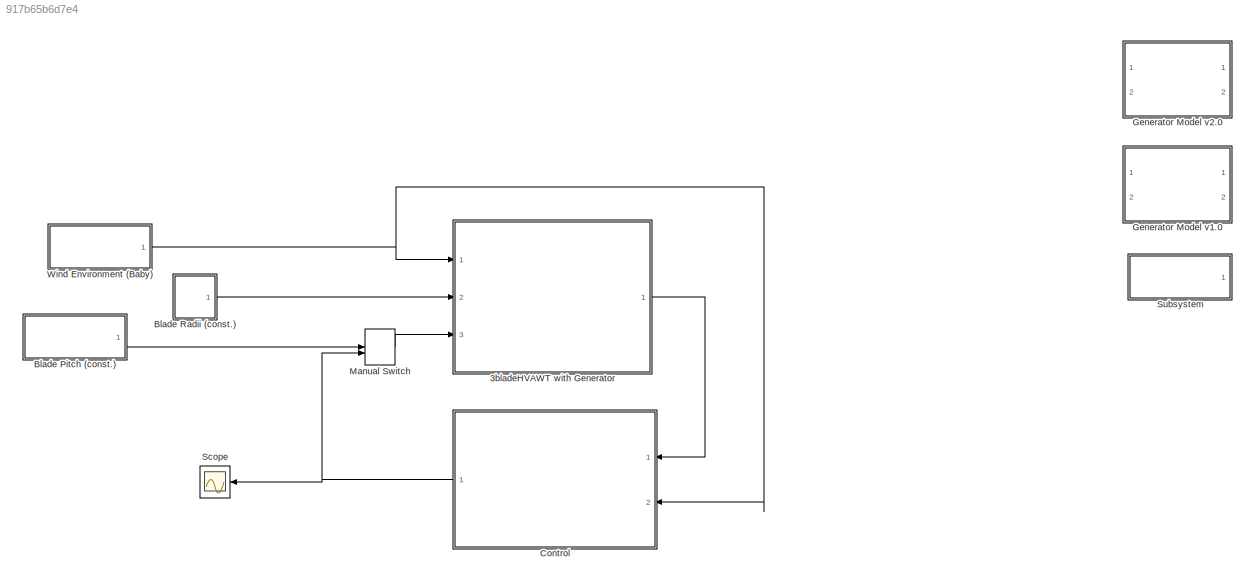
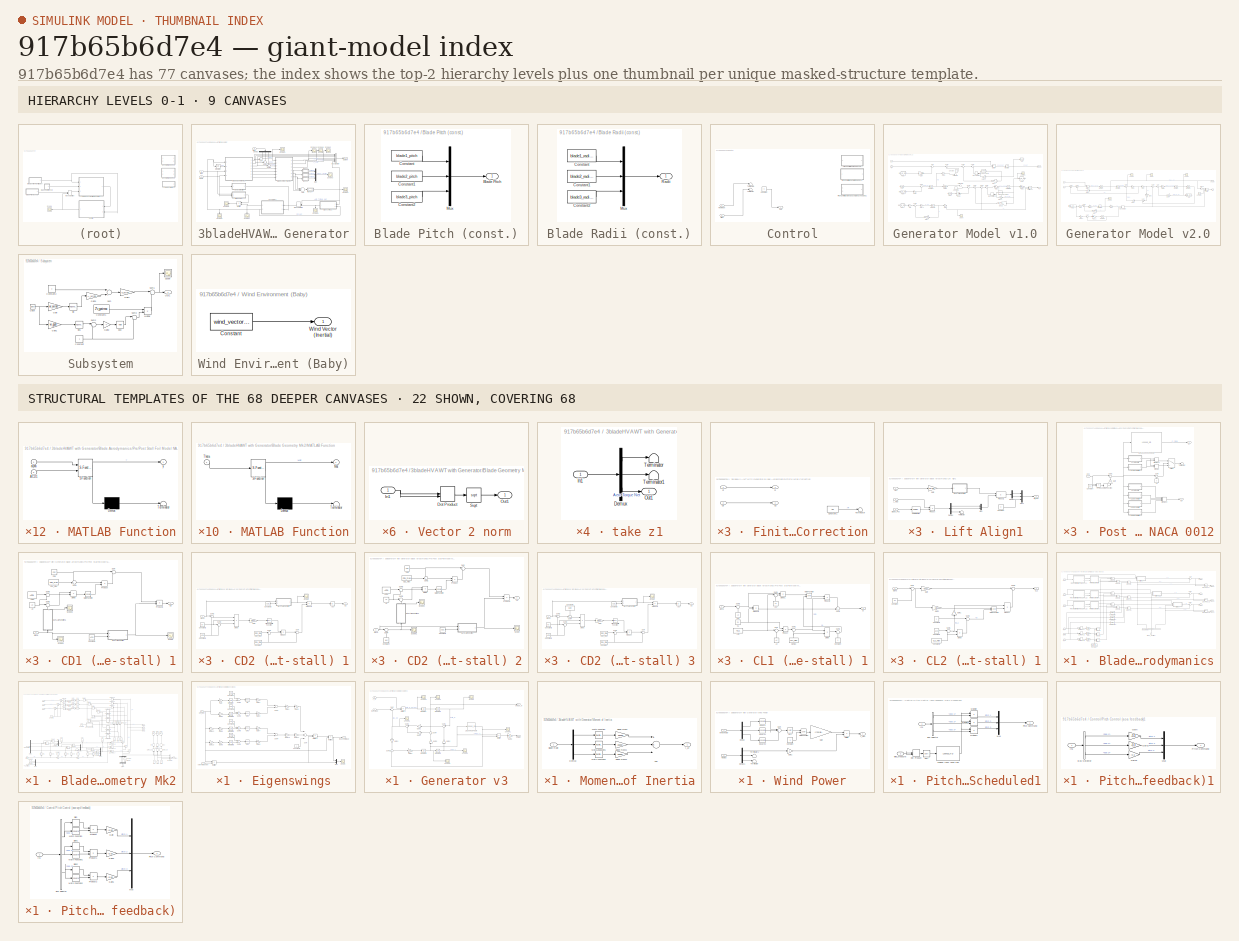
[diagram: thumbnail index - top-2 hierarchy levels (9 canvases) + 22 structural-template representatives of the remaining 68 canvases]
MODEL slx_917b65b6d7e4
KIND model
CONFIG AbsTol = auto
CONFIG EnableMultiTasking = off
CONFIG FixedStep = 0.01
CONFIG MaxStep = auto
CONFIG MinStep = auto
CONFIG RelTol = 1e-3
CONFIG SampleTimeConstraint = Unconstrained
CONFIG Solver = FixedStepAuto
CONFIG SolverName = FixedStepAuto
CONFIG StartTime = 0.0
CONFIG StopTime = 10
BLOCK [SubSystem] 3bladeHVAWT with Generator
  Ports = [3, 1]
  RequestExecContextInheritance = off
BLOCK [Sum] 3bladeHVAWT with Generator/Add
  InputSameDT = off
  Inputs = 3
  OutDataTypeStr = Inherit: Inherit via internal rule
  Ports = [3, 1]
  SaturateOnIntegerOverflow = off
BLOCK [SubSystem] 3bladeHVAWT with Generator/Blade Aerodymanics
  Ports = [7, 6]
  RequestExecContextInheritance = off
BLOCK [Inport] 3bladeHVAWT with Generator/Blade Aerodymanics/Blade_positions
  IconDisplay = Port number
  Port = 7
BLOCK [BusSelector] 3bladeHVAWT with Generator/Blade Aerodymanics/Bus Selector
  OutputAsBus = off
  OutputSignals = r_1,r_2,r_3
  Ports = [1, 3]
BLOCK [Constant] 3bladeHVAWT with Generator/Blade Aerodymanics/Constant
  Value = Planform_A
BLOCK [Reference] 3bladeHVAWT with Generator/Blade Aerodymanics/Cross Product  REF=vrlib/Utilities/Cross Product
  Ports = [2, 1]
  SourceBlock = vrlib/Utilities/Cross Product
  SourceProductBaseCode = VR
  SourceProductName = Simulink 3D Animation
  SourceType = Cross Product
BLOCK [Reference] 3bladeHVAWT with Generator/Blade Aerodymanics/Cross Product1  REF=vrlib/Utilities/Cross Product
  Ports = [2, 1]
  SourceBlock = vrlib/Utilities/Cross Product
  SourceProductBaseCode = VR
  SourceProductName = Simulink 3D Animation
  SourceType = Cross Product
BLOCK [Reference] 3bladeHVAWT with Generator/Blade Aerodymanics/Cross Product2  REF=vrlib/Utilities/Cross Product
  Ports = [2, 1]
  SourceBlock = vrlib/Utilities/Cross Product
  SourceProductBaseCode = VR
  SourceProductName = Simulink 3D Animation
  SourceType = Cross Product
BLOCK [DotProduct] 3bladeHVAWT with Generator/Blade Aerodymanics/Dot Product
  OutDataTypeStr = Inherit: Inherit via internal rule
BLOCK [DotProduct] 3bladeHVAWT with Generator/Blade Aerodymanics/Dot Product1
  OutDataTypeStr = Inherit: Inherit via internal rule
BLOCK [DotProduct] 3bladeHVAWT with Generator/Blade Aerodymanics/Dot Product2
  OutDataTypeStr = Inherit: Inherit via internal rule
BLOCK [SubSystem] 3bladeHVAWT with Generator/Blade Aerodymanics/Finite Wing Correction
  Ports = [2, 2]
  RequestExecContextInheritance = off
BLOCK [Outport] 3bladeHVAWT with Generator/Blade Aerodymanics/Finite Wing Correction/Cd
  IconDisplay = Port number
  Port = 2
BLOCK [Inport] 3bladeHVAWT with Generator/Blade Aerodymanics/Finite Wing Correction/Cd'
  IconDisplay = Port number
  Port = 2
BLOCK [Outport] 3bladeHVAWT with Generator/Blade Aerodymanics/Finite Wing Correction/Cl
  IconDisplay = Port number
BLOCK [Inport] 3bladeHVAWT with Generator/Blade Aerodymanics/Finite Wing Correction/Cl'
  IconDisplay = Port number
BLOCK [Constant] 3bladeHVAWT with Generator/Blade Aerodymanics/Finite Wing Correction/Constant1
  Value = AR
BLOCK [Terminator] 3bladeHVAWT with Generator/Blade Aerodymanics/Finite Wing Correction/Terminator
BLOCK [SubSystem] 3bladeHVAWT with Generator/Blade Aerodymanics/Finite Wing Correction1
  Ports = [2, 2]
  RequestExecContextInheritance = off
BLOCK [Outport] 3bladeHVAWT with Generator/Blade Aerodymanics/Finite Wing Correction1/Cd
  IconDisplay = Port number
  Port = 2
BLOCK [Inport] 3bladeHVAWT with Generator/Blade Aerodymanics/Finite Wing Correction1/Cd'
  IconDisplay = Port number
  Port = 2
BLOCK [Outport] 3bladeHVAWT with Generator/Blade Aerodymanics/Finite Wing Correction1/Cl
  IconDisplay = Port number
BLOCK [Inport] 3bladeHVAWT with Generator/Blade Aerodymanics/Finite Wing Correction1/Cl'
  IconDisplay = Port number
BLOCK [Constant] 3bladeHVAWT with Generator/Blade Aerodymanics/Finite Wing Correction1/Constant1
  Value = AR
BLOCK [Terminator] 3bladeHVAWT with Generator/Blade Aerodymanics/Finite Wing Correction1/Terminator
BLOCK [SubSystem] 3bladeHVAWT with Generator/Blade Aerodymanics/Finite Wing Correction2
  Ports = [2, 2]
  RequestExecContextInheritance = off
BLOCK [Outport] 3bladeHVAWT with Generator/Blade Aerodymanics/Finite Wing Correction2/Cd
  IconDisplay = Port number
  Port = 2
BLOCK [Inport] 3bladeHVAWT with Generator/Blade Aerodymanics/Finite Wing Correction2/Cd'
  IconDisplay = Port number
  Port = 2
BLOCK [Outport] 3bladeHVAWT with Generator/Blade Aerodymanics/Finite Wing Correction2/Cl
  IconDisplay = Port number
BLOCK [Inport] 3bladeHVAWT with Generator/Blade Aerodymanics/Finite Wing Correction2/Cl'
  IconDisplay = Port number
BLOCK [Constant] 3bladeHVAWT with Generator/Blade Aerodymanics/Finite Wing Correction2/Constant1
  Value = AR
BLOCK [Terminator] 3bladeHVAWT with Generator/Blade Aerodymanics/Finite Wing Correction2/Terminator
BLOCK [Outport] 3bladeHVAWT with Generator/Blade Aerodymanics/Force 1
  IconDisplay = Port number
BLOCK [Outport] 3bladeHVAWT with Generator/Blade Aerodymanics/Force 2
  IconDisplay = Port number
  Port = 2
BLOCK [Outport] 3bladeHVAWT with Generator/Blade Aerodymanics/Force 3
  IconDisplay = Port number
  Port = 3
BLOCK [Gain] 3bladeHVAWT with Generator/Blade Aerodymanics/Gain
  Gain = rho/2
  OutDataTypeStr = Inherit: Inherit via internal rule
  ParamDataTypeStr = Inherit: Inherit via internal rule
  SaturateOnIntegerOverflow = off
BLOCK [Gain] 3bladeHVAWT with Generator/Blade Aerodymanics/Gain1
  Gain = rho/2
  OutDataTypeStr = Inherit: Inherit via internal rule
  ParamDataTypeStr = Inherit: Inherit via internal rule
  SaturateOnIntegerOverflow = off
BLOCK [Gain] 3bladeHVAWT with Generator/Blade Aerodymanics/Gain2
  Gain = rho/2
  OutDataTypeStr = Inherit: Inherit via internal rule
  ParamDataTypeStr = Inherit: Inherit via internal rule
  SaturateOnIntegerOverflow = off
BLOCK [SubSystem] 3bladeHVAWT with Generator/Blade Aerodymanics/Lift Align1
  Ports = [3, 1]
  RequestExecContextInheritance = off
BLOCK [Inport] 3bladeHVAWT with Generator/Blade Aerodymanics/Lift Align1/AoA
  IconDisplay = Port number
BLOCK [Inport] 3bladeHVAWT with Generator/Blade Aerodymanics/Lift Align1/Blade_Pos
  IconDisplay = Port number
  Port = 3
BLOCK [Constant] 3bladeHVAWT with Generator/Blade Aerodymanics/Lift Align1/Constant
  Value = 0
BLOCK [Demux] 3bladeHVAWT with Generator/Blade Aerodymanics/Lift Align1/Demux
  DisplayOption = bar
  Outputs = 3
  Ports = [1, 3]
BLOCK [Demux] 3bladeHVAWT with Generator/Blade Aerodymanics/Lift Align1/Demux1
  DisplayOption = bar
  Outputs = 2
  Ports = [1, 2]
BLOCK [Gain] 3bladeHVAWT with Generator/Blade Aerodymanics/Lift Align1/Gain
  Gain = pi/180
  OutDataTypeStr = Inherit: Inherit via internal rule
  ParamDataTypeStr = Inherit: Inherit via internal rule
  SaturateOnIntegerOverflow = off
BLOCK [Inport] 3bladeHVAWT with Generator/Blade Aerodymanics/Lift Align1/L_mag
  IconDisplay = Port number
  Port = 2
BLOCK [Outport] 3bladeHVAWT with Generator/Blade Aerodymanics/Lift Align1/Lift_Vec
  IconDisplay = Port number
BLOCK [SubSystem] 3bladeHVAWT with Generator/Blade Aerodymanics/Lift Align1/MATLAB Function
  ErrorFcn = Stateflow.Translate.translate
  PermitHierarchicalResolution = ExplicitOnly
  Ports = [1, 1]
  RequestExecContextInheritance = off
  SFBlockType = MATLAB Function
  TreatAsAtomicUnit = on
BLOCK [Demux] 3bladeHVAWT with Generator/Blade Aerodymanics/Lift Align1/MATLAB Function/ Demux 
  Outputs = 1
  Ports = [1, 1]
BLOCK [S-Function] 3bladeHVAWT with Generator/Blade Aerodymanics/Lift Align1/MATLAB Function/ SFunction 
  EnableBusSupport = on
  FunctionName = sf_sfun
  PortCounts = [1 2]
  Ports = [1, 2]
  SFcnIsStateOwnerBlock = off
  SFunctionDeploymentMode = off
  Tag = Stateflow S-Function Three_blade_H_VAWT_Model 20
BLOCK [Terminator] 3bladeHVAWT with Generator/Blade Aerodymanics/Lift Align1/MATLAB Function/ Terminator 
BLOCK [Outport] 3bladeHVAWT with Generator/Blade Aerodymanics/Lift Align1/MATLAB Function/Mat
  IconDisplay = Port number
BLOCK [Inport] 3bladeHVAWT with Generator/Blade Aerodymanics/Lift Align1/MATLAB Function/Theta
  IconDisplay = Port number
BLOCK [Mux] 3bladeHVAWT with Generator/Blade Aerodymanics/Lift Align1/Mux
  DisplayOption = bar
  Inputs = 2
  Ports = [2, 1]
BLOCK [Mux] 3bladeHVAWT with Generator/Blade Aerodymanics/Lift Align1/Mux1
  DisplayOption = bar
  Inputs = 3
  Ports = [3, 1]
BLOCK [Reference] 3bladeHVAWT with Generator/Blade Aerodymanics/Lift Align1/Normalization  REF=dspmathops/Normalization
  Ports = [1, 1]
  SourceBlock = dspmathops/Normalization
  SourceProductBaseCode = DS
  SourceProductName = DSP System Toolbox
  SourceType = Normalization
BLOCK [Product] 3bladeHVAWT with Generator/Blade Aerodymanics/Lift Align1/Product
  InputSameDT = off
  OutDataTypeStr = Inherit: Inherit via internal rule
  Ports = [2, 1]
  RndMeth = Floor
  SaturateOnIntegerOverflow = off
BLOCK [Product] 3bladeHVAWT with Generator/Blade Aerodymanics/Lift Align1/Product1
  InputSameDT = off
  Multiplication = Matrix(*)
  OutDataTypeStr = Inherit: Inherit via internal rule
  Ports = [2, 1]
  RndMeth = Floor
  SaturateOnIntegerOverflow = off
BLOCK [Terminator] 3bladeHVAWT with Generator/Blade Aerodymanics/Lift Align1/Terminator
BLOCK [SubSystem] 3bladeHVAWT with Generator/Blade Aerodymanics/Lift Align2
  Ports = [3, 1]
  RequestExecContextInheritance = off
BLOCK [Inport] 3bladeHVAWT with Generator/Blade Aerodymanics/Lift Align2/AoA
  IconDisplay = Port number
BLOCK [Inport] 3bladeHVAWT with Generator/Blade Aerodymanics/Lift Align2/Blade_Pos
  IconDisplay = Port number
  Port = 3
BLOCK [Constant] 3bladeHVAWT with Generator/Blade Aerodymanics/Lift Align2/Constant
  Value = 0
BLOCK [Demux] 3bladeHVAWT with Generator/Blade Aerodymanics/Lift Align2/Demux
  DisplayOption = bar
  Outputs = 3
  Ports = [1, 3]
BLOCK [Demux] 3bladeHVAWT with Generator/Blade Aerodymanics/Lift Align2/Demux1
  DisplayOption = bar
  Outputs = 2
  Ports = [1, 2]
BLOCK [Gain] 3bladeHVAWT with Generator/Blade Aerodymanics/Lift Align2/Gain
  Gain = pi/180
  OutDataTypeStr = Inherit: Inherit via internal rule
  ParamDataTypeStr = Inherit: Inherit via internal rule
  SaturateOnIntegerOverflow = off
BLOCK [Inport] 3bladeHVAWT with Generator/Blade Aerodymanics/Lift Align2/L_mag
  IconDisplay = Port number
  Port = 2
BLOCK [Outport] 3bladeHVAWT with Generator/Blade Aerodymanics/Lift Align2/Lift_Vec
  IconDisplay = Port number
BLOCK [SubSystem] 3bladeHVAWT with Generator/Blade Aerodymanics/Lift Align2/MATLAB Function
  ErrorFcn = Stateflow.Translate.translate
  PermitHierarchicalResolution = ExplicitOnly
  Ports = [1, 1]
  RequestExecContextInheritance = off
  SFBlockType = MATLAB Function
  TreatAsAtomicUnit = on
BLOCK [Demux] 3bladeHVAWT with Generator/Blade Aerodymanics/Lift Align2/MATLAB Function/ Demux 
  Outputs = 1
  Ports = [1, 1]
BLOCK [S-Function] 3bladeHVAWT with Generator/Blade Aerodymanics/Lift Align2/MATLAB Function/ SFunction 
  EnableBusSupport = on
  FunctionName = sf_sfun
  PortCounts = [1 2]
  Ports = [1, 2]
  SFcnIsStateOwnerBlock = off
  SFunctionDeploymentMode = off
  Tag = Stateflow S-Function Three_blade_H_VAWT_Model 21
BLOCK [Terminator] 3bladeHVAWT with Generator/Blade Aerodymanics/Lift Align2/MATLAB Function/ Terminator 
BLOCK [Outport] 3bladeHVAWT with Generator/Blade Aerodymanics/Lift Align2/MATLAB Function/Mat
  IconDisplay = Port number
BLOCK [Inport] 3bladeHVAWT with Generator/Blade Aerodymanics/Lift Align2/MATLAB Function/Theta
  IconDisplay = Port number
BLOCK [Mux] 3bladeHVAWT with Generator/Blade Aerodymanics/Lift Align2/Mux
  DisplayOption = bar
  Inputs = 2
  Ports = [2, 1]
BLOCK [Mux] 3bladeHVAWT with Generator/Blade Aerodymanics/Lift Align2/Mux1
  DisplayOption = bar
  Inputs = 3
  Ports = [3, 1]
BLOCK [Reference] 3bladeHVAWT with Generator/Blade Aerodymanics/Lift Align2/Normalization  REF=dspmathops/Normalization
  Ports = [1, 1]
  SourceBlock = dspmathops/Normalization
  SourceProductBaseCode = DS
  SourceProductName = DSP System Toolbox
  SourceType = Normalization
BLOCK [Product] 3bladeHVAWT with Generator/Blade Aerodymanics/Lift Align2/Product
  InputSameDT = off
  OutDataTypeStr = Inherit: Inherit via internal rule
  Ports = [2, 1]
  RndMeth = Floor
  SaturateOnIntegerOverflow = off
BLOCK [Product] 3bladeHVAWT with Generator/Blade Aerodymanics/Lift Align2/Product1
  InputSameDT = off
  Multiplication = Matrix(*)
  OutDataTypeStr = Inherit: Inherit via internal rule
  Ports = [2, 1]
  RndMeth = Floor
  SaturateOnIntegerOverflow = off
BLOCK [Terminator] 3bladeHVAWT with Generator/Blade Aerodymanics/Lift Align2/Terminator
BLOCK [SubSystem] 3bladeHVAWT with Generator/Blade Aerodymanics/Lift Align3
  Ports = [3, 1]
  RequestExecContextInheritance = off
BLOCK [Inport] 3bladeHVAWT with Generator/Blade Aerodymanics/Lift Align3/AoA
  IconDisplay = Port number
BLOCK [Inport] 3bladeHVAWT with Generator/Blade Aerodymanics/Lift Align3/Blade_Pos
  IconDisplay = Port number
  Port = 3
BLOCK [Constant] 3bladeHVAWT with Generator/Blade Aerodymanics/Lift Align3/Constant
  Value = 0
BLOCK [Demux] 3bladeHVAWT with Generator/Blade Aerodymanics/Lift Align3/Demux
  DisplayOption = bar
  Outputs = 3
  Ports = [1, 3]
BLOCK [Demux] 3bladeHVAWT with Generator/Blade Aerodymanics/Lift Align3/Demux1
  DisplayOption = bar
  Outputs = 2
  Ports = [1, 2]
BLOCK [Gain] 3bladeHVAWT with Generator/Blade Aerodymanics/Lift Align3/Gain
  Gain = pi/180
  OutDataTypeStr = Inherit: Inherit via internal rule
  ParamDataTypeStr = Inherit: Inherit via internal rule
  SaturateOnIntegerOverflow = off
BLOCK [Inport] 3bladeHVAWT with Generator/Blade Aerodymanics/Lift Align3/L_mag
  IconDisplay = Port number
  Port = 2
BLOCK [Outport] 3bladeHVAWT with Generator/Blade Aerodymanics/Lift Align3/Lift_Vec
  IconDisplay = Port number
BLOCK [SubSystem] 3bladeHVAWT with Generator/Blade Aerodymanics/Lift Align3/MATLAB Function
  ErrorFcn = Stateflow.Translate.translate
  PermitHierarchicalResolution = ExplicitOnly
  Ports = [1, 1]
  RequestExecContextInheritance = off
  SFBlockType = MATLAB Function
  TreatAsAtomicUnit = on
BLOCK [Demux] 3bladeHVAWT with Generator/Blade Aerodymanics/Lift Align3/MATLAB Function/ Demux 
  Outputs = 1
  Ports = [1, 1]
BLOCK [S-Function] 3bladeHVAWT with Generator/Blade Aerodymanics/Lift Align3/MATLAB Function/ SFunction 
  EnableBusSupport = on
  FunctionName = sf_sfun
  PortCounts = [1 2]
  Ports = [1, 2]
  SFcnIsStateOwnerBlock = off
  SFunctionDeploymentMode = off
  Tag = Stateflow S-Function Three_blade_H_VAWT_Model 19
BLOCK [Terminator] 3bladeHVAWT with Generator/Blade Aerodymanics/Lift Align3/MATLAB Function/ Terminator 
BLOCK [Outport] 3bladeHVAWT with Generator/Blade Aerodymanics/Lift Align3/MATLAB Function/Mat
  IconDisplay = Port number
BLOCK [Inport] 3bladeHVAWT with Generator/Blade Aerodymanics/Lift Align3/MATLAB Function/Theta
  IconDisplay = Port number
BLOCK [Mux] 3bladeHVAWT with Generator/Blade Aerodymanics/Lift Align3/Mux
  DisplayOption = bar
  Inputs = 2
  Ports = [2, 1]
BLOCK [Mux] 3bladeHVAWT with Generator/Blade Aerodymanics/Lift Align3/Mux1
  DisplayOption = bar
  Inputs = 3
  Ports = [3, 1]
BLOCK [Reference] 3bladeHVAWT with Generator/Blade Aerodymanics/Lift Align3/Normalization  REF=dspmathops/Normalization
  Ports = [1, 1]
  SourceBlock = dspmathops/Normalization
  SourceProductBaseCode = DS
  SourceProductName = DSP System Toolbox
  SourceType = Normalization
BLOCK [Product] 3bladeHVAWT with Generator/Blade Aerodymanics/Lift Align3/Product
  InputSameDT = off
  OutDataTypeStr = Inherit: Inherit via internal rule
  Ports = [2, 1]
  RndMeth = Floor
  SaturateOnIntegerOverflow = off
BLOCK [Product] 3bladeHVAWT with Generator/Blade Aerodymanics/Lift Align3/Product1
  InputSameDT = off
  Multiplication = Matrix(*)
  OutDataTypeStr = Inherit: Inherit via internal rule
  Ports = [2, 1]
  RndMeth = Floor
  SaturateOnIntegerOverflow = off
BLOCK [Terminator] 3bladeHVAWT with Generator/Blade Aerodymanics/Lift Align3/Terminator
BLOCK [Reference] 3bladeHVAWT with Generator/Blade Aerodymanics/Normalization  REF=dspmathops/Normalization
  Ports = [1, 1]
  SourceBlock = dspmathops/Normalization
  SourceProductBaseCode = DS
  SourceProductName = DSP System Toolbox
  SourceType = Normalization
BLOCK [Reference] 3bladeHVAWT with Generator/Blade Aerodymanics/Normalization1  REF=dspmathops/Normalization
  Ports = [1, 1]
  SourceBlock = dspmathops/Normalization
  SourceProductBaseCode = DS
  SourceProductName = DSP System Toolbox
  SourceType = Normalization
BLOCK [Reference] 3bladeHVAWT with Generator/Blade Aerodymanics/Normalization2  REF=dspmathops/Normalization
  Ports = [1, 1]
  SourceBlock = dspmathops/Normalization
  SourceProductBaseCode = DS
  SourceProductName = DSP System Toolbox
  SourceType = Normalization
BLOCK [SubSystem] 3bladeHVAWT with Generator/Blade Aerodymanics/Pre//Post Stall Foil Model NACA 0012
  Ports = [1, 2]
  RequestExecContextInheritance = off
BLOCK [SubSystem] 3bladeHVAWT with Generator/Blade Aerodymanics/Pre//Post Stall Foil Model NACA 0012 (2)
  Ports = [1, 2]
  RequestExecContextInheritance = off
BLOCK [Constant] 3bladeHVAWT with Generator/Blade Aerodymanics/Pre//Post Stall Foil Model NACA 0012 (2)/A0
  Commented = on
  Value = 0
BLOCK [SubSystem] 3bladeHVAWT with Generator/Blade Aerodymanics/Pre//Post Stall Foil Model NACA 0012 (2)/CD1 (pre-stall) 1
  Ports = [1, 1]
  RequestExecContextInheritance = off
BLOCK [Constant] 3bladeHVAWT with Generator/Blade Aerodymanics/Pre//Post Stall Foil Model NACA 0012 (2)/CD1 (pre-stall) 1/A0
  Value = A0
BLOCK [Constant] 3bladeHVAWT with Generator/Blade Aerodymanics/Pre//Post Stall Foil Model NACA 0012 (2)/CD1 (pre-stall) 1/ACD1
  Value = ACD1
BLOCK [Constant] 3bladeHVAWT with Generator/Blade Aerodymanics/Pre//Post Stall Foil Model NACA 0012 (2)/CD1 (pre-stall) 1/CD0
  Value = CD0
BLOCK [Constant] 3bladeHVAWT with Generator/Blade Aerodymanics/Pre//Post Stall Foil Model NACA 0012 (2)/CD1 (pre-stall) 1/CD1_max
  Value = CD1_max
BLOCK [Outport] 3bladeHVAWT with Generator/Blade Aerodymanics/Pre//Post Stall Foil Model NACA 0012 (2)/CD1 (pre-stall) 1/Cd
  IconDisplay = Port number
BLOCK [Constant] 3bladeHVAWT with Generator/Blade Aerodymanics/Pre//Post Stall Foil Model NACA 0012 (2)/CD1 (pre-stall) 1/Constant1
  Value = ACD1
BLOCK [Product] 3bladeHVAWT with Generator/Blade Aerodymanics/Pre//Post Stall Foil Model NACA 0012 (2)/CD1 (pre-stall) 1/Divide
  InputSameDT = off
  Inputs = */
  OutDataTypeStr = Inherit: Inherit via internal rule
  Ports = [2, 1]
  RndMeth = Floor
  SaturateOnIntegerOverflow = off
BLOCK [SubSystem] 3bladeHVAWT with Generator/Blade Aerodymanics/Pre//Post Stall Foil Model NACA 0012 (2)/CD1 (pre-stall) 1/MATLAB Function
  ErrorFcn = Stateflow.Translate.translate
  PermitHierarchicalResolution = ExplicitOnly
  Ports = [2, 1]
  RequestExecContextInheritance = off
  SFBlockType = MATLAB Function
  TreatAsAtomicUnit = on
BLOCK [Demux] 3bladeHVAWT with Generator/Blade Aerodymanics/Pre//Post Stall Foil Model NACA 0012 (2)/CD1 (pre-stall) 1/MATLAB Function/ Demux 
  Outputs = 1
  Ports = [1, 1]
BLOCK [S-Function] 3bladeHVAWT with Generator/Blade Aerodymanics/Pre//Post Stall Foil Model NACA 0012 (2)/CD1 (pre-stall) 1/MATLAB Function/ SFunction 
  EnableBusSupport = on
  FunctionName = sf_sfun
  PortCounts = [2 2]
  Ports = [2, 2]
  SFcnIsStateOwnerBlock = off
  SFunctionDeploymentMode = off
  Tag = Stateflow S-Function Three_blade_H_VAWT_Model 7
BLOCK [Terminator] 3bladeHVAWT with Generator/Blade Aerodymanics/Pre//Post Stall Foil Model NACA 0012 (2)/CD1 (pre-stall) 1/MATLAB Function/ Terminator 
BLOCK [Inport] 3bladeHVAWT with Generator/Blade Aerodymanics/Pre//Post Stall Foil Model NACA 0012 (2)/CD1 (pre-stall) 1/MATLAB Function/ACD1
  IconDisplay = Port number
  Port = 2
BLOCK [Inport] 3bladeHVAWT with Generator/Blade Aerodymanics/Pre//Post Stall Foil Model NACA 0012 (2)/CD1 (pre-stall) 1/MATLAB Function/alpha
  IconDisplay = Port number
BLOCK [Outport] 3bladeHVAWT with Generator/Blade Aerodymanics/Pre//Post Stall Foil Model NACA 0012 (2)/CD1 (pre-stall) 1/MATLAB Function/y
  IconDisplay = Port number
BLOCK [SubSystem] 3bladeHVAWT with Generator/Blade Aerodymanics/Pre//Post Stall Foil Model NACA 0012 (2)/CD1 (pre-stall) 1/MATLAB Function1
  ErrorFcn = Stateflow.Translate.translate
  PermitHierarchicalResolution = ExplicitOnly
  Ports = [1, 1]
  RequestExecContextInheritance = off
  SFBlockType = MATLAB Function
  TreatAsAtomicUnit = on
BLOCK [Demux] 3bladeHVAWT with Generator/Blade Aerodymanics/Pre//Post Stall Foil Model NACA 0012 (2)/CD1 (pre-stall) 1/MATLAB Function1/ Demux 
  Outputs = 1
  Ports = [1, 1]
BLOCK [S-Function] 3bladeHVAWT with Generator/Blade Aerodymanics/Pre//Post Stall Foil Model NACA 0012 (2)/CD1 (pre-stall) 1/MATLAB Function1/ SFunction 
  EnableBusSupport = on
  FunctionName = sf_sfun
  PortCounts = [1 2]
  Ports = [1, 2]
  SFcnIsStateOwnerBlock = off
  SFunctionDeploymentMode = off
  Tag = Stateflow S-Function Three_blade_H_VAWT_Model 8
BLOCK [Terminator] 3bladeHVAWT with Generator/Blade Aerodymanics/Pre//Post Stall Foil Model NACA 0012 (2)/CD1 (pre-stall) 1/MATLAB Function1/ Terminator 
BLOCK [Outport] 3bladeHVAWT with Generator/Blade Aerodymanics/Pre//Post Stall Foil Model NACA 0012 (2)/CD1 (pre-stall) 1/MATLAB Function1/alpha
  IconDisplay = Port number
BLOCK [Inport] 3bladeHVAWT with Generator/Blade Aerodymanics/Pre//Post Stall Foil Model NACA 0012 (2)/CD1 (pre-stall) 1/MATLAB Function1/alpha 
  IconDisplay = Port number
BLOCK [Math] 3bladeHVAWT with Generator/Blade Aerodymanics/Pre//Post Stall Foil Model NACA 0012 (2)/CD1 (pre-stall) 1/Math Function
  Operator = square
  Ports = [1, 1]
BLOCK [Product] 3bladeHVAWT with Generator/Blade Aerodymanics/Pre//Post Stall Foil Model NACA 0012 (2)/CD1 (pre-stall) 1/Product
  InputSameDT = off
  OutDataTypeStr = Inherit: Inherit via internal rule
  Ports = [2, 1]
  RndMeth = Floor
  SaturateOnIntegerOverflow = off
BLOCK [Product] 3bladeHVAWT with Generator/Blade Aerodymanics/Pre//Post Stall Foil Model NACA 0012 (2)/CD1 (pre-stall) 1/Product1
  InputSameDT = off
  OutDataTypeStr = Inherit: Inherit via internal rule
  Ports = [2, 1]
  RndMeth = Floor
  SaturateOnIntegerOverflow = off
BLOCK [Scope] 3bladeHVAWT with Generator/Blade Aerodymanics/Pre//Post Stall Foil Model NACA 0012 (2)/CD1 (pre-stall) 1/Scope
  Floating = off
  NumInputPorts = 1
  Ports = [1]
  ScopeSpecificationString = Simulink.scopes.TimeScopeBlockCfg('CurrentConfiguration', extmgr.ConfigurationSet(extmgr.Configuration('Core','General UI',true),extmgr.Configuration('Core','Source UI',true),extmgr.Configuration('Sources','WiredSimulink',true,'DataLoggingVariableName','ScopeData11'),extmgr.Configuration('Visuals','Time Domain',true,'SerializedDisplays',{struct('MinYLimReal','-0.125','MaxYLimReal','1.125','YLabelR...<+1363ch>  <repeated x6 — deduplicated; at blocks: Scope>
BLOCK [Scope] 3bladeHVAWT with Generator/Blade Aerodymanics/Pre//Post Stall Foil Model NACA 0012 (2)/CD1 (pre-stall) 1/Scope1
  Floating = off
  NumInputPorts = 1
  Ports = [1]
  ScopeSpecificationString = Simulink.scopes.TimeScopeBlockCfg('CurrentConfiguration', extmgr.ConfigurationSet(extmgr.Configuration('Core','General UI',true),extmgr.Configuration('Core','Source UI',true),extmgr.Configuration('Sources','WiredSimulink',true,'DataLoggingVariableName','ScopeData12'),extmgr.Configuration('Visuals','Time Domain',true,'SerializedDisplays',{struct('MinYLimReal','-44.955','MaxYLimReal','404.595','YLab...<+1363ch>  <repeated x6 — deduplicated; at blocks: Scope1>
BLOCK [Scope] 3bladeHVAWT with Generator/Blade Aerodymanics/Pre//Post Stall Foil Model NACA 0012 (2)/CD1 (pre-stall) 1/Scope2
  Floating = off
  NumInputPorts = 1
  Ports = [1]
  ScopeSpecificationString = Simulink.scopes.TimeScopeBlockCfg('CurrentConfiguration', extmgr.ConfigurationSet(extmgr.Configuration('Core','General UI',true),extmgr.Configuration('Core','Source UI',true),extmgr.Configuration('Sources','WiredSimulink',true,'DataLoggingVariableName','ScopeData13'),extmgr.Configuration('Visuals','Time Domain',true,'SerializedDisplays',{struct('MinYLimReal','-224.595','MaxYLimReal','224.955','YLa...<+1378ch>  <repeated x6 — deduplicated; at blocks: Scope2>
BLOCK [Sum] 3bladeHVAWT with Generator/Blade Aerodymanics/Pre//Post Stall Foil Model NACA 0012 (2)/CD1 (pre-stall) 1/Sum
  IconShape = round
  InputSameDT = off
  Inputs = |++
  OutDataTypeStr = Inherit: Inherit via internal rule
  Ports = [2, 1]
  SaturateOnIntegerOverflow = off
BLOCK [Sum] 3bladeHVAWT with Generator/Blade Aerodymanics/Pre//Post Stall Foil Model NACA 0012 (2)/CD1 (pre-stall) 1/Sum1
  IconShape = round
  InputSameDT = off
  Inputs = -+|
  OutDataTypeStr = Inherit: Inherit via internal rule
  Ports = [2, 1]
  SaturateOnIntegerOverflow = off
BLOCK [Sum] 3bladeHVAWT with Generator/Blade Aerodymanics/Pre//Post Stall Foil Model NACA 0012 (2)/CD1 (pre-stall) 1/Sum2
  IconShape = round
  InputSameDT = off
  Inputs = |-+
  OutDataTypeStr = Inherit: Inherit via internal rule
  Ports = [2, 1]
  SaturateOnIntegerOverflow = off
BLOCK [Sum] 3bladeHVAWT with Generator/Blade Aerodymanics/Pre//Post Stall Foil Model NACA 0012 (2)/CD1 (pre-stall) 1/Sum3
  IconShape = round
  InputSameDT = off
  Inputs = |+-
  OutDataTypeStr = Inherit: Inherit via internal rule
  Ports = [2, 1]
  SaturateOnIntegerOverflow = off
BLOCK [Inport] 3bladeHVAWT with Generator/Blade Aerodymanics/Pre//Post Stall Foil Model NACA 0012 (2)/CD1 (pre-stall) 1/alpha
  IconDisplay = Port number
BLOCK [SubSystem] 3bladeHVAWT with Generator/Blade Aerodymanics/Pre//Post Stall Foil Model NACA 0012 (2)/CD2 (post-stall) 1
  Ports = [1, 1]
  RequestExecContextInheritance = off
BLOCK [Abs] 3bladeHVAWT with Generator/Blade Aerodymanics/Pre//Post Stall Foil Model NACA 0012 (2)/CD2 (post-stall) 1/Abs
  SaturateOnIntegerOverflow = off
BLOCK [Constant] 3bladeHVAWT with Generator/Blade Aerodymanics/Pre//Post Stall Foil Model NACA 0012 (2)/CD2 (post-stall) 1/CD2_max
  Value = CD2_max
BLOCK [Outport] 3bladeHVAWT with Generator/Blade Aerodymanics/Pre//Post Stall Foil Model NACA 0012 (2)/CD2 (post-stall) 1/Cd
  IconDisplay = Port number
BLOCK [Constant] 3bladeHVAWT with Generator/Blade Aerodymanics/Pre//Post Stall Foil Model NACA 0012 (2)/CD2 (post-stall) 1/Constant
  Value = CD1_max
BLOCK [Constant] 3bladeHVAWT with Generator/Blade Aerodymanics/Pre//Post Stall Foil Model NACA 0012 (2)/CD2 (post-stall) 1/Constant1
  Value = ACD1
BLOCK [Constant] 3bladeHVAWT with Generator/Blade Aerodymanics/Pre//Post Stall Foil Model NACA 0012 (2)/CD2 (post-stall) 1/Constant2
  Value = 90
BLOCK [Constant] 3bladeHVAWT with Generator/Blade Aerodymanics/Pre//Post Stall Foil Model NACA 0012 (2)/CD2 (post-stall) 1/Constant3
  Value = ACD1
BLOCK [Product] 3bladeHVAWT with Generator/Blade Aerodymanics/Pre//Post Stall Foil Model NACA 0012 (2)/CD2 (post-stall) 1/Divide
  InputSameDT = off
  Inputs = **/
  OutDataTypeStr = Inherit: Inherit via internal rule
  Ports = [3, 1]
  RndMeth = Floor
  SaturateOnIntegerOverflow = off
BLOCK [Gain] 3bladeHVAWT with Generator/Blade Aerodymanics/Pre//Post Stall Foil Model NACA 0012 (2)/CD2 (post-stall) 1/Gain
  Gain = pi/180
  OutDataTypeStr = Inherit: Inherit via internal rule
  ParamDataTypeStr = Inherit: Inherit via internal rule
  SaturateOnIntegerOverflow = off
BLOCK [SubSystem] 3bladeHVAWT with Generator/Blade Aerodymanics/Pre//Post Stall Foil Model NACA 0012 (2)/CD2 (post-stall) 1/MATLAB Function
  ErrorFcn = Stateflow.Translate.translate
  PermitHierarchicalResolution = ExplicitOnly
  Ports = [2, 1]
  RequestExecContextInheritance = off
  SFBlockType = MATLAB Function
  TreatAsAtomicUnit = on
BLOCK [Demux] 3bladeHVAWT with Generator/Blade Aerodymanics/Pre//Post Stall Foil Model NACA 0012 (2)/CD2 (post-stall) 1/MATLAB Function/ Demux 
  Outputs = 1
  Ports = [1, 1]
BLOCK [S-Function] 3bladeHVAWT with Generator/Blade Aerodymanics/Pre//Post Stall Foil Model NACA 0012 (2)/CD2 (post-stall) 1/MATLAB Function/ SFunction 
  EnableBusSupport = on
  FunctionName = sf_sfun
  PortCounts = [2 2]
  Ports = [2, 2]
  SFcnIsStateOwnerBlock = off
  SFunctionDeploymentMode = off
  Tag = Stateflow S-Function Three_blade_H_VAWT_Model 9
BLOCK [Terminator] 3bladeHVAWT with Generator/Blade Aerodymanics/Pre//Post Stall Foil Model NACA 0012 (2)/CD2 (post-stall) 1/MATLAB Function/ Terminator 
BLOCK [Inport] 3bladeHVAWT with Generator/Blade Aerodymanics/Pre//Post Stall Foil Model NACA 0012 (2)/CD2 (post-stall) 1/MATLAB Function/ACD1
  IconDisplay = Port number
  Port = 2
BLOCK [Inport] 3bladeHVAWT with Generator/Blade Aerodymanics/Pre//Post Stall Foil Model NACA 0012 (2)/CD2 (post-stall) 1/MATLAB Function/alpha
  IconDisplay = Port number
BLOCK [Outport] 3bladeHVAWT with Generator/Blade Aerodymanics/Pre//Post Stall Foil Model NACA 0012 (2)/CD2 (post-stall) 1/MATLAB Function/y
  IconDisplay = Port number
BLOCK [Product] 3bladeHVAWT with Generator/Blade Aerodymanics/Pre//Post Stall Foil Model NACA 0012 (2)/CD2 (post-stall) 1/Product
  InputSameDT = off
  OutDataTypeStr = Inherit: Inherit via internal rule
  Ports = [2, 1]
  RndMeth = Floor
  SaturateOnIntegerOverflow = off
BLOCK [Product] 3bladeHVAWT with Generator/Blade Aerodymanics/Pre//Post Stall Foil Model NACA 0012 (2)/CD2 (post-stall) 1/Product1
  InputSameDT = off
  OutDataTypeStr = Inherit: Inherit via internal rule
  Ports = [2, 1]
  RndMeth = Floor
  SaturateOnIntegerOverflow = off
BLOCK [Scope] 3bladeHVAWT with Generator/Blade Aerodymanics/Pre//Post Stall Foil Model NACA 0012 (2)/CD2 (post-stall) 1/Scope
  Floating = off
  NumInputPorts = 1
  Ports = [1]
  ScopeSpecificationString = Simulink.scopes.TimeScopeBlockCfg('CurrentConfiguration', extmgr.ConfigurationSet(extmgr.Configuration('Core','General UI',true),extmgr.Configuration('Core','Source UI',true),extmgr.Configuration('Sources','WiredSimulink',true,'DataLoggingVariableName','ScopeData14'),extmgr.Configuration('Visuals','Time Domain',true,'SerializedDisplays',{struct('MinYLimReal','-0.125','MaxYLimReal','1.125','YLabelR...<+1363ch>  <repeated x6 — deduplicated; at blocks: Scope>
BLOCK [Sum] 3bladeHVAWT with Generator/Blade Aerodymanics/Pre//Post Stall Foil Model NACA 0012 (2)/CD2 (post-stall) 1/Sum
  IconShape = round
  InputSameDT = off
  Inputs = |++
  OutDataTypeStr = Inherit: Inherit via internal rule
  Ports = [2, 1]
  SaturateOnIntegerOverflow = off
BLOCK [Sum] 3bladeHVAWT with Generator/Blade Aerodymanics/Pre//Post Stall Foil Model NACA 0012 (2)/CD2 (post-stall) 1/Sum1
  IconShape = round
  InputSameDT = off
  Inputs = |+-
  OutDataTypeStr = Inherit: Inherit via internal rule
  Ports = [2, 1]
  SaturateOnIntegerOverflow = off
BLOCK [Sum] 3bladeHVAWT with Generator/Blade Aerodymanics/Pre//Post Stall Foil Model NACA 0012 (2)/CD2 (post-stall) 1/Sum2
  IconShape = round
  InputSameDT = off
  Inputs = |+-
  OutDataTypeStr = Inherit: Inherit via internal rule
  Ports = [2, 1]
  SaturateOnIntegerOverflow = off
BLOCK [Sum] 3bladeHVAWT with Generator/Blade Aerodymanics/Pre//Post Stall Foil Model NACA 0012 (2)/CD2 (post-stall) 1/Sum3
  IconShape = round
  InputSameDT = off
  Inputs = |+-
  OutDataTypeStr = Inherit: Inherit via internal rule
  Ports = [2, 1]
  SaturateOnIntegerOverflow = off
BLOCK [Trigonometry] 3bladeHVAWT with Generator/Blade Aerodymanics/Pre//Post Stall Foil Model NACA 0012 (2)/CD2 (post-stall) 1/Trigonometric Function
  Ports = [1, 1]
BLOCK [Inport] 3bladeHVAWT with Generator/Blade Aerodymanics/Pre//Post Stall Foil Model NACA 0012 (2)/CD2 (post-stall) 1/alpha
  IconDisplay = Port number
BLOCK [SubSystem] 3bladeHVAWT with Generator/Blade Aerodymanics/Pre//Post Stall Foil Model NACA 0012 (2)/CD2 (post-stall) 2
  Ports = [1, 1]
  RequestExecContextInheritance = off
BLOCK [Constant] 3bladeHVAWT with Generator/Blade Aerodymanics/Pre//Post Stall Foil Model NACA 0012 (2)/CD2 (post-stall) 2/A0
  Value = A0
BLOCK [Constant] 3bladeHVAWT with Generator/Blade Aerodymanics/Pre//Post Stall Foil Model NACA 0012 (2)/CD2 (post-stall) 2/ACD1
  Value = ACD1
BLOCK [Constant] 3bladeHVAWT with Generator/Blade Aerodymanics/Pre//Post Stall Foil Model NACA 0012 (2)/CD2 (post-stall) 2/CD0
  Value = CD0
BLOCK [Constant] 3bladeHVAWT with Generator/Blade Aerodymanics/Pre//Post Stall Foil Model NACA 0012 (2)/CD2 (post-stall) 2/CD1_max
  Value = CD1_max
BLOCK [Outport] 3bladeHVAWT with Generator/Blade Aerodymanics/Pre//Post Stall Foil Model NACA 0012 (2)/CD2 (post-stall) 2/Cd
  IconDisplay = Port number
BLOCK [Constant] 3bladeHVAWT with Generator/Blade Aerodymanics/Pre//Post Stall Foil Model NACA 0012 (2)/CD2 (post-stall) 2/Constant
  Value = 180
BLOCK [Constant] 3bladeHVAWT with Generator/Blade Aerodymanics/Pre//Post Stall Foil Model NACA 0012 (2)/CD2 (post-stall) 2/Constant1
  Value = ACD1
BLOCK [Product] 3bladeHVAWT with Generator/Blade Aerodymanics/Pre//Post Stall Foil Model NACA 0012 (2)/CD2 (post-stall) 2/Divide
  InputSameDT = off
  Inputs = */
  OutDataTypeStr = Inherit: Inherit via internal rule
  Ports = [2, 1]
  RndMeth = Floor
  SaturateOnIntegerOverflow = off
BLOCK [SubSystem] 3bladeHVAWT with Generator/Blade Aerodymanics/Pre//Post Stall Foil Model NACA 0012 (2)/CD2 (post-stall) 2/MATLAB Function
  ErrorFcn = Stateflow.Translate.translate
  PermitHierarchicalResolution = ExplicitOnly
  Ports = [2, 1]
  RequestExecContextInheritance = off
  SFBlockType = MATLAB Function
  TreatAsAtomicUnit = on
BLOCK [Demux] 3bladeHVAWT with Generator/Blade Aerodymanics/Pre//Post Stall Foil Model NACA 0012 (2)/CD2 (post-stall) 2/MATLAB Function/ Demux 
  Outputs = 1
  Ports = [1, 1]
BLOCK [S-Function] 3bladeHVAWT with Generator/Blade Aerodymanics/Pre//Post Stall Foil Model NACA 0012 (2)/CD2 (post-stall) 2/MATLAB Function/ SFunction 
  EnableBusSupport = on
  FunctionName = sf_sfun
  PortCounts = [2 2]
  Ports = [2, 2]
  SFcnIsStateOwnerBlock = off
  SFunctionDeploymentMode = off
  Tag = Stateflow S-Function Three_blade_H_VAWT_Model 10
BLOCK [Terminator] 3bladeHVAWT with Generator/Blade Aerodymanics/Pre//Post Stall Foil Model NACA 0012 (2)/CD2 (post-stall) 2/MATLAB Function/ Terminator 
BLOCK [Inport] 3bladeHVAWT with Generator/Blade Aerodymanics/Pre//Post Stall Foil Model NACA 0012 (2)/CD2 (post-stall) 2/MATLAB Function/ACD1
  IconDisplay = Port number
  Port = 2
BLOCK [Inport] 3bladeHVAWT with Generator/Blade Aerodymanics/Pre//Post Stall Foil Model NACA 0012 (2)/CD2 (post-stall) 2/MATLAB Function/alpha
  IconDisplay = Port number
BLOCK [Outport] 3bladeHVAWT with Generator/Blade Aerodymanics/Pre//Post Stall Foil Model NACA 0012 (2)/CD2 (post-stall) 2/MATLAB Function/y
  IconDisplay = Port number
BLOCK [SubSystem] 3bladeHVAWT with Generator/Blade Aerodymanics/Pre//Post Stall Foil Model NACA 0012 (2)/CD2 (post-stall) 2/MATLAB Function1
  ErrorFcn = Stateflow.Translate.translate
  PermitHierarchicalResolution = ExplicitOnly
  Ports = [1, 1]
  RequestExecContextInheritance = off
  SFBlockType = MATLAB Function
  TreatAsAtomicUnit = on
BLOCK [Demux] 3bladeHVAWT with Generator/Blade Aerodymanics/Pre//Post Stall Foil Model NACA 0012 (2)/CD2 (post-stall) 2/MATLAB Function1/ Demux 
  Outputs = 1
  Ports = [1, 1]
BLOCK [S-Function] 3bladeHVAWT with Generator/Blade Aerodymanics/Pre//Post Stall Foil Model NACA 0012 (2)/CD2 (post-stall) 2/MATLAB Function1/ SFunction 
  EnableBusSupport = on
  FunctionName = sf_sfun
  PortCounts = [1 2]
  Ports = [1, 2]
  SFcnIsStateOwnerBlock = off
  SFunctionDeploymentMode = off
  Tag = Stateflow S-Function Three_blade_H_VAWT_Model 11
BLOCK [Terminator] 3bladeHVAWT with Generator/Blade Aerodymanics/Pre//Post Stall Foil Model NACA 0012 (2)/CD2 (post-stall) 2/MATLAB Function1/ Terminator 
BLOCK [Outport] 3bladeHVAWT with Generator/Blade Aerodymanics/Pre//Post Stall Foil Model NACA 0012 (2)/CD2 (post-stall) 2/MATLAB Function1/alpha
  IconDisplay = Port number
BLOCK [Inport] 3bladeHVAWT with Generator/Blade Aerodymanics/Pre//Post Stall Foil Model NACA 0012 (2)/CD2 (post-stall) 2/MATLAB Function1/alpha 
  IconDisplay = Port number
BLOCK [Math] 3bladeHVAWT with Generator/Blade Aerodymanics/Pre//Post Stall Foil Model NACA 0012 (2)/CD2 (post-stall) 2/Math Function
  Operator = square
  Ports = [1, 1]
BLOCK [Product] 3bladeHVAWT with Generator/Blade Aerodymanics/Pre//Post Stall Foil Model NACA 0012 (2)/CD2 (post-stall) 2/Product
  InputSameDT = off
  OutDataTypeStr = Inherit: Inherit via internal rule
  Ports = [2, 1]
  RndMeth = Floor
  SaturateOnIntegerOverflow = off
BLOCK [Product] 3bladeHVAWT with Generator/Blade Aerodymanics/Pre//Post Stall Foil Model NACA 0012 (2)/CD2 (post-stall) 2/Product1
  InputSameDT = off
  OutDataTypeStr = Inherit: Inherit via internal rule
  Ports = [2, 1]
  RndMeth = Floor
  SaturateOnIntegerOverflow = off
BLOCK [Scope] 3bladeHVAWT with Generator/Blade Aerodymanics/Pre//Post Stall Foil Model NACA 0012 (2)/CD2 (post-stall) 2/Scope
  Floating = off
  NumInputPorts = 1
  Ports = [1]
BLOCK [Scope] 3bladeHVAWT with Generator/Blade Aerodymanics/Pre//Post Stall Foil Model NACA 0012 (2)/CD2 (post-stall) 2/Scope1
  Floating = off
  NumInputPorts = 1
  Ports = [1]
BLOCK [Scope] 3bladeHVAWT with Generator/Blade Aerodymanics/Pre//Post Stall Foil Model NACA 0012 (2)/CD2 (post-stall) 2/Scope2
  Floating = off
  NumInputPorts = 1
  Ports = [1]
BLOCK [Sum] 3bladeHVAWT with Generator/Blade Aerodymanics/Pre//Post Stall Foil Model NACA 0012 (2)/CD2 (post-stall) 2/Sum
  IconShape = round
  InputSameDT = off
  Inputs = |++
  OutDataTypeStr = Inherit: Inherit via internal rule
  Ports = [2, 1]
  SaturateOnIntegerOverflow = off
BLOCK [Sum] 3bladeHVAWT with Generator/Blade Aerodymanics/Pre//Post Stall Foil Model NACA 0012 (2)/CD2 (post-stall) 2/Sum1
  IconShape = round
  InputSameDT = off
  Inputs = -+|
  OutDataTypeStr = Inherit: Inherit via internal rule
  Ports = [2, 1]
  SaturateOnIntegerOverflow = off
BLOCK [Sum] 3bladeHVAWT with Generator/Blade Aerodymanics/Pre//Post Stall Foil Model NACA 0012 (2)/CD2 (post-stall) 2/Sum2
  IconShape = round
  InputSameDT = off
  Inputs = |-+
  OutDataTypeStr = Inherit: Inherit via internal rule
  Ports = [2, 1]
  SaturateOnIntegerOverflow = off
BLOCK [Sum] 3bladeHVAWT with Generator/Blade Aerodymanics/Pre//Post Stall Foil Model NACA 0012 (2)/CD2 (post-stall) 2/Sum3
  IconShape = round
  InputSameDT = off
  Inputs = |+-
  OutDataTypeStr = Inherit: Inherit via internal rule
  Ports = [2, 1]
  SaturateOnIntegerOverflow = off
BLOCK [Sum] 3bladeHVAWT with Generator/Blade Aerodymanics/Pre//Post Stall Foil Model NACA 0012 (2)/CD2 (post-stall) 2/Sum4
  IconShape = round
  InputSameDT = off
  Inputs = |+-
  OutDataTypeStr = Inherit: Inherit via internal rule
  Ports = [2, 1]
  SaturateOnIntegerOverflow = off
BLOCK [Inport] 3bladeHVAWT with Generator/Blade Aerodymanics/Pre//Post Stall Foil Model NACA 0012 (2)/CD2 (post-stall) 2/alpha
  IconDisplay = Port number
BLOCK [SubSystem] 3bladeHVAWT with Generator/Blade Aerodymanics/Pre//Post Stall Foil Model NACA 0012 (2)/CD2 (post-stall) 3
  Ports = [1, 1]
  RequestExecContextInheritance = off
BLOCK [Abs] 3bladeHVAWT with Generator/Blade Aerodymanics/Pre//Post Stall Foil Model NACA 0012 (2)/CD2 (post-stall) 3/Abs
  SaturateOnIntegerOverflow = off
BLOCK [Constant] 3bladeHVAWT with Generator/Blade Aerodymanics/Pre//Post Stall Foil Model NACA 0012 (2)/CD2 (post-stall) 3/CD2_max
  Value = CD2_max
BLOCK [Outport] 3bladeHVAWT with Generator/Blade Aerodymanics/Pre//Post Stall Foil Model NACA 0012 (2)/CD2 (post-stall) 3/Cd
  IconDisplay = Port number
BLOCK [Constant] 3bladeHVAWT with Generator/Blade Aerodymanics/Pre//Post Stall Foil Model NACA 0012 (2)/CD2 (post-stall) 3/Constant
  Value = CD1_max
BLOCK [Constant] 3bladeHVAWT with Generator/Blade Aerodymanics/Pre//Post Stall Foil Model NACA 0012 (2)/CD2 (post-stall) 3/Constant1
  Value = ACD1
BLOCK [Constant] 3bladeHVAWT with Generator/Blade Aerodymanics/Pre//Post Stall Foil Model NACA 0012 (2)/CD2 (post-stall) 3/Constant2
  Value = 90
BLOCK [Constant] 3bladeHVAWT with Generator/Blade Aerodymanics/Pre//Post Stall Foil Model NACA 0012 (2)/CD2 (post-stall) 3/Constant3
  Value = ACD1
BLOCK [Constant] 3bladeHVAWT with Generator/Blade Aerodymanics/Pre//Post Stall Foil Model NACA 0012 (2)/CD2 (post-stall) 3/Constant4
  Value = -180
BLOCK [Product] 3bladeHVAWT with Generator/Blade Aerodymanics/Pre//Post Stall Foil Model NACA 0012 (2)/CD2 (post-stall) 3/Divide
  InputSameDT = off
  Inputs = **/
  OutDataTypeStr = Inherit: Inherit via internal rule
  Ports = [3, 1]
  RndMeth = Floor
  SaturateOnIntegerOverflow = off
BLOCK [Gain] 3bladeHVAWT with Generator/Blade Aerodymanics/Pre//Post Stall Foil Model NACA 0012 (2)/CD2 (post-stall) 3/Gain
  Gain = pi/180
  OutDataTypeStr = Inherit: Inherit via internal rule
  ParamDataTypeStr = Inherit: Inherit via internal rule
  SaturateOnIntegerOverflow = off
BLOCK [SubSystem] 3bladeHVAWT with Generator/Blade Aerodymanics/Pre//Post Stall Foil Model NACA 0012 (2)/CD2 (post-stall) 3/MATLAB Function
  ErrorFcn = Stateflow.Translate.translate
  PermitHierarchicalResolution = ExplicitOnly
  Ports = [2, 1]
  RequestExecContextInheritance = off
  SFBlockType = MATLAB Function
  TreatAsAtomicUnit = on
BLOCK [Demux] 3bladeHVAWT with Generator/Blade Aerodymanics/Pre//Post Stall Foil Model NACA 0012 (2)/CD2 (post-stall) 3/MATLAB Function/ Demux 
  Outputs = 1
  Ports = [1, 1]
BLOCK [S-Function] 3bladeHVAWT with Generator/Blade Aerodymanics/Pre//Post Stall Foil Model NACA 0012 (2)/CD2 (post-stall) 3/MATLAB Function/ SFunction 
  EnableBusSupport = on
  FunctionName = sf_sfun
  PortCounts = [2 2]
  Ports = [2, 2]
  SFcnIsStateOwnerBlock = off
  SFunctionDeploymentMode = off
  Tag = Stateflow S-Function Three_blade_H_VAWT_Model 12
BLOCK [Terminator] 3bladeHVAWT with Generator/Blade Aerodymanics/Pre//Post Stall Foil Model NACA 0012 (2)/CD2 (post-stall) 3/MATLAB Function/ Terminator 
BLOCK [Inport] 3bladeHVAWT with Generator/Blade Aerodymanics/Pre//Post Stall Foil Model NACA 0012 (2)/CD2 (post-stall) 3/MATLAB Function/ACD1
  IconDisplay = Port number
  Port = 2
BLOCK [Inport] 3bladeHVAWT with Generator/Blade Aerodymanics/Pre//Post Stall Foil Model NACA 0012 (2)/CD2 (post-stall) 3/MATLAB Function/alpha
  IconDisplay = Port number
BLOCK [Outport] 3bladeHVAWT with Generator/Blade Aerodymanics/Pre//Post Stall Foil Model NACA 0012 (2)/CD2 (post-stall) 3/MATLAB Function/y
  IconDisplay = Port number
BLOCK [Product] 3bladeHVAWT with Generator/Blade Aerodymanics/Pre//Post Stall Foil Model NACA 0012 (2)/CD2 (post-stall) 3/Product
  InputSameDT = off
  OutDataTypeStr = Inherit: Inherit via internal rule
  Ports = [2, 1]
  RndMeth = Floor
  SaturateOnIntegerOverflow = off
BLOCK [Product] 3bladeHVAWT with Generator/Blade Aerodymanics/Pre//Post Stall Foil Model NACA 0012 (2)/CD2 (post-stall) 3/Product1
  InputSameDT = off
  OutDataTypeStr = Inherit: Inherit via internal rule
  Ports = [2, 1]
  RndMeth = Floor
  SaturateOnIntegerOverflow = off
BLOCK [Scope] 3bladeHVAWT with Generator/Blade Aerodymanics/Pre//Post Stall Foil Model NACA 0012 (2)/CD2 (post-stall) 3/Scope
  Floating = off
  NumInputPorts = 1
  Ports = [1]
BLOCK [Sum] 3bladeHVAWT with Generator/Blade Aerodymanics/Pre//Post Stall Foil Model NACA 0012 (2)/CD2 (post-stall) 3/Sum
  IconShape = round
  InputSameDT = off
  Inputs = |++
  OutDataTypeStr = Inherit: Inherit via internal rule
  Ports = [2, 1]
  SaturateOnIntegerOverflow = off
BLOCK [Sum] 3bladeHVAWT with Generator/Blade Aerodymanics/Pre//Post Stall Foil Model NACA 0012 (2)/CD2 (post-stall) 3/Sum1
  IconShape = round
  InputSameDT = off
  Inputs = |+-
  OutDataTypeStr = Inherit: Inherit via internal rule
  Ports = [2, 1]
  SaturateOnIntegerOverflow = off
BLOCK [Sum] 3bladeHVAWT with Generator/Blade Aerodymanics/Pre//Post Stall Foil Model NACA 0012 (2)/CD2 (post-stall) 3/Sum2
  IconShape = round
  InputSameDT = off
  Inputs = |+-
  OutDataTypeStr = Inherit: Inherit via internal rule
  Ports = [2, 1]
  SaturateOnIntegerOverflow = off
BLOCK [Sum] 3bladeHVAWT with Generator/Blade Aerodymanics/Pre//Post Stall Foil Model NACA 0012 (2)/CD2 (post-stall) 3/Sum3
  IconShape = round
  InputSameDT = off
  Inputs = |+-
  OutDataTypeStr = Inherit: Inherit via internal rule
  Ports = [2, 1]
  SaturateOnIntegerOverflow = off
BLOCK [Sum] 3bladeHVAWT with Generator/Blade Aerodymanics/Pre//Post Stall Foil Model NACA 0012 (2)/CD2 (post-stall) 3/Sum4
  IconShape = round
  InputSameDT = off
  Inputs = ++|
  OutDataTypeStr = Inherit: Inherit via internal rule
  Ports = [2, 1]
  SaturateOnIntegerOverflow = off
BLOCK [Trigonometry] 3bladeHVAWT with Generator/Blade Aerodymanics/Pre//Post Stall Foil Model NACA 0012 (2)/CD2 (post-stall) 3/Trigonometric Function
  Ports = [1, 1]
BLOCK [Inport] 3bladeHVAWT with Generator/Blade Aerodymanics/Pre//Post Stall Foil Model NACA 0012 (2)/CD2 (post-stall) 3/alpha
  IconDisplay = Port number
BLOCK [Lookup_n-D] 3bladeHVAWT with Generator/Blade Aerodymanics/Pre//Post Stall Foil Model NACA 0012 (2)/CL NACA0012 Lookup
  BreakpointsForDimension1 = [0:1:360]
  InternalRulePriority = Speed
  NumberOfTableDimensions = 1
  Ports = [1, 1]
  RndMeth = Simplest
  Table = C_l_NACA0012_spline
BLOCK [SubSystem] 3bladeHVAWT with Generator/Blade Aerodymanics/Pre//Post Stall Foil Model NACA 0012 (2)/CL1 (pre-stall) 1
  Commented = on
  Ports = [1, 1]
  RequestExecContextInheritance = off
BLOCK [Constant] 3bladeHVAWT with Generator/Blade Aerodymanics/Pre//Post Stall Foil Model NACA 0012 (2)/CL1 (pre-stall) 1/A0
  Value = A0
BLOCK [Constant] 3bladeHVAWT with Generator/Blade Aerodymanics/Pre//Post Stall Foil Model NACA 0012 (2)/CL1 (pre-stall) 1/A0 1
  Value = A0
BLOCK [Constant] 3bladeHVAWT with Generator/Blade Aerodymanics/Pre//Post Stall Foil Model NACA 0012 (2)/CL1 (pre-stall) 1/A0 2
  Value = A0
BLOCK [Constant] 3bladeHVAWT with Generator/Blade Aerodymanics/Pre//Post Stall Foil Model NACA 0012 (2)/CL1 (pre-stall) 1/ACl1
  Value = ACL1
BLOCK [Outport] 3bladeHVAWT with Generator/Blade Aerodymanics/Pre//Post Stall Foil Model NACA 0012 (2)/CL1 (pre-stall) 1/Cl
  IconDisplay = Port number
BLOCK [Constant] 3bladeHVAWT with Generator/Blade Aerodymanics/Pre//Post Stall Foil Model NACA 0012 (2)/CL1 (pre-stall) 1/Cl1max
  Value = CL1_max
BLOCK [Constant] 3bladeHVAWT with Generator/Blade Aerodymanics/Pre//Post Stall Foil Model NACA 0012 (2)/CL1 (pre-stall) 1/Constant
BLOCK [Product] 3bladeHVAWT with Generator/Blade Aerodymanics/Pre//Post Stall Foil Model NACA 0012 (2)/CL1 (pre-stall) 1/Divide
  InputSameDT = off
  Inputs = /*
  OutDataTypeStr = Inherit: Inherit via internal rule
  Ports = [2, 1]
  RndMeth = Floor
  SaturateOnIntegerOverflow = off
BLOCK [Product] 3bladeHVAWT with Generator/Blade Aerodymanics/Pre//Post Stall Foil Model NACA 0012 (2)/CL1 (pre-stall) 1/Divide1
  InputSameDT = off
  Inputs = */
  OutDataTypeStr = Inherit: Inherit via internal rule
  Ports = [2, 1]
  RndMeth = Floor
  SaturateOnIntegerOverflow = off
BLOCK [Math] 3bladeHVAWT with Generator/Blade Aerodymanics/Pre//Post Stall Foil Model NACA 0012 (2)/CL1 (pre-stall) 1/Math Function
  Operator = pow
  Ports = [2, 1]
BLOCK [Product] 3bladeHVAWT with Generator/Blade Aerodymanics/Pre//Post Stall Foil Model NACA 0012 (2)/CL1 (pre-stall) 1/Product
  InputSameDT = off
  OutDataTypeStr = Inherit: Inherit via internal rule
  Ports = [2, 1]
  RndMeth = Floor
  SaturateOnIntegerOverflow = off
BLOCK [Product] 3bladeHVAWT with Generator/Blade Aerodymanics/Pre//Post Stall Foil Model NACA 0012 (2)/CL1 (pre-stall) 1/Product1
  InputSameDT = off
  OutDataTypeStr = Inherit: Inherit via internal rule
  Ports = [2, 1]
  RndMeth = Floor
  SaturateOnIntegerOverflow = off
BLOCK [Product] 3bladeHVAWT with Generator/Blade Aerodymanics/Pre//Post Stall Foil Model NACA 0012 (2)/CL1 (pre-stall) 1/Product2
  InputSameDT = off
  OutDataTypeStr = Inherit: Inherit via internal rule
  Ports = [2, 1]
  RndMeth = Floor
  SaturateOnIntegerOverflow = off
BLOCK [Constant] 3bladeHVAWT with Generator/Blade Aerodymanics/Pre//Post Stall Foil Model NACA 0012 (2)/CL1 (pre-stall) 1/S1
  Value = S1
BLOCK [Sum] 3bladeHVAWT with Generator/Blade Aerodymanics/Pre//Post Stall Foil Model NACA 0012 (2)/CL1 (pre-stall) 1/Sum
  IconShape = round
  InputSameDT = off
  Inputs = |+-
  OutDataTypeStr = Inherit: Inherit via internal rule
  Ports = [2, 1]
  SaturateOnIntegerOverflow = off
BLOCK [Sum] 3bladeHVAWT with Generator/Blade Aerodymanics/Pre//Post Stall Foil Model NACA 0012 (2)/CL1 (pre-stall) 1/Sum1
  IconShape = round
  InputSameDT = off
  Inputs = |+-
  OutDataTypeStr = Inherit: Inherit via internal rule
  Ports = [2, 1]
  SaturateOnIntegerOverflow = off
BLOCK [Sum] 3bladeHVAWT with Generator/Blade Aerodymanics/Pre//Post Stall Foil Model NACA 0012 (2)/CL1 (pre-stall) 1/Sum2
  IconShape = round
  InputSameDT = off
  Inputs = |++
  OutDataTypeStr = Inherit: Inherit via internal rule
  Ports = [2, 1]
  SaturateOnIntegerOverflow = off
BLOCK [Sum] 3bladeHVAWT with Generator/Blade Aerodymanics/Pre//Post Stall Foil Model NACA 0012 (2)/CL1 (pre-stall) 1/Sum3
  IconShape = round
  InputSameDT = off
  Inputs = |+-
  OutDataTypeStr = Inherit: Inherit via internal rule
  Ports = [2, 1]
  SaturateOnIntegerOverflow = off
BLOCK [Sum] 3bladeHVAWT with Generator/Blade Aerodymanics/Pre//Post Stall Foil Model NACA 0012 (2)/CL1 (pre-stall) 1/Sum4
  IconShape = round
  InputSameDT = off
  Inputs = |+-
  OutDataTypeStr = Inherit: Inherit via internal rule
  Ports = [2, 1]
  SaturateOnIntegerOverflow = off
BLOCK [Sum] 3bladeHVAWT with Generator/Blade Aerodymanics/Pre//Post Stall Foil Model NACA 0012 (2)/CL1 (pre-stall) 1/Sum5
  IconShape = round
  InputSameDT = off
  Inputs = -+|
  OutDataTypeStr = Inherit: Inherit via internal rule
  Ports = [2, 1]
  SaturateOnIntegerOverflow = off
BLOCK [Inport] 3bladeHVAWT with Generator/Blade Aerodymanics/Pre//Post Stall Foil Model NACA 0012 (2)/CL1 (pre-stall) 1/alpha
  IconDisplay = Port number
BLOCK [SubSystem] 3bladeHVAWT with Generator/Blade Aerodymanics/Pre//Post Stall Foil Model NACA 0012 (2)/CL2 (post-stall) 1
  Commented = on
  Ports = [1, 1]
  RequestExecContextInheritance = off
BLOCK [Outport] 3bladeHVAWT with Generator/Blade Aerodymanics/Pre//Post Stall Foil Model NACA 0012 (2)/CL2 (post-stall) 1/CL2
  IconDisplay = Port number
BLOCK [Constant] 3bladeHVAWT with Generator/Blade Aerodymanics/Pre//Post Stall Foil Model NACA 0012 (2)/CL2 (post-stall) 1/Constant
  Value = 92
BLOCK [Constant] 3bladeHVAWT with Generator/Blade Aerodymanics/Pre//Post Stall Foil Model NACA 0012 (2)/CL2 (post-stall) 1/Constant1
  Value = 1.632
BLOCK [Constant] 3bladeHVAWT with Generator/Blade Aerodymanics/Pre//Post Stall Foil Model NACA 0012 (2)/CL2 (post-stall) 1/Constant2
  Value = CL2_max
BLOCK [Constant] 3bladeHVAWT with Generator/Blade Aerodymanics/Pre//Post Stall Foil Model NACA 0012 (2)/CL2 (post-stall) 1/Constant3
BLOCK [Product] 3bladeHVAWT with Generator/Blade Aerodymanics/Pre//Post Stall Foil Model NACA 0012 (2)/CL2 (post-stall) 1/Divide
  InputSameDT = off
  Inputs = */
  OutDataTypeStr = Inherit: Inherit via internal rule
  Ports = [2, 1]
  RndMeth = Floor
  SaturateOnIntegerOverflow = off
BLOCK [Gain] 3bladeHVAWT with Generator/Blade Aerodymanics/Pre//Post Stall Foil Model NACA 0012 (2)/CL2 (post-stall) 1/Gain
  Gain = -0.032
  OutDataTypeStr = Inherit: Inherit via internal rule
  ParamDataTypeStr = Inherit: Inherit via internal rule
  SaturateOnIntegerOverflow = off
BLOCK [Gain] 3bladeHVAWT with Generator/Blade Aerodymanics/Pre//Post Stall Foil Model NACA 0012 (2)/CL2 (post-stall) 1/Gain1
  Gain = -1
  OutDataTypeStr = Inherit: Inherit via internal rule
  ParamDataTypeStr = Inherit: Inherit via internal rule
  SaturateOnIntegerOverflow = off
BLOCK [Gain] 3bladeHVAWT with Generator/Blade Aerodymanics/Pre//Post Stall Foil Model NACA 0012 (2)/CL2 (post-stall) 1/Gain2
  Gain = -1/51
  OutDataTypeStr = Inherit: Inherit via internal rule
  ParamDataTypeStr = Inherit: Inherit via internal rule
  SaturateOnIntegerOverflow = off
BLOCK [Math] 3bladeHVAWT with Generator/Blade Aerodymanics/Pre//Post Stall Foil Model NACA 0012 (2)/CL2 (post-stall) 1/Math Function
  Operator = pow
  Ports = [2, 1]
BLOCK [Product] 3bladeHVAWT with Generator/Blade Aerodymanics/Pre//Post Stall Foil Model NACA 0012 (2)/CL2 (post-stall) 1/Product
  InputSameDT = off
  OutDataTypeStr = Inherit: Inherit via internal rule
  Ports = [2, 1]
  RndMeth = Floor
  SaturateOnIntegerOverflow = off
BLOCK [Sum] 3bladeHVAWT with Generator/Blade Aerodymanics/Pre//Post Stall Foil Model NACA 0012 (2)/CL2 (post-stall) 1/Sum
  IconShape = round
  InputSameDT = off
  Inputs = |+-
  OutDataTypeStr = Inherit: Inherit via internal rule
  Ports = [2, 1]
  SaturateOnIntegerOverflow = off
BLOCK [Sum] 3bladeHVAWT with Generator/Blade Aerodymanics/Pre//Post Stall Foil Model NACA 0012 (2)/CL2 (post-stall) 1/Sum1
  IconShape = round
  InputSameDT = off
  Inputs = |+-
  OutDataTypeStr = Inherit: Inherit via internal rule
  Ports = [2, 1]
  SaturateOnIntegerOverflow = off
BLOCK [Sum] 3bladeHVAWT with Generator/Blade Aerodymanics/Pre//Post Stall Foil Model NACA 0012 (2)/CL2 (post-stall) 1/Sum2
  IconShape = round
  InputSameDT = off
  Inputs = |++
  OutDataTypeStr = Inherit: Inherit via internal rule
  Ports = [2, 1]
  SaturateOnIntegerOverflow = off
BLOCK [Sum] 3bladeHVAWT with Generator/Blade Aerodymanics/Pre//Post Stall Foil Model NACA 0012 (2)/CL2 (post-stall) 1/Sum3
  IconShape = round
  InputSameDT = off
  Inputs = |++
  OutDataTypeStr = Inherit: Inherit via internal rule
  Ports = [2, 1]
  SaturateOnIntegerOverflow = off
BLOCK [Inport] 3bladeHVAWT with Generator/Blade Aerodymanics/Pre//Post Stall Foil Model NACA 0012 (2)/CL2 (post-stall) 1/alpha
  IconDisplay = Port number
BLOCK [Outport] 3bladeHVAWT with Generator/Blade Aerodymanics/Pre//Post Stall Foil Model NACA 0012 (2)/Cd
  IconDisplay = Port number
  Port = 2
BLOCK [Outport] 3bladeHVAWT with Generator/Blade Aerodymanics/Pre//Post Stall Foil Model NACA 0012 (2)/Cl
  IconDisplay = Port number
BLOCK [Constant] 3bladeHVAWT with Generator/Blade Aerodymanics/Pre//Post Stall Foil Model NACA 0012 (2)/Constant
  Value = 360
BLOCK [Product] 3bladeHVAWT with Generator/Blade Aerodymanics/Pre//Post Stall Foil Model NACA 0012 (2)/Divide
  InputSameDT = off
  Inputs = */
  OutDataTypeStr = Inherit: Inherit via internal rule
  Ports = [2, 1]
  RndMeth = Floor
  SaturateOnIntegerOverflow = off
BLOCK [Gain] 3bladeHVAWT with Generator/Blade Aerodymanics/Pre//Post Stall Foil Model NACA 0012 (2)/Gain
  Gain = 360
  OutDataTypeStr = Inherit: Inherit via internal rule
  ParamDataTypeStr = Inherit: Inherit via internal rule
  SaturateOnIntegerOverflow = off
BLOCK [MinMax] 3bladeHVAWT with Generator/Blade Aerodymanics/Pre//Post Stall Foil Model NACA 0012 (2)/MinMax
  Commented = on
  InputSameDT = off
  Inputs = 2
  Ports = [2, 1]
  SaturateOnIntegerOverflow = off
BLOCK [MinMax] 3bladeHVAWT with Generator/Blade Aerodymanics/Pre//Post Stall Foil Model NACA 0012 (2)/MinMax1
  Commented = on
  Function = max
  InputSameDT = off
  Inputs = 2
  Ports = [2, 1]
  SaturateOnIntegerOverflow = off
BLOCK [MinMax] 3bladeHVAWT with Generator/Blade Aerodymanics/Pre//Post Stall Foil Model NACA 0012 (2)/MinMax2
  Function = max
  InputSameDT = off
  Inputs = 4
  Ports = [4, 1]
  SaturateOnIntegerOverflow = off
BLOCK [Rounding] 3bladeHVAWT with Generator/Blade Aerodymanics/Pre//Post Stall Foil Model NACA 0012 (2)/Rounding Function
BLOCK [Sum] 3bladeHVAWT with Generator/Blade Aerodymanics/Pre//Post Stall Foil Model NACA 0012 (2)/Sum
  Commented = on
  IconShape = round
  InputSameDT = off
  Inputs = |+-
  OutDataTypeStr = Inherit: Inherit via internal rule
  Ports = [2, 1]
  SaturateOnIntegerOverflow = off
BLOCK [Sum] 3bladeHVAWT with Generator/Blade Aerodymanics/Pre//Post Stall Foil Model NACA 0012 (2)/Sum1
  IconShape = round
  InputSameDT = off
  Inputs = |+-
  OutDataTypeStr = Inherit: Inherit via internal rule
  Ports = [2, 1]
  SaturateOnIntegerOverflow = off
BLOCK [Switch] 3bladeHVAWT with Generator/Blade Aerodymanics/Pre//Post Stall Foil Model NACA 0012 (2)/Switch
  Commented = on
  Criteria = u2 > Threshold
  InputSameDT = off
  SaturateOnIntegerOverflow = off
BLOCK [Terminator] 3bladeHVAWT with Generator/Blade Aerodymanics/Pre//Post Stall Foil Model NACA 0012 (2)/Terminator
  Commented = on
BLOCK [Inport] 3bladeHVAWT with Generator/Blade Aerodymanics/Pre//Post Stall Foil Model NACA 0012 (2)/aoa
  IconDisplay = Port number
BLOCK [SubSystem] 3bladeHVAWT with Generator/Blade Aerodymanics/Pre//Post Stall Foil Model NACA 0012 (3)
  Ports = [1, 2]
  RequestExecContextInheritance = off
BLOCK [Constant] 3bladeHVAWT with Generator/Blade Aerodymanics/Pre//Post Stall Foil Model NACA 0012 (3)/A0
  Commented = on
  Value = 0
BLOCK [SubSystem] 3bladeHVAWT with Generator/Blade Aerodymanics/Pre//Post Stall Foil Model NACA 0012 (3)/CD1 (pre-stall) 1
  Ports = [1, 1]
  RequestExecContextInheritance = off
BLOCK [Constant] 3bladeHVAWT with Generator/Blade Aerodymanics/Pre//Post Stall Foil Model NACA 0012 (3)/CD1 (pre-stall) 1/A0
  Value = A0
BLOCK [Constant] 3bladeHVAWT with Generator/Blade Aerodymanics/Pre//Post Stall Foil Model NACA 0012 (3)/CD1 (pre-stall) 1/ACD1
  Value = ACD1
BLOCK [Constant] 3bladeHVAWT with Generator/Blade Aerodymanics/Pre//Post Stall Foil Model NACA 0012 (3)/CD1 (pre-stall) 1/CD0
  Value = CD0
BLOCK [Constant] 3bladeHVAWT with Generator/Blade Aerodymanics/Pre//Post Stall Foil Model NACA 0012 (3)/CD1 (pre-stall) 1/CD1_max
  Value = CD1_max
BLOCK [Outport] 3bladeHVAWT with Generator/Blade Aerodymanics/Pre//Post Stall Foil Model NACA 0012 (3)/CD1 (pre-stall) 1/Cd
  IconDisplay = Port number
BLOCK [Constant] 3bladeHVAWT with Generator/Blade Aerodymanics/Pre//Post Stall Foil Model NACA 0012 (3)/CD1 (pre-stall) 1/Constant1
  Value = ACD1
BLOCK [Product] 3bladeHVAWT with Generator/Blade Aerodymanics/Pre//Post Stall Foil Model NACA 0012 (3)/CD1 (pre-stall) 1/Divide
  InputSameDT = off
  Inputs = */
  OutDataTypeStr = Inherit: Inherit via internal rule
  Ports = [2, 1]
  RndMeth = Floor
  SaturateOnIntegerOverflow = off
BLOCK [SubSystem] 3bladeHVAWT with Generator/Blade Aerodymanics/Pre//Post Stall Foil Model NACA 0012 (3)/CD1 (pre-stall) 1/MATLAB Function
  ErrorFcn = Stateflow.Translate.translate
  PermitHierarchicalResolution = ExplicitOnly
  Ports = [2, 1]
  RequestExecContextInheritance = off
  SFBlockType = MATLAB Function
  TreatAsAtomicUnit = on
BLOCK [Demux] 3bladeHVAWT with Generator/Blade Aerodymanics/Pre//Post Stall Foil Model NACA 0012 (3)/CD1 (pre-stall) 1/MATLAB Function/ Demux 
  Outputs = 1
  Ports = [1, 1]
BLOCK [S-Function] 3bladeHVAWT with Generator/Blade Aerodymanics/Pre//Post Stall Foil Model NACA 0012 (3)/CD1 (pre-stall) 1/MATLAB Function/ SFunction 
  EnableBusSupport = on
  FunctionName = sf_sfun
  PortCounts = [2 2]
  Ports = [2, 2]
  SFcnIsStateOwnerBlock = off
  SFunctionDeploymentMode = off
  Tag = Stateflow S-Function Three_blade_H_VAWT_Model 13
BLOCK [Terminator] 3bladeHVAWT with Generator/Blade Aerodymanics/Pre//Post Stall Foil Model NACA 0012 (3)/CD1 (pre-stall) 1/MATLAB Function/ Terminator 
BLOCK [Inport] 3bladeHVAWT with Generator/Blade Aerodymanics/Pre//Post Stall Foil Model NACA 0012 (3)/CD1 (pre-stall) 1/MATLAB Function/ACD1
  IconDisplay = Port number
  Port = 2
BLOCK [Inport] 3bladeHVAWT with Generator/Blade Aerodymanics/Pre//Post Stall Foil Model NACA 0012 (3)/CD1 (pre-stall) 1/MATLAB Function/alpha
  IconDisplay = Port number
BLOCK [Outport] 3bladeHVAWT with Generator/Blade Aerodymanics/Pre//Post Stall Foil Model NACA 0012 (3)/CD1 (pre-stall) 1/MATLAB Function/y
  IconDisplay = Port number
BLOCK [SubSystem] 3bladeHVAWT with Generator/Blade Aerodymanics/Pre//Post Stall Foil Model NACA 0012 (3)/CD1 (pre-stall) 1/MATLAB Function1
  ErrorFcn = Stateflow.Translate.translate
  PermitHierarchicalResolution = ExplicitOnly
  Ports = [1, 1]
  RequestExecContextInheritance = off
  SFBlockType = MATLAB Function
  TreatAsAtomicUnit = on
BLOCK [Demux] 3bladeHVAWT with Generator/Blade Aerodymanics/Pre//Post Stall Foil Model NACA 0012 (3)/CD1 (pre-stall) 1/MATLAB Function1/ Demux 
  Outputs = 1
  Ports = [1, 1]
BLOCK [S-Function] 3bladeHVAWT with Generator/Blade Aerodymanics/Pre//Post Stall Foil Model NACA 0012 (3)/CD1 (pre-stall) 1/MATLAB Function1/ SFunction 
  EnableBusSupport = on
  FunctionName = sf_sfun
  PortCounts = [1 2]
  Ports = [1, 2]
  SFcnIsStateOwnerBlock = off
  SFunctionDeploymentMode = off
  Tag = Stateflow S-Function Three_blade_H_VAWT_Model 14
BLOCK [Terminator] 3bladeHVAWT with Generator/Blade Aerodymanics/Pre//Post Stall Foil Model NACA 0012 (3)/CD1 (pre-stall) 1/MATLAB Function1/ Terminator 
BLOCK [Outport] 3bladeHVAWT with Generator/Blade Aerodymanics/Pre//Post Stall Foil Model NACA 0012 (3)/CD1 (pre-stall) 1/MATLAB Function1/alpha
  IconDisplay = Port number
BLOCK [Inport] 3bladeHVAWT with Generator/Blade Aerodymanics/Pre//Post Stall Foil Model NACA 0012 (3)/CD1 (pre-stall) 1/MATLAB Function1/alpha 
  IconDisplay = Port number
BLOCK [Math] 3bladeHVAWT with Generator/Blade Aerodymanics/Pre//Post Stall Foil Model NACA 0012 (3)/CD1 (pre-stall) 1/Math Function
  Operator = square
  Ports = [1, 1]
BLOCK [Product] 3bladeHVAWT with Generator/Blade Aerodymanics/Pre//Post Stall Foil Model NACA 0012 (3)/CD1 (pre-stall) 1/Product
  InputSameDT = off
  OutDataTypeStr = Inherit: Inherit via internal rule
  Ports = [2, 1]
  RndMeth = Floor
  SaturateOnIntegerOverflow = off
BLOCK [Product] 3bladeHVAWT with Generator/Blade Aerodymanics/Pre//Post Stall Foil Model NACA 0012 (3)/CD1 (pre-stall) 1/Product1
  InputSameDT = off
  OutDataTypeStr = Inherit: Inherit via internal rule
  Ports = [2, 1]
  RndMeth = Floor
  SaturateOnIntegerOverflow = off
BLOCK [Scope] 3bladeHVAWT with Generator/Blade Aerodymanics/Pre//Post Stall Foil Model NACA 0012 (3)/CD1 (pre-stall) 1/Scope
  Floating = off
  NumInputPorts = 1
  Ports = [1]
BLOCK [Scope] 3bladeHVAWT with Generator/Blade Aerodymanics/Pre//Post Stall Foil Model NACA 0012 (3)/CD1 (pre-stall) 1/Scope1
  Floating = off
  NumInputPorts = 1
  Ports = [1]
BLOCK [Scope] 3bladeHVAWT with Generator/Blade Aerodymanics/Pre//Post Stall Foil Model NACA 0012 (3)/CD1 (pre-stall) 1/Scope2
  Floating = off
  NumInputPorts = 1
  Ports = [1]
BLOCK [Sum] 3bladeHVAWT with Generator/Blade Aerodymanics/Pre//Post Stall Foil Model NACA 0012 (3)/CD1 (pre-stall) 1/Sum
  IconShape = round
  InputSameDT = off
  Inputs = |++
  OutDataTypeStr = Inherit: Inherit via internal rule
  Ports = [2, 1]
  SaturateOnIntegerOverflow = off
BLOCK [Sum] 3bladeHVAWT with Generator/Blade Aerodymanics/Pre//Post Stall Foil Model NACA 0012 (3)/CD1 (pre-stall) 1/Sum1
  IconShape = round
  InputSameDT = off
  Inputs = -+|
  OutDataTypeStr = Inherit: Inherit via internal rule
  Ports = [2, 1]
  SaturateOnIntegerOverflow = off
BLOCK [Sum] 3bladeHVAWT with Generator/Blade Aerodymanics/Pre//Post Stall Foil Model NACA 0012 (3)/CD1 (pre-stall) 1/Sum2
  IconShape = round
  InputSameDT = off
  Inputs = |-+
  OutDataTypeStr = Inherit: Inherit via internal rule
  Ports = [2, 1]
  SaturateOnIntegerOverflow = off
BLOCK [Sum] 3bladeHVAWT with Generator/Blade Aerodymanics/Pre//Post Stall Foil Model NACA 0012 (3)/CD1 (pre-stall) 1/Sum3
  IconShape = round
  InputSameDT = off
  Inputs = |+-
  OutDataTypeStr = Inherit: Inherit via internal rule
  Ports = [2, 1]
  SaturateOnIntegerOverflow = off
BLOCK [Inport] 3bladeHVAWT with Generator/Blade Aerodymanics/Pre//Post Stall Foil Model NACA 0012 (3)/CD1 (pre-stall) 1/alpha
  IconDisplay = Port number
BLOCK [SubSystem] 3bladeHVAWT with Generator/Blade Aerodymanics/Pre//Post Stall Foil Model NACA 0012 (3)/CD2 (post-stall) 1
  Ports = [1, 1]
  RequestExecContextInheritance = off
BLOCK [Abs] 3bladeHVAWT with Generator/Blade Aerodymanics/Pre//Post Stall Foil Model NACA 0012 (3)/CD2 (post-stall) 1/Abs
  SaturateOnIntegerOverflow = off
BLOCK [Constant] 3bladeHVAWT with Generator/Blade Aerodymanics/Pre//Post Stall Foil Model NACA 0012 (3)/CD2 (post-stall) 1/CD2_max
  Value = CD2_max
BLOCK [Outport] 3bladeHVAWT with Generator/Blade Aerodymanics/Pre//Post Stall Foil Model NACA 0012 (3)/CD2 (post-stall) 1/Cd
  IconDisplay = Port number
BLOCK [Constant] 3bladeHVAWT with Generator/Blade Aerodymanics/Pre//Post Stall Foil Model NACA 0012 (3)/CD2 (post-stall) 1/Constant
  Value = CD1_max
BLOCK [Constant] 3bladeHVAWT with Generator/Blade Aerodymanics/Pre//Post Stall Foil Model NACA 0012 (3)/CD2 (post-stall) 1/Constant1
  Value = ACD1
BLOCK [Constant] 3bladeHVAWT with Generator/Blade Aerodymanics/Pre//Post Stall Foil Model NACA 0012 (3)/CD2 (post-stall) 1/Constant2
  Value = 90
BLOCK [Constant] 3bladeHVAWT with Generator/Blade Aerodymanics/Pre//Post Stall Foil Model NACA 0012 (3)/CD2 (post-stall) 1/Constant3
  Value = ACD1
BLOCK [Product] 3bladeHVAWT with Generator/Blade Aerodymanics/Pre//Post Stall Foil Model NACA 0012 (3)/CD2 (post-stall) 1/Divide
  InputSameDT = off
  Inputs = **/
  OutDataTypeStr = Inherit: Inherit via internal rule
  Ports = [3, 1]
  RndMeth = Floor
  SaturateOnIntegerOverflow = off
BLOCK [Gain] 3bladeHVAWT with Generator/Blade Aerodymanics/Pre//Post Stall Foil Model NACA 0012 (3)/CD2 (post-stall) 1/Gain
  Gain = pi/180
  OutDataTypeStr = Inherit: Inherit via internal rule
  ParamDataTypeStr = Inherit: Inherit via internal rule
  SaturateOnIntegerOverflow = off
BLOCK [SubSystem] 3bladeHVAWT with Generator/Blade Aerodymanics/Pre//Post Stall Foil Model NACA 0012 (3)/CD2 (post-stall) 1/MATLAB Function
  ErrorFcn = Stateflow.Translate.translate
  PermitHierarchicalResolution = ExplicitOnly
  Ports = [2, 1]
  RequestExecContextInheritance = off
  SFBlockType = MATLAB Function
  TreatAsAtomicUnit = on
BLOCK [Demux] 3bladeHVAWT with Generator/Blade Aerodymanics/Pre//Post Stall Foil Model NACA 0012 (3)/CD2 (post-stall) 1/MATLAB Function/ Demux 
  Outputs = 1
  Ports = [1, 1]
BLOCK [S-Function] 3bladeHVAWT with Generator/Blade Aerodymanics/Pre//Post Stall Foil Model NACA 0012 (3)/CD2 (post-stall) 1/MATLAB Function/ SFunction 
  EnableBusSupport = on
  FunctionName = sf_sfun
  PortCounts = [2 2]
  Ports = [2, 2]
  SFcnIsStateOwnerBlock = off
  SFunctionDeploymentMode = off
  Tag = Stateflow S-Function Three_blade_H_VAWT_Model 15
BLOCK [Terminator] 3bladeHVAWT with Generator/Blade Aerodymanics/Pre//Post Stall Foil Model NACA 0012 (3)/CD2 (post-stall) 1/MATLAB Function/ Terminator 
BLOCK [Inport] 3bladeHVAWT with Generator/Blade Aerodymanics/Pre//Post Stall Foil Model NACA 0012 (3)/CD2 (post-stall) 1/MATLAB Function/ACD1
  IconDisplay = Port number
  Port = 2
BLOCK [Inport] 3bladeHVAWT with Generator/Blade Aerodymanics/Pre//Post Stall Foil Model NACA 0012 (3)/CD2 (post-stall) 1/MATLAB Function/alpha
  IconDisplay = Port number
BLOCK [Outport] 3bladeHVAWT with Generator/Blade Aerodymanics/Pre//Post Stall Foil Model NACA 0012 (3)/CD2 (post-stall) 1/MATLAB Function/y
  IconDisplay = Port number
BLOCK [Product] 3bladeHVAWT with Generator/Blade Aerodymanics/Pre//Post Stall Foil Model NACA 0012 (3)/CD2 (post-stall) 1/Product
  InputSameDT = off
  OutDataTypeStr = Inherit: Inherit via internal rule
  Ports = [2, 1]
  RndMeth = Floor
  SaturateOnIntegerOverflow = off
BLOCK [Product] 3bladeHVAWT with Generator/Blade Aerodymanics/Pre//Post Stall Foil Model NACA 0012 (3)/CD2 (post-stall) 1/Product1
  InputSameDT = off
  OutDataTypeStr = Inherit: Inherit via internal rule
  Ports = [2, 1]
  RndMeth = Floor
  SaturateOnIntegerOverflow = off
BLOCK [Scope] 3bladeHVAWT with Generator/Blade Aerodymanics/Pre//Post Stall Foil Model NACA 0012 (3)/CD2 (post-stall) 1/Scope
  Floating = off
  NumInputPorts = 1
  Ports = [1]
BLOCK [Sum] 3bladeHVAWT with Generator/Blade Aerodymanics/Pre//Post Stall Foil Model NACA 0012 (3)/CD2 (post-stall) 1/Sum
  IconShape = round
  InputSameDT = off
  Inputs = |++
  OutDataTypeStr = Inherit: Inherit via internal rule
  Ports = [2, 1]
  SaturateOnIntegerOverflow = off
BLOCK [Sum] 3bladeHVAWT with Generator/Blade Aerodymanics/Pre//Post Stall Foil Model NACA 0012 (3)/CD2 (post-stall) 1/Sum1
  IconShape = round
  InputSameDT = off
  Inputs = |+-
  OutDataTypeStr = Inherit: Inherit via internal rule
  Ports = [2, 1]
  SaturateOnIntegerOverflow = off
BLOCK [Sum] 3bladeHVAWT with Generator/Blade Aerodymanics/Pre//Post Stall Foil Model NACA 0012 (3)/CD2 (post-stall) 1/Sum2
  IconShape = round
  InputSameDT = off
  Inputs = |+-
  OutDataTypeStr = Inherit: Inherit via internal rule
  Ports = [2, 1]
  SaturateOnIntegerOverflow = off
BLOCK [Sum] 3bladeHVAWT with Generator/Blade Aerodymanics/Pre//Post Stall Foil Model NACA 0012 (3)/CD2 (post-stall) 1/Sum3
  IconShape = round
  InputSameDT = off
  Inputs = |+-
  OutDataTypeStr = Inherit: Inherit via internal rule
  Ports = [2, 1]
  SaturateOnIntegerOverflow = off
BLOCK [Trigonometry] 3bladeHVAWT with Generator/Blade Aerodymanics/Pre//Post Stall Foil Model NACA 0012 (3)/CD2 (post-stall) 1/Trigonometric Function
  Ports = [1, 1]
BLOCK [Inport] 3bladeHVAWT with Generator/Blade Aerodymanics/Pre//Post Stall Foil Model NACA 0012 (3)/CD2 (post-stall) 1/alpha
  IconDisplay = Port number
BLOCK [SubSystem] 3bladeHVAWT with Generator/Blade Aerodymanics/Pre//Post Stall Foil Model NACA 0012 (3)/CD2 (post-stall) 2
  Ports = [1, 1]
  RequestExecContextInheritance = off
BLOCK [Constant] 3bladeHVAWT with Generator/Blade Aerodymanics/Pre//Post Stall Foil Model NACA 0012 (3)/CD2 (post-stall) 2/A0
  Value = A0
BLOCK [Constant] 3bladeHVAWT with Generator/Blade Aerodymanics/Pre//Post Stall Foil Model NACA 0012 (3)/CD2 (post-stall) 2/ACD1
  Value = ACD1
BLOCK [Constant] 3bladeHVAWT with Generator/Blade Aerodymanics/Pre//Post Stall Foil Model NACA 0012 (3)/CD2 (post-stall) 2/CD0
  Value = CD0
BLOCK [Constant] 3bladeHVAWT with Generator/Blade Aerodymanics/Pre//Post Stall Foil Model NACA 0012 (3)/CD2 (post-stall) 2/CD1_max
  Value = CD1_max
BLOCK [Outport] 3bladeHVAWT with Generator/Blade Aerodymanics/Pre//Post Stall Foil Model NACA 0012 (3)/CD2 (post-stall) 2/Cd
  IconDisplay = Port number
BLOCK [Constant] 3bladeHVAWT with Generator/Blade Aerodymanics/Pre//Post Stall Foil Model NACA 0012 (3)/CD2 (post-stall) 2/Constant
  Value = 180
BLOCK [Constant] 3bladeHVAWT with Generator/Blade Aerodymanics/Pre//Post Stall Foil Model NACA 0012 (3)/CD2 (post-stall) 2/Constant1
  Value = ACD1
BLOCK [Product] 3bladeHVAWT with Generator/Blade Aerodymanics/Pre//Post Stall Foil Model NACA 0012 (3)/CD2 (post-stall) 2/Divide
  InputSameDT = off
  Inputs = */
  OutDataTypeStr = Inherit: Inherit via internal rule
  Ports = [2, 1]
  RndMeth = Floor
  SaturateOnIntegerOverflow = off
BLOCK [SubSystem] 3bladeHVAWT with Generator/Blade Aerodymanics/Pre//Post Stall Foil Model NACA 0012 (3)/CD2 (post-stall) 2/MATLAB Function
  ErrorFcn = Stateflow.Translate.translate
  PermitHierarchicalResolution = ExplicitOnly
  Ports = [2, 1]
  RequestExecContextInheritance = off
  SFBlockType = MATLAB Function
  TreatAsAtomicUnit = on
BLOCK [Demux] 3bladeHVAWT with Generator/Blade Aerodymanics/Pre//Post Stall Foil Model NACA 0012 (3)/CD2 (post-stall) 2/MATLAB Function/ Demux 
  Outputs = 1
  Ports = [1, 1]
BLOCK [S-Function] 3bladeHVAWT with Generator/Blade Aerodymanics/Pre//Post Stall Foil Model NACA 0012 (3)/CD2 (post-stall) 2/MATLAB Function/ SFunction 
  EnableBusSupport = on
  FunctionName = sf_sfun
  PortCounts = [2 2]
  Ports = [2, 2]
  SFcnIsStateOwnerBlock = off
  SFunctionDeploymentMode = off
  Tag = Stateflow S-Function Three_blade_H_VAWT_Model 16
BLOCK [Terminator] 3bladeHVAWT with Generator/Blade Aerodymanics/Pre//Post Stall Foil Model NACA 0012 (3)/CD2 (post-stall) 2/MATLAB Function/ Terminator 
BLOCK [Inport] 3bladeHVAWT with Generator/Blade Aerodymanics/Pre//Post Stall Foil Model NACA 0012 (3)/CD2 (post-stall) 2/MATLAB Function/ACD1
  IconDisplay = Port number
  Port = 2
BLOCK [Inport] 3bladeHVAWT with Generator/Blade Aerodymanics/Pre//Post Stall Foil Model NACA 0012 (3)/CD2 (post-stall) 2/MATLAB Function/alpha
  IconDisplay = Port number
BLOCK [Outport] 3bladeHVAWT with Generator/Blade Aerodymanics/Pre//Post Stall Foil Model NACA 0012 (3)/CD2 (post-stall) 2/MATLAB Function/y
  IconDisplay = Port number
BLOCK [SubSystem] 3bladeHVAWT with Generator/Blade Aerodymanics/Pre//Post Stall Foil Model NACA 0012 (3)/CD2 (post-stall) 2/MATLAB Function1
  ErrorFcn = Stateflow.Translate.translate
  PermitHierarchicalResolution = ExplicitOnly
  Ports = [1, 1]
  RequestExecContextInheritance = off
  SFBlockType = MATLAB Function
  TreatAsAtomicUnit = on
BLOCK [Demux] 3bladeHVAWT with Generator/Blade Aerodymanics/Pre//Post Stall Foil Model NACA 0012 (3)/CD2 (post-stall) 2/MATLAB Function1/ Demux 
  Outputs = 1
  Ports = [1, 1]
BLOCK [S-Function] 3bladeHVAWT with Generator/Blade Aerodymanics/Pre//Post Stall Foil Model NACA 0012 (3)/CD2 (post-stall) 2/MATLAB Function1/ SFunction 
  EnableBusSupport = on
  FunctionName = sf_sfun
  PortCounts = [1 2]
  Ports = [1, 2]
  SFcnIsStateOwnerBlock = off
  SFunctionDeploymentMode = off
  Tag = Stateflow S-Function Three_blade_H_VAWT_Model 17
BLOCK [Terminator] 3bladeHVAWT with Generator/Blade Aerodymanics/Pre//Post Stall Foil Model NACA 0012 (3)/CD2 (post-stall) 2/MATLAB Function1/ Terminator 
BLOCK [Outport] 3bladeHVAWT with Generator/Blade Aerodymanics/Pre//Post Stall Foil Model NACA 0012 (3)/CD2 (post-stall) 2/MATLAB Function1/alpha
  IconDisplay = Port number
BLOCK [Inport] 3bladeHVAWT with Generator/Blade Aerodymanics/Pre//Post Stall Foil Model NACA 0012 (3)/CD2 (post-stall) 2/MATLAB Function1/alpha 
  IconDisplay = Port number
BLOCK [Math] 3bladeHVAWT with Generator/Blade Aerodymanics/Pre//Post Stall Foil Model NACA 0012 (3)/CD2 (post-stall) 2/Math Function
  Operator = square
  Ports = [1, 1]
BLOCK [Product] 3bladeHVAWT with Generator/Blade Aerodymanics/Pre//Post Stall Foil Model NACA 0012 (3)/CD2 (post-stall) 2/Product
  InputSameDT = off
  OutDataTypeStr = Inherit: Inherit via internal rule
  Ports = [2, 1]
  RndMeth = Floor
  SaturateOnIntegerOverflow = off
BLOCK [Product] 3bladeHVAWT with Generator/Blade Aerodymanics/Pre//Post Stall Foil Model NACA 0012 (3)/CD2 (post-stall) 2/Product1
  InputSameDT = off
  OutDataTypeStr = Inherit: Inherit via internal rule
  Ports = [2, 1]
  RndMeth = Floor
  SaturateOnIntegerOverflow = off
BLOCK [Scope] 3bladeHVAWT with Generator/Blade Aerodymanics/Pre//Post Stall Foil Model NACA 0012 (3)/CD2 (post-stall) 2/Scope
  Floating = off
  NumInputPorts = 1
  Ports = [1]
BLOCK [Scope] 3bladeHVAWT with Generator/Blade Aerodymanics/Pre//Post Stall Foil Model NACA 0012 (3)/CD2 (post-stall) 2/Scope1
  Floating = off
  NumInputPorts = 1
  Ports = [1]
BLOCK [Scope] 3bladeHVAWT with Generator/Blade Aerodymanics/Pre//Post Stall Foil Model NACA 0012 (3)/CD2 (post-stall) 2/Scope2
  Floating = off
  NumInputPorts = 1
  Ports = [1]
BLOCK [Sum] 3bladeHVAWT with Generator/Blade Aerodymanics/Pre//Post Stall Foil Model NACA 0012 (3)/CD2 (post-stall) 2/Sum
  IconShape = round
  InputSameDT = off
  Inputs = |++
  OutDataTypeStr = Inherit: Inherit via internal rule
  Ports = [2, 1]
  SaturateOnIntegerOverflow = off
BLOCK [Sum] 3bladeHVAWT with Generator/Blade Aerodymanics/Pre//Post Stall Foil Model NACA 0012 (3)/CD2 (post-stall) 2/Sum1
  IconShape = round
  InputSameDT = off
  Inputs = -+|
  OutDataTypeStr = Inherit: Inherit via internal rule
  Ports = [2, 1]
  SaturateOnIntegerOverflow = off
BLOCK [Sum] 3bladeHVAWT with Generator/Blade Aerodymanics/Pre//Post Stall Foil Model NACA 0012 (3)/CD2 (post-stall) 2/Sum2
  IconShape = round
  InputSameDT = off
  Inputs = |-+
  OutDataTypeStr = Inherit: Inherit via internal rule
  Ports = [2, 1]
  SaturateOnIntegerOverflow = off
BLOCK [Sum] 3bladeHVAWT with Generator/Blade Aerodymanics/Pre//Post Stall Foil Model NACA 0012 (3)/CD2 (post-stall) 2/Sum3
  IconShape = round
  InputSameDT = off
  Inputs = |+-
  OutDataTypeStr = Inherit: Inherit via internal rule
  Ports = [2, 1]
  SaturateOnIntegerOverflow = off
BLOCK [Sum] 3bladeHVAWT with Generator/Blade Aerodymanics/Pre//Post Stall Foil Model NACA 0012 (3)/CD2 (post-stall) 2/Sum4
  IconShape = round
  InputSameDT = off
  Inputs = |+-
  OutDataTypeStr = Inherit: Inherit via internal rule
  Ports = [2, 1]
  SaturateOnIntegerOverflow = off
BLOCK [Inport] 3bladeHVAWT with Generator/Blade Aerodymanics/Pre//Post Stall Foil Model NACA 0012 (3)/CD2 (post-stall) 2/alpha
  IconDisplay = Port number
BLOCK [SubSystem] 3bladeHVAWT with Generator/Blade Aerodymanics/Pre//Post Stall Foil Model NACA 0012 (3)/CD2 (post-stall) 3
  Ports = [1, 1]
  RequestExecContextInheritance = off
BLOCK [Abs] 3bladeHVAWT with Generator/Blade Aerodymanics/Pre//Post Stall Foil Model NACA 0012 (3)/CD2 (post-stall) 3/Abs
  SaturateOnIntegerOverflow = off
BLOCK [Constant] 3bladeHVAWT with Generator/Blade Aerodymanics/Pre//Post Stall Foil Model NACA 0012 (3)/CD2 (post-stall) 3/CD2_max
  Value = CD2_max
BLOCK [Outport] 3bladeHVAWT with Generator/Blade Aerodymanics/Pre//Post Stall Foil Model NACA 0012 (3)/CD2 (post-stall) 3/Cd
  IconDisplay = Port number
BLOCK [Constant] 3bladeHVAWT with Generator/Blade Aerodymanics/Pre//Post Stall Foil Model NACA 0012 (3)/CD2 (post-stall) 3/Constant
  Value = CD1_max
BLOCK [Constant] 3bladeHVAWT with Generator/Blade Aerodymanics/Pre//Post Stall Foil Model NACA 0012 (3)/CD2 (post-stall) 3/Constant1
  Value = ACD1
BLOCK [Constant] 3bladeHVAWT with Generator/Blade Aerodymanics/Pre//Post Stall Foil Model NACA 0012 (3)/CD2 (post-stall) 3/Constant2
  Value = 90
BLOCK [Constant] 3bladeHVAWT with Generator/Blade Aerodymanics/Pre//Post Stall Foil Model NACA 0012 (3)/CD2 (post-stall) 3/Constant3
  Value = ACD1
BLOCK [Constant] 3bladeHVAWT with Generator/Blade Aerodymanics/Pre//Post Stall Foil Model NACA 0012 (3)/CD2 (post-stall) 3/Constant4
  Value = -180
BLOCK [Product] 3bladeHVAWT with Generator/Blade Aerodymanics/Pre//Post Stall Foil Model NACA 0012 (3)/CD2 (post-stall) 3/Divide
  InputSameDT = off
  Inputs = **/
  OutDataTypeStr = Inherit: Inherit via internal rule
  Ports = [3, 1]
  RndMeth = Floor
  SaturateOnIntegerOverflow = off
BLOCK [Gain] 3bladeHVAWT with Generator/Blade Aerodymanics/Pre//Post Stall Foil Model NACA 0012 (3)/CD2 (post-stall) 3/Gain
  Gain = pi/180
  OutDataTypeStr = Inherit: Inherit via internal rule
  ParamDataTypeStr = Inherit: Inherit via internal rule
  SaturateOnIntegerOverflow = off
BLOCK [SubSystem] 3bladeHVAWT with Generator/Blade Aerodymanics/Pre//Post Stall Foil Model NACA 0012 (3)/CD2 (post-stall) 3/MATLAB Function
  ErrorFcn = Stateflow.Translate.translate
  PermitHierarchicalResolution = ExplicitOnly
  Ports = [2, 1]
  RequestExecContextInheritance = off
  SFBlockType = MATLAB Function
  TreatAsAtomicUnit = on
BLOCK [Demux] 3bladeHVAWT with Generator/Blade Aerodymanics/Pre//Post Stall Foil Model NACA 0012 (3)/CD2 (post-stall) 3/MATLAB Function/ Demux 
  Outputs = 1
  Ports = [1, 1]
BLOCK [S-Function] 3bladeHVAWT with Generator/Blade Aerodymanics/Pre//Post Stall Foil Model NACA 0012 (3)/CD2 (post-stall) 3/MATLAB Function/ SFunction 
  EnableBusSupport = on
  FunctionName = sf_sfun
  PortCounts = [2 2]
  Ports = [2, 2]
  SFcnIsStateOwnerBlock = off
  SFunctionDeploymentMode = off
  Tag = Stateflow S-Function Three_blade_H_VAWT_Model 18
BLOCK [Terminator] 3bladeHVAWT with Generator/Blade Aerodymanics/Pre//Post Stall Foil Model NACA 0012 (3)/CD2 (post-stall) 3/MATLAB Function/ Terminator 
BLOCK [Inport] 3bladeHVAWT with Generator/Blade Aerodymanics/Pre//Post Stall Foil Model NACA 0012 (3)/CD2 (post-stall) 3/MATLAB Function/ACD1
  IconDisplay = Port number
  Port = 2
BLOCK [Inport] 3bladeHVAWT with Generator/Blade Aerodymanics/Pre//Post Stall Foil Model NACA 0012 (3)/CD2 (post-stall) 3/MATLAB Function/alpha
  IconDisplay = Port number
BLOCK [Outport] 3bladeHVAWT with Generator/Blade Aerodymanics/Pre//Post Stall Foil Model NACA 0012 (3)/CD2 (post-stall) 3/MATLAB Function/y
  IconDisplay = Port number
BLOCK [Product] 3bladeHVAWT with Generator/Blade Aerodymanics/Pre//Post Stall Foil Model NACA 0012 (3)/CD2 (post-stall) 3/Product
  InputSameDT = off
  OutDataTypeStr = Inherit: Inherit via internal rule
  Ports = [2, 1]
  RndMeth = Floor
  SaturateOnIntegerOverflow = off
BLOCK [Product] 3bladeHVAWT with Generator/Blade Aerodymanics/Pre//Post Stall Foil Model NACA 0012 (3)/CD2 (post-stall) 3/Product1
  InputSameDT = off
  OutDataTypeStr = Inherit: Inherit via internal rule
  Ports = [2, 1]
  RndMeth = Floor
  SaturateOnIntegerOverflow = off
BLOCK [Scope] 3bladeHVAWT with Generator/Blade Aerodymanics/Pre//Post Stall Foil Model NACA 0012 (3)/CD2 (post-stall) 3/Scope
  Floating = off
  NumInputPorts = 1
  Ports = [1]
BLOCK [Sum] 3bladeHVAWT with Generator/Blade Aerodymanics/Pre//Post Stall Foil Model NACA 0012 (3)/CD2 (post-stall) 3/Sum
  IconShape = round
  InputSameDT = off
  Inputs = |++
  OutDataTypeStr = Inherit: Inherit via internal rule
  Ports = [2, 1]
  SaturateOnIntegerOverflow = off
BLOCK [Sum] 3bladeHVAWT with Generator/Blade Aerodymanics/Pre//Post Stall Foil Model NACA 0012 (3)/CD2 (post-stall) 3/Sum1
  IconShape = round
  InputSameDT = off
  Inputs = |+-
  OutDataTypeStr = Inherit: Inherit via internal rule
  Ports = [2, 1]
  SaturateOnIntegerOverflow = off
BLOCK [Sum] 3bladeHVAWT with Generator/Blade Aerodymanics/Pre//Post Stall Foil Model NACA 0012 (3)/CD2 (post-stall) 3/Sum2
  IconShape = round
  InputSameDT = off
  Inputs = |+-
  OutDataTypeStr = Inherit: Inherit via internal rule
  Ports = [2, 1]
  SaturateOnIntegerOverflow = off
BLOCK [Sum] 3bladeHVAWT with Generator/Blade Aerodymanics/Pre//Post Stall Foil Model NACA 0012 (3)/CD2 (post-stall) 3/Sum3
  IconShape = round
  InputSameDT = off
  Inputs = |+-
  OutDataTypeStr = Inherit: Inherit via internal rule
  Ports = [2, 1]
  SaturateOnIntegerOverflow = off
BLOCK [Sum] 3bladeHVAWT with Generator/Blade Aerodymanics/Pre//Post Stall Foil Model NACA 0012 (3)/CD2 (post-stall) 3/Sum4
  IconShape = round
  InputSameDT = off
  Inputs = ++|
  OutDataTypeStr = Inherit: Inherit via internal rule
  Ports = [2, 1]
  SaturateOnIntegerOverflow = off
BLOCK [Trigonometry] 3bladeHVAWT with Generator/Blade Aerodymanics/Pre//Post Stall Foil Model NACA 0012 (3)/CD2 (post-stall) 3/Trigonometric Function
  Ports = [1, 1]
BLOCK [Inport] 3bladeHVAWT with Generator/Blade Aerodymanics/Pre//Post Stall Foil Model NACA 0012 (3)/CD2 (post-stall) 3/alpha
  IconDisplay = Port number
BLOCK [Lookup_n-D] 3bladeHVAWT with Generator/Blade Aerodymanics/Pre//Post Stall Foil Model NACA 0012 (3)/CL NACA0012 Lookup
  BreakpointsForDimension1 = [0:1:360]
  InternalRulePriority = Speed
  NumberOfTableDimensions = 1
  Ports = [1, 1]
  RndMeth = Simplest
  Table = C_l_NACA0012_spline
BLOCK [SubSystem] 3bladeHVAWT with Generator/Blade Aerodymanics/Pre//Post Stall Foil Model NACA 0012 (3)/CL1 (pre-stall) 1
  Commented = on
  Ports = [1, 1]
  RequestExecContextInheritance = off
BLOCK [Constant] 3bladeHVAWT with Generator/Blade Aerodymanics/Pre//Post Stall Foil Model NACA 0012 (3)/CL1 (pre-stall) 1/A0
  Value = A0
BLOCK [Constant] 3bladeHVAWT with Generator/Blade Aerodymanics/Pre//Post Stall Foil Model NACA 0012 (3)/CL1 (pre-stall) 1/A0 1
  Value = A0
BLOCK [Constant] 3bladeHVAWT with Generator/Blade Aerodymanics/Pre//Post Stall Foil Model NACA 0012 (3)/CL1 (pre-stall) 1/A0 2
  Value = A0
BLOCK [Constant] 3bladeHVAWT with Generator/Blade Aerodymanics/Pre//Post Stall Foil Model NACA 0012 (3)/CL1 (pre-stall) 1/ACl1
  Value = ACL1
BLOCK [Outport] 3bladeHVAWT with Generator/Blade Aerodymanics/Pre//Post Stall Foil Model NACA 0012 (3)/CL1 (pre-stall) 1/Cl
  IconDisplay = Port number
BLOCK [Constant] 3bladeHVAWT with Generator/Blade Aerodymanics/Pre//Post Stall Foil Model NACA 0012 (3)/CL1 (pre-stall) 1/Cl1max
  Value = CL1_max
BLOCK [Constant] 3bladeHVAWT with Generator/Blade Aerodymanics/Pre//Post Stall Foil Model NACA 0012 (3)/CL1 (pre-stall) 1/Constant
BLOCK [Product] 3bladeHVAWT with Generator/Blade Aerodymanics/Pre//Post Stall Foil Model NACA 0012 (3)/CL1 (pre-stall) 1/Divide
  InputSameDT = off
  Inputs = /*
  OutDataTypeStr = Inherit: Inherit via internal rule
  Ports = [2, 1]
  RndMeth = Floor
  SaturateOnIntegerOverflow = off
BLOCK [Product] 3bladeHVAWT with Generator/Blade Aerodymanics/Pre//Post Stall Foil Model NACA 0012 (3)/CL1 (pre-stall) 1/Divide1
  InputSameDT = off
  Inputs = */
  OutDataTypeStr = Inherit: Inherit via internal rule
  Ports = [2, 1]
  RndMeth = Floor
  SaturateOnIntegerOverflow = off
BLOCK [Math] 3bladeHVAWT with Generator/Blade Aerodymanics/Pre//Post Stall Foil Model NACA 0012 (3)/CL1 (pre-stall) 1/Math Function
  Operator = pow
  Ports = [2, 1]
BLOCK [Product] 3bladeHVAWT with Generator/Blade Aerodymanics/Pre//Post Stall Foil Model NACA 0012 (3)/CL1 (pre-stall) 1/Product
  InputSameDT = off
  OutDataTypeStr = Inherit: Inherit via internal rule
  Ports = [2, 1]
  RndMeth = Floor
  SaturateOnIntegerOverflow = off
BLOCK [Product] 3bladeHVAWT with Generator/Blade Aerodymanics/Pre//Post Stall Foil Model NACA 0012 (3)/CL1 (pre-stall) 1/Product1
  InputSameDT = off
  OutDataTypeStr = Inherit: Inherit via internal rule
  Ports = [2, 1]
  RndMeth = Floor
  SaturateOnIntegerOverflow = off
BLOCK [Product] 3bladeHVAWT with Generator/Blade Aerodymanics/Pre//Post Stall Foil Model NACA 0012 (3)/CL1 (pre-stall) 1/Product2
  InputSameDT = off
  OutDataTypeStr = Inherit: Inherit via internal rule
  Ports = [2, 1]
  RndMeth = Floor
  SaturateOnIntegerOverflow = off
BLOCK [Constant] 3bladeHVAWT with Generator/Blade Aerodymanics/Pre//Post Stall Foil Model NACA 0012 (3)/CL1 (pre-stall) 1/S1
  Value = S1
BLOCK [Sum] 3bladeHVAWT with Generator/Blade Aerodymanics/Pre//Post Stall Foil Model NACA 0012 (3)/CL1 (pre-stall) 1/Sum
  IconShape = round
  InputSameDT = off
  Inputs = |+-
  OutDataTypeStr = Inherit: Inherit via internal rule
  Ports = [2, 1]
  SaturateOnIntegerOverflow = off
BLOCK [Sum] 3bladeHVAWT with Generator/Blade Aerodymanics/Pre//Post Stall Foil Model NACA 0012 (3)/CL1 (pre-stall) 1/Sum1
  IconShape = round
  InputSameDT = off
  Inputs = |+-
  OutDataTypeStr = Inherit: Inherit via internal rule
  Ports = [2, 1]
  SaturateOnIntegerOverflow = off
BLOCK [Sum] 3bladeHVAWT with Generator/Blade Aerodymanics/Pre//Post Stall Foil Model NACA 0012 (3)/CL1 (pre-stall) 1/Sum2
  IconShape = round
  InputSameDT = off
  Inputs = |++
  OutDataTypeStr = Inherit: Inherit via internal rule
  Ports = [2, 1]
  SaturateOnIntegerOverflow = off
BLOCK [Sum] 3bladeHVAWT with Generator/Blade Aerodymanics/Pre//Post Stall Foil Model NACA 0012 (3)/CL1 (pre-stall) 1/Sum3
  IconShape = round
  InputSameDT = off
  Inputs = |+-
  OutDataTypeStr = Inherit: Inherit via internal rule
  Ports = [2, 1]
  SaturateOnIntegerOverflow = off
BLOCK [Sum] 3bladeHVAWT with Generator/Blade Aerodymanics/Pre//Post Stall Foil Model NACA 0012 (3)/CL1 (pre-stall) 1/Sum4
  IconShape = round
  InputSameDT = off
  Inputs = |+-
  OutDataTypeStr = Inherit: Inherit via internal rule
  Ports = [2, 1]
  SaturateOnIntegerOverflow = off
BLOCK [Sum] 3bladeHVAWT with Generator/Blade Aerodymanics/Pre//Post Stall Foil Model NACA 0012 (3)/CL1 (pre-stall) 1/Sum5
  IconShape = round
  InputSameDT = off
  Inputs = -+|
  OutDataTypeStr = Inherit: Inherit via internal rule
  Ports = [2, 1]
  SaturateOnIntegerOverflow = off
BLOCK [Inport] 3bladeHVAWT with Generator/Blade Aerodymanics/Pre//Post Stall Foil Model NACA 0012 (3)/CL1 (pre-stall) 1/alpha
  IconDisplay = Port number
BLOCK [SubSystem] 3bladeHVAWT with Generator/Blade Aerodymanics/Pre//Post Stall Foil Model NACA 0012 (3)/CL2 (post-stall) 1
  Commented = on
  Ports = [1, 1]
  RequestExecContextInheritance = off
BLOCK [Outport] 3bladeHVAWT with Generator/Blade Aerodymanics/Pre//Post Stall Foil Model NACA 0012 (3)/CL2 (post-stall) 1/CL2
  IconDisplay = Port number
BLOCK [Constant] 3bladeHVAWT with Generator/Blade Aerodymanics/Pre//Post Stall Foil Model NACA 0012 (3)/CL2 (post-stall) 1/Constant
  Value = 92
BLOCK [Constant] 3bladeHVAWT with Generator/Blade Aerodymanics/Pre//Post Stall Foil Model NACA 0012 (3)/CL2 (post-stall) 1/Constant1
  Value = 1.632
BLOCK [Constant] 3bladeHVAWT with Generator/Blade Aerodymanics/Pre//Post Stall Foil Model NACA 0012 (3)/CL2 (post-stall) 1/Constant2
  Value = CL2_max
BLOCK [Constant] 3bladeHVAWT with Generator/Blade Aerodymanics/Pre//Post Stall Foil Model NACA 0012 (3)/CL2 (post-stall) 1/Constant3
BLOCK [Product] 3bladeHVAWT with Generator/Blade Aerodymanics/Pre//Post Stall Foil Model NACA 0012 (3)/CL2 (post-stall) 1/Divide
  InputSameDT = off
  Inputs = */
  OutDataTypeStr = Inherit: Inherit via internal rule
  Ports = [2, 1]
  RndMeth = Floor
  SaturateOnIntegerOverflow = off
BLOCK [Gain] 3bladeHVAWT with Generator/Blade Aerodymanics/Pre//Post Stall Foil Model NACA 0012 (3)/CL2 (post-stall) 1/Gain
  Gain = -0.032
  OutDataTypeStr = Inherit: Inherit via internal rule
  ParamDataTypeStr = Inherit: Inherit via internal rule
  SaturateOnIntegerOverflow = off
BLOCK [Gain] 3bladeHVAWT with Generator/Blade Aerodymanics/Pre//Post Stall Foil Model NACA 0012 (3)/CL2 (post-stall) 1/Gain1
  Gain = -1
  OutDataTypeStr = Inherit: Inherit via internal rule
  ParamDataTypeStr = Inherit: Inherit via internal rule
  SaturateOnIntegerOverflow = off
BLOCK [Gain] 3bladeHVAWT with Generator/Blade Aerodymanics/Pre//Post Stall Foil Model NACA 0012 (3)/CL2 (post-stall) 1/Gain2
  Gain = -1/51
  OutDataTypeStr = Inherit: Inherit via internal rule
  ParamDataTypeStr = Inherit: Inherit via internal rule
  SaturateOnIntegerOverflow = off
BLOCK [Math] 3bladeHVAWT with Generator/Blade Aerodymanics/Pre//Post Stall Foil Model NACA 0012 (3)/CL2 (post-stall) 1/Math Function
  Operator = pow
  Ports = [2, 1]
BLOCK [Product] 3bladeHVAWT with Generator/Blade Aerodymanics/Pre//Post Stall Foil Model NACA 0012 (3)/CL2 (post-stall) 1/Product
  InputSameDT = off
  OutDataTypeStr = Inherit: Inherit via internal rule
  Ports = [2, 1]
  RndMeth = Floor
  SaturateOnIntegerOverflow = off
BLOCK [Sum] 3bladeHVAWT with Generator/Blade Aerodymanics/Pre//Post Stall Foil Model NACA 0012 (3)/CL2 (post-stall) 1/Sum
  IconShape = round
  InputSameDT = off
  Inputs = |+-
  OutDataTypeStr = Inherit: Inherit via internal rule
  Ports = [2, 1]
  SaturateOnIntegerOverflow = off
BLOCK [Sum] 3bladeHVAWT with Generator/Blade Aerodymanics/Pre//Post Stall Foil Model NACA 0012 (3)/CL2 (post-stall) 1/Sum1
  IconShape = round
  InputSameDT = off
  Inputs = |+-
  OutDataTypeStr = Inherit: Inherit via internal rule
  Ports = [2, 1]
  SaturateOnIntegerOverflow = off
BLOCK [Sum] 3bladeHVAWT with Generator/Blade Aerodymanics/Pre//Post Stall Foil Model NACA 0012 (3)/CL2 (post-stall) 1/Sum2
  IconShape = round
  InputSameDT = off
  Inputs = |++
  OutDataTypeStr = Inherit: Inherit via internal rule
  Ports = [2, 1]
  SaturateOnIntegerOverflow = off
BLOCK [Sum] 3bladeHVAWT with Generator/Blade Aerodymanics/Pre//Post Stall Foil Model NACA 0012 (3)/CL2 (post-stall) 1/Sum3
  IconShape = round
  InputSameDT = off
  Inputs = |++
  OutDataTypeStr = Inherit: Inherit via internal rule
  Ports = [2, 1]
  SaturateOnIntegerOverflow = off
BLOCK [Inport] 3bladeHVAWT with Generator/Blade Aerodymanics/Pre//Post Stall Foil Model NACA 0012 (3)/CL2 (post-stall) 1/alpha
  IconDisplay = Port number
BLOCK [Outport] 3bladeHVAWT with Generator/Blade Aerodymanics/Pre//Post Stall Foil Model NACA 0012 (3)/Cd
  IconDisplay = Port number
  Port = 2
BLOCK [Outport] 3bladeHVAWT with Generator/Blade Aerodymanics/Pre//Post Stall Foil Model NACA 0012 (3)/Cl
  IconDisplay = Port number
BLOCK [Constant] 3bladeHVAWT with Generator/Blade Aerodymanics/Pre//Post Stall Foil Model NACA 0012 (3)/Constant
  Value = 360
BLOCK [Product] 3bladeHVAWT with Generator/Blade Aerodymanics/Pre//Post Stall Foil Model NACA 0012 (3)/Divide
  InputSameDT = off
  Inputs = */
  OutDataTypeStr = Inherit: Inherit via internal rule
  Ports = [2, 1]
  RndMeth = Floor
  SaturateOnIntegerOverflow = off
BLOCK [Gain] 3bladeHVAWT with Generator/Blade Aerodymanics/Pre//Post Stall Foil Model NACA 0012 (3)/Gain
  Gain = 360
  OutDataTypeStr = Inherit: Inherit via internal rule
  ParamDataTypeStr = Inherit: Inherit via internal rule
  SaturateOnIntegerOverflow = off
BLOCK [MinMax] 3bladeHVAWT with Generator/Blade Aerodymanics/Pre//Post Stall Foil Model NACA 0012 (3)/MinMax
  Commented = on
  InputSameDT = off
  Inputs = 2
  Ports = [2, 1]
  SaturateOnIntegerOverflow = off
BLOCK [MinMax] 3bladeHVAWT with Generator/Blade Aerodymanics/Pre//Post Stall Foil Model NACA 0012 (3)/MinMax1
  Commented = on
  Function = max
  InputSameDT = off
  Inputs = 2
  Ports = [2, 1]
  SaturateOnIntegerOverflow = off
BLOCK [MinMax] 3bladeHVAWT with Generator/Blade Aerodymanics/Pre//Post Stall Foil Model NACA 0012 (3)/MinMax2
  Function = max
  InputSameDT = off
  Inputs = 4
  Ports = [4, 1]
  SaturateOnIntegerOverflow = off
BLOCK [Rounding] 3bladeHVAWT with Generator/Blade Aerodymanics/Pre//Post Stall Foil Model NACA 0012 (3)/Rounding Function
BLOCK [Sum] 3bladeHVAWT with Generator/Blade Aerodymanics/Pre//Post Stall Foil Model NACA 0012 (3)/Sum
  Commented = on
  IconShape = round
  InputSameDT = off
  Inputs = |+-
  OutDataTypeStr = Inherit: Inherit via internal rule
  Ports = [2, 1]
  SaturateOnIntegerOverflow = off
BLOCK [Sum] 3bladeHVAWT with Generator/Blade Aerodymanics/Pre//Post Stall Foil Model NACA 0012 (3)/Sum1
  IconShape = round
  InputSameDT = off
  Inputs = |+-
  OutDataTypeStr = Inherit: Inherit via internal rule
  Ports = [2, 1]
  SaturateOnIntegerOverflow = off
BLOCK [Switch] 3bladeHVAWT with Generator/Blade Aerodymanics/Pre//Post Stall Foil Model NACA 0012 (3)/Switch
  Commented = on
  Criteria = u2 > Threshold
  InputSameDT = off
  SaturateOnIntegerOverflow = off
BLOCK [Terminator] 3bladeHVAWT with Generator/Blade Aerodymanics/Pre//Post Stall Foil Model NACA 0012 (3)/Terminator
  Commented = on
BLOCK [Inport] 3bladeHVAWT with Generator/Blade Aerodymanics/Pre//Post Stall Foil Model NACA 0012 (3)/aoa
  IconDisplay = Port number
BLOCK [Constant] 3bladeHVAWT with Generator/Blade Aerodymanics/Pre//Post Stall Foil Model NACA 0012/A0
  Commented = on
  Value = 0
BLOCK [SubSystem] 3bladeHVAWT with Generator/Blade Aerodymanics/Pre//Post Stall Foil Model NACA 0012/CD1 (pre-stall) 1
  Ports = [1, 1]
  RequestExecContextInheritance = off
BLOCK [Constant] 3bladeHVAWT with Generator/Blade Aerodymanics/Pre//Post Stall Foil Model NACA 0012/CD1 (pre-stall) 1/A0
  Value = A0
BLOCK [Constant] 3bladeHVAWT with Generator/Blade Aerodymanics/Pre//Post Stall Foil Model NACA 0012/CD1 (pre-stall) 1/ACD1
  Value = ACD1
BLOCK [Constant] 3bladeHVAWT with Generator/Blade Aerodymanics/Pre//Post Stall Foil Model NACA 0012/CD1 (pre-stall) 1/CD0
  Value = CD0
BLOCK [Constant] 3bladeHVAWT with Generator/Blade Aerodymanics/Pre//Post Stall Foil Model NACA 0012/CD1 (pre-stall) 1/CD1_max
  Value = CD1_max
BLOCK [Outport] 3bladeHVAWT with Generator/Blade Aerodymanics/Pre//Post Stall Foil Model NACA 0012/CD1 (pre-stall) 1/Cd
  IconDisplay = Port number
BLOCK [Constant] 3bladeHVAWT with Generator/Blade Aerodymanics/Pre//Post Stall Foil Model NACA 0012/CD1 (pre-stall) 1/Constant1
  Value = ACD1
BLOCK [Product] 3bladeHVAWT with Generator/Blade Aerodymanics/Pre//Post Stall Foil Model NACA 0012/CD1 (pre-stall) 1/Divide
  InputSameDT = off
  Inputs = */
  OutDataTypeStr = Inherit: Inherit via internal rule
  Ports = [2, 1]
  RndMeth = Floor
  SaturateOnIntegerOverflow = off
BLOCK [SubSystem] 3bladeHVAWT with Generator/Blade Aerodymanics/Pre//Post Stall Foil Model NACA 0012/CD1 (pre-stall) 1/MATLAB Function
  ErrorFcn = Stateflow.Translate.translate
  PermitHierarchicalResolution = ExplicitOnly
  Ports = [2, 1]
  RequestExecContextInheritance = off
  SFBlockType = MATLAB Function
  TreatAsAtomicUnit = on
BLOCK [Demux] 3bladeHVAWT with Generator/Blade Aerodymanics/Pre//Post Stall Foil Model NACA 0012/CD1 (pre-stall) 1/MATLAB Function/ Demux 
  Outputs = 1
  Ports = [1, 1]
BLOCK [S-Function] 3bladeHVAWT with Generator/Blade Aerodymanics/Pre//Post Stall Foil Model NACA 0012/CD1 (pre-stall) 1/MATLAB Function/ SFunction 
  EnableBusSupport = on
  FunctionName = sf_sfun
  PortCounts = [2 2]
  Ports = [2, 2]
  SFcnIsStateOwnerBlock = off
  SFunctionDeploymentMode = off
  Tag = Stateflow S-Function Three_blade_H_VAWT_Model 2
BLOCK [Terminator] 3bladeHVAWT with Generator/Blade Aerodymanics/Pre//Post Stall Foil Model NACA 0012/CD1 (pre-stall) 1/MATLAB Function/ Terminator 
BLOCK [Inport] 3bladeHVAWT with Generator/Blade Aerodymanics/Pre//Post Stall Foil Model NACA 0012/CD1 (pre-stall) 1/MATLAB Function/ACD1
  IconDisplay = Port number
  Port = 2
BLOCK [Inport] 3bladeHVAWT with Generator/Blade Aerodymanics/Pre//Post Stall Foil Model NACA 0012/CD1 (pre-stall) 1/MATLAB Function/alpha
  IconDisplay = Port number
BLOCK [Outport] 3bladeHVAWT with Generator/Blade Aerodymanics/Pre//Post Stall Foil Model NACA 0012/CD1 (pre-stall) 1/MATLAB Function/y
  IconDisplay = Port number
BLOCK [SubSystem] 3bladeHVAWT with Generator/Blade Aerodymanics/Pre//Post Stall Foil Model NACA 0012/CD1 (pre-stall) 1/MATLAB Function1
  ErrorFcn = Stateflow.Translate.translate
  PermitHierarchicalResolution = ExplicitOnly
  Ports = [1, 1]
  RequestExecContextInheritance = off
  SFBlockType = MATLAB Function
  TreatAsAtomicUnit = on
BLOCK [Demux] 3bladeHVAWT with Generator/Blade Aerodymanics/Pre//Post Stall Foil Model NACA 0012/CD1 (pre-stall) 1/MATLAB Function1/ Demux 
  Outputs = 1
  Ports = [1, 1]
BLOCK [S-Function] 3bladeHVAWT with Generator/Blade Aerodymanics/Pre//Post Stall Foil Model NACA 0012/CD1 (pre-stall) 1/MATLAB Function1/ SFunction 
  EnableBusSupport = on
  FunctionName = sf_sfun
  PortCounts = [1 2]
  Ports = [1, 2]
  SFcnIsStateOwnerBlock = off
  SFunctionDeploymentMode = off
  Tag = Stateflow S-Function Three_blade_H_VAWT_Model 1
BLOCK [Terminator] 3bladeHVAWT with Generator/Blade Aerodymanics/Pre//Post Stall Foil Model NACA 0012/CD1 (pre-stall) 1/MATLAB Function1/ Terminator 
BLOCK [Outport] 3bladeHVAWT with Generator/Blade Aerodymanics/Pre//Post Stall Foil Model NACA 0012/CD1 (pre-stall) 1/MATLAB Function1/alpha
  IconDisplay = Port number
BLOCK [Inport] 3bladeHVAWT with Generator/Blade Aerodymanics/Pre//Post Stall Foil Model NACA 0012/CD1 (pre-stall) 1/MATLAB Function1/alpha 
  IconDisplay = Port number
BLOCK [Math] 3bladeHVAWT with Generator/Blade Aerodymanics/Pre//Post Stall Foil Model NACA 0012/CD1 (pre-stall) 1/Math Function
  Operator = square
  Ports = [1, 1]
BLOCK [Product] 3bladeHVAWT with Generator/Blade Aerodymanics/Pre//Post Stall Foil Model NACA 0012/CD1 (pre-stall) 1/Product
  InputSameDT = off
  OutDataTypeStr = Inherit: Inherit via internal rule
  Ports = [2, 1]
  RndMeth = Floor
  SaturateOnIntegerOverflow = off
BLOCK [Product] 3bladeHVAWT with Generator/Blade Aerodymanics/Pre//Post Stall Foil Model NACA 0012/CD1 (pre-stall) 1/Product1
  InputSameDT = off
  OutDataTypeStr = Inherit: Inherit via internal rule
  Ports = [2, 1]
  RndMeth = Floor
  SaturateOnIntegerOverflow = off
BLOCK [Scope] 3bladeHVAWT with Generator/Blade Aerodymanics/Pre//Post Stall Foil Model NACA 0012/CD1 (pre-stall) 1/Scope
  Floating = off
  NumInputPorts = 1
  Ports = [1]
BLOCK [Scope] 3bladeHVAWT with Generator/Blade Aerodymanics/Pre//Post Stall Foil Model NACA 0012/CD1 (pre-stall) 1/Scope1
  Floating = off
  NumInputPorts = 1
  Ports = [1]
BLOCK [Scope] 3bladeHVAWT with Generator/Blade Aerodymanics/Pre//Post Stall Foil Model NACA 0012/CD1 (pre-stall) 1/Scope2
  Floating = off
  NumInputPorts = 1
  Ports = [1]
BLOCK [Sum] 3bladeHVAWT with Generator/Blade Aerodymanics/Pre//Post Stall Foil Model NACA 0012/CD1 (pre-stall) 1/Sum
  IconShape = round
  InputSameDT = off
  Inputs = |++
  OutDataTypeStr = Inherit: Inherit via internal rule
  Ports = [2, 1]
  SaturateOnIntegerOverflow = off
BLOCK [Sum] 3bladeHVAWT with Generator/Blade Aerodymanics/Pre//Post Stall Foil Model NACA 0012/CD1 (pre-stall) 1/Sum1
  IconShape = round
  InputSameDT = off
  Inputs = -+|
  OutDataTypeStr = Inherit: Inherit via internal rule
  Ports = [2, 1]
  SaturateOnIntegerOverflow = off
BLOCK [Sum] 3bladeHVAWT with Generator/Blade Aerodymanics/Pre//Post Stall Foil Model NACA 0012/CD1 (pre-stall) 1/Sum2
  IconShape = round
  InputSameDT = off
  Inputs = |-+
  OutDataTypeStr = Inherit: Inherit via internal rule
  Ports = [2, 1]
  SaturateOnIntegerOverflow = off
BLOCK [Sum] 3bladeHVAWT with Generator/Blade Aerodymanics/Pre//Post Stall Foil Model NACA 0012/CD1 (pre-stall) 1/Sum3
  IconShape = round
  InputSameDT = off
  Inputs = |+-
  OutDataTypeStr = Inherit: Inherit via internal rule
  Ports = [2, 1]
  SaturateOnIntegerOverflow = off
BLOCK [Inport] 3bladeHVAWT with Generator/Blade Aerodymanics/Pre//Post Stall Foil Model NACA 0012/CD1 (pre-stall) 1/alpha
  IconDisplay = Port number
BLOCK [SubSystem] 3bladeHVAWT with Generator/Blade Aerodymanics/Pre//Post Stall Foil Model NACA 0012/CD2 (post-stall) 1
  Ports = [1, 1]
  RequestExecContextInheritance = off
BLOCK [Abs] 3bladeHVAWT with Generator/Blade Aerodymanics/Pre//Post Stall Foil Model NACA 0012/CD2 (post-stall) 1/Abs
  SaturateOnIntegerOverflow = off
BLOCK [Constant] 3bladeHVAWT with Generator/Blade Aerodymanics/Pre//Post Stall Foil Model NACA 0012/CD2 (post-stall) 1/CD2_max
  Value = CD2_max
BLOCK [Outport] 3bladeHVAWT with Generator/Blade Aerodymanics/Pre//Post Stall Foil Model NACA 0012/CD2 (post-stall) 1/Cd
  IconDisplay = Port number
BLOCK [Constant] 3bladeHVAWT with Generator/Blade Aerodymanics/Pre//Post Stall Foil Model NACA 0012/CD2 (post-stall) 1/Constant
  Value = CD1_max
BLOCK [Constant] 3bladeHVAWT with Generator/Blade Aerodymanics/Pre//Post Stall Foil Model NACA 0012/CD2 (post-stall) 1/Constant1
  Value = ACD1
BLOCK [Constant] 3bladeHVAWT with Generator/Blade Aerodymanics/Pre//Post Stall Foil Model NACA 0012/CD2 (post-stall) 1/Constant2
  Value = 90
BLOCK [Constant] 3bladeHVAWT with Generator/Blade Aerodymanics/Pre//Post Stall Foil Model NACA 0012/CD2 (post-stall) 1/Constant3
  Value = ACD1
BLOCK [Product] 3bladeHVAWT with Generator/Blade Aerodymanics/Pre//Post Stall Foil Model NACA 0012/CD2 (post-stall) 1/Divide
  InputSameDT = off
  Inputs = **/
  OutDataTypeStr = Inherit: Inherit via internal rule
  Ports = [3, 1]
  RndMeth = Floor
  SaturateOnIntegerOverflow = off
BLOCK [Gain] 3bladeHVAWT with Generator/Blade Aerodymanics/Pre//Post Stall Foil Model NACA 0012/CD2 (post-stall) 1/Gain
  Gain = pi/180
  OutDataTypeStr = Inherit: Inherit via internal rule
  ParamDataTypeStr = Inherit: Inherit via internal rule
  SaturateOnIntegerOverflow = off
BLOCK [SubSystem] 3bladeHVAWT with Generator/Blade Aerodymanics/Pre//Post Stall Foil Model NACA 0012/CD2 (post-stall) 1/MATLAB Function
  ErrorFcn = Stateflow.Translate.translate
  PermitHierarchicalResolution = ExplicitOnly
  Ports = [2, 1]
  RequestExecContextInheritance = off
  SFBlockType = MATLAB Function
  TreatAsAtomicUnit = on
BLOCK [Demux] 3bladeHVAWT with Generator/Blade Aerodymanics/Pre//Post Stall Foil Model NACA 0012/CD2 (post-stall) 1/MATLAB Function/ Demux 
  Outputs = 1
  Ports = [1, 1]
BLOCK [S-Function] 3bladeHVAWT with Generator/Blade Aerodymanics/Pre//Post Stall Foil Model NACA 0012/CD2 (post-stall) 1/MATLAB Function/ SFunction 
  EnableBusSupport = on
  FunctionName = sf_sfun
  PortCounts = [2 2]
  Ports = [2, 2]
  SFcnIsStateOwnerBlock = off
  SFunctionDeploymentMode = off
  Tag = Stateflow S-Function Three_blade_H_VAWT_Model 3
BLOCK [Terminator] 3bladeHVAWT with Generator/Blade Aerodymanics/Pre//Post Stall Foil Model NACA 0012/CD2 (post-stall) 1/MATLAB Function/ Terminator 
BLOCK [Inport] 3bladeHVAWT with Generator/Blade Aerodymanics/Pre//Post Stall Foil Model NACA 0012/CD2 (post-stall) 1/MATLAB Function/ACD1
  IconDisplay = Port number
  Port = 2
BLOCK [Inport] 3bladeHVAWT with Generator/Blade Aerodymanics/Pre//Post Stall Foil Model NACA 0012/CD2 (post-stall) 1/MATLAB Function/alpha
  IconDisplay = Port number
BLOCK [Outport] 3bladeHVAWT with Generator/Blade Aerodymanics/Pre//Post Stall Foil Model NACA 0012/CD2 (post-stall) 1/MATLAB Function/y
  IconDisplay = Port number
BLOCK [Product] 3bladeHVAWT with Generator/Blade Aerodymanics/Pre//Post Stall Foil Model NACA 0012/CD2 (post-stall) 1/Product
  InputSameDT = off
  OutDataTypeStr = Inherit: Inherit via internal rule
  Ports = [2, 1]
  RndMeth = Floor
  SaturateOnIntegerOverflow = off
BLOCK [Product] 3bladeHVAWT with Generator/Blade Aerodymanics/Pre//Post Stall Foil Model NACA 0012/CD2 (post-stall) 1/Product1
  InputSameDT = off
  OutDataTypeStr = Inherit: Inherit via internal rule
  Ports = [2, 1]
  RndMeth = Floor
  SaturateOnIntegerOverflow = off
BLOCK [Scope] 3bladeHVAWT with Generator/Blade Aerodymanics/Pre//Post Stall Foil Model NACA 0012/CD2 (post-stall) 1/Scope
  Floating = off
  NumInputPorts = 1
  Ports = [1]
BLOCK [Sum] 3bladeHVAWT with Generator/Blade Aerodymanics/Pre//Post Stall Foil Model NACA 0012/CD2 (post-stall) 1/Sum
  IconShape = round
  InputSameDT = off
  Inputs = |++
  OutDataTypeStr = Inherit: Inherit via internal rule
  Ports = [2, 1]
  SaturateOnIntegerOverflow = off
BLOCK [Sum] 3bladeHVAWT with Generator/Blade Aerodymanics/Pre//Post Stall Foil Model NACA 0012/CD2 (post-stall) 1/Sum1
  IconShape = round
  InputSameDT = off
  Inputs = |+-
  OutDataTypeStr = Inherit: Inherit via internal rule
  Ports = [2, 1]
  SaturateOnIntegerOverflow = off
BLOCK [Sum] 3bladeHVAWT with Generator/Blade Aerodymanics/Pre//Post Stall Foil Model NACA 0012/CD2 (post-stall) 1/Sum2
  IconShape = round
  InputSameDT = off
  Inputs = |+-
  OutDataTypeStr = Inherit: Inherit via internal rule
  Ports = [2, 1]
  SaturateOnIntegerOverflow = off
BLOCK [Sum] 3bladeHVAWT with Generator/Blade Aerodymanics/Pre//Post Stall Foil Model NACA 0012/CD2 (post-stall) 1/Sum3
  IconShape = round
  InputSameDT = off
  Inputs = |+-
  OutDataTypeStr = Inherit: Inherit via internal rule
  Ports = [2, 1]
  SaturateOnIntegerOverflow = off
BLOCK [Trigonometry] 3bladeHVAWT with Generator/Blade Aerodymanics/Pre//Post Stall Foil Model NACA 0012/CD2 (post-stall) 1/Trigonometric Function
  Ports = [1, 1]
BLOCK [Inport] 3bladeHVAWT with Generator/Blade Aerodymanics/Pre//Post Stall Foil Model NACA 0012/CD2 (post-stall) 1/alpha
  IconDisplay = Port number
BLOCK [SubSystem] 3bladeHVAWT with Generator/Blade Aerodymanics/Pre//Post Stall Foil Model NACA 0012/CD2 (post-stall) 2
  Ports = [1, 1]
  RequestExecContextInheritance = off
BLOCK [Constant] 3bladeHVAWT with Generator/Blade Aerodymanics/Pre//Post Stall Foil Model NACA 0012/CD2 (post-stall) 2/A0
  Value = A0
BLOCK [Constant] 3bladeHVAWT with Generator/Blade Aerodymanics/Pre//Post Stall Foil Model NACA 0012/CD2 (post-stall) 2/ACD1
  Value = ACD1
BLOCK [Constant] 3bladeHVAWT with Generator/Blade Aerodymanics/Pre//Post Stall Foil Model NACA 0012/CD2 (post-stall) 2/CD0
  Value = CD0
BLOCK [Constant] 3bladeHVAWT with Generator/Blade Aerodymanics/Pre//Post Stall Foil Model NACA 0012/CD2 (post-stall) 2/CD1_max
  Value = CD1_max
BLOCK [Outport] 3bladeHVAWT with Generator/Blade Aerodymanics/Pre//Post Stall Foil Model NACA 0012/CD2 (post-stall) 2/Cd
  IconDisplay = Port number
BLOCK [Constant] 3bladeHVAWT with Generator/Blade Aerodymanics/Pre//Post Stall Foil Model NACA 0012/CD2 (post-stall) 2/Constant
  Value = 180
BLOCK [Constant] 3bladeHVAWT with Generator/Blade Aerodymanics/Pre//Post Stall Foil Model NACA 0012/CD2 (post-stall) 2/Constant1
  Value = ACD1
BLOCK [Product] 3bladeHVAWT with Generator/Blade Aerodymanics/Pre//Post Stall Foil Model NACA 0012/CD2 (post-stall) 2/Divide
  InputSameDT = off
  Inputs = */
  OutDataTypeStr = Inherit: Inherit via internal rule
  Ports = [2, 1]
  RndMeth = Floor
  SaturateOnIntegerOverflow = off
BLOCK [SubSystem] 3bladeHVAWT with Generator/Blade Aerodymanics/Pre//Post Stall Foil Model NACA 0012/CD2 (post-stall) 2/MATLAB Function
  ErrorFcn = Stateflow.Translate.translate
  PermitHierarchicalResolution = ExplicitOnly
  Ports = [2, 1]
  RequestExecContextInheritance = off
  SFBlockType = MATLAB Function
  TreatAsAtomicUnit = on
BLOCK [Demux] 3bladeHVAWT with Generator/Blade Aerodymanics/Pre//Post Stall Foil Model NACA 0012/CD2 (post-stall) 2/MATLAB Function/ Demux 
  Outputs = 1
  Ports = [1, 1]
BLOCK [S-Function] 3bladeHVAWT with Generator/Blade Aerodymanics/Pre//Post Stall Foil Model NACA 0012/CD2 (post-stall) 2/MATLAB Function/ SFunction 
  EnableBusSupport = on
  FunctionName = sf_sfun
  PortCounts = [2 2]
  Ports = [2, 2]
  SFcnIsStateOwnerBlock = off
  SFunctionDeploymentMode = off
  Tag = Stateflow S-Function Three_blade_H_VAWT_Model 4
BLOCK [Terminator] 3bladeHVAWT with Generator/Blade Aerodymanics/Pre//Post Stall Foil Model NACA 0012/CD2 (post-stall) 2/MATLAB Function/ Terminator 
BLOCK [Inport] 3bladeHVAWT with Generator/Blade Aerodymanics/Pre//Post Stall Foil Model NACA 0012/CD2 (post-stall) 2/MATLAB Function/ACD1
  IconDisplay = Port number
  Port = 2
BLOCK [Inport] 3bladeHVAWT with Generator/Blade Aerodymanics/Pre//Post Stall Foil Model NACA 0012/CD2 (post-stall) 2/MATLAB Function/alpha
  IconDisplay = Port number
BLOCK [Outport] 3bladeHVAWT with Generator/Blade Aerodymanics/Pre//Post Stall Foil Model NACA 0012/CD2 (post-stall) 2/MATLAB Function/y
  IconDisplay = Port number
BLOCK [SubSystem] 3bladeHVAWT with Generator/Blade Aerodymanics/Pre//Post Stall Foil Model NACA 0012/CD2 (post-stall) 2/MATLAB Function1
  ErrorFcn = Stateflow.Translate.translate
  PermitHierarchicalResolution = ExplicitOnly
  Ports = [1, 1]
  RequestExecContextInheritance = off
  SFBlockType = MATLAB Function
  TreatAsAtomicUnit = on
BLOCK [Demux] 3bladeHVAWT with Generator/Blade Aerodymanics/Pre//Post Stall Foil Model NACA 0012/CD2 (post-stall) 2/MATLAB Function1/ Demux 
  Outputs = 1
  Ports = [1, 1]
BLOCK [S-Function] 3bladeHVAWT with Generator/Blade Aerodymanics/Pre//Post Stall Foil Model NACA 0012/CD2 (post-stall) 2/MATLAB Function1/ SFunction 
  EnableBusSupport = on
  FunctionName = sf_sfun
  PortCounts = [1 2]
  Ports = [1, 2]
  SFcnIsStateOwnerBlock = off
  SFunctionDeploymentMode = off
  Tag = Stateflow S-Function Three_blade_H_VAWT_Model 5
BLOCK [Terminator] 3bladeHVAWT with Generator/Blade Aerodymanics/Pre//Post Stall Foil Model NACA 0012/CD2 (post-stall) 2/MATLAB Function1/ Terminator 
BLOCK [Outport] 3bladeHVAWT with Generator/Blade Aerodymanics/Pre//Post Stall Foil Model NACA 0012/CD2 (post-stall) 2/MATLAB Function1/alpha
  IconDisplay = Port number
BLOCK [Inport] 3bladeHVAWT with Generator/Blade Aerodymanics/Pre//Post Stall Foil Model NACA 0012/CD2 (post-stall) 2/MATLAB Function1/alpha 
  IconDisplay = Port number
BLOCK [Math] 3bladeHVAWT with Generator/Blade Aerodymanics/Pre//Post Stall Foil Model NACA 0012/CD2 (post-stall) 2/Math Function
  Operator = square
  Ports = [1, 1]
BLOCK [Product] 3bladeHVAWT with Generator/Blade Aerodymanics/Pre//Post Stall Foil Model NACA 0012/CD2 (post-stall) 2/Product
  InputSameDT = off
  OutDataTypeStr = Inherit: Inherit via internal rule
  Ports = [2, 1]
  RndMeth = Floor
  SaturateOnIntegerOverflow = off
BLOCK [Product] 3bladeHVAWT with Generator/Blade Aerodymanics/Pre//Post Stall Foil Model NACA 0012/CD2 (post-stall) 2/Product1
  InputSameDT = off
  OutDataTypeStr = Inherit: Inherit via internal rule
  Ports = [2, 1]
  RndMeth = Floor
  SaturateOnIntegerOverflow = off
BLOCK [Scope] 3bladeHVAWT with Generator/Blade Aerodymanics/Pre//Post Stall Foil Model NACA 0012/CD2 (post-stall) 2/Scope
  Floating = off
  NumInputPorts = 1
  Ports = [1]
BLOCK [Scope] 3bladeHVAWT with Generator/Blade Aerodymanics/Pre//Post Stall Foil Model NACA 0012/CD2 (post-stall) 2/Scope1
  Floating = off
  NumInputPorts = 1
  Ports = [1]
BLOCK [Scope] 3bladeHVAWT with Generator/Blade Aerodymanics/Pre//Post Stall Foil Model NACA 0012/CD2 (post-stall) 2/Scope2
  Floating = off
  NumInputPorts = 1
  Ports = [1]
BLOCK [Sum] 3bladeHVAWT with Generator/Blade Aerodymanics/Pre//Post Stall Foil Model NACA 0012/CD2 (post-stall) 2/Sum
  IconShape = round
  InputSameDT = off
  Inputs = |++
  OutDataTypeStr = Inherit: Inherit via internal rule
  Ports = [2, 1]
  SaturateOnIntegerOverflow = off
BLOCK [Sum] 3bladeHVAWT with Generator/Blade Aerodymanics/Pre//Post Stall Foil Model NACA 0012/CD2 (post-stall) 2/Sum1
  IconShape = round
  InputSameDT = off
  Inputs = -+|
  OutDataTypeStr = Inherit: Inherit via internal rule
  Ports = [2, 1]
  SaturateOnIntegerOverflow = off
BLOCK [Sum] 3bladeHVAWT with Generator/Blade Aerodymanics/Pre//Post Stall Foil Model NACA 0012/CD2 (post-stall) 2/Sum2
  IconShape = round
  InputSameDT = off
  Inputs = |-+
  OutDataTypeStr = Inherit: Inherit via internal rule
  Ports = [2, 1]
  SaturateOnIntegerOverflow = off
BLOCK [Sum] 3bladeHVAWT with Generator/Blade Aerodymanics/Pre//Post Stall Foil Model NACA 0012/CD2 (post-stall) 2/Sum3
  IconShape = round
  InputSameDT = off
  Inputs = |+-
  OutDataTypeStr = Inherit: Inherit via internal rule
  Ports = [2, 1]
  SaturateOnIntegerOverflow = off
BLOCK [Sum] 3bladeHVAWT with Generator/Blade Aerodymanics/Pre//Post Stall Foil Model NACA 0012/CD2 (post-stall) 2/Sum4
  IconShape = round
  InputSameDT = off
  Inputs = |+-
  OutDataTypeStr = Inherit: Inherit via internal rule
  Ports = [2, 1]
  SaturateOnIntegerOverflow = off
BLOCK [Inport] 3bladeHVAWT with Generator/Blade Aerodymanics/Pre//Post Stall Foil Model NACA 0012/CD2 (post-stall) 2/alpha
  IconDisplay = Port number
BLOCK [SubSystem] 3bladeHVAWT with Generator/Blade Aerodymanics/Pre//Post Stall Foil Model NACA 0012/CD2 (post-stall) 3
  Ports = [1, 1]
  RequestExecContextInheritance = off
BLOCK [Abs] 3bladeHVAWT with Generator/Blade Aerodymanics/Pre//Post Stall Foil Model NACA 0012/CD2 (post-stall) 3/Abs
  SaturateOnIntegerOverflow = off
BLOCK [Constant] 3bladeHVAWT with Generator/Blade Aerodymanics/Pre//Post Stall Foil Model NACA 0012/CD2 (post-stall) 3/CD2_max
  Value = CD2_max
BLOCK [Outport] 3bladeHVAWT with Generator/Blade Aerodymanics/Pre//Post Stall Foil Model NACA 0012/CD2 (post-stall) 3/Cd
  IconDisplay = Port number
BLOCK [Constant] 3bladeHVAWT with Generator/Blade Aerodymanics/Pre//Post Stall Foil Model NACA 0012/CD2 (post-stall) 3/Constant
  Value = CD1_max
BLOCK [Constant] 3bladeHVAWT with Generator/Blade Aerodymanics/Pre//Post Stall Foil Model NACA 0012/CD2 (post-stall) 3/Constant1
  Value = ACD1
BLOCK [Constant] 3bladeHVAWT with Generator/Blade Aerodymanics/Pre//Post Stall Foil Model NACA 0012/CD2 (post-stall) 3/Constant2
  Value = 90
BLOCK [Constant] 3bladeHVAWT with Generator/Blade Aerodymanics/Pre//Post Stall Foil Model NACA 0012/CD2 (post-stall) 3/Constant3
  Value = ACD1
BLOCK [Constant] 3bladeHVAWT with Generator/Blade Aerodymanics/Pre//Post Stall Foil Model NACA 0012/CD2 (post-stall) 3/Constant4
  Value = -180
BLOCK [Product] 3bladeHVAWT with Generator/Blade Aerodymanics/Pre//Post Stall Foil Model NACA 0012/CD2 (post-stall) 3/Divide
  InputSameDT = off
  Inputs = **/
  OutDataTypeStr = Inherit: Inherit via internal rule
  Ports = [3, 1]
  RndMeth = Floor
  SaturateOnIntegerOverflow = off
BLOCK [Gain] 3bladeHVAWT with Generator/Blade Aerodymanics/Pre//Post Stall Foil Model NACA 0012/CD2 (post-stall) 3/Gain
  Gain = pi/180
  OutDataTypeStr = Inherit: Inherit via internal rule
  ParamDataTypeStr = Inherit: Inherit via internal rule
  SaturateOnIntegerOverflow = off
BLOCK [SubSystem] 3bladeHVAWT with Generator/Blade Aerodymanics/Pre//Post Stall Foil Model NACA 0012/CD2 (post-stall) 3/MATLAB Function
  ErrorFcn = Stateflow.Translate.translate
  PermitHierarchicalResolution = ExplicitOnly
  Ports = [2, 1]
  RequestExecContextInheritance = off
  SFBlockType = MATLAB Function
  TreatAsAtomicUnit = on
BLOCK [Demux] 3bladeHVAWT with Generator/Blade Aerodymanics/Pre//Post Stall Foil Model NACA 0012/CD2 (post-stall) 3/MATLAB Function/ Demux 
  Outputs = 1
  Ports = [1, 1]
BLOCK [S-Function] 3bladeHVAWT with Generator/Blade Aerodymanics/Pre//Post Stall Foil Model NACA 0012/CD2 (post-stall) 3/MATLAB Function/ SFunction 
  EnableBusSupport = on
  FunctionName = sf_sfun
  PortCounts = [2 2]
  Ports = [2, 2]
  SFcnIsStateOwnerBlock = off
  SFunctionDeploymentMode = off
  Tag = Stateflow S-Function Three_blade_H_VAWT_Model 6
BLOCK [Terminator] 3bladeHVAWT with Generator/Blade Aerodymanics/Pre//Post Stall Foil Model NACA 0012/CD2 (post-stall) 3/MATLAB Function/ Terminator 
BLOCK [Inport] 3bladeHVAWT with Generator/Blade Aerodymanics/Pre//Post Stall Foil Model NACA 0012/CD2 (post-stall) 3/MATLAB Function/ACD1
  IconDisplay = Port number
  Port = 2
BLOCK [Inport] 3bladeHVAWT with Generator/Blade Aerodymanics/Pre//Post Stall Foil Model NACA 0012/CD2 (post-stall) 3/MATLAB Function/alpha
  IconDisplay = Port number
BLOCK [Outport] 3bladeHVAWT with Generator/Blade Aerodymanics/Pre//Post Stall Foil Model NACA 0012/CD2 (post-stall) 3/MATLAB Function/y
  IconDisplay = Port number
BLOCK [Product] 3bladeHVAWT with Generator/Blade Aerodymanics/Pre//Post Stall Foil Model NACA 0012/CD2 (post-stall) 3/Product
  InputSameDT = off
  OutDataTypeStr = Inherit: Inherit via internal rule
  Ports = [2, 1]
  RndMeth = Floor
  SaturateOnIntegerOverflow = off
BLOCK [Product] 3bladeHVAWT with Generator/Blade Aerodymanics/Pre//Post Stall Foil Model NACA 0012/CD2 (post-stall) 3/Product1
  InputSameDT = off
  OutDataTypeStr = Inherit: Inherit via internal rule
  Ports = [2, 1]
  RndMeth = Floor
  SaturateOnIntegerOverflow = off
BLOCK [Scope] 3bladeHVAWT with Generator/Blade Aerodymanics/Pre//Post Stall Foil Model NACA 0012/CD2 (post-stall) 3/Scope
  Floating = off
  NumInputPorts = 1
  Ports = [1]
BLOCK [Sum] 3bladeHVAWT with Generator/Blade Aerodymanics/Pre//Post Stall Foil Model NACA 0012/CD2 (post-stall) 3/Sum
  IconShape = round
  InputSameDT = off
  Inputs = |++
  OutDataTypeStr = Inherit: Inherit via internal rule
  Ports = [2, 1]
  SaturateOnIntegerOverflow = off
BLOCK [Sum] 3bladeHVAWT with Generator/Blade Aerodymanics/Pre//Post Stall Foil Model NACA 0012/CD2 (post-stall) 3/Sum1
  IconShape = round
  InputSameDT = off
  Inputs = |+-
  OutDataTypeStr = Inherit: Inherit via internal rule
  Ports = [2, 1]
  SaturateOnIntegerOverflow = off
BLOCK [Sum] 3bladeHVAWT with Generator/Blade Aerodymanics/Pre//Post Stall Foil Model NACA 0012/CD2 (post-stall) 3/Sum2
  IconShape = round
  InputSameDT = off
  Inputs = |+-
  OutDataTypeStr = Inherit: Inherit via internal rule
  Ports = [2, 1]
  SaturateOnIntegerOverflow = off
BLOCK [Sum] 3bladeHVAWT with Generator/Blade Aerodymanics/Pre//Post Stall Foil Model NACA 0012/CD2 (post-stall) 3/Sum3
  IconShape = round
  InputSameDT = off
  Inputs = |+-
  OutDataTypeStr = Inherit: Inherit via internal rule
  Ports = [2, 1]
  SaturateOnIntegerOverflow = off
BLOCK [Sum] 3bladeHVAWT with Generator/Blade Aerodymanics/Pre//Post Stall Foil Model NACA 0012/CD2 (post-stall) 3/Sum4
  IconShape = round
  InputSameDT = off
  Inputs = ++|
  OutDataTypeStr = Inherit: Inherit via internal rule
  Ports = [2, 1]
  SaturateOnIntegerOverflow = off
BLOCK [Trigonometry] 3bladeHVAWT with Generator/Blade Aerodymanics/Pre//Post Stall Foil Model NACA 0012/CD2 (post-stall) 3/Trigonometric Function
  Ports = [1, 1]
BLOCK [Inport] 3bladeHVAWT with Generator/Blade Aerodymanics/Pre//Post Stall Foil Model NACA 0012/CD2 (post-stall) 3/alpha
  IconDisplay = Port number
BLOCK [Lookup_n-D] 3bladeHVAWT with Generator/Blade Aerodymanics/Pre//Post Stall Foil Model NACA 0012/CL NACA0012 Lookup
  BreakpointsForDimension1 = [0:1:360]
  InternalRulePriority = Speed
  NumberOfTableDimensions = 1
  Ports = [1, 1]
  RndMeth = Simplest
  Table = C_l_NACA0012_spline
BLOCK [SubSystem] 3bladeHVAWT with Generator/Blade Aerodymanics/Pre//Post Stall Foil Model NACA 0012/CL1 (pre-stall) 1
  Commented = on
  Ports = [1, 1]
  RequestExecContextInheritance = off
BLOCK [Constant] 3bladeHVAWT with Generator/Blade Aerodymanics/Pre//Post Stall Foil Model NACA 0012/CL1 (pre-stall) 1/A0
  Value = A0
BLOCK [Constant] 3bladeHVAWT with Generator/Blade Aerodymanics/Pre//Post Stall Foil Model NACA 0012/CL1 (pre-stall) 1/A0 1
  Value = A0
BLOCK [Constant] 3bladeHVAWT with Generator/Blade Aerodymanics/Pre//Post Stall Foil Model NACA 0012/CL1 (pre-stall) 1/A0 2
  Value = A0
BLOCK [Constant] 3bladeHVAWT with Generator/Blade Aerodymanics/Pre//Post Stall Foil Model NACA 0012/CL1 (pre-stall) 1/ACl1
  Value = ACL1
BLOCK [Outport] 3bladeHVAWT with Generator/Blade Aerodymanics/Pre//Post Stall Foil Model NACA 0012/CL1 (pre-stall) 1/Cl
  IconDisplay = Port number
BLOCK [Constant] 3bladeHVAWT with Generator/Blade Aerodymanics/Pre//Post Stall Foil Model NACA 0012/CL1 (pre-stall) 1/Cl1max
  Value = CL1_max
BLOCK [Constant] 3bladeHVAWT with Generator/Blade Aerodymanics/Pre//Post Stall Foil Model NACA 0012/CL1 (pre-stall) 1/Constant
BLOCK [Product] 3bladeHVAWT with Generator/Blade Aerodymanics/Pre//Post Stall Foil Model NACA 0012/CL1 (pre-stall) 1/Divide
  InputSameDT = off
  Inputs = /*
  OutDataTypeStr = Inherit: Inherit via internal rule
  Ports = [2, 1]
  RndMeth = Floor
  SaturateOnIntegerOverflow = off
BLOCK [Product] 3bladeHVAWT with Generator/Blade Aerodymanics/Pre//Post Stall Foil Model NACA 0012/CL1 (pre-stall) 1/Divide1
  InputSameDT = off
  Inputs = */
  OutDataTypeStr = Inherit: Inherit via internal rule
  Ports = [2, 1]
  RndMeth = Floor
  SaturateOnIntegerOverflow = off
BLOCK [Math] 3bladeHVAWT with Generator/Blade Aerodymanics/Pre//Post Stall Foil Model NACA 0012/CL1 (pre-stall) 1/Math Function
  Operator = pow
  Ports = [2, 1]
BLOCK [Product] 3bladeHVAWT with Generator/Blade Aerodymanics/Pre//Post Stall Foil Model NACA 0012/CL1 (pre-stall) 1/Product
  InputSameDT = off
  OutDataTypeStr = Inherit: Inherit via internal rule
  Ports = [2, 1]
  RndMeth = Floor
  SaturateOnIntegerOverflow = off
BLOCK [Product] 3bladeHVAWT with Generator/Blade Aerodymanics/Pre//Post Stall Foil Model NACA 0012/CL1 (pre-stall) 1/Product1
  InputSameDT = off
  OutDataTypeStr = Inherit: Inherit via internal rule
  Ports = [2, 1]
  RndMeth = Floor
  SaturateOnIntegerOverflow = off
BLOCK [Product] 3bladeHVAWT with Generator/Blade Aerodymanics/Pre//Post Stall Foil Model NACA 0012/CL1 (pre-stall) 1/Product2
  InputSameDT = off
  OutDataTypeStr = Inherit: Inherit via internal rule
  Ports = [2, 1]
  RndMeth = Floor
  SaturateOnIntegerOverflow = off
BLOCK [Constant] 3bladeHVAWT with Generator/Blade Aerodymanics/Pre//Post Stall Foil Model NACA 0012/CL1 (pre-stall) 1/S1
  Value = S1
BLOCK [Sum] 3bladeHVAWT with Generator/Blade Aerodymanics/Pre//Post Stall Foil Model NACA 0012/CL1 (pre-stall) 1/Sum
  IconShape = round
  InputSameDT = off
  Inputs = |+-
  OutDataTypeStr = Inherit: Inherit via internal rule
  Ports = [2, 1]
  SaturateOnIntegerOverflow = off
BLOCK [Sum] 3bladeHVAWT with Generator/Blade Aerodymanics/Pre//Post Stall Foil Model NACA 0012/CL1 (pre-stall) 1/Sum1
  IconShape = round
  InputSameDT = off
  Inputs = |+-
  OutDataTypeStr = Inherit: Inherit via internal rule
  Ports = [2, 1]
  SaturateOnIntegerOverflow = off
BLOCK [Sum] 3bladeHVAWT with Generator/Blade Aerodymanics/Pre//Post Stall Foil Model NACA 0012/CL1 (pre-stall) 1/Sum2
  IconShape = round
  InputSameDT = off
  Inputs = |++
  OutDataTypeStr = Inherit: Inherit via internal rule
  Ports = [2, 1]
  SaturateOnIntegerOverflow = off
BLOCK [Sum] 3bladeHVAWT with Generator/Blade Aerodymanics/Pre//Post Stall Foil Model NACA 0012/CL1 (pre-stall) 1/Sum3
  IconShape = round
  InputSameDT = off
  Inputs = |+-
  OutDataTypeStr = Inherit: Inherit via internal rule
  Ports = [2, 1]
  SaturateOnIntegerOverflow = off
BLOCK [Sum] 3bladeHVAWT with Generator/Blade Aerodymanics/Pre//Post Stall Foil Model NACA 0012/CL1 (pre-stall) 1/Sum4
  IconShape = round
  InputSameDT = off
  Inputs = |+-
  OutDataTypeStr = Inherit: Inherit via internal rule
  Ports = [2, 1]
  SaturateOnIntegerOverflow = off
BLOCK [Sum] 3bladeHVAWT with Generator/Blade Aerodymanics/Pre//Post Stall Foil Model NACA 0012/CL1 (pre-stall) 1/Sum5
  IconShape = round
  InputSameDT = off
  Inputs = -+|
  OutDataTypeStr = Inherit: Inherit via internal rule
  Ports = [2, 1]
  SaturateOnIntegerOverflow = off
BLOCK [Inport] 3bladeHVAWT with Generator/Blade Aerodymanics/Pre//Post Stall Foil Model NACA 0012/CL1 (pre-stall) 1/alpha
  IconDisplay = Port number
BLOCK [SubSystem] 3bladeHVAWT with Generator/Blade Aerodymanics/Pre//Post Stall Foil Model NACA 0012/CL2 (post-stall) 1
  Commented = on
  Ports = [1, 1]
  RequestExecContextInheritance = off
BLOCK [Outport] 3bladeHVAWT with Generator/Blade Aerodymanics/Pre//Post Stall Foil Model NACA 0012/CL2 (post-stall) 1/CL2
  IconDisplay = Port number
BLOCK [Constant] 3bladeHVAWT with Generator/Blade Aerodymanics/Pre//Post Stall Foil Model NACA 0012/CL2 (post-stall) 1/Constant
  Value = 92
BLOCK [Constant] 3bladeHVAWT with Generator/Blade Aerodymanics/Pre//Post Stall Foil Model NACA 0012/CL2 (post-stall) 1/Constant1
  Value = 1.632
BLOCK [Constant] 3bladeHVAWT with Generator/Blade Aerodymanics/Pre//Post Stall Foil Model NACA 0012/CL2 (post-stall) 1/Constant2
  Value = CL2_max
BLOCK [Constant] 3bladeHVAWT with Generator/Blade Aerodymanics/Pre//Post Stall Foil Model NACA 0012/CL2 (post-stall) 1/Constant3
BLOCK [Product] 3bladeHVAWT with Generator/Blade Aerodymanics/Pre//Post Stall Foil Model NACA 0012/CL2 (post-stall) 1/Divide
  InputSameDT = off
  Inputs = */
  OutDataTypeStr = Inherit: Inherit via internal rule
  Ports = [2, 1]
  RndMeth = Floor
  SaturateOnIntegerOverflow = off
BLOCK [Gain] 3bladeHVAWT with Generator/Blade Aerodymanics/Pre//Post Stall Foil Model NACA 0012/CL2 (post-stall) 1/Gain
  Gain = -0.032
  OutDataTypeStr = Inherit: Inherit via internal rule
  ParamDataTypeStr = Inherit: Inherit via internal rule
  SaturateOnIntegerOverflow = off
BLOCK [Gain] 3bladeHVAWT with Generator/Blade Aerodymanics/Pre//Post Stall Foil Model NACA 0012/CL2 (post-stall) 1/Gain1
  Gain = -1
  OutDataTypeStr = Inherit: Inherit via internal rule
  ParamDataTypeStr = Inherit: Inherit via internal rule
  SaturateOnIntegerOverflow = off
BLOCK [Gain] 3bladeHVAWT with Generator/Blade Aerodymanics/Pre//Post Stall Foil Model NACA 0012/CL2 (post-stall) 1/Gain2
  Gain = -1/51
  OutDataTypeStr = Inherit: Inherit via internal rule
  ParamDataTypeStr = Inherit: Inherit via internal rule
  SaturateOnIntegerOverflow = off
BLOCK [Math] 3bladeHVAWT with Generator/Blade Aerodymanics/Pre//Post Stall Foil Model NACA 0012/CL2 (post-stall) 1/Math Function
  Operator = pow
  Ports = [2, 1]
BLOCK [Product] 3bladeHVAWT with Generator/Blade Aerodymanics/Pre//Post Stall Foil Model NACA 0012/CL2 (post-stall) 1/Product
  InputSameDT = off
  OutDataTypeStr = Inherit: Inherit via internal rule
  Ports = [2, 1]
  RndMeth = Floor
  SaturateOnIntegerOverflow = off
BLOCK [Sum] 3bladeHVAWT with Generator/Blade Aerodymanics/Pre//Post Stall Foil Model NACA 0012/CL2 (post-stall) 1/Sum
  IconShape = round
  InputSameDT = off
  Inputs = |+-
  OutDataTypeStr = Inherit: Inherit via internal rule
  Ports = [2, 1]
  SaturateOnIntegerOverflow = off
BLOCK [Sum] 3bladeHVAWT with Generator/Blade Aerodymanics/Pre//Post Stall Foil Model NACA 0012/CL2 (post-stall) 1/Sum1
  IconShape = round
  InputSameDT = off
  Inputs = |+-
  OutDataTypeStr = Inherit: Inherit via internal rule
  Ports = [2, 1]
  SaturateOnIntegerOverflow = off
BLOCK [Sum] 3bladeHVAWT with Generator/Blade Aerodymanics/Pre//Post Stall Foil Model NACA 0012/CL2 (post-stall) 1/Sum2
  IconShape = round
  InputSameDT = off
  Inputs = |++
  OutDataTypeStr = Inherit: Inherit via internal rule
  Ports = [2, 1]
  SaturateOnIntegerOverflow = off
BLOCK [Sum] 3bladeHVAWT with Generator/Blade Aerodymanics/Pre//Post Stall Foil Model NACA 0012/CL2 (post-stall) 1/Sum3
  IconShape = round
  InputSameDT = off
  Inputs = |++
  OutDataTypeStr = Inherit: Inherit via internal rule
  Ports = [2, 1]
  SaturateOnIntegerOverflow = off
BLOCK [Inport] 3bladeHVAWT with Generator/Blade Aerodymanics/Pre//Post Stall Foil Model NACA 0012/CL2 (post-stall) 1/alpha
  IconDisplay = Port number
BLOCK [Outport] 3bladeHVAWT with Generator/Blade Aerodymanics/Pre//Post Stall Foil Model NACA 0012/Cd
  IconDisplay = Port number
  Port = 2
BLOCK [Outport] 3bladeHVAWT with Generator/Blade Aerodymanics/Pre//Post Stall Foil Model NACA 0012/Cl
  IconDisplay = Port number
BLOCK [Constant] 3bladeHVAWT with Generator/Blade Aerodymanics/Pre//Post Stall Foil Model NACA 0012/Constant
  Value = 360
BLOCK [Product] 3bladeHVAWT with Generator/Blade Aerodymanics/Pre//Post Stall Foil Model NACA 0012/Divide
  InputSameDT = off
  Inputs = */
  OutDataTypeStr = Inherit: Inherit via internal rule
  Ports = [2, 1]
  RndMeth = Floor
  SaturateOnIntegerOverflow = off
BLOCK [Gain] 3bladeHVAWT with Generator/Blade Aerodymanics/Pre//Post Stall Foil Model NACA 0012/Gain
  Gain = 360
  OutDataTypeStr = Inherit: Inherit via internal rule
  ParamDataTypeStr = Inherit: Inherit via internal rule
  SaturateOnIntegerOverflow = off
BLOCK [MinMax] 3bladeHVAWT with Generator/Blade Aerodymanics/Pre//Post Stall Foil Model NACA 0012/MinMax
  Commented = on
  InputSameDT = off
  Inputs = 2
  Ports = [2, 1]
  SaturateOnIntegerOverflow = off
BLOCK [MinMax] 3bladeHVAWT with Generator/Blade Aerodymanics/Pre//Post Stall Foil Model NACA 0012/MinMax1
  Commented = on
  Function = max
  InputSameDT = off
  Inputs = 2
  Ports = [2, 1]
  SaturateOnIntegerOverflow = off
BLOCK [MinMax] 3bladeHVAWT with Generator/Blade Aerodymanics/Pre//Post Stall Foil Model NACA 0012/MinMax2
  Function = max
  InputSameDT = off
  Inputs = 4
  Ports = [4, 1]
  SaturateOnIntegerOverflow = off
BLOCK [Rounding] 3bladeHVAWT with Generator/Blade Aerodymanics/Pre//Post Stall Foil Model NACA 0012/Rounding Function
BLOCK [Sum] 3bladeHVAWT with Generator/Blade Aerodymanics/Pre//Post Stall Foil Model NACA 0012/Sum
  Commented = on
  IconShape = round
  InputSameDT = off
  Inputs = |+-
  OutDataTypeStr = Inherit: Inherit via internal rule
  Ports = [2, 1]
  SaturateOnIntegerOverflow = off
BLOCK [Sum] 3bladeHVAWT with Generator/Blade Aerodymanics/Pre//Post Stall Foil Model NACA 0012/Sum1
  IconShape = round
  InputSameDT = off
  Inputs = |+-
  OutDataTypeStr = Inherit: Inherit via internal rule
  Ports = [2, 1]
  SaturateOnIntegerOverflow = off
BLOCK [Switch] 3bladeHVAWT with Generator/Blade Aerodymanics/Pre//Post Stall Foil Model NACA 0012/Switch
  Commented = on
  Criteria = u2 > Threshold
  InputSameDT = off
  SaturateOnIntegerOverflow = off
BLOCK [Terminator] 3bladeHVAWT with Generator/Blade Aerodymanics/Pre//Post Stall Foil Model NACA 0012/Terminator
  Commented = on
BLOCK [Inport] 3bladeHVAWT with Generator/Blade Aerodymanics/Pre//Post Stall Foil Model NACA 0012/aoa
  IconDisplay = Port number
BLOCK [Product] 3bladeHVAWT with Generator/Blade Aerodymanics/Product
  InputSameDT = off
  OutDataTypeStr = Inherit: Inherit via internal rule
  Ports = [2, 1]
  RndMeth = Floor
  SaturateOnIntegerOverflow = off
BLOCK [Product] 3bladeHVAWT with Generator/Blade Aerodymanics/Product1
  InputSameDT = off
  OutDataTypeStr = Inherit: Inherit via internal rule
  Ports = [2, 1]
  RndMeth = Floor
  SaturateOnIntegerOverflow = off
BLOCK [Product] 3bladeHVAWT with Generator/Blade Aerodymanics/Product10
  InputSameDT = off
  OutDataTypeStr = Inherit: Inherit via internal rule
  Ports = [2, 1]
  RndMeth = Floor
  SaturateOnIntegerOverflow = off
BLOCK [Product] 3bladeHVAWT with Generator/Blade Aerodymanics/Product11
  InputSameDT = off
  OutDataTypeStr = Inherit: Inherit via internal rule
  Ports = [2, 1]
  RndMeth = Floor
  SaturateOnIntegerOverflow = off
BLOCK [Product] 3bladeHVAWT with Generator/Blade Aerodymanics/Product2
  InputSameDT = off
  OutDataTypeStr = Inherit: Inherit via internal rule
  Ports = [2, 1]
  RndMeth = Floor
  SaturateOnIntegerOverflow = off
BLOCK [Product] 3bladeHVAWT with Generator/Blade Aerodymanics/Product3
  InputSameDT = off
  OutDataTypeStr = Inherit: Inherit via internal rule
  Ports = [2, 1]
  RndMeth = Floor
  SaturateOnIntegerOverflow = off
BLOCK [Product] 3bladeHVAWT with Generator/Blade Aerodymanics/Product4
  InputSameDT = off
  OutDataTypeStr = Inherit: Inherit via internal rule
  Ports = [2, 1]
  RndMeth = Floor
  SaturateOnIntegerOverflow = off
BLOCK [Product] 3bladeHVAWT with Generator/Blade Aerodymanics/Product5
  InputSameDT = off
  OutDataTypeStr = Inherit: Inherit via internal rule
  Ports = [2, 1]
  RndMeth = Floor
  SaturateOnIntegerOverflow = off
BLOCK [Product] 3bladeHVAWT with Generator/Blade Aerodymanics/Product6
  InputSameDT = off
  OutDataTypeStr = Inherit: Inherit via internal rule
  Ports = [2, 1]
  RndMeth = Floor
  SaturateOnIntegerOverflow = off
BLOCK [Product] 3bladeHVAWT with Generator/Blade Aerodymanics/Product7
  InputSameDT = off
  OutDataTypeStr = Inherit: Inherit via internal rule
  Ports = [2, 1]
  RndMeth = Floor
  SaturateOnIntegerOverflow = off
BLOCK [Product] 3bladeHVAWT with Generator/Blade Aerodymanics/Product8
  InputSameDT = off
  OutDataTypeStr = Inherit: Inherit via internal rule
  Ports = [2, 1]
  RndMeth = Floor
  SaturateOnIntegerOverflow = off
BLOCK [Product] 3bladeHVAWT with Generator/Blade Aerodymanics/Product9
  InputSameDT = off
  OutDataTypeStr = Inherit: Inherit via internal rule
  Ports = [2, 1]
  RndMeth = Floor
  SaturateOnIntegerOverflow = off
BLOCK [Sum] 3bladeHVAWT with Generator/Blade Aerodymanics/Sum
  IconShape = round
  InputSameDT = off
  Inputs = |++
  OutDataTypeStr = Inherit: Inherit via internal rule
  Ports = [2, 1]
  SaturateOnIntegerOverflow = off
BLOCK [Sum] 3bladeHVAWT with Generator/Blade Aerodymanics/Sum1
  IconShape = round
  InputSameDT = off
  Inputs = |++
  OutDataTypeStr = Inherit: Inherit via internal rule
  Ports = [2, 1]
  SaturateOnIntegerOverflow = off
BLOCK [Sum] 3bladeHVAWT with Generator/Blade Aerodymanics/Sum2
  IconShape = round
  InputSameDT = off
  Inputs = |++
  OutDataTypeStr = Inherit: Inherit via internal rule
  Ports = [2, 1]
  SaturateOnIntegerOverflow = off
BLOCK [Outport] 3bladeHVAWT with Generator/Blade Aerodymanics/Torque 1
  IconDisplay = Port number
  Port = 4
BLOCK [Outport] 3bladeHVAWT with Generator/Blade Aerodymanics/Torque 2
  IconDisplay = Port number
  Port = 5
BLOCK [Outport] 3bladeHVAWT with Generator/Blade Aerodymanics/Torque 3
  IconDisplay = Port number
  Port = 6
BLOCK [Inport] 3bladeHVAWT with Generator/Blade Aerodymanics/W_R1
  IconDisplay = Port number
  Port = 4
BLOCK [Inport] 3bladeHVAWT with Generator/Blade Aerodymanics/W_R2
  IconDisplay = Port number
  Port = 5
BLOCK [Inport] 3bladeHVAWT with Generator/Blade Aerodymanics/W_R3
  IconDisplay = Port number
  Port = 6
BLOCK [Inport] 3bladeHVAWT with Generator/Blade Aerodymanics/aoa1
  IconDisplay = Port number
BLOCK [Inport] 3bladeHVAWT with Generator/Blade Aerodymanics/aoa2
  IconDisplay = Port number
  Port = 2
BLOCK [Inport] 3bladeHVAWT with Generator/Blade Aerodymanics/aoa3
  IconDisplay = Port number
  Port = 3
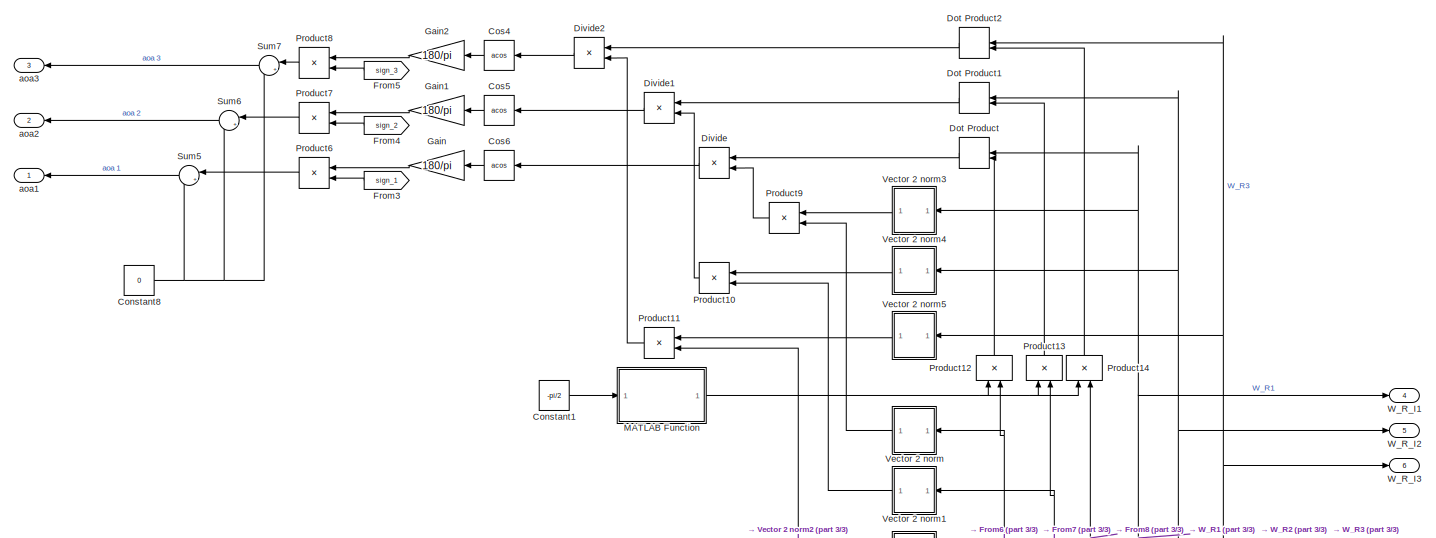
[diagram: 3bladeHVAWT with Generator/Blade Geometry Mk2 - part 1/3, top center region]
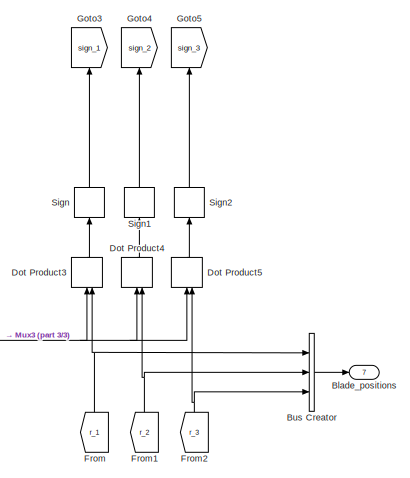
[diagram: 3bladeHVAWT with Generator/Blade Geometry Mk2 - part 2/3, bottom right region]
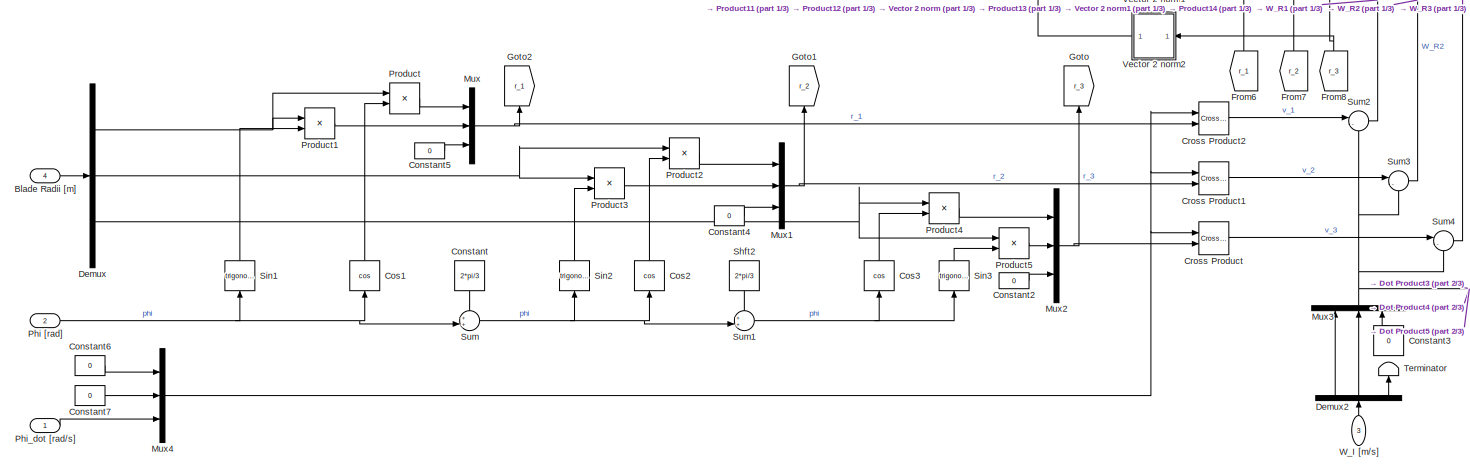
[diagram: 3bladeHVAWT with Generator/Blade Geometry Mk2 - part 3/3, bottom center region]
BLOCK [SubSystem] 3bladeHVAWT with Generator/Blade Geometry Mk2
  Ports = [4, 7]
  RequestExecContextInheritance = off
BLOCK [Inport] 3bladeHVAWT with Generator/Blade Geometry Mk2/Blade Radii [m]
  IconDisplay = Port number
  Port = 4
BLOCK [Outport] 3bladeHVAWT with Generator/Blade Geometry Mk2/Blade_positions
  IconDisplay = Port number
  Port = 7
BLOCK [BusCreator] 3bladeHVAWT with Generator/Blade Geometry Mk2/Bus Creator
  DisplayOption = bar
  InheritFromInputs = on
  Inputs = 3
  Ports = [3, 1]
BLOCK [Constant] 3bladeHVAWT with Generator/Blade Geometry Mk2/Constant
  Value = 2*pi/3
BLOCK [Constant] 3bladeHVAWT with Generator/Blade Geometry Mk2/Constant1
  Value = -pi/2
BLOCK [Constant] 3bladeHVAWT with Generator/Blade Geometry Mk2/Constant2
  Value = 0
BLOCK [Constant] 3bladeHVAWT with Generator/Blade Geometry Mk2/Constant3
  Value = 0
BLOCK [Constant] 3bladeHVAWT with Generator/Blade Geometry Mk2/Constant4
  Value = 0
BLOCK [Constant] 3bladeHVAWT with Generator/Blade Geometry Mk2/Constant5
  Value = 0
BLOCK [Constant] 3bladeHVAWT with Generator/Blade Geometry Mk2/Constant6
  Value = 0
BLOCK [Constant] 3bladeHVAWT with Generator/Blade Geometry Mk2/Constant7
  Value = 0
BLOCK [Constant] 3bladeHVAWT with Generator/Blade Geometry Mk2/Constant8
  Value = 0
BLOCK [Trigonometry] 3bladeHVAWT with Generator/Blade Geometry Mk2/Cos1
  Operator = cos
  Ports = [1, 1]
BLOCK [Trigonometry] 3bladeHVAWT with Generator/Blade Geometry Mk2/Cos2
  Operator = cos
  Ports = [1, 1]
BLOCK [Trigonometry] 3bladeHVAWT with Generator/Blade Geometry Mk2/Cos3
  Operator = cos
  Ports = [1, 1]
BLOCK [Trigonometry] 3bladeHVAWT with Generator/Blade Geometry Mk2/Cos4
  Operator = acos
  Ports = [1, 1]
BLOCK [Trigonometry] 3bladeHVAWT with Generator/Blade Geometry Mk2/Cos5
  Operator = acos
  Ports = [1, 1]
BLOCK [Trigonometry] 3bladeHVAWT with Generator/Blade Geometry Mk2/Cos6
  Operator = acos
  Ports = [1, 1]
BLOCK [Reference] 3bladeHVAWT with Generator/Blade Geometry Mk2/Cross Product  REF=vrlib/Utilities/Cross Product
  Ports = [2, 1]
  SourceBlock = vrlib/Utilities/Cross Product
  SourceProductBaseCode = VR
  SourceProductName = Simulink 3D Animation
  SourceType = Cross Product
BLOCK [Reference] 3bladeHVAWT with Generator/Blade Geometry Mk2/Cross Product1  REF=vrlib/Utilities/Cross Product
  Ports = [2, 1]
  SourceBlock = vrlib/Utilities/Cross Product
  SourceProductBaseCode = VR
  SourceProductName = Simulink 3D Animation
  SourceType = Cross Product
BLOCK [Reference] 3bladeHVAWT with Generator/Blade Geometry Mk2/Cross Product2  REF=vrlib/Utilities/Cross Product
  Ports = [2, 1]
  SourceBlock = vrlib/Utilities/Cross Product
  SourceProductBaseCode = VR
  SourceProductName = Simulink 3D Animation
  SourceType = Cross Product
BLOCK [Demux] 3bladeHVAWT with Generator/Blade Geometry Mk2/Demux
  DisplayOption = bar
  Outputs = 3
  Ports = [1, 3]
BLOCK [Demux] 3bladeHVAWT with Generator/Blade Geometry Mk2/Demux2
  DisplayOption = bar
  Outputs = 3
  Ports = [1, 3]
BLOCK [Product] 3bladeHVAWT with Generator/Blade Geometry Mk2/Divide
  InputSameDT = off
  Inputs = */
  OutDataTypeStr = Inherit: Inherit via internal rule
  Ports = [2, 1]
  RndMeth = Floor
  SaturateOnIntegerOverflow = off
BLOCK [Product] 3bladeHVAWT with Generator/Blade Geometry Mk2/Divide1
  InputSameDT = off
  Inputs = */
  OutDataTypeStr = Inherit: Inherit via internal rule
  Ports = [2, 1]
  RndMeth = Floor
  SaturateOnIntegerOverflow = off
BLOCK [Product] 3bladeHVAWT with Generator/Blade Geometry Mk2/Divide2
  InputSameDT = off
  Inputs = */
  OutDataTypeStr = Inherit: Inherit via internal rule
  Ports = [2, 1]
  RndMeth = Floor
  SaturateOnIntegerOverflow = off
BLOCK [DotProduct] 3bladeHVAWT with Generator/Blade Geometry Mk2/Dot Product
  OutDataTypeStr = Inherit: Inherit via internal rule
BLOCK [DotProduct] 3bladeHVAWT with Generator/Blade Geometry Mk2/Dot Product1
  OutDataTypeStr = Inherit: Inherit via internal rule
BLOCK [DotProduct] 3bladeHVAWT with Generator/Blade Geometry Mk2/Dot Product2
  OutDataTypeStr = Inherit: Inherit via internal rule
BLOCK [DotProduct] 3bladeHVAWT with Generator/Blade Geometry Mk2/Dot Product3
  OutDataTypeStr = Inherit: Inherit via internal rule
BLOCK [DotProduct] 3bladeHVAWT with Generator/Blade Geometry Mk2/Dot Product4
  OutDataTypeStr = Inherit: Inherit via internal rule
BLOCK [DotProduct] 3bladeHVAWT with Generator/Blade Geometry Mk2/Dot Product5
  OutDataTypeStr = Inherit: Inherit via internal rule
BLOCK [From] 3bladeHVAWT with Generator/Blade Geometry Mk2/From
  GotoTag = r_1
BLOCK [From] 3bladeHVAWT with Generator/Blade Geometry Mk2/From1
  GotoTag = r_2
BLOCK [From] 3bladeHVAWT with Generator/Blade Geometry Mk2/From2
  GotoTag = r_3
BLOCK [From] 3bladeHVAWT with Generator/Blade Geometry Mk2/From3
  GotoTag = sign_1
BLOCK [From] 3bladeHVAWT with Generator/Blade Geometry Mk2/From4
  GotoTag = sign_2
BLOCK [From] 3bladeHVAWT with Generator/Blade Geometry Mk2/From5
  GotoTag = sign_3
BLOCK [From] 3bladeHVAWT with Generator/Blade Geometry Mk2/From6
  GotoTag = r_1
BLOCK [From] 3bladeHVAWT with Generator/Blade Geometry Mk2/From7
  GotoTag = r_2
BLOCK [From] 3bladeHVAWT with Generator/Blade Geometry Mk2/From8
  GotoTag = r_3
BLOCK [Gain] 3bladeHVAWT with Generator/Blade Geometry Mk2/Gain
  Gain = 180/pi
  OutDataTypeStr = Inherit: Inherit via internal rule
  ParamDataTypeStr = Inherit: Inherit via internal rule
  SaturateOnIntegerOverflow = off
BLOCK [Gain] 3bladeHVAWT with Generator/Blade Geometry Mk2/Gain1
  Gain = 180/pi
  OutDataTypeStr = Inherit: Inherit via internal rule
  ParamDataTypeStr = Inherit: Inherit via internal rule
  SaturateOnIntegerOverflow = off
BLOCK [Gain] 3bladeHVAWT with Generator/Blade Geometry Mk2/Gain2
  Gain = 180/pi
  OutDataTypeStr = Inherit: Inherit via internal rule
  ParamDataTypeStr = Inherit: Inherit via internal rule
  SaturateOnIntegerOverflow = off
BLOCK [Goto] 3bladeHVAWT with Generator/Blade Geometry Mk2/Goto
  GotoTag = r_3
BLOCK [Goto] 3bladeHVAWT with Generator/Blade Geometry Mk2/Goto1
  GotoTag = r_2
BLOCK [Goto] 3bladeHVAWT with Generator/Blade Geometry Mk2/Goto2
  GotoTag = r_1
BLOCK [Goto] 3bladeHVAWT with Generator/Blade Geometry Mk2/Goto3
  GotoTag = sign_1
BLOCK [Goto] 3bladeHVAWT with Generator/Blade Geometry Mk2/Goto4
  GotoTag = sign_2
BLOCK [Goto] 3bladeHVAWT with Generator/Blade Geometry Mk2/Goto5
  GotoTag = sign_3
BLOCK [SubSystem] 3bladeHVAWT with Generator/Blade Geometry Mk2/MATLAB Function
  ErrorFcn = Stateflow.Translate.translate
  PermitHierarchicalResolution = ExplicitOnly
  Ports = [1, 1]
  RequestExecContextInheritance = off
  SFBlockType = MATLAB Function
  TreatAsAtomicUnit = on
BLOCK [Demux] 3bladeHVAWT with Generator/Blade Geometry Mk2/MATLAB Function/ Demux 
  Outputs = 1
  Ports = [1, 1]
BLOCK [S-Function] 3bladeHVAWT with Generator/Blade Geometry Mk2/MATLAB Function/ SFunction 
  EnableBusSupport = on
  FunctionName = sf_sfun
  PortCounts = [1 2]
  Ports = [1, 2]
  SFcnIsStateOwnerBlock = off
  SFunctionDeploymentMode = off
  Tag = Stateflow S-Function Three_blade_H_VAWT_Model 22
BLOCK [Terminator] 3bladeHVAWT with Generator/Blade Geometry Mk2/MATLAB Function/ Terminator 
BLOCK [Outport] 3bladeHVAWT with Generator/Blade Geometry Mk2/MATLAB Function/Mat
  IconDisplay = Port number
BLOCK [Inport] 3bladeHVAWT with Generator/Blade Geometry Mk2/MATLAB Function/Theta
  IconDisplay = Port number
BLOCK [Mux] 3bladeHVAWT with Generator/Blade Geometry Mk2/Mux
  DisplayOption = bar
  Inputs = 3
  Ports = [3, 1]
BLOCK [Mux] 3bladeHVAWT with Generator/Blade Geometry Mk2/Mux1
  DisplayOption = bar
  Inputs = 3
  Ports = [3, 1]
BLOCK [Mux] 3bladeHVAWT with Generator/Blade Geometry Mk2/Mux2
  DisplayOption = bar
  Inputs = 3
  Ports = [3, 1]
BLOCK [Mux] 3bladeHVAWT with Generator/Blade Geometry Mk2/Mux3
  DisplayOption = bar
  Inputs = 3
  Ports = [3, 1]
BLOCK [Mux] 3bladeHVAWT with Generator/Blade Geometry Mk2/Mux4
  DisplayOption = bar
  Inputs = 3
  Ports = [3, 1]
BLOCK [Inport] 3bladeHVAWT with Generator/Blade Geometry Mk2/Phi [rad]
  IconDisplay = Port number
  Port = 2
BLOCK [Inport] 3bladeHVAWT with Generator/Blade Geometry Mk2/Phi_dot [rad//s]
  IconDisplay = Port number
BLOCK [Product] 3bladeHVAWT with Generator/Blade Geometry Mk2/Product
  InputSameDT = off
  OutDataTypeStr = Inherit: Inherit via internal rule
  Ports = [2, 1]
  RndMeth = Floor
  SaturateOnIntegerOverflow = off
BLOCK [Product] 3bladeHVAWT with Generator/Blade Geometry Mk2/Product1
  InputSameDT = off
  OutDataTypeStr = Inherit: Inherit via internal rule
  Ports = [2, 1]
  RndMeth = Floor
  SaturateOnIntegerOverflow = off
BLOCK [Product] 3bladeHVAWT with Generator/Blade Geometry Mk2/Product10
  InputSameDT = off
  OutDataTypeStr = Inherit: Inherit via internal rule
  Ports = [2, 1]
  RndMeth = Floor
  SaturateOnIntegerOverflow = off
BLOCK [Product] 3bladeHVAWT with Generator/Blade Geometry Mk2/Product11
  InputSameDT = off
  OutDataTypeStr = Inherit: Inherit via internal rule
  Ports = [2, 1]
  RndMeth = Floor
  SaturateOnIntegerOverflow = off
BLOCK [Product] 3bladeHVAWT with Generator/Blade Geometry Mk2/Product12
  InputSameDT = off
  Multiplication = Matrix(*)
  OutDataTypeStr = Inherit: Inherit via internal rule
  Ports = [2, 1]
  RndMeth = Floor
  SaturateOnIntegerOverflow = off
BLOCK [Product] 3bladeHVAWT with Generator/Blade Geometry Mk2/Product13
  InputSameDT = off
  Multiplication = Matrix(*)
  OutDataTypeStr = Inherit: Inherit via internal rule
  Ports = [2, 1]
  RndMeth = Floor
  SaturateOnIntegerOverflow = off
BLOCK [Product] 3bladeHVAWT with Generator/Blade Geometry Mk2/Product14
  InputSameDT = off
  Multiplication = Matrix(*)
  OutDataTypeStr = Inherit: Inherit via internal rule
  Ports = [2, 1]
  RndMeth = Floor
  SaturateOnIntegerOverflow = off
BLOCK [Product] 3bladeHVAWT with Generator/Blade Geometry Mk2/Product2
  InputSameDT = off
  OutDataTypeStr = Inherit: Inherit via internal rule
  Ports = [2, 1]
  RndMeth = Floor
  SaturateOnIntegerOverflow = off
BLOCK [Product] 3bladeHVAWT with Generator/Blade Geometry Mk2/Product3
  InputSameDT = off
  OutDataTypeStr = Inherit: Inherit via internal rule
  Ports = [2, 1]
  RndMeth = Floor
  SaturateOnIntegerOverflow = off
BLOCK [Product] 3bladeHVAWT with Generator/Blade Geometry Mk2/Product4
  InputSameDT = off
  OutDataTypeStr = Inherit: Inherit via internal rule
  Ports = [2, 1]
  RndMeth = Floor
  SaturateOnIntegerOverflow = off
BLOCK [Product] 3bladeHVAWT with Generator/Blade Geometry Mk2/Product5
  InputSameDT = off
  OutDataTypeStr = Inherit: Inherit via internal rule
  Ports = [2, 1]
  RndMeth = Floor
  SaturateOnIntegerOverflow = off
BLOCK [Product] 3bladeHVAWT with Generator/Blade Geometry Mk2/Product6
  InputSameDT = off
  OutDataTypeStr = Inherit: Inherit via internal rule
  Ports = [2, 1]
  RndMeth = Floor
  SaturateOnIntegerOverflow = off
BLOCK [Product] 3bladeHVAWT with Generator/Blade Geometry Mk2/Product7
  InputSameDT = off
  OutDataTypeStr = Inherit: Inherit via internal rule
  Ports = [2, 1]
  RndMeth = Floor
  SaturateOnIntegerOverflow = off
BLOCK [Product] 3bladeHVAWT with Generator/Blade Geometry Mk2/Product8
  InputSameDT = off
  OutDataTypeStr = Inherit: Inherit via internal rule
  Ports = [2, 1]
  RndMeth = Floor
  SaturateOnIntegerOverflow = off
BLOCK [Product] 3bladeHVAWT with Generator/Blade Geometry Mk2/Product9
  InputSameDT = off
  OutDataTypeStr = Inherit: Inherit via internal rule
  Ports = [2, 1]
  RndMeth = Floor
  SaturateOnIntegerOverflow = off
BLOCK [Constant] 3bladeHVAWT with Generator/Blade Geometry Mk2/Shft2
  Value = 2*pi/3
BLOCK [Signum] 3bladeHVAWT with Generator/Blade Geometry Mk2/Sign
BLOCK [Signum] 3bladeHVAWT with Generator/Blade Geometry Mk2/Sign1
BLOCK [Signum] 3bladeHVAWT with Generator/Blade Geometry Mk2/Sign2
BLOCK [Trigonometry] 3bladeHVAWT with Generator/Blade Geometry Mk2/Sin1
  Ports = [1, 1]
BLOCK [Trigonometry] 3bladeHVAWT with Generator/Blade Geometry Mk2/Sin2
  Ports = [1, 1]
BLOCK [Trigonometry] 3bladeHVAWT with Generator/Blade Geometry Mk2/Sin3
  Ports = [1, 1]
BLOCK [Sum] 3bladeHVAWT with Generator/Blade Geometry Mk2/Sum
  IconShape = round
  InputSameDT = off
  Inputs = ++|
  OutDataTypeStr = Inherit: Inherit via internal rule
  Ports = [2, 1]
  SaturateOnIntegerOverflow = off
BLOCK [Sum] 3bladeHVAWT with Generator/Blade Geometry Mk2/Sum1
  IconShape = round
  InputSameDT = off
  Inputs = ++|
  OutDataTypeStr = Inherit: Inherit via internal rule
  Ports = [2, 1]
  SaturateOnIntegerOverflow = off
BLOCK [Sum] 3bladeHVAWT with Generator/Blade Geometry Mk2/Sum2
  IconShape = round
  InputSameDT = off
  Inputs = |-+
  OutDataTypeStr = Inherit: Inherit via internal rule
  Ports = [2, 1]
  SaturateOnIntegerOverflow = off
BLOCK [Sum] 3bladeHVAWT with Generator/Blade Geometry Mk2/Sum3
  IconShape = round
  InputSameDT = off
  Inputs = |-+
  OutDataTypeStr = Inherit: Inherit via internal rule
  Ports = [2, 1]
  SaturateOnIntegerOverflow = off
BLOCK [Sum] 3bladeHVAWT with Generator/Blade Geometry Mk2/Sum4
  IconShape = round
  InputSameDT = off
  Inputs = |-+
  OutDataTypeStr = Inherit: Inherit via internal rule
  Ports = [2, 1]
  SaturateOnIntegerOverflow = off
BLOCK [Sum] 3bladeHVAWT with Generator/Blade Geometry Mk2/Sum5
  IconShape = round
  InputSameDT = off
  Inputs = |++
  OutDataTypeStr = Inherit: Inherit via internal rule
  Ports = [2, 1]
  SaturateOnIntegerOverflow = off
BLOCK [Sum] 3bladeHVAWT with Generator/Blade Geometry Mk2/Sum6
  IconShape = round
  InputSameDT = off
  Inputs = |++
  OutDataTypeStr = Inherit: Inherit via internal rule
  Ports = [2, 1]
  SaturateOnIntegerOverflow = off
BLOCK [Sum] 3bladeHVAWT with Generator/Blade Geometry Mk2/Sum7
  IconShape = round
  InputSameDT = off
  Inputs = |++
  OutDataTypeStr = Inherit: Inherit via internal rule
  Ports = [2, 1]
  SaturateOnIntegerOverflow = off
BLOCK [Terminator] 3bladeHVAWT with Generator/Blade Geometry Mk2/Terminator
BLOCK [SubSystem] 3bladeHVAWT with Generator/Blade Geometry Mk2/Vector 2 norm
  Ports = [1, 1]
  RequestExecContextInheritance = off
BLOCK [DotProduct] 3bladeHVAWT with Generator/Blade Geometry Mk2/Vector 2 norm/Dot Product
  OutDataTypeStr = Inherit: Inherit via internal rule
BLOCK [Inport] 3bladeHVAWT with Generator/Blade Geometry Mk2/Vector 2 norm/In1
  IconDisplay = Port number
BLOCK [Outport] 3bladeHVAWT with Generator/Blade Geometry Mk2/Vector 2 norm/Out1
  IconDisplay = Port number
BLOCK [Sqrt] 3bladeHVAWT with Generator/Blade Geometry Mk2/Vector 2 norm/Sqrt
BLOCK [SubSystem] 3bladeHVAWT with Generator/Blade Geometry Mk2/Vector 2 norm1
  Ports = [1, 1]
  RequestExecContextInheritance = off
BLOCK [DotProduct] 3bladeHVAWT with Generator/Blade Geometry Mk2/Vector 2 norm1/Dot Product
  OutDataTypeStr = Inherit: Inherit via internal rule
BLOCK [Inport] 3bladeHVAWT with Generator/Blade Geometry Mk2/Vector 2 norm1/In1
  IconDisplay = Port number
BLOCK [Outport] 3bladeHVAWT with Generator/Blade Geometry Mk2/Vector 2 norm1/Out1
  IconDisplay = Port number
BLOCK [Sqrt] 3bladeHVAWT with Generator/Blade Geometry Mk2/Vector 2 norm1/Sqrt
BLOCK [SubSystem] 3bladeHVAWT with Generator/Blade Geometry Mk2/Vector 2 norm2
  Ports = [1, 1]
  RequestExecContextInheritance = off
BLOCK [DotProduct] 3bladeHVAWT with Generator/Blade Geometry Mk2/Vector 2 norm2/Dot Product
  OutDataTypeStr = Inherit: Inherit via internal rule
BLOCK [Inport] 3bladeHVAWT with Generator/Blade Geometry Mk2/Vector 2 norm2/In1
  IconDisplay = Port number
BLOCK [Outport] 3bladeHVAWT with Generator/Blade Geometry Mk2/Vector 2 norm2/Out1
  IconDisplay = Port number
BLOCK [Sqrt] 3bladeHVAWT with Generator/Blade Geometry Mk2/Vector 2 norm2/Sqrt
BLOCK [SubSystem] 3bladeHVAWT with Generator/Blade Geometry Mk2/Vector 2 norm3
  Ports = [1, 1]
  RequestExecContextInheritance = off
BLOCK [DotProduct] 3bladeHVAWT with Generator/Blade Geometry Mk2/Vector 2 norm3/Dot Product
  OutDataTypeStr = Inherit: Inherit via internal rule
BLOCK [Inport] 3bladeHVAWT with Generator/Blade Geometry Mk2/Vector 2 norm3/In1
  IconDisplay = Port number
BLOCK [Outport] 3bladeHVAWT with Generator/Blade Geometry Mk2/Vector 2 norm3/Out1
  IconDisplay = Port number
BLOCK [Sqrt] 3bladeHVAWT with Generator/Blade Geometry Mk2/Vector 2 norm3/Sqrt
BLOCK [SubSystem] 3bladeHVAWT with Generator/Blade Geometry Mk2/Vector 2 norm4
  Ports = [1, 1]
  RequestExecContextInheritance = off
BLOCK [DotProduct] 3bladeHVAWT with Generator/Blade Geometry Mk2/Vector 2 norm4/Dot Product
  OutDataTypeStr = Inherit: Inherit via internal rule
BLOCK [Inport] 3bladeHVAWT with Generator/Blade Geometry Mk2/Vector 2 norm4/In1
  IconDisplay = Port number
BLOCK [Outport] 3bladeHVAWT with Generator/Blade Geometry Mk2/Vector 2 norm4/Out1
  IconDisplay = Port number
BLOCK [Sqrt] 3bladeHVAWT with Generator/Blade Geometry Mk2/Vector 2 norm4/Sqrt
BLOCK [SubSystem] 3bladeHVAWT with Generator/Blade Geometry Mk2/Vector 2 norm5
  Ports = [1, 1]
  RequestExecContextInheritance = off
BLOCK [DotProduct] 3bladeHVAWT with Generator/Blade Geometry Mk2/Vector 2 norm5/Dot Product
  OutDataTypeStr = Inherit: Inherit via internal rule
BLOCK [Inport] 3bladeHVAWT with Generator/Blade Geometry Mk2/Vector 2 norm5/In1
  IconDisplay = Port number
BLOCK [Outport] 3bladeHVAWT with Generator/Blade Geometry Mk2/Vector 2 norm5/Out1
  IconDisplay = Port number
BLOCK [Sqrt] 3bladeHVAWT with Generator/Blade Geometry Mk2/Vector 2 norm5/Sqrt
BLOCK [Inport] 3bladeHVAWT with Generator/Blade Geometry Mk2/W_I [m//s]
  IconDisplay = Port number
  Port = 3
BLOCK [Outport] 3bladeHVAWT with Generator/Blade Geometry Mk2/W_R_I1
  IconDisplay = Port number
  Port = 4
BLOCK [Outport] 3bladeHVAWT with Generator/Blade Geometry Mk2/W_R_I2
  IconDisplay = Port number
  Port = 5
BLOCK [Outport] 3bladeHVAWT with Generator/Blade Geometry Mk2/W_R_I3 
  IconDisplay = Port number
  Port = 6
BLOCK [Outport] 3bladeHVAWT with Generator/Blade Geometry Mk2/aoa1
  IconDisplay = Port number
BLOCK [Outport] 3bladeHVAWT with Generator/Blade Geometry Mk2/aoa2
  IconDisplay = Port number
  Port = 2
BLOCK [Outport] 3bladeHVAWT with Generator/Blade Geometry Mk2/aoa3
  IconDisplay = Port number
  Port = 3
BLOCK [BusCreator] 3bladeHVAWT with Generator/Bus Creator
  DisplayOption = bar
  InheritFromInputs = on
  Inputs = 7
  Ports = [7, 1]
BLOCK [Demux] 3bladeHVAWT with Generator/Demux
  DisplayOption = bar
  Outputs = 3
  Ports = [1, 3]
BLOCK [SubSystem] 3bladeHVAWT with Generator/Eigenswings
  Ports = [2, 1]
  RequestExecContextInheritance = off
BLOCK [Inport] 3bladeHVAWT with Generator/Eigenswings/Aero Torque Net
  IconDisplay = Port number
BLOCK [Constant] 3bladeHVAWT with Generator/Eigenswings/Constant
  Value = phi11
BLOCK [Constant] 3bladeHVAWT with Generator/Eigenswings/Constant1
  Value = phi12
BLOCK [Constant] 3bladeHVAWT with Generator/Eigenswings/Constant2
BLOCK [Constant] 3bladeHVAWT with Generator/Eigenswings/Constant3
  Value = phi21
BLOCK [Constant] 3bladeHVAWT with Generator/Eigenswings/Constant4
  Value = phi22
BLOCK [Gain] 3bladeHVAWT with Generator/Eigenswings/Gain
  OutDataTypeStr = Inherit: Inherit via internal rule
  ParamDataTypeStr = Inherit: Inherit via internal rule
  SaturateOnIntegerOverflow = off
BLOCK [Gain] 3bladeHVAWT with Generator/Eigenswings/Gain1
  Gain = a11
  OutDataTypeStr = Inherit: Inherit via internal rule
  ParamDataTypeStr = Inherit: Inherit via internal rule
  SaturateOnIntegerOverflow = off
BLOCK [Gain] 3bladeHVAWT with Generator/Eigenswings/Gain10
  Gain = h2
  OutDataTypeStr = Inherit: Inherit via internal rule
  ParamDataTypeStr = Inherit: Inherit via internal rule
  SaturateOnIntegerOverflow = off
BLOCK [Gain] 3bladeHVAWT with Generator/Eigenswings/Gain11
  Gain = a2
  OutDataTypeStr = Inherit: Inherit via internal rule
  ParamDataTypeStr = Inherit: Inherit via internal rule
  SaturateOnIntegerOverflow = off
BLOCK [Gain] 3bladeHVAWT with Generator/Eigenswings/Gain12
  Gain = 3
  OutDataTypeStr = Inherit: Inherit via internal rule
  ParamDataTypeStr = Inherit: Inherit via internal rule
  SaturateOnIntegerOverflow = off
BLOCK [Gain] 3bladeHVAWT with Generator/Eigenswings/Gain13
  Gain = 3
  OutDataTypeStr = Inherit: Inherit via internal rule
  ParamDataTypeStr = Inherit: Inherit via internal rule
  SaturateOnIntegerOverflow = off
BLOCK [Gain] 3bladeHVAWT with Generator/Eigenswings/Gain2
  Gain = 2
  OutDataTypeStr = Inherit: Inherit via internal rule
  ParamDataTypeStr = Inherit: Inherit via internal rule
  SaturateOnIntegerOverflow = off
BLOCK [Gain] 3bladeHVAWT with Generator/Eigenswings/Gain3
  Gain = a12
  OutDataTypeStr = Inherit: Inherit via internal rule
  ParamDataTypeStr = Inherit: Inherit via internal rule
  SaturateOnIntegerOverflow = off
BLOCK [Gain] 3bladeHVAWT with Generator/Eigenswings/Gain4
  Gain = h1
  OutDataTypeStr = Inherit: Inherit via internal rule
  ParamDataTypeStr = Inherit: Inherit via internal rule
  SaturateOnIntegerOverflow = off
BLOCK [Gain] 3bladeHVAWT with Generator/Eigenswings/Gain5
  Gain = a1
  OutDataTypeStr = Inherit: Inherit via internal rule
  ParamDataTypeStr = Inherit: Inherit via internal rule
  SaturateOnIntegerOverflow = off
BLOCK [Gain] 3bladeHVAWT with Generator/Eigenswings/Gain6
  OutDataTypeStr = Inherit: Inherit via internal rule
  ParamDataTypeStr = Inherit: Inherit via internal rule
  SaturateOnIntegerOverflow = off
BLOCK [Gain] 3bladeHVAWT with Generator/Eigenswings/Gain7
  Gain = a21
  OutDataTypeStr = Inherit: Inherit via internal rule
  ParamDataTypeStr = Inherit: Inherit via internal rule
  SaturateOnIntegerOverflow = off
BLOCK [Gain] 3bladeHVAWT with Generator/Eigenswings/Gain8
  Gain = 2
  OutDataTypeStr = Inherit: Inherit via internal rule
  ParamDataTypeStr = Inherit: Inherit via internal rule
  SaturateOnIntegerOverflow = off
BLOCK [Gain] 3bladeHVAWT with Generator/Eigenswings/Gain9
  Gain = a22
  OutDataTypeStr = Inherit: Inherit via internal rule
  ParamDataTypeStr = Inherit: Inherit via internal rule
  SaturateOnIntegerOverflow = off
BLOCK [Integrator] 3bladeHVAWT with Generator/Eigenswings/Integrator
  Ports = [1, 1]
BLOCK [Integrator] 3bladeHVAWT with Generator/Eigenswings/Integrator1
  Ports = [1, 1]
BLOCK [Integrator] 3bladeHVAWT with Generator/Eigenswings/Integrator2
  Ports = [1, 1]
BLOCK [Integrator] 3bladeHVAWT with Generator/Eigenswings/Integrator3
  Ports = [1, 1]
BLOCK [Product] 3bladeHVAWT with Generator/Eigenswings/Multiply
  InputSameDT = off
  OutDataTypeStr = Inherit: Inherit via internal rule
  Ports = [2, 1]
  RndMeth = Floor
  SaturateOnIntegerOverflow = off
BLOCK [Product] 3bladeHVAWT with Generator/Eigenswings/Multiply1
  InputSameDT = off
  OutDataTypeStr = Inherit: Inherit via internal rule
  Ports = [2, 1]
  RndMeth = Floor
  SaturateOnIntegerOverflow = off
BLOCK [Product] 3bladeHVAWT with Generator/Eigenswings/Multiply2
  InputSameDT = off
  Inputs = */
  OutDataTypeStr = Inherit: Inherit via internal rule
  Ports = [2, 1]
  RndMeth = Floor
  SaturateOnIntegerOverflow = off
BLOCK [Mux] 3bladeHVAWT with Generator/Eigenswings/Mux
  DisplayOption = bar
  Inputs = 2
  Ports = [2, 1]
BLOCK [Scope] 3bladeHVAWT with Generator/Eigenswings/Scope
  Floating = off
  NumInputPorts = 1
  Ports = [1]
  ScopeSpecificationString = Simulink.scopes.TimeScopeBlockCfg('CurrentConfiguration', extmgr.ConfigurationSet(extmgr.Configuration('Core','General UI',true),extmgr.Configuration('Core','Source UI',true),extmgr.Configuration('Sources','WiredSimulink',true,'DataLoggingVariableName','ScopeData3'),extmgr.Configuration('Visuals','Time Domain',true,'SerializedDisplays',{struct('MinYLimReal','-131883.89121','MaxYLimReal','627592.07...<+1444ch>
BLOCK [Trigonometry] 3bladeHVAWT with Generator/Eigenswings/Sin
  Ports = [1, 1]
BLOCK [Trigonometry] 3bladeHVAWT with Generator/Eigenswings/Sin1
  Ports = [1, 1]
BLOCK [Trigonometry] 3bladeHVAWT with Generator/Eigenswings/Sin2
  Ports = [1, 1]
BLOCK [Trigonometry] 3bladeHVAWT with Generator/Eigenswings/Sin3
  Ports = [1, 1]
BLOCK [Sum] 3bladeHVAWT with Generator/Eigenswings/Sum
  InputSameDT = off
  Inputs = +++
  OutDataTypeStr = Inherit: Inherit via internal rule
  Ports = [3, 1]
  SaturateOnIntegerOverflow = off
BLOCK [Sum] 3bladeHVAWT with Generator/Eigenswings/Sum1
  InputSameDT = off
  OutDataTypeStr = Inherit: Inherit via internal rule
  Ports = [2, 1]
  SaturateOnIntegerOverflow = off
BLOCK [Sum] 3bladeHVAWT with Generator/Eigenswings/Sum2
  InputSameDT = off
  OutDataTypeStr = Inherit: Inherit via internal rule
  Ports = [2, 1]
  SaturateOnIntegerOverflow = off
BLOCK [Sum] 3bladeHVAWT with Generator/Eigenswings/Sum3
  InputSameDT = off
  OutDataTypeStr = Inherit: Inherit via internal rule
  Ports = [2, 1]
  SaturateOnIntegerOverflow = off
BLOCK [Sum] 3bladeHVAWT with Generator/Eigenswings/Sum4
  InputSameDT = off
  OutDataTypeStr = Inherit: Inherit via internal rule
  Ports = [2, 1]
  SaturateOnIntegerOverflow = off
BLOCK [Sum] 3bladeHVAWT with Generator/Eigenswings/Sum5
  InputSameDT = off
  OutDataTypeStr = Inherit: Inherit via internal rule
  Ports = [2, 1]
  SaturateOnIntegerOverflow = off
BLOCK [Sum] 3bladeHVAWT with Generator/Eigenswings/Sum6
  InputSameDT = off
  OutDataTypeStr = Inherit: Inherit via internal rule
  Ports = [2, 1]
  SaturateOnIntegerOverflow = off
BLOCK [Inport] 3bladeHVAWT with Generator/Eigenswings/phi_dot
  IconDisplay = Port number
  Port = 2
BLOCK [Outport] 3bladeHVAWT with Generator/Eigenswings/reduced torque
  IconDisplay = Port number
BLOCK [SubSystem] 3bladeHVAWT with Generator/Generator v3
  Ports = [2, 2]
  RequestExecContextInheritance = off
BLOCK [Lookup_n-D] 3bladeHVAWT with Generator/Generator v3/1-D Lookup Table
  BreakpointsForDimension1 = [0,104.7,107.3]
  InternalRulePriority = Speed
  NumberOfTableDimensions = 1
  Ports = [1, 1]
  RndMeth = Simplest
  Table = [0,0,8000]
BLOCK [Gain] 3bladeHVAWT with Generator/Generator v3/Gain1
  Gain = K
  OutDataTypeStr = Inherit: Inherit via internal rule
  ParamDataTypeStr = Inherit: Inherit via internal rule
  SaturateOnIntegerOverflow = off
BLOCK [Gain] 3bladeHVAWT with Generator/Generator v3/Gain2
  Gain = D
  OutDataTypeStr = Inherit: Inherit via internal rule
  ParamDataTypeStr = Inherit: Inherit via internal rule
  SaturateOnIntegerOverflow = off
BLOCK [Gain] 3bladeHVAWT with Generator/Generator v3/Gain3
  Gain = 1/Jg
  OutDataTypeStr = Inherit: Inherit via internal rule
  ParamDataTypeStr = Inherit: Inherit via internal rule
  SaturateOnIntegerOverflow = off
BLOCK [Gain] 3bladeHVAWT with Generator/Generator v3/Gain4
  Gain = 1/N
  OutDataTypeStr = Inherit: Inherit via internal rule
  ParamDataTypeStr = Inherit: Inherit via internal rule
  SaturateOnIntegerOverflow = off
BLOCK [Gain] 3bladeHVAWT with Generator/Generator v3/Gain5
  Gain = 1/N
  OutDataTypeStr = Inherit: Inherit via internal rule
  ParamDataTypeStr = Inherit: Inherit via internal rule
  SaturateOnIntegerOverflow = off
BLOCK [Gain] 3bladeHVAWT with Generator/Generator v3/Gain6
  Gain = 1/N
  OutDataTypeStr = Inherit: Inherit via internal rule
  ParamDataTypeStr = Inherit: Inherit via internal rule
  SaturateOnIntegerOverflow = off
BLOCK [Gain] 3bladeHVAWT with Generator/Generator v3/Gain8
  Gain = eta_g
  OutDataTypeStr = Inherit: Inherit via internal rule
  ParamDataTypeStr = Inherit: Inherit via internal rule
  SaturateOnIntegerOverflow = off
BLOCK [Integrator] 3bladeHVAWT with Generator/Generator v3/Integrator
  InitialCondition = 106/N
  Ports = [1, 1]
BLOCK [Integrator] 3bladeHVAWT with Generator/Generator v3/Integrator1
  Ports = [1, 1]
BLOCK [Integrator] 3bladeHVAWT with Generator/Generator v3/Integrator2
  InitialCondition = 106
  Ports = [1, 1]
BLOCK [Integrator] 3bladeHVAWT with Generator/Generator v3/Integrator3
  Ports = [1, 1]
BLOCK [Inport] 3bladeHVAWT with Generator/Generator v3/J_W
  IconDisplay = Port number
  Port = 2
BLOCK [Product] 3bladeHVAWT with Generator/Generator v3/Multiply
  InputSameDT = off
  OutDataTypeStr = Inherit: Inherit via internal rule
  Ports = [2, 1]
  RndMeth = Floor
  SaturateOnIntegerOverflow = off
BLOCK [Product] 3bladeHVAWT with Generator/Generator v3/Multiply1
  InputSameDT = off
  Inputs = /*
  OutDataTypeStr = Inherit: Inherit via internal rule
  Ports = [2, 1]
  RndMeth = Floor
  SaturateOnIntegerOverflow = off
BLOCK [Inport] 3bladeHVAWT with Generator/Generator v3/Net Torque
  IconDisplay = Port number
BLOCK [Outport] 3bladeHVAWT with Generator/Generator v3/Power
  IconDisplay = Port number
BLOCK [Scope] 3bladeHVAWT with Generator/Generator v3/Scope
  Floating = off
  NumInputPorts = 1
  Ports = [1]
  ScopeSpecificationString = Simulink.scopes.TimeScopeBlockCfg('CurrentConfiguration', extmgr.ConfigurationSet(extmgr.Configuration('Core','General UI',true),extmgr.Configuration('Core','Source UI',true),extmgr.Configuration('Sources','WiredSimulink',true),extmgr.Configuration('Visuals','Time Domain',true,'SerializedDisplays',{struct('MinYLimReal','13.48891','MaxYLimReal','13.49445','YLabelReal','','MinYLimMag','13.48891','Ma...<+1381ch>
BLOCK [Scope] 3bladeHVAWT with Generator/Generator v3/Scope1
  Floating = off
  NumInputPorts = 1
  Ports = [1]
  ScopeSpecificationString = Simulink.scopes.TimeScopeBlockCfg('CurrentConfiguration', extmgr.ConfigurationSet(extmgr.Configuration('Core','General UI',true),extmgr.Configuration('Core','Source UI',true),extmgr.Configuration('Sources','WiredSimulink',true,'DataLoggingVariableName','ScopeData1'),extmgr.Configuration('Visuals','Time Domain',true,'SerializedDisplays',{struct('MinYLimReal','-327.36454','MaxYLimReal','5595.94447',...<+1421ch>
BLOCK [Scope] 3bladeHVAWT with Generator/Generator v3/Scope2
  Floating = off
  NumInputPorts = 1
  Ports = [1]
  ScopeSpecificationString = Simulink.scopes.TimeScopeBlockCfg('CurrentConfiguration', extmgr.ConfigurationSet(extmgr.Configuration('Core','General UI',true),extmgr.Configuration('Core','Source UI',true),extmgr.Configuration('Sources','WiredSimulink',true,'DataLoggingVariableName','ScopeData2'),extmgr.Configuration('Visuals','Time Domain',true,'SerializedDisplays',{struct('MinYLimReal','-0.23123','MaxYLimReal','0.36641','YLab...<+1403ch>
BLOCK [Scope] 3bladeHVAWT with Generator/Generator v3/Scope3
  Floating = off
  NumInputPorts = 1
  Ports = [1]
  ScopeSpecificationString = Simulink.scopes.TimeScopeBlockCfg('CurrentConfiguration', extmgr.ConfigurationSet(extmgr.Configuration('Core','General UI',true),extmgr.Configuration('Core','Source UI',true),extmgr.Configuration('Sources','WiredSimulink',true,'DataLoggingVariableName','ScopeData3'),extmgr.Configuration('Visuals','Time Domain',true,'SerializedDisplays',{struct('MinYLimReal','-397.42115','MaxYLimReal','3576.79031',...<+1384ch>
BLOCK [Scope] 3bladeHVAWT with Generator/Generator v3/Scope4
  Floating = off
  NumInputPorts = 1
  Ports = [1]
  ScopeSpecificationString = Simulink.scopes.TimeScopeBlockCfg('CurrentConfiguration', extmgr.ConfigurationSet(extmgr.Configuration('Core','General UI',true),extmgr.Configuration('Core','Source UI',true),extmgr.Configuration('Sources','WiredSimulink',true,'DataLoggingVariableName','ScopeData4'),extmgr.Configuration('Visuals','Time Domain',true,'SerializedDisplays',{struct('MinYLimReal','1.05759','MaxYLimReal','1.06836','YLabe...<+1396ch>
BLOCK [Scope] 3bladeHVAWT with Generator/Generator v3/Scope5
  Floating = off
  NumInputPorts = 1
  Ports = [1]
  ScopeSpecificationString = Simulink.scopes.TimeScopeBlockCfg('CurrentConfiguration', extmgr.ConfigurationSet(extmgr.Configuration('Core','General UI',true),extmgr.Configuration('Core','Source UI',true),extmgr.Configuration('Sources','WiredSimulink',true,'DataLoggingVariableName','ScopeData1'),extmgr.Configuration('Visuals','Time Domain',true,'SerializedDisplays',{struct('MinYLimReal','-0.09288','MaxYLimReal','0.83594','YLab...<+1412ch>
BLOCK [Scope] 3bladeHVAWT with Generator/Generator v3/Scope6
  Floating = off
  NumInputPorts = 1
  Ports = [1]
  ScopeSpecificationString = Simulink.scopes.TimeScopeBlockCfg('CurrentConfiguration', extmgr.ConfigurationSet(extmgr.Configuration('Core','General UI',true),extmgr.Configuration('Core','Source UI',true),extmgr.Configuration('Sources','WiredSimulink',true,'DataLoggingVariableName','ScopeData4'),extmgr.Configuration('Visuals','Time Domain',true,'SerializedDisplays',{struct('MinYLimReal','-65140.73569','MaxYLimReal','586266.621...<+1399ch>
BLOCK [Sum] 3bladeHVAWT with Generator/Generator v3/Sum
  IconShape = round
  InputSameDT = off
  Inputs = |+-
  OutDataTypeStr = Inherit: Inherit via internal rule
  Ports = [2, 1]
  SaturateOnIntegerOverflow = off
BLOCK [Sum] 3bladeHVAWT with Generator/Generator v3/Sum1
  IconShape = round
  InputSameDT = off
  Inputs = |+-
  OutDataTypeStr = Inherit: Inherit via internal rule
  Ports = [2, 1]
  SaturateOnIntegerOverflow = off
BLOCK [Sum] 3bladeHVAWT with Generator/Generator v3/Sum2
  IconShape = round
  InputSameDT = off
  Inputs = |++
  OutDataTypeStr = Inherit: Inherit via internal rule
  Ports = [2, 1]
  SaturateOnIntegerOverflow = off
BLOCK [Sum] 3bladeHVAWT with Generator/Generator v3/Sum3
  IconShape = round
  InputSameDT = off
  Inputs = +-
  OutDataTypeStr = Inherit: Inherit via internal rule
  Ports = [2, 1]
  SaturateOnIntegerOverflow = off
BLOCK [Sum] 3bladeHVAWT with Generator/Generator v3/Sum4
  IconShape = round
  InputSameDT = off
  Inputs = +-
  OutDataTypeStr = Inherit: Inherit via internal rule
  Ports = [2, 1]
  SaturateOnIntegerOverflow = off
BLOCK [Outport] 3bladeHVAWT with Generator/Generator v3/omega_w
  IconDisplay = Port number
  Port = 2
BLOCK [Integrator] 3bladeHVAWT with Generator/Integrator
  Ports = [1, 1]
BLOCK [ManualSwitch] 3bladeHVAWT with Generator/Manual Switch
BLOCK [SubSystem] 3bladeHVAWT with Generator/Moment of Inertia
  Ports = [1, 1]
  RequestExecContextInheritance = off
BLOCK [Sum] 3bladeHVAWT with Generator/Moment of Inertia/Add
  InputSameDT = off
  Inputs = 3
  OutDataTypeStr = Inherit: Inherit via internal rule
  Ports = [3, 1]
  SaturateOnIntegerOverflow = off
BLOCK [Inport] 3bladeHVAWT with Generator/Moment of Inertia/Blade Radii
  IconDisplay = Port number
BLOCK [Demux] 3bladeHVAWT with Generator/Moment of Inertia/Demux
  DisplayOption = bar
  Outputs = 3
  Ports = [1, 3]
BLOCK [Outport] 3bladeHVAWT with Generator/Moment of Inertia/I_zz
  IconDisplay = Port number
BLOCK [Math] 3bladeHVAWT with Generator/Moment of Inertia/Math Function
  Operator = magnitude^2
  Ports = [1, 1]
BLOCK [Math] 3bladeHVAWT with Generator/Moment of Inertia/Math Function1
  Operator = magnitude^2
  Ports = [1, 1]
BLOCK [Math] 3bladeHVAWT with Generator/Moment of Inertia/Math Function2
  Operator = magnitude^2
  Ports = [1, 1]
BLOCK [Gain] 3bladeHVAWT with Generator/Moment of Inertia/blade mass
  Gain = 15000
  OutDataTypeStr = Inherit: Inherit via internal rule
  ParamDataTypeStr = Inherit: Inherit via internal rule
  SaturateOnIntegerOverflow = off
BLOCK [Gain] 3bladeHVAWT with Generator/Moment of Inertia/blade mass1
  Gain = 15000
  OutDataTypeStr = Inherit: Inherit via internal rule
  ParamDataTypeStr = Inherit: Inherit via internal rule
  SaturateOnIntegerOverflow = off
BLOCK [Gain] 3bladeHVAWT with Generator/Moment of Inertia/blade mass2
  Gain = 15000
  OutDataTypeStr = Inherit: Inherit via internal rule
  ParamDataTypeStr = Inherit: Inherit via internal rule
  SaturateOnIntegerOverflow = off
BLOCK [Product] 3bladeHVAWT with Generator/Multiply
  InputSameDT = off
  Inputs = /*
  OutDataTypeStr = Inherit: Inherit via internal rule
  Ports = [2, 1]
  RndMeth = Floor
  SaturateOnIntegerOverflow = off
BLOCK [Mux] 3bladeHVAWT with Generator/Mux
  DisplayOption = bar
  Inputs = 3
  Ports = [3, 1]
BLOCK [Outport] 3bladeHVAWT with Generator/Outport
  IconDisplay = Port number
BLOCK [Inport] 3bladeHVAWT with Generator/Pitch
  IconDisplay = Port number
  Port = 3
BLOCK [Inport] 3bladeHVAWT with Generator/Radii
  IconDisplay = Port number
  Port = 2
BLOCK [Scope] 3bladeHVAWT with Generator/Scope1
  Floating = off
  NumInputPorts = 1
  Ports = [1]
  ScopeSpecificationString = Simulink.scopes.TimeScopeBlockCfg('CurrentConfiguration', extmgr.ConfigurationSet(extmgr.Configuration('Core','General UI',true),extmgr.Configuration('Core','Source UI',true),extmgr.Configuration('Sources','WiredSimulink',true,'DataLoggingVariableName','ScopeData1'),extmgr.Configuration('Visuals','Time Domain',true,'SerializedDisplays',{struct('MinYLimReal','-24.34025','MaxYLimReal','24.36673','YL...<+1396ch>
BLOCK [Scope] 3bladeHVAWT with Generator/Scope10
  Floating = off
  NumInputPorts = 1
  Ports = [1]
  ScopeSpecificationString = Simulink.scopes.TimeScopeBlockCfg('CurrentConfiguration', extmgr.ConfigurationSet(extmgr.Configuration('Core','General UI',true),extmgr.Configuration('Core','Source UI',true),extmgr.Configuration('Sources','WiredSimulink',true,'DataLoggingVariableName','ScopeData3'),extmgr.Configuration('Visuals','Time Domain',true,'SerializedDisplays',{struct('MinYLimReal','-214124.95809','MaxYLimReal','213893.98...<+1451ch>
BLOCK [Scope] 3bladeHVAWT with Generator/Scope2
  Floating = off
  NumInputPorts = 1
  Ports = [1]
  ScopeSpecificationString = Simulink.scopes.TimeScopeBlockCfg('CurrentConfiguration', extmgr.ConfigurationSet(extmgr.Configuration('Core','General UI',true),extmgr.Configuration('Core','Source UI',true),extmgr.Configuration('Sources','WiredSimulink',true,'DataLoggingVariableName','ScopeData1'),extmgr.Configuration('Visuals','Time Domain',true,'SerializedDisplays',{struct('MinYLimReal','-13331.31229','MaxYLimReal','100750.776...<+1469ch>
BLOCK [Scope] 3bladeHVAWT with Generator/Scope3
  Floating = off
  NumInputPorts = 1
  Ports = [1]
  ScopeSpecificationString = Simulink.scopes.TimeScopeBlockCfg('CurrentConfiguration', extmgr.ConfigurationSet(extmgr.Configuration('Core','General UI',true),extmgr.Configuration('Core','Source UI',true),extmgr.Configuration('Sources','WiredSimulink',true,'DataLoggingVariableName','ScopeData3'),extmgr.Configuration('Visuals','Time Domain',true,'SerializedDisplays',{struct('MinYLimReal','-13331.31229','MaxYLimReal','100750.776...<+1469ch>
BLOCK [Scope] 3bladeHVAWT with Generator/Scope4
  Floating = off
  NumInputPorts = 1
  Ports = [1]
  ScopeSpecificationString = Simulink.scopes.TimeScopeBlockCfg('CurrentConfiguration', extmgr.ConfigurationSet(extmgr.Configuration('Core','General UI',true),extmgr.Configuration('Core','Source UI',true),extmgr.Configuration('Sources','WiredSimulink',true,'DataLoggingVariableName','ScopeData4'),extmgr.Configuration('Visuals','Time Domain',true,'SerializedDisplays',{struct('MinYLimReal','62996.97481','MaxYLimReal','72432.53493...<+1502ch>
BLOCK [Scope] 3bladeHVAWT with Generator/Scope5
  Floating = off
  NumInputPorts = 1
  Ports = [1]
  ScopeSpecificationString = Simulink.scopes.TimeScopeBlockCfg('CurrentConfiguration', extmgr.ConfigurationSet(extmgr.Configuration('Core','General UI',true),extmgr.Configuration('Core','Source UI',true),extmgr.Configuration('Sources','WiredSimulink',true,'DataLoggingVariableName','ScopeData1'),extmgr.Configuration('Visuals','Time Domain',true,'SerializedDisplays',{struct('MinYLimReal','-0.14191','MaxYLimReal','1.27715','YLab...<+1367ch>
BLOCK [Scope] 3bladeHVAWT with Generator/Scope6
  Floating = off
  NumInputPorts = 1
  Ports = [1]
  ScopeSpecificationString = Simulink.scopes.TimeScopeBlockCfg('CurrentConfiguration', extmgr.ConfigurationSet(extmgr.Configuration('Core','General UI',true),extmgr.Configuration('Core','Source UI',true),extmgr.Configuration('Sources','WiredSimulink',true,'DataLoggingVariableName','ScopeData2'),extmgr.Configuration('Visuals','Time Domain',true,'SerializedDisplays',{struct('MinYLimReal','1.04715','MaxYLimReal','1.06183','YLabe...<+1391ch>
BLOCK [Scope] 3bladeHVAWT with Generator/Scope7
  Floating = off
  NumInputPorts = 1
  Ports = [1]
  ScopeSpecificationString = Simulink.scopes.TimeScopeBlockCfg('CurrentConfiguration', extmgr.ConfigurationSet(extmgr.Configuration('Core','General UI',true),extmgr.Configuration('Core','Source UI',true),extmgr.Configuration('Sources','WiredSimulink',true,'DataLoggingVariableName','ScopeData1'),extmgr.Configuration('Visuals','Time Domain',true,'SerializedDisplays',{struct('MinYLimReal','-47700.00000','MaxYLimReal','429300.000...<+1435ch>
BLOCK [Scope] 3bladeHVAWT with Generator/Scope8
  Floating = off
  NumInputPorts = 1
  Ports = [1]
  ScopeSpecificationString = Simulink.scopes.TimeScopeBlockCfg('CurrentConfiguration', extmgr.ConfigurationSet(extmgr.Configuration('Core','General UI',true),extmgr.Configuration('Core','Source UI',true),extmgr.Configuration('Sources','WiredSimulink',true,'DataLoggingVariableName','ScopeData2'),extmgr.Configuration('Visuals','Time Domain',true,'SerializedDisplays',{struct('MinYLimReal','-13331.31229','MaxYLimReal','100750.776...<+1469ch>
BLOCK [Scope] 3bladeHVAWT with Generator/Scope9
  Floating = off
  NumInputPorts = 1
  Ports = [1]
  ScopeSpecificationString = Simulink.scopes.TimeScopeBlockCfg('CurrentConfiguration', extmgr.ConfigurationSet(extmgr.Configuration('Core','General UI',true),extmgr.Configuration('Core','Source UI',true),extmgr.Configuration('Sources','WiredSimulink',true,'DataLoggingVariableName','ScopeData2'),extmgr.Configuration('Visuals','Time Domain',true,'SerializedDisplays',{struct('MinYLimReal','333288.24158','MaxYLimReal','469819.724...<+1408ch>
BLOCK [Sum] 3bladeHVAWT with Generator/Sum
  IconShape = round
  InputSameDT = off
  Inputs = ++|
  OutDataTypeStr = Inherit: Inherit via internal rule
  Ports = [2, 1]
  SaturateOnIntegerOverflow = off
BLOCK [Sum] 3bladeHVAWT with Generator/Sum1
  IconShape = round
  InputSameDT = off
  Inputs = ++|
  OutDataTypeStr = Inherit: Inherit via internal rule
  Ports = [2, 1]
  SaturateOnIntegerOverflow = off
BLOCK [Sum] 3bladeHVAWT with Generator/Sum2
  IconShape = round
  InputSameDT = off
  Inputs = ++|
  OutDataTypeStr = Inherit: Inherit via internal rule
  Ports = [2, 1]
  SaturateOnIntegerOverflow = off
BLOCK [Inport] 3bladeHVAWT with Generator/Wind
  IconDisplay = Port number
BLOCK [SubSystem] 3bladeHVAWT with Generator/Wind Power
  Ports = [2, 1]
  RequestExecContextInheritance = off
BLOCK [Constant] 3bladeHVAWT with Generator/Wind Power/Constant
  Value = 3
BLOCK [Demux] 3bladeHVAWT with Generator/Wind Power/Demux
  DisplayOption = bar
  Outputs = 3
  Ports = [1, 3]
BLOCK [Demux] 3bladeHVAWT with Generator/Wind Power/Demux1
  DisplayOption = bar
  Outputs = 3
  Ports = [1, 3]
BLOCK [Gain] 3bladeHVAWT with Generator/Wind Power/Gain
  Gain = (rho*Blade_Length)/2
  OutDataTypeStr = Inherit: Inherit via internal rule
  ParamDataTypeStr = Inherit: Inherit via internal rule
  SaturateOnIntegerOverflow = off
BLOCK [Gain] 3bladeHVAWT with Generator/Wind Power/Gain1
  Gain = 2
  OutDataTypeStr = Inherit: Inherit via internal rule
  ParamDataTypeStr = Inherit: Inherit via internal rule
  SaturateOnIntegerOverflow = off
BLOCK [Math] 3bladeHVAWT with Generator/Wind Power/Math Function
  Operator = pow
  Ports = [2, 1]
BLOCK [Product] 3bladeHVAWT with Generator/Wind Power/Multiply
  InputSameDT = off
  OutDataTypeStr = Inherit: Inherit via internal rule
  Ports = [2, 1]
  RndMeth = Floor
  SaturateOnIntegerOverflow = off
BLOCK [Outport] 3bladeHVAWT with Generator/Wind Power/P_wind
  IconDisplay = Port number
BLOCK [Inport] 3bladeHVAWT with Generator/Wind Power/Radius
  IconDisplay = Port number
  Port = 2
BLOCK [Sqrt] 3bladeHVAWT with Generator/Wind Power/Sqrt
BLOCK [Math] 3bladeHVAWT with Generator/Wind Power/Square
  Operator = square
  Ports = [1, 1]
BLOCK [Math] 3bladeHVAWT with Generator/Wind Power/Square1
  Operator = square
  Ports = [1, 1]
BLOCK [Math] 3bladeHVAWT with Generator/Wind Power/Square2
  Operator = square
  Ports = [1, 1]
BLOCK [Sum] 3bladeHVAWT with Generator/Wind Power/Sum
  IconShape = round
  InputSameDT = off
  Inputs = |+++
  OutDataTypeStr = Inherit: Inherit via internal rule
  Ports = [3, 1]
  SaturateOnIntegerOverflow = off
BLOCK [Terminator] 3bladeHVAWT with Generator/Wind Power/Terminator
BLOCK [Terminator] 3bladeHVAWT with Generator/Wind Power/Terminator1
BLOCK [Inport] 3bladeHVAWT with Generator/Wind Power/Wind Vector
  IconDisplay = Port number
BLOCK [SubSystem] 3bladeHVAWT with Generator/take z1
  Ports = [1, 1]
  RequestExecContextInheritance = off
BLOCK [Demux] 3bladeHVAWT with Generator/take z1/Demux
  DisplayOption = bar
  Outputs = 3
  Ports = [1, 3]
BLOCK [Inport] 3bladeHVAWT with Generator/take z1/In1
  IconDisplay = Port number
BLOCK [Outport] 3bladeHVAWT with Generator/take z1/Out1
  IconDisplay = Port number
BLOCK [Terminator] 3bladeHVAWT with Generator/take z1/Terminator
BLOCK [Terminator] 3bladeHVAWT with Generator/take z1/Terminator1
BLOCK [SubSystem] 3bladeHVAWT with Generator/take z2
  Ports = [1, 1]
  RequestExecContextInheritance = off
BLOCK [Demux] 3bladeHVAWT with Generator/take z2/Demux
  DisplayOption = bar
  Outputs = 3
  Ports = [1, 3]
BLOCK [Inport] 3bladeHVAWT with Generator/take z2/In1
  IconDisplay = Port number
BLOCK [Outport] 3bladeHVAWT with Generator/take z2/Out1
  IconDisplay = Port number
BLOCK [Terminator] 3bladeHVAWT with Generator/take z2/Terminator
BLOCK [Terminator] 3bladeHVAWT with Generator/take z2/Terminator1
BLOCK [SubSystem] 3bladeHVAWT with Generator/take z3
  Ports = [1, 1]
  RequestExecContextInheritance = off
BLOCK [Demux] 3bladeHVAWT with Generator/take z3/Demux
  DisplayOption = bar
  Outputs = 3
  Ports = [1, 3]
BLOCK [Inport] 3bladeHVAWT with Generator/take z3/In1
  IconDisplay = Port number
BLOCK [Outport] 3bladeHVAWT with Generator/take z3/Out1
  IconDisplay = Port number
BLOCK [Terminator] 3bladeHVAWT with Generator/take z3/Terminator
BLOCK [Terminator] 3bladeHVAWT with Generator/take z3/Terminator1
BLOCK [SubSystem] 3bladeHVAWT with Generator/take z4
  Ports = [1, 1]
  RequestExecContextInheritance = off
BLOCK [Demux] 3bladeHVAWT with Generator/take z4/Demux
  DisplayOption = bar
  Outputs = 3
  Ports = [1, 3]
BLOCK [Inport] 3bladeHVAWT with Generator/take z4/In1
  IconDisplay = Port number
BLOCK [Outport] 3bladeHVAWT with Generator/take z4/Out1
  IconDisplay = Port number
BLOCK [Terminator] 3bladeHVAWT with Generator/take z4/Terminator
BLOCK [Terminator] 3bladeHVAWT with Generator/take z4/Terminator1
BLOCK [SubSystem] Blade Pitch (const.)
  Ports = [0, 1]
  RequestExecContextInheritance = off
BLOCK [Outport] Blade Pitch (const.)/Blade Pitch
  IconDisplay = Port number
BLOCK [Constant] Blade Pitch (const.)/Constant
  Value = blade1_pitch
BLOCK [Constant] Blade Pitch (const.)/Constant1
  Value = blade2_pitch
BLOCK [Constant] Blade Pitch (const.)/Constant2
  Value = blade3_pitch
BLOCK [Mux] Blade Pitch (const.)/Mux
  DisplayOption = bar
  Inputs = 3
  Ports = [3, 1]
BLOCK [SubSystem] Blade Radii (const.)
  Ports = [0, 1]
  RequestExecContextInheritance = off
BLOCK [Constant] Blade Radii (const.)/Constant
  Value = blade1_radius
BLOCK [Constant] Blade Radii (const.)/Constant1
  Value = blade2_radius
BLOCK [Constant] Blade Radii (const.)/Constant2
  Value = blade3_radius
BLOCK [Mux] Blade Radii (const.)/Mux
  DisplayOption = bar
  Inputs = 3
  Ports = [3, 1]
BLOCK [Outport] Blade Radii (const.)/Radii
  IconDisplay = Port number
BLOCK [SubSystem] Control
  Ports = [2, 1]
  RequestExecContextInheritance = off
BLOCK [Constant] Control/Constant
  Value = 0
BLOCK [Inport] Control/From Plant
  IconDisplay = Port number
BLOCK [Outport] Control/Out1
  IconDisplay = Port number
BLOCK [SubSystem] Control/Pitch Control (aoa feedback) Gain Scheduled1
  Commented = on
  Ports = [2, 1]
  RequestExecContextInheritance = off
BLOCK [BusSelector] Control/Pitch Control (aoa feedback) Gain Scheduled1/Bus Selector
  OutputAsBus = off
  OutputSignals = aoa 1,aoa 2,aoa 3
  Ports = [1, 3]
BLOCK [DotProduct] Control/Pitch Control (aoa feedback) Gain Scheduled1/Dot Product
  OutDataTypeStr = Inherit: Inherit via internal rule
BLOCK [Inport] Control/Pitch Control (aoa feedback) Gain Scheduled1/In1
  IconDisplay = Port number
BLOCK [Product] Control/Pitch Control (aoa feedback) Gain Scheduled1/Multiply
  InputSameDT = off
  OutDataTypeStr = Inherit: Inherit via internal rule
  Ports = [2, 1]
  RndMeth = Floor
  SaturateOnIntegerOverflow = off
BLOCK [Product] Control/Pitch Control (aoa feedback) Gain Scheduled1/Multiply1
  InputSameDT = off
  OutDataTypeStr = Inherit: Inherit via internal rule
  Ports = [2, 1]
  RndMeth = Floor
  SaturateOnIntegerOverflow = off
BLOCK [Product] Control/Pitch Control (aoa feedback) Gain Scheduled1/Multiply2
  InputSameDT = off
  OutDataTypeStr = Inherit: Inherit via internal rule
  Ports = [2, 1]
  RndMeth = Floor
  SaturateOnIntegerOverflow = off
BLOCK [Mux] Control/Pitch Control (aoa feedback) Gain Scheduled1/Mux
  DisplayOption = bar
  Inputs = 3
  Ports = [3, 1]
BLOCK [Outport] Control/Pitch Control (aoa feedback) Gain Scheduled1/Pitch Command
  IconDisplay = Port number
BLOCK [Sqrt] Control/Pitch Control (aoa feedback) Gain Scheduled1/Sqrt
BLOCK [Lookup_n-D] Control/Pitch Control (aoa feedback) Gain Scheduled1/Tunings (20m fixed rad)
  BreakpointsForDimension1 = [0:20]
  InternalRulePriority = Speed
  NumberOfTableDimensions = 1
  Ports = [1, 1]
  RndMeth = Simplest
  Table = [0,0,0,0,0,-0.143,-0.28,-0.385,-0.464,-0.527,-0.578,-0.619,0,0,0,0,0,0,0,0,0]
BLOCK [Inport] Control/Pitch Control (aoa feedback) Gain Scheduled1/wind_measure
  IconDisplay = Port number
  Port = 2
BLOCK [SubSystem] Control/Pitch Control (aoa feedback)1
  Commented = on
  Ports = [1, 1]
  RequestExecContextInheritance = off
BLOCK [BusSelector] Control/Pitch Control (aoa feedback)1/Bus Selector
  OutputAsBus = off
  OutputSignals = aoa 1,aoa 2,aoa 3
  Ports = [1, 3]
BLOCK [Gain] Control/Pitch Control (aoa feedback)1/Gain
  Gain = -0.3
  OutDataTypeStr = Inherit: Inherit via internal rule
  ParamDataTypeStr = Inherit: Inherit via internal rule
  SaturateOnIntegerOverflow = off
BLOCK [Gain] Control/Pitch Control (aoa feedback)1/Gain1
  Gain = -0.3
  OutDataTypeStr = Inherit: Inherit via internal rule
  ParamDataTypeStr = Inherit: Inherit via internal rule
  SaturateOnIntegerOverflow = off
BLOCK [Gain] Control/Pitch Control (aoa feedback)1/Gain2
  Gain = -0.3
  OutDataTypeStr = Inherit: Inherit via internal rule
  ParamDataTypeStr = Inherit: Inherit via internal rule
  SaturateOnIntegerOverflow = off
BLOCK [Inport] Control/Pitch Control (aoa feedback)1/In1
  IconDisplay = Port number
BLOCK [Mux] Control/Pitch Control (aoa feedback)1/Mux
  DisplayOption = bar
  Inputs = 3
  Ports = [3, 1]
BLOCK [Outport] Control/Pitch Control (aoa feedback)1/Pitch Command
  IconDisplay = Port number
BLOCK [SubSystem] Control/Pitch Control (aoa sqrd feedback)
  Commented = on
  Ports = [1, 1]
  RequestExecContextInheritance = off
BLOCK [BusSelector] Control/Pitch Control (aoa sqrd feedback)/Bus Selector
  OutputAsBus = off
  OutputSignals = aoa 1,aoa 2,aoa 3
  Ports = [1, 3]
BLOCK [Gain] Control/Pitch Control (aoa sqrd feedback)/Gain
  Gain = -0.02
  OutDataTypeStr = Inherit: Inherit via internal rule
  ParamDataTypeStr = Inherit: Inherit via internal rule
  SaturateOnIntegerOverflow = off
BLOCK [Gain] Control/Pitch Control (aoa sqrd feedback)/Gain1
  Gain = -0.02
  OutDataTypeStr = Inherit: Inherit via internal rule
  ParamDataTypeStr = Inherit: Inherit via internal rule
  SaturateOnIntegerOverflow = off
BLOCK [Gain] Control/Pitch Control (aoa sqrd feedback)/Gain3
  Gain = -0.02
  OutDataTypeStr = Inherit: Inherit via internal rule
  ParamDataTypeStr = Inherit: Inherit via internal rule
  SaturateOnIntegerOverflow = off
BLOCK [Inport] Control/Pitch Control (aoa sqrd feedback)/In1
  IconDisplay = Port number
BLOCK [Math] Control/Pitch Control (aoa sqrd feedback)/Math Function
  Operator = square
  Ports = [1, 1]
BLOCK [Math] Control/Pitch Control (aoa sqrd feedback)/Math Function1
  Operator = square
  Ports = [1, 1]
BLOCK [Math] Control/Pitch Control (aoa sqrd feedback)/Math Function2
  Operator = square
  Ports = [1, 1]
BLOCK [Mux] Control/Pitch Control (aoa sqrd feedback)/Mux
  DisplayOption = bar
  Inputs = 3
  Ports = [3, 1]
BLOCK [Outport] Control/Pitch Control (aoa sqrd feedback)/Pitch Command
  IconDisplay = Port number
BLOCK [Product] Control/Pitch Control (aoa sqrd feedback)/Product
  InputSameDT = off
  OutDataTypeStr = Inherit: Inherit via internal rule
  Ports = [2, 1]
  RndMeth = Floor
  SaturateOnIntegerOverflow = off
BLOCK [Product] Control/Pitch Control (aoa sqrd feedback)/Product1
  InputSameDT = off
  OutDataTypeStr = Inherit: Inherit via internal rule
  Ports = [2, 1]
  RndMeth = Floor
  SaturateOnIntegerOverflow = off
BLOCK [Product] Control/Pitch Control (aoa sqrd feedback)/Product2
  InputSameDT = off
  OutDataTypeStr = Inherit: Inherit via internal rule
  Ports = [2, 1]
  RndMeth = Floor
  SaturateOnIntegerOverflow = off
BLOCK [Signum] Control/Pitch Control (aoa sqrd feedback)/Sign
BLOCK [Signum] Control/Pitch Control (aoa sqrd feedback)/Sign1
BLOCK [Signum] Control/Pitch Control (aoa sqrd feedback)/Sign2
BLOCK [Terminator] Control/Terminator
BLOCK [Terminator] Control/Terminator1
BLOCK [Inport] Control/Wind
  IconDisplay = Port number
  Port = 2
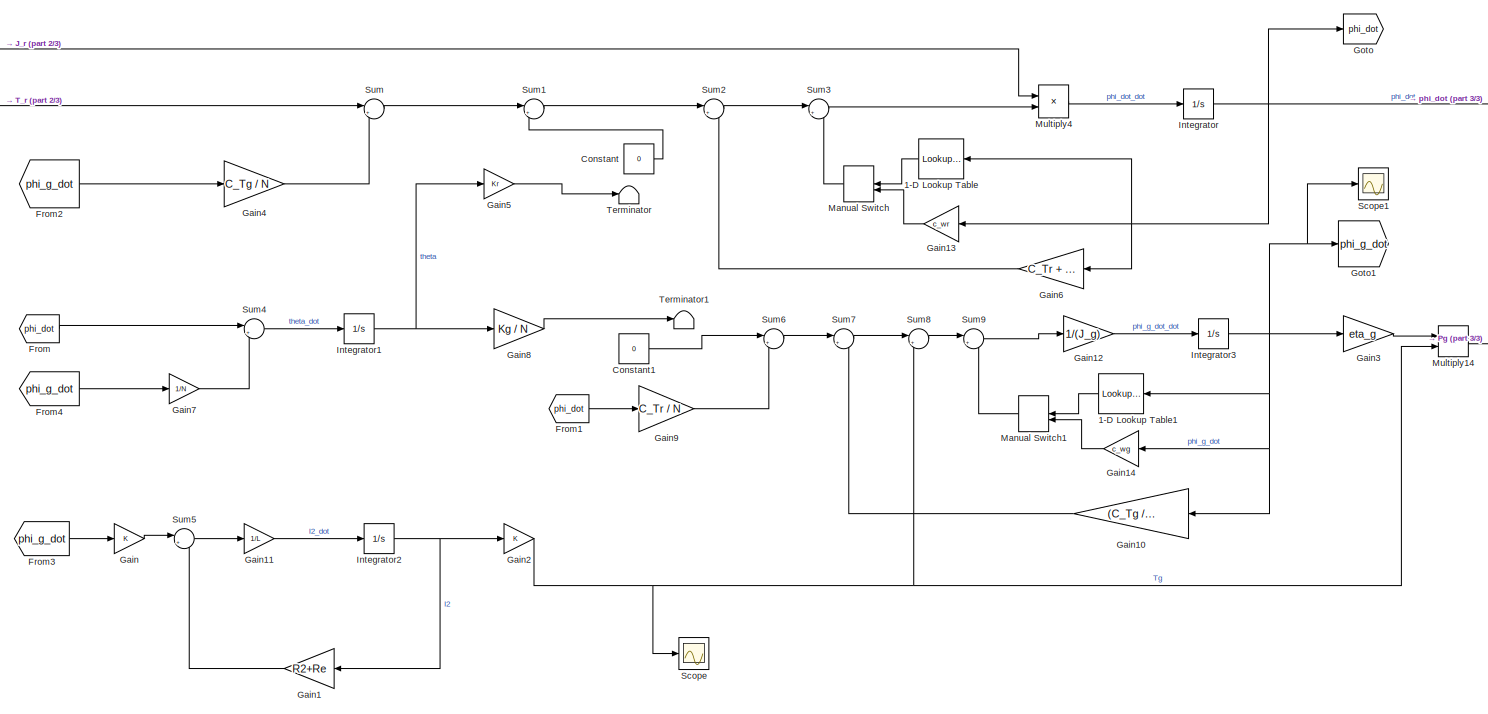
[diagram: Generator Model v1.0 - part 1/3, most of the canvas]
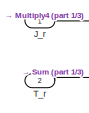
[diagram: Generator Model v1.0 - part 2/3, top left region]
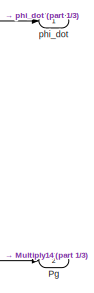
[diagram: Generator Model v1.0 - part 3/3, middle right region]
BLOCK [SubSystem] Generator Model v1.0
  Commented = on
  Ports = [2, 2]
  RequestExecContextInheritance = off
BLOCK [Lookup_n-D] Generator Model v1.0/1-D Lookup Table
  BreakpointsForDimension1 = [-5:5]
  InternalRulePriority = Speed
  NumberOfTableDimensions = 1
  Ports = [1, 1]
  RndMeth = Simplest
  Table = tanh([-5:5])
BLOCK [Lookup_n-D] Generator Model v1.0/1-D Lookup Table1
  BreakpointsForDimension1 = [-5:5]
  InternalRulePriority = Speed
  NumberOfTableDimensions = 1
  Ports = [1, 1]
  RndMeth = Simplest
  Table = tanh([-5:5])
BLOCK [Constant] Generator Model v1.0/Constant
  Value = 0
BLOCK [Constant] Generator Model v1.0/Constant1
  Value = 0
BLOCK [From] Generator Model v1.0/From
  GotoTag = phi_dot
BLOCK [From] Generator Model v1.0/From1
  GotoTag = phi_dot
BLOCK [From] Generator Model v1.0/From2
  GotoTag = phi_g_dot
BLOCK [From] Generator Model v1.0/From3
  GotoTag = phi_g_dot
BLOCK [From] Generator Model v1.0/From4
  GotoTag = phi_g_dot
BLOCK [Gain] Generator Model v1.0/Gain
  Gain = K
  OutDataTypeStr = Inherit: Inherit via internal rule
  ParamDataTypeStr = Inherit: Inherit via internal rule
  SaturateOnIntegerOverflow = off
BLOCK [Gain] Generator Model v1.0/Gain1
  Gain = R2+Re
  OutDataTypeStr = Inherit: Inherit via internal rule
  ParamDataTypeStr = Inherit: Inherit via internal rule
  SaturateOnIntegerOverflow = off
BLOCK [Gain] Generator Model v1.0/Gain10
  Gain = (C_Tg / N^(2)) + Cg
  OutDataTypeStr = Inherit: Inherit via internal rule
  ParamDataTypeStr = Inherit: Inherit via internal rule
  SaturateOnIntegerOverflow = off
BLOCK [Gain] Generator Model v1.0/Gain11
  Gain = 1/L
  OutDataTypeStr = Inherit: Inherit via internal rule
  ParamDataTypeStr = Inherit: Inherit via internal rule
  SaturateOnIntegerOverflow = off
BLOCK [Gain] Generator Model v1.0/Gain12
  Gain = 1/(J_g)
  OutDataTypeStr = Inherit: Inherit via internal rule
  ParamDataTypeStr = Inherit: Inherit via internal rule
  SaturateOnIntegerOverflow = off
BLOCK [Gain] Generator Model v1.0/Gain13
  Gain = c_wr
  OutDataTypeStr = Inherit: Inherit via internal rule
  ParamDataTypeStr = Inherit: Inherit via internal rule
  SaturateOnIntegerOverflow = off
BLOCK [Gain] Generator Model v1.0/Gain14
  Gain = c_wg
  OutDataTypeStr = Inherit: Inherit via internal rule
  ParamDataTypeStr = Inherit: Inherit via internal rule
  SaturateOnIntegerOverflow = off
BLOCK [Gain] Generator Model v1.0/Gain2
  Gain = K
  OutDataTypeStr = Inherit: Inherit via internal rule
  ParamDataTypeStr = Inherit: Inherit via internal rule
  SaturateOnIntegerOverflow = off
BLOCK [Gain] Generator Model v1.0/Gain3
  Gain = eta_g
  OutDataTypeStr = Inherit: Inherit via internal rule
  ParamDataTypeStr = Inherit: Inherit via internal rule
  SaturateOnIntegerOverflow = off
BLOCK [Gain] Generator Model v1.0/Gain4
  Gain = C_Tg / N
  OutDataTypeStr = Inherit: Inherit via internal rule
  ParamDataTypeStr = Inherit: Inherit via internal rule
  SaturateOnIntegerOverflow = off
BLOCK [Gain] Generator Model v1.0/Gain5
  Gain = Kr
  OutDataTypeStr = Inherit: Inherit via internal rule
  ParamDataTypeStr = Inherit: Inherit via internal rule
  SaturateOnIntegerOverflow = off
BLOCK [Gain] Generator Model v1.0/Gain6
  Gain = C_Tr + Cr
  OutDataTypeStr = Inherit: Inherit via internal rule
  ParamDataTypeStr = Inherit: Inherit via internal rule
  SaturateOnIntegerOverflow = off
BLOCK [Gain] Generator Model v1.0/Gain7
  Gain = 1/N
  OutDataTypeStr = Inherit: Inherit via internal rule
  ParamDataTypeStr = Inherit: Inherit via internal rule
  SaturateOnIntegerOverflow = off
BLOCK [Gain] Generator Model v1.0/Gain8
  Gain = Kg / N
  OutDataTypeStr = Inherit: Inherit via internal rule
  ParamDataTypeStr = Inherit: Inherit via internal rule
  SaturateOnIntegerOverflow = off
BLOCK [Gain] Generator Model v1.0/Gain9
  Gain = C_Tr / N
  OutDataTypeStr = Inherit: Inherit via internal rule
  ParamDataTypeStr = Inherit: Inherit via internal rule
  SaturateOnIntegerOverflow = off
BLOCK [Goto] Generator Model v1.0/Goto
  GotoTag = phi_dot
BLOCK [Goto] Generator Model v1.0/Goto1
  GotoTag = phi_g_dot
BLOCK [Integrator] Generator Model v1.0/Integrator
  InitialCondition = .1
  Ports = [1, 1]
BLOCK [Integrator] Generator Model v1.0/Integrator1
  Ports = [1, 1]
BLOCK [Integrator] Generator Model v1.0/Integrator2
  Ports = [1, 1]
BLOCK [Integrator] Generator Model v1.0/Integrator3
  InitialCondition = 6
  Ports = [1, 1]
BLOCK [Inport] Generator Model v1.0/J_r
  IconDisplay = Port number
BLOCK [ManualSwitch] Generator Model v1.0/Manual Switch
  CurrentSetting = 0
BLOCK [ManualSwitch] Generator Model v1.0/Manual Switch1
  CurrentSetting = 0
BLOCK [Product] Generator Model v1.0/Multiply14
  InputSameDT = off
  OutDataTypeStr = Inherit: Inherit via internal rule
  Ports = [2, 1]
  RndMeth = Floor
  SaturateOnIntegerOverflow = off
BLOCK [Product] Generator Model v1.0/Multiply4
  InputSameDT = off
  Inputs = /*
  OutDataTypeStr = Inherit: Inherit via internal rule
  Ports = [2, 1]
  RndMeth = Floor
  SaturateOnIntegerOverflow = off
BLOCK [Outport] Generator Model v1.0/Pg 
  IconDisplay = Port number
  Port = 2
BLOCK [Scope] Generator Model v1.0/Scope
  Floating = off
  NumInputPorts = 1
  Ports = [1]
  ScopeSpecificationString = Simulink.scopes.TimeScopeBlockCfg('CurrentConfiguration', extmgr.ConfigurationSet(extmgr.Configuration('Core','General UI',true),extmgr.Configuration('Core','Source UI',true),extmgr.Configuration('Sources','WiredSimulink',true,'DataLoggingVariableName','ScopeData2'),extmgr.Configuration('Visuals','Time Domain',true,'SerializedDisplays',{struct('MinYLimReal','-0.00331','MaxYLimReal','0.02978','YLab...<+1388ch>
BLOCK [Scope] Generator Model v1.0/Scope1
  Floating = off
  NumInputPorts = 1
  Ports = [1]
  ScopeSpecificationString = Simulink.scopes.TimeScopeBlockCfg('CurrentConfiguration', extmgr.ConfigurationSet(extmgr.Configuration('Core','General UI',true),extmgr.Configuration('Core','Source UI',true),extmgr.Configuration('Sources','WiredSimulink',true,'DataLoggingVariableName','ScopeData3'),extmgr.Configuration('Visuals','Time Domain',true,'SerializedDisplays',{struct('MinYLimReal','-0.73288','MaxYLimReal','6.7481','YLabe...<+1355ch>
BLOCK [Sum] Generator Model v1.0/Sum
  IconShape = round
  InputSameDT = off
  Inputs = |++
  OutDataTypeStr = Inherit: Inherit via internal rule
  Ports = [2, 1]
  SaturateOnIntegerOverflow = off
BLOCK [Sum] Generator Model v1.0/Sum1
  IconShape = round
  InputSameDT = off
  Inputs = |+-
  OutDataTypeStr = Inherit: Inherit via internal rule
  Ports = [2, 1]
  SaturateOnIntegerOverflow = off
BLOCK [Sum] Generator Model v1.0/Sum2
  IconShape = round
  InputSameDT = off
  Inputs = |+-
  OutDataTypeStr = Inherit: Inherit via internal rule
  Ports = [2, 1]
  SaturateOnIntegerOverflow = off
BLOCK [Sum] Generator Model v1.0/Sum3
  IconShape = round
  InputSameDT = off
  Inputs = |+-
  OutDataTypeStr = Inherit: Inherit via internal rule
  Ports = [2, 1]
  SaturateOnIntegerOverflow = off
BLOCK [Sum] Generator Model v1.0/Sum4
  IconShape = round
  InputSameDT = off
  Inputs = |+-
  OutDataTypeStr = Inherit: Inherit via internal rule
  Ports = [2, 1]
  SaturateOnIntegerOverflow = off
BLOCK [Sum] Generator Model v1.0/Sum5
  IconShape = round
  InputSameDT = off
  Inputs = |+-
  OutDataTypeStr = Inherit: Inherit via internal rule
  Ports = [2, 1]
  SaturateOnIntegerOverflow = off
BLOCK [Sum] Generator Model v1.0/Sum6
  IconShape = round
  InputSameDT = off
  Inputs = |++
  OutDataTypeStr = Inherit: Inherit via internal rule
  Ports = [2, 1]
  SaturateOnIntegerOverflow = off
BLOCK [Sum] Generator Model v1.0/Sum7
  IconShape = round
  InputSameDT = off
  Inputs = |+-
  OutDataTypeStr = Inherit: Inherit via internal rule
  Ports = [2, 1]
  SaturateOnIntegerOverflow = off
BLOCK [Sum] Generator Model v1.0/Sum8
  IconShape = round
  InputSameDT = off
  Inputs = |+-
  OutDataTypeStr = Inherit: Inherit via internal rule
  Ports = [2, 1]
  SaturateOnIntegerOverflow = off
BLOCK [Sum] Generator Model v1.0/Sum9
  IconShape = round
  InputSameDT = off
  Inputs = |+-
  OutDataTypeStr = Inherit: Inherit via internal rule
  Ports = [2, 1]
  SaturateOnIntegerOverflow = off
BLOCK [Inport] Generator Model v1.0/T_r
  IconDisplay = Port number
  Port = 2
BLOCK [Terminator] Generator Model v1.0/Terminator
BLOCK [Terminator] Generator Model v1.0/Terminator1
BLOCK [Outport] Generator Model v1.0/phi_dot
  IconDisplay = Port number
BLOCK [SubSystem] Generator Model v2.0
  Commented = on
  Ports = [2, 2]
  RequestExecContextInheritance = off
BLOCK [Constant] Generator Model v2.0/Constant
  Value = eta_g
BLOCK [From] Generator Model v2.0/From3
  GotoTag = theta_g2_dot
BLOCK [Gain] Generator Model v2.0/Gain
  Gain = K
  OutDataTypeStr = Inherit: Inherit via internal rule
  ParamDataTypeStr = Inherit: Inherit via internal rule
  SaturateOnIntegerOverflow = off
BLOCK [Gain] Generator Model v2.0/Gain1
  Gain = R2+Re
  OutDataTypeStr = Inherit: Inherit via internal rule
  ParamDataTypeStr = Inherit: Inherit via internal rule
  SaturateOnIntegerOverflow = off
BLOCK [Gain] Generator Model v2.0/Gain10
  Gain = N
  OutDataTypeStr = Inherit: Inherit via internal rule
  ParamDataTypeStr = Inherit: Inherit via internal rule
  SaturateOnIntegerOverflow = off
BLOCK [Gain] Generator Model v2.0/Gain11
  Gain = 1/L
  OutDataTypeStr = Inherit: Inherit via internal rule
  ParamDataTypeStr = Inherit: Inherit via internal rule
  SaturateOnIntegerOverflow = off
BLOCK [Gain] Generator Model v2.0/Gain12
  Gain = Bg
  OutDataTypeStr = Inherit: Inherit via internal rule
  ParamDataTypeStr = Inherit: Inherit via internal rule
  SaturateOnIntegerOverflow = off
BLOCK [Gain] Generator Model v2.0/Gain13
  Gain = 1/(tau_e)
  OutDataTypeStr = Inherit: Inherit via internal rule
  ParamDataTypeStr = Inherit: Inherit via internal rule
  SaturateOnIntegerOverflow = off
BLOCK [Gain] Generator Model v2.0/Gain2
  Gain = K
  OutDataTypeStr = Inherit: Inherit via internal rule
  ParamDataTypeStr = Inherit: Inherit via internal rule
  SaturateOnIntegerOverflow = off
BLOCK [Gain] Generator Model v2.0/Gain3
  Gain = c_wr
  OutDataTypeStr = Inherit: Inherit via internal rule
  ParamDataTypeStr = Inherit: Inherit via internal rule
  SaturateOnIntegerOverflow = off
BLOCK [Gain] Generator Model v2.0/Gain4
  Gain = c_wr
  OutDataTypeStr = Inherit: Inherit via internal rule
  ParamDataTypeStr = Inherit: Inherit via internal rule
  SaturateOnIntegerOverflow = off
BLOCK [Gain] Generator Model v2.0/Gain5
  Gain = Kr
  OutDataTypeStr = Inherit: Inherit via internal rule
  ParamDataTypeStr = Inherit: Inherit via internal rule
  SaturateOnIntegerOverflow = off
BLOCK [Gain] Generator Model v2.0/Gain6
  Gain = 1/J_g
  OutDataTypeStr = Inherit: Inherit via internal rule
  ParamDataTypeStr = Inherit: Inherit via internal rule
  SaturateOnIntegerOverflow = off
BLOCK [Gain] Generator Model v2.0/Gain7
  Gain = 1/N
  OutDataTypeStr = Inherit: Inherit via internal rule
  ParamDataTypeStr = Inherit: Inherit via internal rule
  SaturateOnIntegerOverflow = off
BLOCK [Gain] Generator Model v2.0/Gain8
  Gain = 1/Kg
  OutDataTypeStr = Inherit: Inherit via internal rule
  ParamDataTypeStr = Inherit: Inherit via internal rule
  SaturateOnIntegerOverflow = off
BLOCK [Gain] Generator Model v2.0/Gain9
  Gain = 1/N
  OutDataTypeStr = Inherit: Inherit via internal rule
  ParamDataTypeStr = Inherit: Inherit via internal rule
  SaturateOnIntegerOverflow = off
BLOCK [Goto] Generator Model v2.0/Goto
  GotoTag = theta_g2_dot
BLOCK [Integrator] Generator Model v2.0/Integrator
  Ports = [1, 1]
BLOCK [Integrator] Generator Model v2.0/Integrator1
  Ports = [1, 1]
BLOCK [Integrator] Generator Model v2.0/Integrator2
  Ports = [1, 1]
BLOCK [Integrator] Generator Model v2.0/Integrator3
  Ports = [1, 1]
BLOCK [Integrator] Generator Model v2.0/Integrator4
  Ports = [1, 1]
BLOCK [Integrator] Generator Model v2.0/Integrator5
  Ports = [1, 1]
BLOCK [Inport] Generator Model v2.0/J_r
  IconDisplay = Port number
BLOCK [ManualSwitch] Generator Model v2.0/Manual Switch
BLOCK [Product] Generator Model v2.0/Multiply
  InputSameDT = off
  Inputs = 3
  OutDataTypeStr = Inherit: Inherit via internal rule
  Ports = [3, 1]
  RndMeth = Floor
  SaturateOnIntegerOverflow = off
BLOCK [Product] Generator Model v2.0/Multiply4
  InputSameDT = off
  Inputs = /*
  OutDataTypeStr = Inherit: Inherit via internal rule
  Ports = [2, 1]
  RndMeth = Floor
  SaturateOnIntegerOverflow = off
BLOCK [Outport] Generator Model v2.0/Pe
  IconDisplay = Port number
  Port = 2
BLOCK [Scope] Generator Model v2.0/Scope
  Floating = off
  NumInputPorts = 1
  Ports = [1]
  ScopeSpecificationString = Simulink.scopes.TimeScopeBlockCfg('CurrentConfiguration', extmgr.ConfigurationSet(extmgr.Configuration('Core','General UI',true),extmgr.Configuration('Core','Source UI',true),extmgr.Configuration('Sources','WiredSimulink',true,'DataLoggingVariableName','ScopeData4'),extmgr.Configuration('Visuals','Time Domain',true,'SerializedDisplays',{struct('MinYLimReal','-0.7214','MaxYLimReal','6.49262','YLabe...<+1398ch>
BLOCK [Scope] Generator Model v2.0/Scope1
  Floating = off
  NumInputPorts = 1
  Ports = [1]
  ScopeSpecificationString = Simulink.scopes.TimeScopeBlockCfg('CurrentConfiguration', extmgr.ConfigurationSet(extmgr.Configuration('Core','General UI',true),extmgr.Configuration('Core','Source UI',true),extmgr.Configuration('Sources','WiredSimulink',true,'DataLoggingVariableName','ScopeData5'),extmgr.Configuration('Visuals','Time Domain',true,'SerializedDisplays',{struct('MinYLimReal','-44.06592','MaxYLimReal','396.59332','Y...<+1410ch>
BLOCK [Scope] Generator Model v2.0/Scope2
  Floating = off
  NumInputPorts = 1
  Ports = [1]
  ScopeSpecificationString = Simulink.scopes.TimeScopeBlockCfg('CurrentConfiguration', extmgr.ConfigurationSet(extmgr.Configuration('Core','General UI',true),extmgr.Configuration('Core','Source UI',true),extmgr.Configuration('Sources','WiredSimulink',true,'DataLoggingVariableName','ScopeData4'),extmgr.Configuration('Visuals','Time Domain',true,'SerializedDisplays',{struct('MinYLimReal','-0.00295','MaxYLimReal','0.02654','YLab...<+1391ch>
BLOCK [Scope] Generator Model v2.0/Scope3
  Floating = off
  NumInputPorts = 1
  Ports = [1]
  ScopeSpecificationString = Simulink.scopes.TimeScopeBlockCfg('CurrentConfiguration', extmgr.ConfigurationSet(extmgr.Configuration('Core','General UI',true),extmgr.Configuration('Core','Source UI',true),extmgr.Configuration('Sources','WiredSimulink',true,'DataLoggingVariableName','ScopeData5'),extmgr.Configuration('Visuals','Time Domain',true,'SerializedDisplays',{struct('MinYLimReal','-2.33434','MaxYLimReal','21.00902','YLa...<+1365ch>
BLOCK [Sum] Generator Model v2.0/Sum
  IconShape = round
  InputSameDT = off
  Inputs = |+-
  OutDataTypeStr = Inherit: Inherit via internal rule
  Ports = [2, 1]
  SaturateOnIntegerOverflow = off
BLOCK [Sum] Generator Model v2.0/Sum1
  IconShape = round
  InputSameDT = off
  Inputs = |+-
  OutDataTypeStr = Inherit: Inherit via internal rule
  Ports = [2, 1]
  SaturateOnIntegerOverflow = off
BLOCK [Sum] Generator Model v2.0/Sum2
  IconShape = round
  InputSameDT = off
  Inputs = |++
  OutDataTypeStr = Inherit: Inherit via internal rule
  Ports = [2, 1]
  SaturateOnIntegerOverflow = off
BLOCK [Sum] Generator Model v2.0/Sum3
  IconShape = round
  InputSameDT = off
  Inputs = |+-
  OutDataTypeStr = Inherit: Inherit via internal rule
  Ports = [2, 1]
  SaturateOnIntegerOverflow = off
BLOCK [Sum] Generator Model v2.0/Sum4
  IconShape = round
  InputSameDT = off
  Inputs = |+-
  OutDataTypeStr = Inherit: Inherit via internal rule
  Ports = [2, 1]
  SaturateOnIntegerOverflow = off
BLOCK [Sum] Generator Model v2.0/Sum5
  IconShape = round
  InputSameDT = off
  Inputs = |+-
  OutDataTypeStr = Inherit: Inherit via internal rule
  Ports = [2, 1]
  SaturateOnIntegerOverflow = off
BLOCK [Sum] Generator Model v2.0/Sum6
  IconShape = round
  InputSameDT = off
  Inputs = |+-
  OutDataTypeStr = Inherit: Inherit via internal rule
  Ports = [2, 1]
  SaturateOnIntegerOverflow = off
BLOCK [Sum] Generator Model v2.0/Sum7
  IconShape = round
  InputSameDT = off
  Inputs = |+-
  OutDataTypeStr = Inherit: Inherit via internal rule
  Ports = [2, 1]
  SaturateOnIntegerOverflow = off
BLOCK [Inport] Generator Model v2.0/T_r
  IconDisplay = Port number
  Port = 2
BLOCK [Outport] Generator Model v2.0/phi_dot
  IconDisplay = Port number
BLOCK [ManualSwitch] Manual Switch
  CurrentSetting = 0
BLOCK [Scope] Scope
  Floating = off
  NumInputPorts = 1
  Ports = [1]
  ScopeSpecificationString = Simulink.scopes.TimeScopeBlockCfg('CurrentConfiguration', extmgr.ConfigurationSet(extmgr.Configuration('Core','General UI',true),extmgr.Configuration('Core','Source UI',true),extmgr.Configuration('Sources','WiredSimulink',true,'DataLoggingVariableName','ScopeData1'),extmgr.Configuration('Visuals','Time Domain',true,'SerializedDisplays',{struct('MinYLimReal','-9.48603','MaxYLimReal','9.47663','YLab...<+1421ch>
BLOCK [SubSystem] Subsystem
  Commented = on
  Ports = [0, 1]
  RequestExecContextInheritance = off
BLOCK [Clock] Subsystem/Clock
BLOCK [Constant] Subsystem/Constant
BLOCK [Constant] Subsystem/Constant1
  Value = 2*v_gustmax
BLOCK [Constant] Subsystem/Constant2
BLOCK [Math] Subsystem/Exp
  Ports = [1, 1]
BLOCK [Gain] Subsystem/Gain
  Gain = w_wind
  OutDataTypeStr = Inherit: Inherit via internal rule
  ParamDataTypeStr = Inherit: Inherit via internal rule
  SaturateOnIntegerOverflow = off
BLOCK [Gain] Subsystem/Gain1
  Gain = w_gust
  OutDataTypeStr = Inherit: Inherit via internal rule
  ParamDataTypeStr = Inherit: Inherit via internal rule
  SaturateOnIntegerOverflow = off
BLOCK [Gain] Subsystem/Gain2
  Gain = -4
  OutDataTypeStr = Inherit: Inherit via internal rule
  ParamDataTypeStr = Inherit: Inherit via internal rule
  SaturateOnIntegerOverflow = off
BLOCK [Gain] Subsystem/Gain3
  Gain = A_wind
  OutDataTypeStr = Inherit: Inherit via internal rule
  ParamDataTypeStr = Inherit: Inherit via internal rule
  SaturateOnIntegerOverflow = off
BLOCK [Gain] Subsystem/Gain4
  Gain = v_wind
  OutDataTypeStr = Inherit: Inherit via internal rule
  ParamDataTypeStr = Inherit: Inherit via internal rule
  SaturateOnIntegerOverflow = off
BLOCK [Product] Subsystem/Multiply
  InputSameDT = off
  Inputs = */
  OutDataTypeStr = Inherit: Inherit via internal rule
  Ports = [2, 1]
  RndMeth = Floor
  SaturateOnIntegerOverflow = off
BLOCK [Outport] Subsystem/Out1
  IconDisplay = Port number
BLOCK [Scope] Subsystem/Scope
  Floating = off
  NumInputPorts = 1
  Ports = [1]
  ScopeSpecificationString = Simulink.scopes.TimeScopeBlockCfg('CurrentConfiguration', extmgr.ConfigurationSet(extmgr.Configuration('Core','General UI',true),extmgr.Configuration('Core','Source UI',true),extmgr.Configuration('Sources','WiredSimulink',true,'DataLoggingVariableName','ScopeData1'),extmgr.Configuration('Visuals','Time Domain',true,'SerializedDisplays',{struct('MinYLimReal','-1424829090.55037','MaxYLimReal','12823...<+1437ch>
BLOCK [Trigonometry] Subsystem/Sin
  Ports = [1, 1]
BLOCK [Trigonometry] Subsystem/Sin1
  Ports = [1, 1]
BLOCK [Sum] Subsystem/Sum
  InputSameDT = off
  OutDataTypeStr = Inherit: Inherit via internal rule
  Ports = [2, 1]
  SaturateOnIntegerOverflow = off
BLOCK [Sum] Subsystem/Sum1
  IconShape = round
  InputSameDT = off
  Inputs = |++
  OutDataTypeStr = Inherit: Inherit via internal rule
  Ports = [2, 1]
  SaturateOnIntegerOverflow = off
BLOCK [Sum] Subsystem/Sum2
  IconShape = round
  InputSameDT = off
  Inputs = |+-
  OutDataTypeStr = Inherit: Inherit via internal rule
  Ports = [2, 1]
  SaturateOnIntegerOverflow = off
BLOCK [Sum] Subsystem/Sum3
  IconShape = round
  InputSameDT = off
  Inputs = |+-
  OutDataTypeStr = Inherit: Inherit via internal rule
  Ports = [2, 1]
  SaturateOnIntegerOverflow = off
BLOCK [SubSystem] Wind Environment (Baby)
  Ports = [0, 1]
  RequestExecContextInheritance = off
BLOCK [Constant] Wind Environment (Baby)/Constant
  Value = wind_vector_i
BLOCK [Outport] Wind Environment (Baby)/Wind Vector (Inertial)
  IconDisplay = Port number
LINE 3bladeHVAWT with Generator/Add:1 -> 3bladeHVAWT with Generator/take z4:1
LINE 3bladeHVAWT with Generator/Blade Aerodymanics/Blade_positions:1 -> 3bladeHVAWT with Generator/Blade Aerodymanics/Bus Selector:1
NET 3bladeHVAWT with Generator/Blade Aerodymanics/Bus Selector:1 -> 3bladeHVAWT with Generator/Blade Aerodymanics/Cross Product:1, 3bladeHVAWT with Generator/Blade Aerodymanics/Lift Align2:3
NET 3bladeHVAWT with Generator/Blade Aerodymanics/Bus Selector:2 -> 3bladeHVAWT with Generator/Blade Aerodymanics/Cross Product1:1, 3bladeHVAWT with Generator/Blade Aerodymanics/Lift Align1:3
NET 3bladeHVAWT with Generator/Blade Aerodymanics/Bus Selector:3 -> 3bladeHVAWT with Generator/Blade Aerodymanics/Cross Product2:1, 3bladeHVAWT with Generator/Blade Aerodymanics/Lift Align3:3
NET 3bladeHVAWT with Generator/Blade Aerodymanics/Constant:1 -> 3bladeHVAWT with Generator/Blade Aerodymanics/Product1:2, 3bladeHVAWT with Generator/Blade Aerodymanics/Product2:2, 3bladeHVAWT with Generator/Blade Aerodymanics/Product:2
LINE 3bladeHVAWT with Generator/Blade Aerodymanics/Cross Product1:1 -> 3bladeHVAWT with Generator/Blade Aerodymanics/Torque 2:1
LINE 3bladeHVAWT with Generator/Blade Aerodymanics/Cross Product2:1 -> 3bladeHVAWT with Generator/Blade Aerodymanics/Torque 3:1
LINE 3bladeHVAWT with Generator/Blade Aerodymanics/Cross Product:1 -> 3bladeHVAWT with Generator/Blade Aerodymanics/Torque 1:1
LINE 3bladeHVAWT with Generator/Blade Aerodymanics/Dot Product1:1 -> 3bladeHVAWT with Generator/Blade Aerodymanics/Gain1:1
LINE 3bladeHVAWT with Generator/Blade Aerodymanics/Dot Product2:1 -> 3bladeHVAWT with Generator/Blade Aerodymanics/Gain2:1
LINE 3bladeHVAWT with Generator/Blade Aerodymanics/Dot Product:1 -> 3bladeHVAWT with Generator/Blade Aerodymanics/Gain:1
LINE 3bladeHVAWT with Generator/Blade Aerodymanics/Finite Wing Correction/Cd':1 -> 3bladeHVAWT with Generator/Blade Aerodymanics/Finite Wing Correction/Cd:1
LINE 3bladeHVAWT with Generator/Blade Aerodymanics/Finite Wing Correction/Cl':1 -> 3bladeHVAWT with Generator/Blade Aerodymanics/Finite Wing Correction/Cl:1
LINE 3bladeHVAWT with Generator/Blade Aerodymanics/Finite Wing Correction/Constant1:1 -> 3bladeHVAWT with Generator/Blade Aerodymanics/Finite Wing Correction/Terminator:1
LINE 3bladeHVAWT with Generator/Blade Aerodymanics/Finite Wing Correction1/Cd':1 -> 3bladeHVAWT with Generator/Blade Aerodymanics/Finite Wing Correction1/Cd:1
LINE 3bladeHVAWT with Generator/Blade Aerodymanics/Finite Wing Correction1/Cl':1 -> 3bladeHVAWT with Generator/Blade Aerodymanics/Finite Wing Correction1/Cl:1
LINE 3bladeHVAWT with Generator/Blade Aerodymanics/Finite Wing Correction1/Constant1:1 -> 3bladeHVAWT with Generator/Blade Aerodymanics/Finite Wing Correction1/Terminator:1
LINE 3bladeHVAWT with Generator/Blade Aerodymanics/Finite Wing Correction1:1 -> 3bladeHVAWT with Generator/Blade Aerodymanics/Product5:1
LINE 3bladeHVAWT with Generator/Blade Aerodymanics/Finite Wing Correction1:2 -> 3bladeHVAWT with Generator/Blade Aerodymanics/Product6:1
LINE 3bladeHVAWT with Generator/Blade Aerodymanics/Finite Wing Correction2/Cd':1 -> 3bladeHVAWT with Generator/Blade Aerodymanics/Finite Wing Correction2/Cd:1
LINE 3bladeHVAWT with Generator/Blade Aerodymanics/Finite Wing Correction2/Cl':1 -> 3bladeHVAWT with Generator/Blade Aerodymanics/Finite Wing Correction2/Cl:1
LINE 3bladeHVAWT with Generator/Blade Aerodymanics/Finite Wing Correction2/Constant1:1 -> 3bladeHVAWT with Generator/Blade Aerodymanics/Finite Wing Correction2/Terminator:1
LINE 3bladeHVAWT with Generator/Blade Aerodymanics/Finite Wing Correction2:1 -> 3bladeHVAWT with Generator/Blade Aerodymanics/Product7:1
LINE 3bladeHVAWT with Generator/Blade Aerodymanics/Finite Wing Correction2:2 -> 3bladeHVAWT with Generator/Blade Aerodymanics/Product8:1
LINE 3bladeHVAWT with Generator/Blade Aerodymanics/Finite Wing Correction:1 -> 3bladeHVAWT with Generator/Blade Aerodymanics/Product3:1
LINE 3bladeHVAWT with Generator/Blade Aerodymanics/Finite Wing Correction:2 -> 3bladeHVAWT with Generator/Blade Aerodymanics/Product4:1
LINE 3bladeHVAWT with Generator/Blade Aerodymanics/Gain1:1 -> 3bladeHVAWT with Generator/Blade Aerodymanics/Product1:1
LINE 3bladeHVAWT with Generator/Blade Aerodymanics/Gain2:1 -> 3bladeHVAWT with Generator/Blade Aerodymanics/Product:1
LINE 3bladeHVAWT with Generator/Blade Aerodymanics/Gain:1 -> 3bladeHVAWT with Generator/Blade Aerodymanics/Product2:1
LINE 3bladeHVAWT with Generator/Blade Aerodymanics/Lift Align1/AoA:1 -> 3bladeHVAWT with Generator/Blade Aerodymanics/Lift Align1/Gain:1
LINE 3bladeHVAWT with Generator/Blade Aerodymanics/Lift Align1/Blade_Pos:1 -> 3bladeHVAWT with Generator/Blade Aerodymanics/Lift Align1/Normalization:1
LINE 3bladeHVAWT with Generator/Blade Aerodymanics/Lift Align1/Constant:1 -> 3bladeHVAWT with Generator/Blade Aerodymanics/Lift Align1/Mux1:3
LINE 3bladeHVAWT with Generator/Blade Aerodymanics/Lift Align1/Demux1:1 -> 3bladeHVAWT with Generator/Blade Aerodymanics/Lift Align1/Mux1:1
LINE 3bladeHVAWT with Generator/Blade Aerodymanics/Lift Align1/Demux1:2 -> 3bladeHVAWT with Generator/Blade Aerodymanics/Lift Align1/Mux1:2
LINE 3bladeHVAWT with Generator/Blade Aerodymanics/Lift Align1/Demux:1 -> 3bladeHVAWT with Generator/Blade Aerodymanics/Lift Align1/Mux:1
LINE 3bladeHVAWT with Generator/Blade Aerodymanics/Lift Align1/Demux:2 -> 3bladeHVAWT with Generator/Blade Aerodymanics/Lift Align1/Mux:2
LINE 3bladeHVAWT with Generator/Blade Aerodymanics/Lift Align1/Demux:3 -> 3bladeHVAWT with Generator/Blade Aerodymanics/Lift Align1/Terminator:1
LINE 3bladeHVAWT with Generator/Blade Aerodymanics/Lift Align1/Gain:1 -> 3bladeHVAWT with Generator/Blade Aerodymanics/Lift Align1/MATLAB Function:1
LINE 3bladeHVAWT with Generator/Blade Aerodymanics/Lift Align1/L_mag:1 -> 3bladeHVAWT with Generator/Blade Aerodymanics/Lift Align1/Product:1
LINE 3bladeHVAWT with Generator/Blade Aerodymanics/Lift Align1/MATLAB Function:1 -> 3bladeHVAWT with Generator/Blade Aerodymanics/Lift Align1/Product1:1
LINE 3bladeHVAWT with Generator/Blade Aerodymanics/Lift Align1/Mux1:1 -> 3bladeHVAWT with Generator/Blade Aerodymanics/Lift Align1/Lift_Vec:1
LINE 3bladeHVAWT with Generator/Blade Aerodymanics/Lift Align1/Mux:1 -> 3bladeHVAWT with Generator/Blade Aerodymanics/Lift Align1/Product1:2
LINE 3bladeHVAWT with Generator/Blade Aerodymanics/Lift Align1/Normalization:1 -> 3bladeHVAWT with Generator/Blade Aerodymanics/Lift Align1/Product:2
LINE 3bladeHVAWT with Generator/Blade Aerodymanics/Lift Align1/Product1:1 -> 3bladeHVAWT with Generator/Blade Aerodymanics/Lift Align1/Demux1:1
LINE 3bladeHVAWT with Generator/Blade Aerodymanics/Lift Align1/Product:1 -> 3bladeHVAWT with Generator/Blade Aerodymanics/Lift Align1/Demux:1
LINE 3bladeHVAWT with Generator/Blade Aerodymanics/Lift Align1:1 -> 3bladeHVAWT with Generator/Blade Aerodymanics/Sum2:1
LINE 3bladeHVAWT with Generator/Blade Aerodymanics/Lift Align2/AoA:1 -> 3bladeHVAWT with Generator/Blade Aerodymanics/Lift Align2/Gain:1
LINE 3bladeHVAWT with Generator/Blade Aerodymanics/Lift Align2/Blade_Pos:1 -> 3bladeHVAWT with Generator/Blade Aerodymanics/Lift Align2/Normalization:1
LINE 3bladeHVAWT with Generator/Blade Aerodymanics/Lift Align2/Constant:1 -> 3bladeHVAWT with Generator/Blade Aerodymanics/Lift Align2/Mux1:3
LINE 3bladeHVAWT with Generator/Blade Aerodymanics/Lift Align2/Demux1:1 -> 3bladeHVAWT with Generator/Blade Aerodymanics/Lift Align2/Mux1:1
LINE 3bladeHVAWT with Generator/Blade Aerodymanics/Lift Align2/Demux1:2 -> 3bladeHVAWT with Generator/Blade Aerodymanics/Lift Align2/Mux1:2
LINE 3bladeHVAWT with Generator/Blade Aerodymanics/Lift Align2/Demux:1 -> 3bladeHVAWT with Generator/Blade Aerodymanics/Lift Align2/Mux:1
LINE 3bladeHVAWT with Generator/Blade Aerodymanics/Lift Align2/Demux:2 -> 3bladeHVAWT with Generator/Blade Aerodymanics/Lift Align2/Mux:2
LINE 3bladeHVAWT with Generator/Blade Aerodymanics/Lift Align2/Demux:3 -> 3bladeHVAWT with Generator/Blade Aerodymanics/Lift Align2/Terminator:1
LINE 3bladeHVAWT with Generator/Blade Aerodymanics/Lift Align2/Gain:1 -> 3bladeHVAWT with Generator/Blade Aerodymanics/Lift Align2/MATLAB Function:1
LINE 3bladeHVAWT with Generator/Blade Aerodymanics/Lift Align2/L_mag:1 -> 3bladeHVAWT with Generator/Blade Aerodymanics/Lift Align2/Product:1
LINE 3bladeHVAWT with Generator/Blade Aerodymanics/Lift Align2/MATLAB Function:1 -> 3bladeHVAWT with Generator/Blade Aerodymanics/Lift Align2/Product1:1
LINE 3bladeHVAWT with Generator/Blade Aerodymanics/Lift Align2/Mux1:1 -> 3bladeHVAWT with Generator/Blade Aerodymanics/Lift Align2/Lift_Vec:1
LINE 3bladeHVAWT with Generator/Blade Aerodymanics/Lift Align2/Mux:1 -> 3bladeHVAWT with Generator/Blade Aerodymanics/Lift Align2/Product1:2
LINE 3bladeHVAWT with Generator/Blade Aerodymanics/Lift Align2/Normalization:1 -> 3bladeHVAWT with Generator/Blade Aerodymanics/Lift Align2/Product:2
LINE 3bladeHVAWT with Generator/Blade Aerodymanics/Lift Align2/Product1:1 -> 3bladeHVAWT with Generator/Blade Aerodymanics/Lift Align2/Demux1:1
LINE 3bladeHVAWT with Generator/Blade Aerodymanics/Lift Align2/Product:1 -> 3bladeHVAWT with Generator/Blade Aerodymanics/Lift Align2/Demux:1
LINE 3bladeHVAWT with Generator/Blade Aerodymanics/Lift Align2:1 -> 3bladeHVAWT with Generator/Blade Aerodymanics/Sum:1
LINE 3bladeHVAWT with Generator/Blade Aerodymanics/Lift Align3/AoA:1 -> 3bladeHVAWT with Generator/Blade Aerodymanics/Lift Align3/Gain:1
LINE 3bladeHVAWT with Generator/Blade Aerodymanics/Lift Align3/Blade_Pos:1 -> 3bladeHVAWT with Generator/Blade Aerodymanics/Lift Align3/Normalization:1
LINE 3bladeHVAWT with Generator/Blade Aerodymanics/Lift Align3/Constant:1 -> 3bladeHVAWT with Generator/Blade Aerodymanics/Lift Align3/Mux1:3
LINE 3bladeHVAWT with Generator/Blade Aerodymanics/Lift Align3/Demux1:1 -> 3bladeHVAWT with Generator/Blade Aerodymanics/Lift Align3/Mux1:1
LINE 3bladeHVAWT with Generator/Blade Aerodymanics/Lift Align3/Demux1:2 -> 3bladeHVAWT with Generator/Blade Aerodymanics/Lift Align3/Mux1:2
LINE 3bladeHVAWT with Generator/Blade Aerodymanics/Lift Align3/Demux:1 -> 3bladeHVAWT with Generator/Blade Aerodymanics/Lift Align3/Mux:1
LINE 3bladeHVAWT with Generator/Blade Aerodymanics/Lift Align3/Demux:2 -> 3bladeHVAWT with Generator/Blade Aerodymanics/Lift Align3/Mux:2
LINE 3bladeHVAWT with Generator/Blade Aerodymanics/Lift Align3/Demux:3 -> 3bladeHVAWT with Generator/Blade Aerodymanics/Lift Align3/Terminator:1
LINE 3bladeHVAWT with Generator/Blade Aerodymanics/Lift Align3/Gain:1 -> 3bladeHVAWT with Generator/Blade Aerodymanics/Lift Align3/MATLAB Function:1
LINE 3bladeHVAWT with Generator/Blade Aerodymanics/Lift Align3/L_mag:1 -> 3bladeHVAWT with Generator/Blade Aerodymanics/Lift Align3/Product:1
LINE 3bladeHVAWT with Generator/Blade Aerodymanics/Lift Align3/MATLAB Function:1 -> 3bladeHVAWT with Generator/Blade Aerodymanics/Lift Align3/Product1:1
LINE 3bladeHVAWT with Generator/Blade Aerodymanics/Lift Align3/Mux1:1 -> 3bladeHVAWT with Generator/Blade Aerodymanics/Lift Align3/Lift_Vec:1
LINE 3bladeHVAWT with Generator/Blade Aerodymanics/Lift Align3/Mux:1 -> 3bladeHVAWT with Generator/Blade Aerodymanics/Lift Align3/Product1:2
LINE 3bladeHVAWT with Generator/Blade Aerodymanics/Lift Align3/Normalization:1 -> 3bladeHVAWT with Generator/Blade Aerodymanics/Lift Align3/Product:2
LINE 3bladeHVAWT with Generator/Blade Aerodymanics/Lift Align3/Product1:1 -> 3bladeHVAWT with Generator/Blade Aerodymanics/Lift Align3/Demux1:1
LINE 3bladeHVAWT with Generator/Blade Aerodymanics/Lift Align3/Product:1 -> 3bladeHVAWT with Generator/Blade Aerodymanics/Lift Align3/Demux:1
LINE 3bladeHVAWT with Generator/Blade Aerodymanics/Lift Align3:1 -> 3bladeHVAWT with Generator/Blade Aerodymanics/Sum1:1
LINE 3bladeHVAWT with Generator/Blade Aerodymanics/Normalization1:1 -> 3bladeHVAWT with Generator/Blade Aerodymanics/Product10:2
LINE 3bladeHVAWT with Generator/Blade Aerodymanics/Normalization2:1 -> 3bladeHVAWT with Generator/Blade Aerodymanics/Product11:2
LINE 3bladeHVAWT with Generator/Blade Aerodymanics/Normalization:1 -> 3bladeHVAWT with Generator/Blade Aerodymanics/Product9:2
LINE 3bladeHVAWT with Generator/Blade Aerodymanics/Pre//Post Stall Foil Model NACA 0012 (2)/A0:1 -> 3bladeHVAWT with Generator/Blade Aerodymanics/Pre//Post Stall Foil Model NACA 0012 (2)/Sum:2
NET 3bladeHVAWT with Generator/Blade Aerodymanics/Pre//Post Stall Foil Model NACA 0012 (2)/CD1 (pre-stall) 1/A0:1 -> 3bladeHVAWT with Generator/Blade Aerodymanics/Pre//Post Stall Foil Model NACA 0012 (2)/CD1 (pre-stall) 1/Sum2:1, 3bladeHVAWT with Generator/Blade Aerodymanics/Pre//Post Stall Foil Model NACA 0012 (2)/CD1 (pre-stall) 1/Sum3:2
LINE 3bladeHVAWT with Generator/Blade Aerodymanics/Pre//Post Stall Foil Model NACA 0012 (2)/CD1 (pre-stall) 1/ACD1:1 -> 3bladeHVAWT with Generator/Blade Aerodymanics/Pre//Post Stall Foil Model NACA 0012 (2)/CD1 (pre-stall) 1/Sum3:1
NET 3bladeHVAWT with Generator/Blade Aerodymanics/Pre//Post Stall Foil Model NACA 0012 (2)/CD1 (pre-stall) 1/CD0:1 -> 3bladeHVAWT with Generator/Blade Aerodymanics/Pre//Post Stall Foil Model NACA 0012 (2)/CD1 (pre-stall) 1/Sum1:1, 3bladeHVAWT with Generator/Blade Aerodymanics/Pre//Post Stall Foil Model NACA 0012 (2)/CD1 (pre-stall) 1/Sum:1
LINE 3bladeHVAWT with Generator/Blade Aerodymanics/Pre//Post Stall Foil Model NACA 0012 (2)/CD1 (pre-stall) 1/CD1_max:1 -> 3bladeHVAWT with Generator/Blade Aerodymanics/Pre//Post Stall Foil Model NACA 0012 (2)/CD1 (pre-stall) 1/Sum1:2
LINE 3bladeHVAWT with Generator/Blade Aerodymanics/Pre//Post Stall Foil Model NACA 0012 (2)/CD1 (pre-stall) 1/Constant1:1 -> 3bladeHVAWT with Generator/Blade Aerodymanics/Pre//Post Stall Foil Model NACA 0012 (2)/CD1 (pre-stall) 1/MATLAB Function:2
LINE 3bladeHVAWT with Generator/Blade Aerodymanics/Pre//Post Stall Foil Model NACA 0012 (2)/CD1 (pre-stall) 1/Divide:1 -> 3bladeHVAWT with Generator/Blade Aerodymanics/Pre//Post Stall Foil Model NACA 0012 (2)/CD1 (pre-stall) 1/Math Function:1
NET 3bladeHVAWT with Generator/Blade Aerodymanics/Pre//Post Stall Foil Model NACA 0012 (2)/CD1 (pre-stall) 1/MATLAB Function1:1 -> 3bladeHVAWT with Generator/Blade Aerodymanics/Pre//Post Stall Foil Model NACA 0012 (2)/CD1 (pre-stall) 1/Scope2:1, 3bladeHVAWT with Generator/Blade Aerodymanics/Pre//Post Stall Foil Model NACA 0012 (2)/CD1 (pre-stall) 1/Sum2:2
NET 3bladeHVAWT with Generator/Blade Aerodymanics/Pre//Post Stall Foil Model NACA 0012 (2)/CD1 (pre-stall) 1/MATLAB Function:1 -> 3bladeHVAWT with Generator/Blade Aerodymanics/Pre//Post Stall Foil Model NACA 0012 (2)/CD1 (pre-stall) 1/Product1:2, 3bladeHVAWT with Generator/Blade Aerodymanics/Pre//Post Stall Foil Model NACA 0012 (2)/CD1 (pre-stall) 1/Scope:1
LINE 3bladeHVAWT with Generator/Blade Aerodymanics/Pre//Post Stall Foil Model NACA 0012 (2)/CD1 (pre-stall) 1/Math Function:1 -> 3bladeHVAWT with Generator/Blade Aerodymanics/Pre//Post Stall Foil Model NACA 0012 (2)/CD1 (pre-stall) 1/Product:2
LINE 3bladeHVAWT with Generator/Blade Aerodymanics/Pre//Post Stall Foil Model NACA 0012 (2)/CD1 (pre-stall) 1/Product1:1 -> 3bladeHVAWT with Generator/Blade Aerodymanics/Pre//Post Stall Foil Model NACA 0012 (2)/CD1 (pre-stall) 1/Cd:1
LINE 3bladeHVAWT with Generator/Blade Aerodymanics/Pre//Post Stall Foil Model NACA 0012 (2)/CD1 (pre-stall) 1/Product:1 -> 3bladeHVAWT with Generator/Blade Aerodymanics/Pre//Post Stall Foil Model NACA 0012 (2)/CD1 (pre-stall) 1/Sum:2
LINE 3bladeHVAWT with Generator/Blade Aerodymanics/Pre//Post Stall Foil Model NACA 0012 (2)/CD1 (pre-stall) 1/Sum1:1 -> 3bladeHVAWT with Generator/Blade Aerodymanics/Pre//Post Stall Foil Model NACA 0012 (2)/CD1 (pre-stall) 1/Product:1
LINE 3bladeHVAWT with Generator/Blade Aerodymanics/Pre//Post Stall Foil Model NACA 0012 (2)/CD1 (pre-stall) 1/Sum2:1 -> 3bladeHVAWT with Generator/Blade Aerodymanics/Pre//Post Stall Foil Model NACA 0012 (2)/CD1 (pre-stall) 1/Divide:1
LINE 3bladeHVAWT with Generator/Blade Aerodymanics/Pre//Post Stall Foil Model NACA 0012 (2)/CD1 (pre-stall) 1/Sum3:1 -> 3bladeHVAWT with Generator/Blade Aerodymanics/Pre//Post Stall Foil Model NACA 0012 (2)/CD1 (pre-stall) 1/Divide:2
LINE 3bladeHVAWT with Generator/Blade Aerodymanics/Pre//Post Stall Foil Model NACA 0012 (2)/CD1 (pre-stall) 1/Sum:1 -> 3bladeHVAWT with Generator/Blade Aerodymanics/Pre//Post Stall Foil Model NACA 0012 (2)/CD1 (pre-stall) 1/Product1:1
NET 3bladeHVAWT with Generator/Blade Aerodymanics/Pre//Post Stall Foil Model NACA 0012 (2)/CD1 (pre-stall) 1/alpha:1 -> 3bladeHVAWT with Generator/Blade Aerodymanics/Pre//Post Stall Foil Model NACA 0012 (2)/CD1 (pre-stall) 1/MATLAB Function1:1, 3bladeHVAWT with Generator/Blade Aerodymanics/Pre//Post Stall Foil Model NACA 0012 (2)/CD1 (pre-stall) 1/MATLAB Function:1, 3bladeHVAWT with Generator/Blade Aerodymanics/Pre//Post Stall Foil Model NACA 0012 (2)/CD1 (pre-stall) 1/Scope1:1
LINE 3bladeHVAWT with Generator/Blade Aerodymanics/Pre//Post Stall Foil Model NACA 0012 (2)/CD1 (pre-stall) 1:1 -> 3bladeHVAWT with Generator/Blade Aerodymanics/Pre//Post Stall Foil Model NACA 0012 (2)/MinMax2:1
LINE 3bladeHVAWT with Generator/Blade Aerodymanics/Pre//Post Stall Foil Model NACA 0012 (2)/CD2 (post-stall) 1/Abs:1 -> 3bladeHVAWT with Generator/Blade Aerodymanics/Pre//Post Stall Foil Model NACA 0012 (2)/CD2 (post-stall) 1/Cd:1
LINE 3bladeHVAWT with Generator/Blade Aerodymanics/Pre//Post Stall Foil Model NACA 0012 (2)/CD2 (post-stall) 1/CD2_max:1 -> 3bladeHVAWT with Generator/Blade Aerodymanics/Pre//Post Stall Foil Model NACA 0012 (2)/CD2 (post-stall) 1/Sum1:1
NET 3bladeHVAWT with Generator/Blade Aerodymanics/Pre//Post Stall Foil Model NACA 0012 (2)/CD2 (post-stall) 1/Constant1:1 -> 3bladeHVAWT with Generator/Blade Aerodymanics/Pre//Post Stall Foil Model NACA 0012 (2)/CD2 (post-stall) 1/Sum2:2, 3bladeHVAWT with Generator/Blade Aerodymanics/Pre//Post Stall Foil Model NACA 0012 (2)/CD2 (post-stall) 1/Sum3:2
NET 3bladeHVAWT with Generator/Blade Aerodymanics/Pre//Post Stall Foil Model NACA 0012 (2)/CD2 (post-stall) 1/Constant2:1 -> 3bladeHVAWT with Generator/Blade Aerodymanics/Pre//Post Stall Foil Model NACA 0012 (2)/CD2 (post-stall) 1/Divide:2, 3bladeHVAWT with Generator/Blade Aerodymanics/Pre//Post Stall Foil Model NACA 0012 (2)/CD2 (post-stall) 1/Sum3:1
LINE 3bladeHVAWT with Generator/Blade Aerodymanics/Pre//Post Stall Foil Model NACA 0012 (2)/CD2 (post-stall) 1/Constant3:1 -> 3bladeHVAWT with Generator/Blade Aerodymanics/Pre//Post Stall Foil Model NACA 0012 (2)/CD2 (post-stall) 1/MATLAB Function:2
NET 3bladeHVAWT with Generator/Blade Aerodymanics/Pre//Post Stall Foil Model NACA 0012 (2)/CD2 (post-stall) 1/Constant:1 -> 3bladeHVAWT with Generator/Blade Aerodymanics/Pre//Post Stall Foil Model NACA 0012 (2)/CD2 (post-stall) 1/Sum1:2, 3bladeHVAWT with Generator/Blade Aerodymanics/Pre//Post Stall Foil Model NACA 0012 (2)/CD2 (post-stall) 1/Sum:2
LINE 3bladeHVAWT with Generator/Blade Aerodymanics/Pre//Post Stall Foil Model NACA 0012 (2)/CD2 (post-stall) 1/Divide:1 -> 3bladeHVAWT with Generator/Blade Aerodymanics/Pre//Post Stall Foil Model NACA 0012 (2)/CD2 (post-stall) 1/Gain:1
LINE 3bladeHVAWT with Generator/Blade Aerodymanics/Pre//Post Stall Foil Model NACA 0012 (2)/CD2 (post-stall) 1/Gain:1 -> 3bladeHVAWT with Generator/Blade Aerodymanics/Pre//Post Stall Foil Model NACA 0012 (2)/CD2 (post-stall) 1/Trigonometric Function:1
NET 3bladeHVAWT with Generator/Blade Aerodymanics/Pre//Post Stall Foil Model NACA 0012 (2)/CD2 (post-stall) 1/MATLAB Function:1 -> 3bladeHVAWT with Generator/Blade Aerodymanics/Pre//Post Stall Foil Model NACA 0012 (2)/CD2 (post-stall) 1/Product1:1, 3bladeHVAWT with Generator/Blade Aerodymanics/Pre//Post Stall Foil Model NACA 0012 (2)/CD2 (post-stall) 1/Scope:1
LINE 3bladeHVAWT with Generator/Blade Aerodymanics/Pre//Post Stall Foil Model NACA 0012 (2)/CD2 (post-stall) 1/Product1:1 -> 3bladeHVAWT with Generator/Blade Aerodymanics/Pre//Post Stall Foil Model NACA 0012 (2)/CD2 (post-stall) 1/Abs:1
LINE 3bladeHVAWT with Generator/Blade Aerodymanics/Pre//Post Stall Foil Model NACA 0012 (2)/CD2 (post-stall) 1/Product:1 -> 3bladeHVAWT with Generator/Blade Aerodymanics/Pre//Post Stall Foil Model NACA 0012 (2)/CD2 (post-stall) 1/Sum:1
LINE 3bladeHVAWT with Generator/Blade Aerodymanics/Pre//Post Stall Foil Model NACA 0012 (2)/CD2 (post-stall) 1/Sum1:1 -> 3bladeHVAWT with Generator/Blade Aerodymanics/Pre//Post Stall Foil Model NACA 0012 (2)/CD2 (post-stall) 1/Product:2
LINE 3bladeHVAWT with Generator/Blade Aerodymanics/Pre//Post Stall Foil Model NACA 0012 (2)/CD2 (post-stall) 1/Sum2:1 -> 3bladeHVAWT with Generator/Blade Aerodymanics/Pre//Post Stall Foil Model NACA 0012 (2)/CD2 (post-stall) 1/Divide:1
LINE 3bladeHVAWT with Generator/Blade Aerodymanics/Pre//Post Stall Foil Model NACA 0012 (2)/CD2 (post-stall) 1/Sum3:1 -> 3bladeHVAWT with Generator/Blade Aerodymanics/Pre//Post Stall Foil Model NACA 0012 (2)/CD2 (post-stall) 1/Divide:3
LINE 3bladeHVAWT with Generator/Blade Aerodymanics/Pre//Post Stall Foil Model NACA 0012 (2)/CD2 (post-stall) 1/Sum:1 -> 3bladeHVAWT with Generator/Blade Aerodymanics/Pre//Post Stall Foil Model NACA 0012 (2)/CD2 (post-stall) 1/Product1:2
LINE 3bladeHVAWT with Generator/Blade Aerodymanics/Pre//Post Stall Foil Model NACA 0012 (2)/CD2 (post-stall) 1/Trigonometric Function:1 -> 3bladeHVAWT with Generator/Blade Aerodymanics/Pre//Post Stall Foil Model NACA 0012 (2)/CD2 (post-stall) 1/Product:1
NET 3bladeHVAWT with Generator/Blade Aerodymanics/Pre//Post Stall Foil Model NACA 0012 (2)/CD2 (post-stall) 1/alpha:1 -> 3bladeHVAWT with Generator/Blade Aerodymanics/Pre//Post Stall Foil Model NACA 0012 (2)/CD2 (post-stall) 1/MATLAB Function:1, 3bladeHVAWT with Generator/Blade Aerodymanics/Pre//Post Stall Foil Model NACA 0012 (2)/CD2 (post-stall) 1/Sum2:1
LINE 3bladeHVAWT with Generator/Blade Aerodymanics/Pre//Post Stall Foil Model NACA 0012 (2)/CD2 (post-stall) 1:1 -> 3bladeHVAWT with Generator/Blade Aerodymanics/Pre//Post Stall Foil Model NACA 0012 (2)/MinMax2:2
NET 3bladeHVAWT with Generator/Blade Aerodymanics/Pre//Post Stall Foil Model NACA 0012 (2)/CD2 (post-stall) 2/A0:1 -> 3bladeHVAWT with Generator/Blade Aerodymanics/Pre//Post Stall Foil Model NACA 0012 (2)/CD2 (post-stall) 2/Sum2:1, 3bladeHVAWT with Generator/Blade Aerodymanics/Pre//Post Stall Foil Model NACA 0012 (2)/CD2 (post-stall) 2/Sum3:2
LINE 3bladeHVAWT with Generator/Blade Aerodymanics/Pre//Post Stall Foil Model NACA 0012 (2)/CD2 (post-stall) 2/ACD1:1 -> 3bladeHVAWT with Generator/Blade Aerodymanics/Pre//Post Stall Foil Model NACA 0012 (2)/CD2 (post-stall) 2/Sum3:1
NET 3bladeHVAWT with Generator/Blade Aerodymanics/Pre//Post Stall Foil Model NACA 0012 (2)/CD2 (post-stall) 2/CD0:1 -> 3bladeHVAWT with Generator/Blade Aerodymanics/Pre//Post Stall Foil Model NACA 0012 (2)/CD2 (post-stall) 2/Sum1:1, 3bladeHVAWT with Generator/Blade Aerodymanics/Pre//Post Stall Foil Model NACA 0012 (2)/CD2 (post-stall) 2/Sum:1
LINE 3bladeHVAWT with Generator/Blade Aerodymanics/Pre//Post Stall Foil Model NACA 0012 (2)/CD2 (post-stall) 2/CD1_max:1 -> 3bladeHVAWT with Generator/Blade Aerodymanics/Pre//Post Stall Foil Model NACA 0012 (2)/CD2 (post-stall) 2/Sum1:2
LINE 3bladeHVAWT with Generator/Blade Aerodymanics/Pre//Post Stall Foil Model NACA 0012 (2)/CD2 (post-stall) 2/Constant1:1 -> 3bladeHVAWT with Generator/Blade Aerodymanics/Pre//Post Stall Foil Model NACA 0012 (2)/CD2 (post-stall) 2/MATLAB Function:2
LINE 3bladeHVAWT with Generator/Blade Aerodymanics/Pre//Post Stall Foil Model NACA 0012 (2)/CD2 (post-stall) 2/Constant:1 -> 3bladeHVAWT with Generator/Blade Aerodymanics/Pre//Post Stall Foil Model NACA 0012 (2)/CD2 (post-stall) 2/Sum4:2
LINE 3bladeHVAWT with Generator/Blade Aerodymanics/Pre//Post Stall Foil Model NACA 0012 (2)/CD2 (post-stall) 2/Divide:1 -> 3bladeHVAWT with Generator/Blade Aerodymanics/Pre//Post Stall Foil Model NACA 0012 (2)/CD2 (post-stall) 2/Math Function:1
NET 3bladeHVAWT with Generator/Blade Aerodymanics/Pre//Post Stall Foil Model NACA 0012 (2)/CD2 (post-stall) 2/MATLAB Function1:1 -> 3bladeHVAWT with Generator/Blade Aerodymanics/Pre//Post Stall Foil Model NACA 0012 (2)/CD2 (post-stall) 2/Scope2:1, 3bladeHVAWT with Generator/Blade Aerodymanics/Pre//Post Stall Foil Model NACA 0012 (2)/CD2 (post-stall) 2/Sum2:2
NET 3bladeHVAWT with Generator/Blade Aerodymanics/Pre//Post Stall Foil Model NACA 0012 (2)/CD2 (post-stall) 2/MATLAB Function:1 -> 3bladeHVAWT with Generator/Blade Aerodymanics/Pre//Post Stall Foil Model NACA 0012 (2)/CD2 (post-stall) 2/Product1:2, 3bladeHVAWT with Generator/Blade Aerodymanics/Pre//Post Stall Foil Model NACA 0012 (2)/CD2 (post-stall) 2/Scope:1
LINE 3bladeHVAWT with Generator/Blade Aerodymanics/Pre//Post Stall Foil Model NACA 0012 (2)/CD2 (post-stall) 2/Math Function:1 -> 3bladeHVAWT with Generator/Blade Aerodymanics/Pre//Post Stall Foil Model NACA 0012 (2)/CD2 (post-stall) 2/Product:2
LINE 3bladeHVAWT with Generator/Blade Aerodymanics/Pre//Post Stall Foil Model NACA 0012 (2)/CD2 (post-stall) 2/Product1:1 -> 3bladeHVAWT with Generator/Blade Aerodymanics/Pre//Post Stall Foil Model NACA 0012 (2)/CD2 (post-stall) 2/Cd:1
LINE 3bladeHVAWT with Generator/Blade Aerodymanics/Pre//Post Stall Foil Model NACA 0012 (2)/CD2 (post-stall) 2/Product:1 -> 3bladeHVAWT with Generator/Blade Aerodymanics/Pre//Post Stall Foil Model NACA 0012 (2)/CD2 (post-stall) 2/Sum:2
LINE 3bladeHVAWT with Generator/Blade Aerodymanics/Pre//Post Stall Foil Model NACA 0012 (2)/CD2 (post-stall) 2/Sum1:1 -> 3bladeHVAWT with Generator/Blade Aerodymanics/Pre//Post Stall Foil Model NACA 0012 (2)/CD2 (post-stall) 2/Product:1
LINE 3bladeHVAWT with Generator/Blade Aerodymanics/Pre//Post Stall Foil Model NACA 0012 (2)/CD2 (post-stall) 2/Sum2:1 -> 3bladeHVAWT with Generator/Blade Aerodymanics/Pre//Post Stall Foil Model NACA 0012 (2)/CD2 (post-stall) 2/Divide:1
LINE 3bladeHVAWT with Generator/Blade Aerodymanics/Pre//Post Stall Foil Model NACA 0012 (2)/CD2 (post-stall) 2/Sum3:1 -> 3bladeHVAWT with Generator/Blade Aerodymanics/Pre//Post Stall Foil Model NACA 0012 (2)/CD2 (post-stall) 2/Divide:2
NET 3bladeHVAWT with Generator/Blade Aerodymanics/Pre//Post Stall Foil Model NACA 0012 (2)/CD2 (post-stall) 2/Sum4:1 -> 3bladeHVAWT with Generator/Blade Aerodymanics/Pre//Post Stall Foil Model NACA 0012 (2)/CD2 (post-stall) 2/MATLAB Function1:1, 3bladeHVAWT with Generator/Blade Aerodymanics/Pre//Post Stall Foil Model NACA 0012 (2)/CD2 (post-stall) 2/Scope1:1
LINE 3bladeHVAWT with Generator/Blade Aerodymanics/Pre//Post Stall Foil Model NACA 0012 (2)/CD2 (post-stall) 2/Sum:1 -> 3bladeHVAWT with Generator/Blade Aerodymanics/Pre//Post Stall Foil Model NACA 0012 (2)/CD2 (post-stall) 2/Product1:1
NET 3bladeHVAWT with Generator/Blade Aerodymanics/Pre//Post Stall Foil Model NACA 0012 (2)/CD2 (post-stall) 2/alpha:1 -> 3bladeHVAWT with Generator/Blade Aerodymanics/Pre//Post Stall Foil Model NACA 0012 (2)/CD2 (post-stall) 2/MATLAB Function:1, 3bladeHVAWT with Generator/Blade Aerodymanics/Pre//Post Stall Foil Model NACA 0012 (2)/CD2 (post-stall) 2/Sum4:1
LINE 3bladeHVAWT with Generator/Blade Aerodymanics/Pre//Post Stall Foil Model NACA 0012 (2)/CD2 (post-stall) 2:1 -> 3bladeHVAWT with Generator/Blade Aerodymanics/Pre//Post Stall Foil Model NACA 0012 (2)/MinMax2:4
LINE 3bladeHVAWT with Generator/Blade Aerodymanics/Pre//Post Stall Foil Model NACA 0012 (2)/CD2 (post-stall) 3/Abs:1 -> 3bladeHVAWT with Generator/Blade Aerodymanics/Pre//Post Stall Foil Model NACA 0012 (2)/CD2 (post-stall) 3/Cd:1
LINE 3bladeHVAWT with Generator/Blade Aerodymanics/Pre//Post Stall Foil Model NACA 0012 (2)/CD2 (post-stall) 3/CD2_max:1 -> 3bladeHVAWT with Generator/Blade Aerodymanics/Pre//Post Stall Foil Model NACA 0012 (2)/CD2 (post-stall) 3/Sum1:1
NET 3bladeHVAWT with Generator/Blade Aerodymanics/Pre//Post Stall Foil Model NACA 0012 (2)/CD2 (post-stall) 3/Constant1:1 -> 3bladeHVAWT with Generator/Blade Aerodymanics/Pre//Post Stall Foil Model NACA 0012 (2)/CD2 (post-stall) 3/Sum2:2, 3bladeHVAWT with Generator/Blade Aerodymanics/Pre//Post Stall Foil Model NACA 0012 (2)/CD2 (post-stall) 3/Sum3:2
NET 3bladeHVAWT with Generator/Blade Aerodymanics/Pre//Post Stall Foil Model NACA 0012 (2)/CD2 (post-stall) 3/Constant2:1 -> 3bladeHVAWT with Generator/Blade Aerodymanics/Pre//Post Stall Foil Model NACA 0012 (2)/CD2 (post-stall) 3/Divide:2, 3bladeHVAWT with Generator/Blade Aerodymanics/Pre//Post Stall Foil Model NACA 0012 (2)/CD2 (post-stall) 3/Sum3:1
LINE 3bladeHVAWT with Generator/Blade Aerodymanics/Pre//Post Stall Foil Model NACA 0012 (2)/CD2 (post-stall) 3/Constant3:1 -> 3bladeHVAWT with Generator/Blade Aerodymanics/Pre//Post Stall Foil Model NACA 0012 (2)/CD2 (post-stall) 3/MATLAB Function:2
LINE 3bladeHVAWT with Generator/Blade Aerodymanics/Pre//Post Stall Foil Model NACA 0012 (2)/CD2 (post-stall) 3/Constant4:1 -> 3bladeHVAWT with Generator/Blade Aerodymanics/Pre//Post Stall Foil Model NACA 0012 (2)/CD2 (post-stall) 3/Sum4:1
NET 3bladeHVAWT with Generator/Blade Aerodymanics/Pre//Post Stall Foil Model NACA 0012 (2)/CD2 (post-stall) 3/Constant:1 -> 3bladeHVAWT with Generator/Blade Aerodymanics/Pre//Post Stall Foil Model NACA 0012 (2)/CD2 (post-stall) 3/Sum1:2, 3bladeHVAWT with Generator/Blade Aerodymanics/Pre//Post Stall Foil Model NACA 0012 (2)/CD2 (post-stall) 3/Sum:2
LINE 3bladeHVAWT with Generator/Blade Aerodymanics/Pre//Post Stall Foil Model NACA 0012 (2)/CD2 (post-stall) 3/Divide:1 -> 3bladeHVAWT with Generator/Blade Aerodymanics/Pre//Post Stall Foil Model NACA 0012 (2)/CD2 (post-stall) 3/Gain:1
LINE 3bladeHVAWT with Generator/Blade Aerodymanics/Pre//Post Stall Foil Model NACA 0012 (2)/CD2 (post-stall) 3/Gain:1 -> 3bladeHVAWT with Generator/Blade Aerodymanics/Pre//Post Stall Foil Model NACA 0012 (2)/CD2 (post-stall) 3/Trigonometric Function:1
NET 3bladeHVAWT with Generator/Blade Aerodymanics/Pre//Post Stall Foil Model NACA 0012 (2)/CD2 (post-stall) 3/MATLAB Function:1 -> 3bladeHVAWT with Generator/Blade Aerodymanics/Pre//Post Stall Foil Model NACA 0012 (2)/CD2 (post-stall) 3/Product1:1, 3bladeHVAWT with Generator/Blade Aerodymanics/Pre//Post Stall Foil Model NACA 0012 (2)/CD2 (post-stall) 3/Scope:1
LINE 3bladeHVAWT with Generator/Blade Aerodymanics/Pre//Post Stall Foil Model NACA 0012 (2)/CD2 (post-stall) 3/Product1:1 -> 3bladeHVAWT with Generator/Blade Aerodymanics/Pre//Post Stall Foil Model NACA 0012 (2)/CD2 (post-stall) 3/Abs:1
LINE 3bladeHVAWT with Generator/Blade Aerodymanics/Pre//Post Stall Foil Model NACA 0012 (2)/CD2 (post-stall) 3/Product:1 -> 3bladeHVAWT with Generator/Blade Aerodymanics/Pre//Post Stall Foil Model NACA 0012 (2)/CD2 (post-stall) 3/Sum:1
LINE 3bladeHVAWT with Generator/Blade Aerodymanics/Pre//Post Stall Foil Model NACA 0012 (2)/CD2 (post-stall) 3/Sum1:1 -> 3bladeHVAWT with Generator/Blade Aerodymanics/Pre//Post Stall Foil Model NACA 0012 (2)/CD2 (post-stall) 3/Product:2
LINE 3bladeHVAWT with Generator/Blade Aerodymanics/Pre//Post Stall Foil Model NACA 0012 (2)/CD2 (post-stall) 3/Sum2:1 -> 3bladeHVAWT with Generator/Blade Aerodymanics/Pre//Post Stall Foil Model NACA 0012 (2)/CD2 (post-stall) 3/Sum4:2
LINE 3bladeHVAWT with Generator/Blade Aerodymanics/Pre//Post Stall Foil Model NACA 0012 (2)/CD2 (post-stall) 3/Sum3:1 -> 3bladeHVAWT with Generator/Blade Aerodymanics/Pre//Post Stall Foil Model NACA 0012 (2)/CD2 (post-stall) 3/Divide:3
LINE 3bladeHVAWT with Generator/Blade Aerodymanics/Pre//Post Stall Foil Model NACA 0012 (2)/CD2 (post-stall) 3/Sum4:1 -> 3bladeHVAWT with Generator/Blade Aerodymanics/Pre//Post Stall Foil Model NACA 0012 (2)/CD2 (post-stall) 3/Divide:1
LINE 3bladeHVAWT with Generator/Blade Aerodymanics/Pre//Post Stall Foil Model NACA 0012 (2)/CD2 (post-stall) 3/Sum:1 -> 3bladeHVAWT with Generator/Blade Aerodymanics/Pre//Post Stall Foil Model NACA 0012 (2)/CD2 (post-stall) 3/Product1:2
LINE 3bladeHVAWT with Generator/Blade Aerodymanics/Pre//Post Stall Foil Model NACA 0012 (2)/CD2 (post-stall) 3/Trigonometric Function:1 -> 3bladeHVAWT with Generator/Blade Aerodymanics/Pre//Post Stall Foil Model NACA 0012 (2)/CD2 (post-stall) 3/Product:1
NET 3bladeHVAWT with Generator/Blade Aerodymanics/Pre//Post Stall Foil Model NACA 0012 (2)/CD2 (post-stall) 3/alpha:1 -> 3bladeHVAWT with Generator/Blade Aerodymanics/Pre//Post Stall Foil Model NACA 0012 (2)/CD2 (post-stall) 3/MATLAB Function:1, 3bladeHVAWT with Generator/Blade Aerodymanics/Pre//Post Stall Foil Model NACA 0012 (2)/CD2 (post-stall) 3/Sum2:1
LINE 3bladeHVAWT with Generator/Blade Aerodymanics/Pre//Post Stall Foil Model NACA 0012 (2)/CD2 (post-stall) 3:1 -> 3bladeHVAWT with Generator/Blade Aerodymanics/Pre//Post Stall Foil Model NACA 0012 (2)/MinMax2:3
LINE 3bladeHVAWT with Generator/Blade Aerodymanics/Pre//Post Stall Foil Model NACA 0012 (2)/CL NACA0012 Lookup:1 -> 3bladeHVAWT with Generator/Blade Aerodymanics/Pre//Post Stall Foil Model NACA 0012 (2)/Cl:1
LINE 3bladeHVAWT with Generator/Blade Aerodymanics/Pre//Post Stall Foil Model NACA 0012 (2)/CL1 (pre-stall) 1/A0 1:1 -> 3bladeHVAWT with Generator/Blade Aerodymanics/Pre//Post Stall Foil Model NACA 0012 (2)/CL1 (pre-stall) 1/Sum3:2
LINE 3bladeHVAWT with Generator/Blade Aerodymanics/Pre//Post Stall Foil Model NACA 0012 (2)/CL1 (pre-stall) 1/A0 2:1 -> 3bladeHVAWT with Generator/Blade Aerodymanics/Pre//Post Stall Foil Model NACA 0012 (2)/CL1 (pre-stall) 1/Sum4:2
LINE 3bladeHVAWT with Generator/Blade Aerodymanics/Pre//Post Stall Foil Model NACA 0012 (2)/CL1 (pre-stall) 1/A0:1 -> 3bladeHVAWT with Generator/Blade Aerodymanics/Pre//Post Stall Foil Model NACA 0012 (2)/CL1 (pre-stall) 1/Sum:2
NET 3bladeHVAWT with Generator/Blade Aerodymanics/Pre//Post Stall Foil Model NACA 0012 (2)/CL1 (pre-stall) 1/ACl1:1 -> 3bladeHVAWT with Generator/Blade Aerodymanics/Pre//Post Stall Foil Model NACA 0012 (2)/CL1 (pre-stall) 1/Sum4:1, 3bladeHVAWT with Generator/Blade Aerodymanics/Pre//Post Stall Foil Model NACA 0012 (2)/CL1 (pre-stall) 1/Sum:1
NET 3bladeHVAWT with Generator/Blade Aerodymanics/Pre//Post Stall Foil Model NACA 0012 (2)/CL1 (pre-stall) 1/Cl1max:1 -> 3bladeHVAWT with Generator/Blade Aerodymanics/Pre//Post Stall Foil Model NACA 0012 (2)/CL1 (pre-stall) 1/Divide:2, 3bladeHVAWT with Generator/Blade Aerodymanics/Pre//Post Stall Foil Model NACA 0012 (2)/CL1 (pre-stall) 1/Sum1:2
LINE 3bladeHVAWT with Generator/Blade Aerodymanics/Pre//Post Stall Foil Model NACA 0012 (2)/CL1 (pre-stall) 1/Constant:1 -> 3bladeHVAWT with Generator/Blade Aerodymanics/Pre//Post Stall Foil Model NACA 0012 (2)/CL1 (pre-stall) 1/Sum2:2
LINE 3bladeHVAWT with Generator/Blade Aerodymanics/Pre//Post Stall Foil Model NACA 0012 (2)/CL1 (pre-stall) 1/Divide1:1 -> 3bladeHVAWT with Generator/Blade Aerodymanics/Pre//Post Stall Foil Model NACA 0012 (2)/CL1 (pre-stall) 1/Math Function:1
LINE 3bladeHVAWT with Generator/Blade Aerodymanics/Pre//Post Stall Foil Model NACA 0012 (2)/CL1 (pre-stall) 1/Divide:1 -> 3bladeHVAWT with Generator/Blade Aerodymanics/Pre//Post Stall Foil Model NACA 0012 (2)/CL1 (pre-stall) 1/Sum2:1
LINE 3bladeHVAWT with Generator/Blade Aerodymanics/Pre//Post Stall Foil Model NACA 0012 (2)/CL1 (pre-stall) 1/Math Function:1 -> 3bladeHVAWT with Generator/Blade Aerodymanics/Pre//Post Stall Foil Model NACA 0012 (2)/CL1 (pre-stall) 1/Product2:1
LINE 3bladeHVAWT with Generator/Blade Aerodymanics/Pre//Post Stall Foil Model NACA 0012 (2)/CL1 (pre-stall) 1/Product1:1 -> 3bladeHVAWT with Generator/Blade Aerodymanics/Pre//Post Stall Foil Model NACA 0012 (2)/CL1 (pre-stall) 1/Sum5:2
LINE 3bladeHVAWT with Generator/Blade Aerodymanics/Pre//Post Stall Foil Model NACA 0012 (2)/CL1 (pre-stall) 1/Product2:1 -> 3bladeHVAWT with Generator/Blade Aerodymanics/Pre//Post Stall Foil Model NACA 0012 (2)/CL1 (pre-stall) 1/Sum5:1
LINE 3bladeHVAWT with Generator/Blade Aerodymanics/Pre//Post Stall Foil Model NACA 0012 (2)/CL1 (pre-stall) 1/Product:1 -> 3bladeHVAWT with Generator/Blade Aerodymanics/Pre//Post Stall Foil Model NACA 0012 (2)/CL1 (pre-stall) 1/Sum1:1
NET 3bladeHVAWT with Generator/Blade Aerodymanics/Pre//Post Stall Foil Model NACA 0012 (2)/CL1 (pre-stall) 1/S1:1 -> 3bladeHVAWT with Generator/Blade Aerodymanics/Pre//Post Stall Foil Model NACA 0012 (2)/CL1 (pre-stall) 1/Product1:2, 3bladeHVAWT with Generator/Blade Aerodymanics/Pre//Post Stall Foil Model NACA 0012 (2)/CL1 (pre-stall) 1/Product:1
NET 3bladeHVAWT with Generator/Blade Aerodymanics/Pre//Post Stall Foil Model NACA 0012 (2)/CL1 (pre-stall) 1/Sum1:1 -> 3bladeHVAWT with Generator/Blade Aerodymanics/Pre//Post Stall Foil Model NACA 0012 (2)/CL1 (pre-stall) 1/Divide:1, 3bladeHVAWT with Generator/Blade Aerodymanics/Pre//Post Stall Foil Model NACA 0012 (2)/CL1 (pre-stall) 1/Product2:2
LINE 3bladeHVAWT with Generator/Blade Aerodymanics/Pre//Post Stall Foil Model NACA 0012 (2)/CL1 (pre-stall) 1/Sum2:1 -> 3bladeHVAWT with Generator/Blade Aerodymanics/Pre//Post Stall Foil Model NACA 0012 (2)/CL1 (pre-stall) 1/Math Function:2
NET 3bladeHVAWT with Generator/Blade Aerodymanics/Pre//Post Stall Foil Model NACA 0012 (2)/CL1 (pre-stall) 1/Sum3:1 -> 3bladeHVAWT with Generator/Blade Aerodymanics/Pre//Post Stall Foil Model NACA 0012 (2)/CL1 (pre-stall) 1/Divide1:1, 3bladeHVAWT with Generator/Blade Aerodymanics/Pre//Post Stall Foil Model NACA 0012 (2)/CL1 (pre-stall) 1/Product1:1
LINE 3bladeHVAWT with Generator/Blade Aerodymanics/Pre//Post Stall Foil Model NACA 0012 (2)/CL1 (pre-stall) 1/Sum4:1 -> 3bladeHVAWT with Generator/Blade Aerodymanics/Pre//Post Stall Foil Model NACA 0012 (2)/CL1 (pre-stall) 1/Divide1:2
LINE 3bladeHVAWT with Generator/Blade Aerodymanics/Pre//Post Stall Foil Model NACA 0012 (2)/CL1 (pre-stall) 1/Sum5:1 -> 3bladeHVAWT with Generator/Blade Aerodymanics/Pre//Post Stall Foil Model NACA 0012 (2)/CL1 (pre-stall) 1/Cl:1
LINE 3bladeHVAWT with Generator/Blade Aerodymanics/Pre//Post Stall Foil Model NACA 0012 (2)/CL1 (pre-stall) 1/Sum:1 -> 3bladeHVAWT with Generator/Blade Aerodymanics/Pre//Post Stall Foil Model NACA 0012 (2)/CL1 (pre-stall) 1/Product:2
LINE 3bladeHVAWT with Generator/Blade Aerodymanics/Pre//Post Stall Foil Model NACA 0012 (2)/CL1 (pre-stall) 1/alpha:1 -> 3bladeHVAWT with Generator/Blade Aerodymanics/Pre//Post Stall Foil Model NACA 0012 (2)/CL1 (pre-stall) 1/Sum3:1
NET 3bladeHVAWT with Generator/Blade Aerodymanics/Pre//Post Stall Foil Model NACA 0012 (2)/CL1 (pre-stall) 1:1 -> 3bladeHVAWT with Generator/Blade Aerodymanics/Pre//Post Stall Foil Model NACA 0012 (2)/MinMax1:1, 3bladeHVAWT with Generator/Blade Aerodymanics/Pre//Post Stall Foil Model NACA 0012 (2)/MinMax:1
LINE 3bladeHVAWT with Generator/Blade Aerodymanics/Pre//Post Stall Foil Model NACA 0012 (2)/CL2 (post-stall) 1/Constant1:1 -> 3bladeHVAWT with Generator/Blade Aerodymanics/Pre//Post Stall Foil Model NACA 0012 (2)/CL2 (post-stall) 1/Sum1:1
NET 3bladeHVAWT with Generator/Blade Aerodymanics/Pre//Post Stall Foil Model NACA 0012 (2)/CL2 (post-stall) 1/Constant2:1 -> 3bladeHVAWT with Generator/Blade Aerodymanics/Pre//Post Stall Foil Model NACA 0012 (2)/CL2 (post-stall) 1/Divide:2, 3bladeHVAWT with Generator/Blade Aerodymanics/Pre//Post Stall Foil Model NACA 0012 (2)/CL2 (post-stall) 1/Sum1:2
LINE 3bladeHVAWT with Generator/Blade Aerodymanics/Pre//Post Stall Foil Model NACA 0012 (2)/CL2 (post-stall) 1/Constant3:1 -> 3bladeHVAWT with Generator/Blade Aerodymanics/Pre//Post Stall Foil Model NACA 0012 (2)/CL2 (post-stall) 1/Sum2:1
LINE 3bladeHVAWT with Generator/Blade Aerodymanics/Pre//Post Stall Foil Model NACA 0012 (2)/CL2 (post-stall) 1/Constant:1 -> 3bladeHVAWT with Generator/Blade Aerodymanics/Pre//Post Stall Foil Model NACA 0012 (2)/CL2 (post-stall) 1/Sum:2
LINE 3bladeHVAWT with Generator/Blade Aerodymanics/Pre//Post Stall Foil Model NACA 0012 (2)/CL2 (post-stall) 1/Divide:1 -> 3bladeHVAWT with Generator/Blade Aerodymanics/Pre//Post Stall Foil Model NACA 0012 (2)/CL2 (post-stall) 1/Sum2:2
LINE 3bladeHVAWT with Generator/Blade Aerodymanics/Pre//Post Stall Foil Model NACA 0012 (2)/CL2 (post-stall) 1/Gain1:1 -> 3bladeHVAWT with Generator/Blade Aerodymanics/Pre//Post Stall Foil Model NACA 0012 (2)/CL2 (post-stall) 1/Product:1
LINE 3bladeHVAWT with Generator/Blade Aerodymanics/Pre//Post Stall Foil Model NACA 0012 (2)/CL2 (post-stall) 1/Gain2:1 -> 3bladeHVAWT with Generator/Blade Aerodymanics/Pre//Post Stall Foil Model NACA 0012 (2)/CL2 (post-stall) 1/Math Function:1
LINE 3bladeHVAWT with Generator/Blade Aerodymanics/Pre//Post Stall Foil Model NACA 0012 (2)/CL2 (post-stall) 1/Gain:1 -> 3bladeHVAWT with Generator/Blade Aerodymanics/Pre//Post Stall Foil Model NACA 0012 (2)/CL2 (post-stall) 1/Sum3:1
LINE 3bladeHVAWT with Generator/Blade Aerodymanics/Pre//Post Stall Foil Model NACA 0012 (2)/CL2 (post-stall) 1/Math Function:1 -> 3bladeHVAWT with Generator/Blade Aerodymanics/Pre//Post Stall Foil Model NACA 0012 (2)/CL2 (post-stall) 1/Product:2
LINE 3bladeHVAWT with Generator/Blade Aerodymanics/Pre//Post Stall Foil Model NACA 0012 (2)/CL2 (post-stall) 1/Product:1 -> 3bladeHVAWT with Generator/Blade Aerodymanics/Pre//Post Stall Foil Model NACA 0012 (2)/CL2 (post-stall) 1/Sum3:2
NET 3bladeHVAWT with Generator/Blade Aerodymanics/Pre//Post Stall Foil Model NACA 0012 (2)/CL2 (post-stall) 1/Sum1:1 -> 3bladeHVAWT with Generator/Blade Aerodymanics/Pre//Post Stall Foil Model NACA 0012 (2)/CL2 (post-stall) 1/Divide:1, 3bladeHVAWT with Generator/Blade Aerodymanics/Pre//Post Stall Foil Model NACA 0012 (2)/CL2 (post-stall) 1/Gain1:1
LINE 3bladeHVAWT with Generator/Blade Aerodymanics/Pre//Post Stall Foil Model NACA 0012 (2)/CL2 (post-stall) 1/Sum2:1 -> 3bladeHVAWT with Generator/Blade Aerodymanics/Pre//Post Stall Foil Model NACA 0012 (2)/CL2 (post-stall) 1/Math Function:2
LINE 3bladeHVAWT with Generator/Blade Aerodymanics/Pre//Post Stall Foil Model NACA 0012 (2)/CL2 (post-stall) 1/Sum3:1 -> 3bladeHVAWT with Generator/Blade Aerodymanics/Pre//Post Stall Foil Model NACA 0012 (2)/CL2 (post-stall) 1/CL2:1
NET 3bladeHVAWT with Generator/Blade Aerodymanics/Pre//Post Stall Foil Model NACA 0012 (2)/CL2 (post-stall) 1/Sum:1 -> 3bladeHVAWT with Generator/Blade Aerodymanics/Pre//Post Stall Foil Model NACA 0012 (2)/CL2 (post-stall) 1/Gain2:1, 3bladeHVAWT with Generator/Blade Aerodymanics/Pre//Post Stall Foil Model NACA 0012 (2)/CL2 (post-stall) 1/Gain:1
LINE 3bladeHVAWT with Generator/Blade Aerodymanics/Pre//Post Stall Foil Model NACA 0012 (2)/CL2 (post-stall) 1/alpha:1 -> 3bladeHVAWT with Generator/Blade Aerodymanics/Pre//Post Stall Foil Model NACA 0012 (2)/CL2 (post-stall) 1/Sum:1
NET 3bladeHVAWT with Generator/Blade Aerodymanics/Pre//Post Stall Foil Model NACA 0012 (2)/CL2 (post-stall) 1:1 -> 3bladeHVAWT with Generator/Blade Aerodymanics/Pre//Post Stall Foil Model NACA 0012 (2)/MinMax1:2, 3bladeHVAWT with Generator/Blade Aerodymanics/Pre//Post Stall Foil Model NACA 0012 (2)/MinMax:2
LINE 3bladeHVAWT with Generator/Blade Aerodymanics/Pre//Post Stall Foil Model NACA 0012 (2)/Constant:1 -> 3bladeHVAWT with Generator/Blade Aerodymanics/Pre//Post Stall Foil Model NACA 0012 (2)/Divide:2
LINE 3bladeHVAWT with Generator/Blade Aerodymanics/Pre//Post Stall Foil Model NACA 0012 (2)/Divide:1 -> 3bladeHVAWT with Generator/Blade Aerodymanics/Pre//Post Stall Foil Model NACA 0012 (2)/Rounding Function:1
LINE 3bladeHVAWT with Generator/Blade Aerodymanics/Pre//Post Stall Foil Model NACA 0012 (2)/Gain:1 -> 3bladeHVAWT with Generator/Blade Aerodymanics/Pre//Post Stall Foil Model NACA 0012 (2)/Sum1:2
LINE 3bladeHVAWT with Generator/Blade Aerodymanics/Pre//Post Stall Foil Model NACA 0012 (2)/MinMax1:1 -> 3bladeHVAWT with Generator/Blade Aerodymanics/Pre//Post Stall Foil Model NACA 0012 (2)/Switch:1
LINE 3bladeHVAWT with Generator/Blade Aerodymanics/Pre//Post Stall Foil Model NACA 0012 (2)/MinMax2:1 -> 3bladeHVAWT with Generator/Blade Aerodymanics/Pre//Post Stall Foil Model NACA 0012 (2)/Cd:1
LINE 3bladeHVAWT with Generator/Blade Aerodymanics/Pre//Post Stall Foil Model NACA 0012 (2)/MinMax:1 -> 3bladeHVAWT with Generator/Blade Aerodymanics/Pre//Post Stall Foil Model NACA 0012 (2)/Switch:3
LINE 3bladeHVAWT with Generator/Blade Aerodymanics/Pre//Post Stall Foil Model NACA 0012 (2)/Rounding Function:1 -> 3bladeHVAWT with Generator/Blade Aerodymanics/Pre//Post Stall Foil Model NACA 0012 (2)/Gain:1
NET 3bladeHVAWT with Generator/Blade Aerodymanics/Pre//Post Stall Foil Model NACA 0012 (2)/Sum1:1 -> 3bladeHVAWT with Generator/Blade Aerodymanics/Pre//Post Stall Foil Model NACA 0012 (2)/CD1 (pre-stall) 1:1, 3bladeHVAWT with Generator/Blade Aerodymanics/Pre//Post Stall Foil Model NACA 0012 (2)/CD2 (post-stall) 1:1, 3bladeHVAWT with Generator/Blade Aerodymanics/Pre//Post Stall Foil Model NACA 0012 (2)/CD2 (post-stall) 2:1, 3bladeHVAWT with Generator/Blade Aerodymanics/Pre//Post Stall Foil Model NACA 0012 (2)/CD2 (post-stall) 3:1, 3bladeHVAWT with Generator/Blade Aerodymanics/Pre//Post Stall Foil Model NACA 0012 (2)/CL NACA0012 Lookup:1, 3bladeHVAWT with Generator/Blade Aerodymanics/Pre//Post Stall Foil Model NACA 0012 (2)/CL1 (pre-stall) 1:1, 3bladeHVAWT with Generator/Blade Aerodymanics/Pre//Post Stall Foil Model NACA 0012 (2)/CL2 (post-stall) 1:1, 3bladeHVAWT with Generator/Blade Aerodymanics/Pre//Post Stall Foil Model NACA 0012 (2)/Sum:1
LINE 3bladeHVAWT with Generator/Blade Aerodymanics/Pre//Post Stall Foil Model NACA 0012 (2)/Sum:1 -> 3bladeHVAWT with Generator/Blade Aerodymanics/Pre//Post Stall Foil Model NACA 0012 (2)/Switch:2
LINE 3bladeHVAWT with Generator/Blade Aerodymanics/Pre//Post Stall Foil Model NACA 0012 (2)/Switch:1 -> 3bladeHVAWT with Generator/Blade Aerodymanics/Pre//Post Stall Foil Model NACA 0012 (2)/Terminator:1
NET 3bladeHVAWT with Generator/Blade Aerodymanics/Pre//Post Stall Foil Model NACA 0012 (2)/aoa:1 -> 3bladeHVAWT with Generator/Blade Aerodymanics/Pre//Post Stall Foil Model NACA 0012 (2)/Divide:1, 3bladeHVAWT with Generator/Blade Aerodymanics/Pre//Post Stall Foil Model NACA 0012 (2)/Sum1:1
LINE 3bladeHVAWT with Generator/Blade Aerodymanics/Pre//Post Stall Foil Model NACA 0012 (2):1 -> 3bladeHVAWT with Generator/Blade Aerodymanics/Finite Wing Correction1:1
LINE 3bladeHVAWT with Generator/Blade Aerodymanics/Pre//Post Stall Foil Model NACA 0012 (2):2 -> 3bladeHVAWT with Generator/Blade Aerodymanics/Finite Wing Correction1:2
LINE 3bladeHVAWT with Generator/Blade Aerodymanics/Pre//Post Stall Foil Model NACA 0012 (3)/A0:1 -> 3bladeHVAWT with Generator/Blade Aerodymanics/Pre//Post Stall Foil Model NACA 0012 (3)/Sum:2
NET 3bladeHVAWT with Generator/Blade Aerodymanics/Pre//Post Stall Foil Model NACA 0012 (3)/CD1 (pre-stall) 1/A0:1 -> 3bladeHVAWT with Generator/Blade Aerodymanics/Pre//Post Stall Foil Model NACA 0012 (3)/CD1 (pre-stall) 1/Sum2:1, 3bladeHVAWT with Generator/Blade Aerodymanics/Pre//Post Stall Foil Model NACA 0012 (3)/CD1 (pre-stall) 1/Sum3:2
LINE 3bladeHVAWT with Generator/Blade Aerodymanics/Pre//Post Stall Foil Model NACA 0012 (3)/CD1 (pre-stall) 1/ACD1:1 -> 3bladeHVAWT with Generator/Blade Aerodymanics/Pre//Post Stall Foil Model NACA 0012 (3)/CD1 (pre-stall) 1/Sum3:1
NET 3bladeHVAWT with Generator/Blade Aerodymanics/Pre//Post Stall Foil Model NACA 0012 (3)/CD1 (pre-stall) 1/CD0:1 -> 3bladeHVAWT with Generator/Blade Aerodymanics/Pre//Post Stall Foil Model NACA 0012 (3)/CD1 (pre-stall) 1/Sum1:1, 3bladeHVAWT with Generator/Blade Aerodymanics/Pre//Post Stall Foil Model NACA 0012 (3)/CD1 (pre-stall) 1/Sum:1
LINE 3bladeHVAWT with Generator/Blade Aerodymanics/Pre//Post Stall Foil Model NACA 0012 (3)/CD1 (pre-stall) 1/CD1_max:1 -> 3bladeHVAWT with Generator/Blade Aerodymanics/Pre//Post Stall Foil Model NACA 0012 (3)/CD1 (pre-stall) 1/Sum1:2
LINE 3bladeHVAWT with Generator/Blade Aerodymanics/Pre//Post Stall Foil Model NACA 0012 (3)/CD1 (pre-stall) 1/Constant1:1 -> 3bladeHVAWT with Generator/Blade Aerodymanics/Pre//Post Stall Foil Model NACA 0012 (3)/CD1 (pre-stall) 1/MATLAB Function:2
LINE 3bladeHVAWT with Generator/Blade Aerodymanics/Pre//Post Stall Foil Model NACA 0012 (3)/CD1 (pre-stall) 1/Divide:1 -> 3bladeHVAWT with Generator/Blade Aerodymanics/Pre//Post Stall Foil Model NACA 0012 (3)/CD1 (pre-stall) 1/Math Function:1
NET 3bladeHVAWT with Generator/Blade Aerodymanics/Pre//Post Stall Foil Model NACA 0012 (3)/CD1 (pre-stall) 1/MATLAB Function1:1 -> 3bladeHVAWT with Generator/Blade Aerodymanics/Pre//Post Stall Foil Model NACA 0012 (3)/CD1 (pre-stall) 1/Scope2:1, 3bladeHVAWT with Generator/Blade Aerodymanics/Pre//Post Stall Foil Model NACA 0012 (3)/CD1 (pre-stall) 1/Sum2:2
NET 3bladeHVAWT with Generator/Blade Aerodymanics/Pre//Post Stall Foil Model NACA 0012 (3)/CD1 (pre-stall) 1/MATLAB Function:1 -> 3bladeHVAWT with Generator/Blade Aerodymanics/Pre//Post Stall Foil Model NACA 0012 (3)/CD1 (pre-stall) 1/Product1:2, 3bladeHVAWT with Generator/Blade Aerodymanics/Pre//Post Stall Foil Model NACA 0012 (3)/CD1 (pre-stall) 1/Scope:1
LINE 3bladeHVAWT with Generator/Blade Aerodymanics/Pre//Post Stall Foil Model NACA 0012 (3)/CD1 (pre-stall) 1/Math Function:1 -> 3bladeHVAWT with Generator/Blade Aerodymanics/Pre//Post Stall Foil Model NACA 0012 (3)/CD1 (pre-stall) 1/Product:2
LINE 3bladeHVAWT with Generator/Blade Aerodymanics/Pre//Post Stall Foil Model NACA 0012 (3)/CD1 (pre-stall) 1/Product1:1 -> 3bladeHVAWT with Generator/Blade Aerodymanics/Pre//Post Stall Foil Model NACA 0012 (3)/CD1 (pre-stall) 1/Cd:1
LINE 3bladeHVAWT with Generator/Blade Aerodymanics/Pre//Post Stall Foil Model NACA 0012 (3)/CD1 (pre-stall) 1/Product:1 -> 3bladeHVAWT with Generator/Blade Aerodymanics/Pre//Post Stall Foil Model NACA 0012 (3)/CD1 (pre-stall) 1/Sum:2
LINE 3bladeHVAWT with Generator/Blade Aerodymanics/Pre//Post Stall Foil Model NACA 0012 (3)/CD1 (pre-stall) 1/Sum1:1 -> 3bladeHVAWT with Generator/Blade Aerodymanics/Pre//Post Stall Foil Model NACA 0012 (3)/CD1 (pre-stall) 1/Product:1
LINE 3bladeHVAWT with Generator/Blade Aerodymanics/Pre//Post Stall Foil Model NACA 0012 (3)/CD1 (pre-stall) 1/Sum2:1 -> 3bladeHVAWT with Generator/Blade Aerodymanics/Pre//Post Stall Foil Model NACA 0012 (3)/CD1 (pre-stall) 1/Divide:1
LINE 3bladeHVAWT with Generator/Blade Aerodymanics/Pre//Post Stall Foil Model NACA 0012 (3)/CD1 (pre-stall) 1/Sum3:1 -> 3bladeHVAWT with Generator/Blade Aerodymanics/Pre//Post Stall Foil Model NACA 0012 (3)/CD1 (pre-stall) 1/Divide:2
LINE 3bladeHVAWT with Generator/Blade Aerodymanics/Pre//Post Stall Foil Model NACA 0012 (3)/CD1 (pre-stall) 1/Sum:1 -> 3bladeHVAWT with Generator/Blade Aerodymanics/Pre//Post Stall Foil Model NACA 0012 (3)/CD1 (pre-stall) 1/Product1:1
NET 3bladeHVAWT with Generator/Blade Aerodymanics/Pre//Post Stall Foil Model NACA 0012 (3)/CD1 (pre-stall) 1/alpha:1 -> 3bladeHVAWT with Generator/Blade Aerodymanics/Pre//Post Stall Foil Model NACA 0012 (3)/CD1 (pre-stall) 1/MATLAB Function1:1, 3bladeHVAWT with Generator/Blade Aerodymanics/Pre//Post Stall Foil Model NACA 0012 (3)/CD1 (pre-stall) 1/MATLAB Function:1, 3bladeHVAWT with Generator/Blade Aerodymanics/Pre//Post Stall Foil Model NACA 0012 (3)/CD1 (pre-stall) 1/Scope1:1
LINE 3bladeHVAWT with Generator/Blade Aerodymanics/Pre//Post Stall Foil Model NACA 0012 (3)/CD1 (pre-stall) 1:1 -> 3bladeHVAWT with Generator/Blade Aerodymanics/Pre//Post Stall Foil Model NACA 0012 (3)/MinMax2:1
LINE 3bladeHVAWT with Generator/Blade Aerodymanics/Pre//Post Stall Foil Model NACA 0012 (3)/CD2 (post-stall) 1/Abs:1 -> 3bladeHVAWT with Generator/Blade Aerodymanics/Pre//Post Stall Foil Model NACA 0012 (3)/CD2 (post-stall) 1/Cd:1
LINE 3bladeHVAWT with Generator/Blade Aerodymanics/Pre//Post Stall Foil Model NACA 0012 (3)/CD2 (post-stall) 1/CD2_max:1 -> 3bladeHVAWT with Generator/Blade Aerodymanics/Pre//Post Stall Foil Model NACA 0012 (3)/CD2 (post-stall) 1/Sum1:1
NET 3bladeHVAWT with Generator/Blade Aerodymanics/Pre//Post Stall Foil Model NACA 0012 (3)/CD2 (post-stall) 1/Constant1:1 -> 3bladeHVAWT with Generator/Blade Aerodymanics/Pre//Post Stall Foil Model NACA 0012 (3)/CD2 (post-stall) 1/Sum2:2, 3bladeHVAWT with Generator/Blade Aerodymanics/Pre//Post Stall Foil Model NACA 0012 (3)/CD2 (post-stall) 1/Sum3:2
NET 3bladeHVAWT with Generator/Blade Aerodymanics/Pre//Post Stall Foil Model NACA 0012 (3)/CD2 (post-stall) 1/Constant2:1 -> 3bladeHVAWT with Generator/Blade Aerodymanics/Pre//Post Stall Foil Model NACA 0012 (3)/CD2 (post-stall) 1/Divide:2, 3bladeHVAWT with Generator/Blade Aerodymanics/Pre//Post Stall Foil Model NACA 0012 (3)/CD2 (post-stall) 1/Sum3:1
LINE 3bladeHVAWT with Generator/Blade Aerodymanics/Pre//Post Stall Foil Model NACA 0012 (3)/CD2 (post-stall) 1/Constant3:1 -> 3bladeHVAWT with Generator/Blade Aerodymanics/Pre//Post Stall Foil Model NACA 0012 (3)/CD2 (post-stall) 1/MATLAB Function:2
NET 3bladeHVAWT with Generator/Blade Aerodymanics/Pre//Post Stall Foil Model NACA 0012 (3)/CD2 (post-stall) 1/Constant:1 -> 3bladeHVAWT with Generator/Blade Aerodymanics/Pre//Post Stall Foil Model NACA 0012 (3)/CD2 (post-stall) 1/Sum1:2, 3bladeHVAWT with Generator/Blade Aerodymanics/Pre//Post Stall Foil Model NACA 0012 (3)/CD2 (post-stall) 1/Sum:2
LINE 3bladeHVAWT with Generator/Blade Aerodymanics/Pre//Post Stall Foil Model NACA 0012 (3)/CD2 (post-stall) 1/Divide:1 -> 3bladeHVAWT with Generator/Blade Aerodymanics/Pre//Post Stall Foil Model NACA 0012 (3)/CD2 (post-stall) 1/Gain:1
LINE 3bladeHVAWT with Generator/Blade Aerodymanics/Pre//Post Stall Foil Model NACA 0012 (3)/CD2 (post-stall) 1/Gain:1 -> 3bladeHVAWT with Generator/Blade Aerodymanics/Pre//Post Stall Foil Model NACA 0012 (3)/CD2 (post-stall) 1/Trigonometric Function:1
NET 3bladeHVAWT with Generator/Blade Aerodymanics/Pre//Post Stall Foil Model NACA 0012 (3)/CD2 (post-stall) 1/MATLAB Function:1 -> 3bladeHVAWT with Generator/Blade Aerodymanics/Pre//Post Stall Foil Model NACA 0012 (3)/CD2 (post-stall) 1/Product1:1, 3bladeHVAWT with Generator/Blade Aerodymanics/Pre//Post Stall Foil Model NACA 0012 (3)/CD2 (post-stall) 1/Scope:1
LINE 3bladeHVAWT with Generator/Blade Aerodymanics/Pre//Post Stall Foil Model NACA 0012 (3)/CD2 (post-stall) 1/Product1:1 -> 3bladeHVAWT with Generator/Blade Aerodymanics/Pre//Post Stall Foil Model NACA 0012 (3)/CD2 (post-stall) 1/Abs:1
LINE 3bladeHVAWT with Generator/Blade Aerodymanics/Pre//Post Stall Foil Model NACA 0012 (3)/CD2 (post-stall) 1/Product:1 -> 3bladeHVAWT with Generator/Blade Aerodymanics/Pre//Post Stall Foil Model NACA 0012 (3)/CD2 (post-stall) 1/Sum:1
LINE 3bladeHVAWT with Generator/Blade Aerodymanics/Pre//Post Stall Foil Model NACA 0012 (3)/CD2 (post-stall) 1/Sum1:1 -> 3bladeHVAWT with Generator/Blade Aerodymanics/Pre//Post Stall Foil Model NACA 0012 (3)/CD2 (post-stall) 1/Product:2
LINE 3bladeHVAWT with Generator/Blade Aerodymanics/Pre//Post Stall Foil Model NACA 0012 (3)/CD2 (post-stall) 1/Sum2:1 -> 3bladeHVAWT with Generator/Blade Aerodymanics/Pre//Post Stall Foil Model NACA 0012 (3)/CD2 (post-stall) 1/Divide:1
LINE 3bladeHVAWT with Generator/Blade Aerodymanics/Pre//Post Stall Foil Model NACA 0012 (3)/CD2 (post-stall) 1/Sum3:1 -> 3bladeHVAWT with Generator/Blade Aerodymanics/Pre//Post Stall Foil Model NACA 0012 (3)/CD2 (post-stall) 1/Divide:3
LINE 3bladeHVAWT with Generator/Blade Aerodymanics/Pre//Post Stall Foil Model NACA 0012 (3)/CD2 (post-stall) 1/Sum:1 -> 3bladeHVAWT with Generator/Blade Aerodymanics/Pre//Post Stall Foil Model NACA 0012 (3)/CD2 (post-stall) 1/Product1:2
LINE 3bladeHVAWT with Generator/Blade Aerodymanics/Pre//Post Stall Foil Model NACA 0012 (3)/CD2 (post-stall) 1/Trigonometric Function:1 -> 3bladeHVAWT with Generator/Blade Aerodymanics/Pre//Post Stall Foil Model NACA 0012 (3)/CD2 (post-stall) 1/Product:1
NET 3bladeHVAWT with Generator/Blade Aerodymanics/Pre//Post Stall Foil Model NACA 0012 (3)/CD2 (post-stall) 1/alpha:1 -> 3bladeHVAWT with Generator/Blade Aerodymanics/Pre//Post Stall Foil Model NACA 0012 (3)/CD2 (post-stall) 1/MATLAB Function:1, 3bladeHVAWT with Generator/Blade Aerodymanics/Pre//Post Stall Foil Model NACA 0012 (3)/CD2 (post-stall) 1/Sum2:1
LINE 3bladeHVAWT with Generator/Blade Aerodymanics/Pre//Post Stall Foil Model NACA 0012 (3)/CD2 (post-stall) 1:1 -> 3bladeHVAWT with Generator/Blade Aerodymanics/Pre//Post Stall Foil Model NACA 0012 (3)/MinMax2:2
NET 3bladeHVAWT with Generator/Blade Aerodymanics/Pre//Post Stall Foil Model NACA 0012 (3)/CD2 (post-stall) 2/A0:1 -> 3bladeHVAWT with Generator/Blade Aerodymanics/Pre//Post Stall Foil Model NACA 0012 (3)/CD2 (post-stall) 2/Sum2:1, 3bladeHVAWT with Generator/Blade Aerodymanics/Pre//Post Stall Foil Model NACA 0012 (3)/CD2 (post-stall) 2/Sum3:2
LINE 3bladeHVAWT with Generator/Blade Aerodymanics/Pre//Post Stall Foil Model NACA 0012 (3)/CD2 (post-stall) 2/ACD1:1 -> 3bladeHVAWT with Generator/Blade Aerodymanics/Pre//Post Stall Foil Model NACA 0012 (3)/CD2 (post-stall) 2/Sum3:1
NET 3bladeHVAWT with Generator/Blade Aerodymanics/Pre//Post Stall Foil Model NACA 0012 (3)/CD2 (post-stall) 2/CD0:1 -> 3bladeHVAWT with Generator/Blade Aerodymanics/Pre//Post Stall Foil Model NACA 0012 (3)/CD2 (post-stall) 2/Sum1:1, 3bladeHVAWT with Generator/Blade Aerodymanics/Pre//Post Stall Foil Model NACA 0012 (3)/CD2 (post-stall) 2/Sum:1
LINE 3bladeHVAWT with Generator/Blade Aerodymanics/Pre//Post Stall Foil Model NACA 0012 (3)/CD2 (post-stall) 2/CD1_max:1 -> 3bladeHVAWT with Generator/Blade Aerodymanics/Pre//Post Stall Foil Model NACA 0012 (3)/CD2 (post-stall) 2/Sum1:2
LINE 3bladeHVAWT with Generator/Blade Aerodymanics/Pre//Post Stall Foil Model NACA 0012 (3)/CD2 (post-stall) 2/Constant1:1 -> 3bladeHVAWT with Generator/Blade Aerodymanics/Pre//Post Stall Foil Model NACA 0012 (3)/CD2 (post-stall) 2/MATLAB Function:2
LINE 3bladeHVAWT with Generator/Blade Aerodymanics/Pre//Post Stall Foil Model NACA 0012 (3)/CD2 (post-stall) 2/Constant:1 -> 3bladeHVAWT with Generator/Blade Aerodymanics/Pre//Post Stall Foil Model NACA 0012 (3)/CD2 (post-stall) 2/Sum4:2
LINE 3bladeHVAWT with Generator/Blade Aerodymanics/Pre//Post Stall Foil Model NACA 0012 (3)/CD2 (post-stall) 2/Divide:1 -> 3bladeHVAWT with Generator/Blade Aerodymanics/Pre//Post Stall Foil Model NACA 0012 (3)/CD2 (post-stall) 2/Math Function:1
NET 3bladeHVAWT with Generator/Blade Aerodymanics/Pre//Post Stall Foil Model NACA 0012 (3)/CD2 (post-stall) 2/MATLAB Function1:1 -> 3bladeHVAWT with Generator/Blade Aerodymanics/Pre//Post Stall Foil Model NACA 0012 (3)/CD2 (post-stall) 2/Scope2:1, 3bladeHVAWT with Generator/Blade Aerodymanics/Pre//Post Stall Foil Model NACA 0012 (3)/CD2 (post-stall) 2/Sum2:2
NET 3bladeHVAWT with Generator/Blade Aerodymanics/Pre//Post Stall Foil Model NACA 0012 (3)/CD2 (post-stall) 2/MATLAB Function:1 -> 3bladeHVAWT with Generator/Blade Aerodymanics/Pre//Post Stall Foil Model NACA 0012 (3)/CD2 (post-stall) 2/Product1:2, 3bladeHVAWT with Generator/Blade Aerodymanics/Pre//Post Stall Foil Model NACA 0012 (3)/CD2 (post-stall) 2/Scope:1
LINE 3bladeHVAWT with Generator/Blade Aerodymanics/Pre//Post Stall Foil Model NACA 0012 (3)/CD2 (post-stall) 2/Math Function:1 -> 3bladeHVAWT with Generator/Blade Aerodymanics/Pre//Post Stall Foil Model NACA 0012 (3)/CD2 (post-stall) 2/Product:2
LINE 3bladeHVAWT with Generator/Blade Aerodymanics/Pre//Post Stall Foil Model NACA 0012 (3)/CD2 (post-stall) 2/Product1:1 -> 3bladeHVAWT with Generator/Blade Aerodymanics/Pre//Post Stall Foil Model NACA 0012 (3)/CD2 (post-stall) 2/Cd:1
LINE 3bladeHVAWT with Generator/Blade Aerodymanics/Pre//Post Stall Foil Model NACA 0012 (3)/CD2 (post-stall) 2/Product:1 -> 3bladeHVAWT with Generator/Blade Aerodymanics/Pre//Post Stall Foil Model NACA 0012 (3)/CD2 (post-stall) 2/Sum:2
LINE 3bladeHVAWT with Generator/Blade Aerodymanics/Pre//Post Stall Foil Model NACA 0012 (3)/CD2 (post-stall) 2/Sum1:1 -> 3bladeHVAWT with Generator/Blade Aerodymanics/Pre//Post Stall Foil Model NACA 0012 (3)/CD2 (post-stall) 2/Product:1
LINE 3bladeHVAWT with Generator/Blade Aerodymanics/Pre//Post Stall Foil Model NACA 0012 (3)/CD2 (post-stall) 2/Sum2:1 -> 3bladeHVAWT with Generator/Blade Aerodymanics/Pre//Post Stall Foil Model NACA 0012 (3)/CD2 (post-stall) 2/Divide:1
LINE 3bladeHVAWT with Generator/Blade Aerodymanics/Pre//Post Stall Foil Model NACA 0012 (3)/CD2 (post-stall) 2/Sum3:1 -> 3bladeHVAWT with Generator/Blade Aerodymanics/Pre//Post Stall Foil Model NACA 0012 (3)/CD2 (post-stall) 2/Divide:2
NET 3bladeHVAWT with Generator/Blade Aerodymanics/Pre//Post Stall Foil Model NACA 0012 (3)/CD2 (post-stall) 2/Sum4:1 -> 3bladeHVAWT with Generator/Blade Aerodymanics/Pre//Post Stall Foil Model NACA 0012 (3)/CD2 (post-stall) 2/MATLAB Function1:1, 3bladeHVAWT with Generator/Blade Aerodymanics/Pre//Post Stall Foil Model NACA 0012 (3)/CD2 (post-stall) 2/Scope1:1
LINE 3bladeHVAWT with Generator/Blade Aerodymanics/Pre//Post Stall Foil Model NACA 0012 (3)/CD2 (post-stall) 2/Sum:1 -> 3bladeHVAWT with Generator/Blade Aerodymanics/Pre//Post Stall Foil Model NACA 0012 (3)/CD2 (post-stall) 2/Product1:1
NET 3bladeHVAWT with Generator/Blade Aerodymanics/Pre//Post Stall Foil Model NACA 0012 (3)/CD2 (post-stall) 2/alpha:1 -> 3bladeHVAWT with Generator/Blade Aerodymanics/Pre//Post Stall Foil Model NACA 0012 (3)/CD2 (post-stall) 2/MATLAB Function:1, 3bladeHVAWT with Generator/Blade Aerodymanics/Pre//Post Stall Foil Model NACA 0012 (3)/CD2 (post-stall) 2/Sum4:1
LINE 3bladeHVAWT with Generator/Blade Aerodymanics/Pre//Post Stall Foil Model NACA 0012 (3)/CD2 (post-stall) 2:1 -> 3bladeHVAWT with Generator/Blade Aerodymanics/Pre//Post Stall Foil Model NACA 0012 (3)/MinMax2:4
LINE 3bladeHVAWT with Generator/Blade Aerodymanics/Pre//Post Stall Foil Model NACA 0012 (3)/CD2 (post-stall) 3/Abs:1 -> 3bladeHVAWT with Generator/Blade Aerodymanics/Pre//Post Stall Foil Model NACA 0012 (3)/CD2 (post-stall) 3/Cd:1
LINE 3bladeHVAWT with Generator/Blade Aerodymanics/Pre//Post Stall Foil Model NACA 0012 (3)/CD2 (post-stall) 3/CD2_max:1 -> 3bladeHVAWT with Generator/Blade Aerodymanics/Pre//Post Stall Foil Model NACA 0012 (3)/CD2 (post-stall) 3/Sum1:1
NET 3bladeHVAWT with Generator/Blade Aerodymanics/Pre//Post Stall Foil Model NACA 0012 (3)/CD2 (post-stall) 3/Constant1:1 -> 3bladeHVAWT with Generator/Blade Aerodymanics/Pre//Post Stall Foil Model NACA 0012 (3)/CD2 (post-stall) 3/Sum2:2, 3bladeHVAWT with Generator/Blade Aerodymanics/Pre//Post Stall Foil Model NACA 0012 (3)/CD2 (post-stall) 3/Sum3:2
NET 3bladeHVAWT with Generator/Blade Aerodymanics/Pre//Post Stall Foil Model NACA 0012 (3)/CD2 (post-stall) 3/Constant2:1 -> 3bladeHVAWT with Generator/Blade Aerodymanics/Pre//Post Stall Foil Model NACA 0012 (3)/CD2 (post-stall) 3/Divide:2, 3bladeHVAWT with Generator/Blade Aerodymanics/Pre//Post Stall Foil Model NACA 0012 (3)/CD2 (post-stall) 3/Sum3:1
LINE 3bladeHVAWT with Generator/Blade Aerodymanics/Pre//Post Stall Foil Model NACA 0012 (3)/CD2 (post-stall) 3/Constant3:1 -> 3bladeHVAWT with Generator/Blade Aerodymanics/Pre//Post Stall Foil Model NACA 0012 (3)/CD2 (post-stall) 3/MATLAB Function:2
LINE 3bladeHVAWT with Generator/Blade Aerodymanics/Pre//Post Stall Foil Model NACA 0012 (3)/CD2 (post-stall) 3/Constant4:1 -> 3bladeHVAWT with Generator/Blade Aerodymanics/Pre//Post Stall Foil Model NACA 0012 (3)/CD2 (post-stall) 3/Sum4:1
NET 3bladeHVAWT with Generator/Blade Aerodymanics/Pre//Post Stall Foil Model NACA 0012 (3)/CD2 (post-stall) 3/Constant:1 -> 3bladeHVAWT with Generator/Blade Aerodymanics/Pre//Post Stall Foil Model NACA 0012 (3)/CD2 (post-stall) 3/Sum1:2, 3bladeHVAWT with Generator/Blade Aerodymanics/Pre//Post Stall Foil Model NACA 0012 (3)/CD2 (post-stall) 3/Sum:2
LINE 3bladeHVAWT with Generator/Blade Aerodymanics/Pre//Post Stall Foil Model NACA 0012 (3)/CD2 (post-stall) 3/Divide:1 -> 3bladeHVAWT with Generator/Blade Aerodymanics/Pre//Post Stall Foil Model NACA 0012 (3)/CD2 (post-stall) 3/Gain:1
LINE 3bladeHVAWT with Generator/Blade Aerodymanics/Pre//Post Stall Foil Model NACA 0012 (3)/CD2 (post-stall) 3/Gain:1 -> 3bladeHVAWT with Generator/Blade Aerodymanics/Pre//Post Stall Foil Model NACA 0012 (3)/CD2 (post-stall) 3/Trigonometric Function:1
NET 3bladeHVAWT with Generator/Blade Aerodymanics/Pre//Post Stall Foil Model NACA 0012 (3)/CD2 (post-stall) 3/MATLAB Function:1 -> 3bladeHVAWT with Generator/Blade Aerodymanics/Pre//Post Stall Foil Model NACA 0012 (3)/CD2 (post-stall) 3/Product1:1, 3bladeHVAWT with Generator/Blade Aerodymanics/Pre//Post Stall Foil Model NACA 0012 (3)/CD2 (post-stall) 3/Scope:1
LINE 3bladeHVAWT with Generator/Blade Aerodymanics/Pre//Post Stall Foil Model NACA 0012 (3)/CD2 (post-stall) 3/Product1:1 -> 3bladeHVAWT with Generator/Blade Aerodymanics/Pre//Post Stall Foil Model NACA 0012 (3)/CD2 (post-stall) 3/Abs:1
LINE 3bladeHVAWT with Generator/Blade Aerodymanics/Pre//Post Stall Foil Model NACA 0012 (3)/CD2 (post-stall) 3/Product:1 -> 3bladeHVAWT with Generator/Blade Aerodymanics/Pre//Post Stall Foil Model NACA 0012 (3)/CD2 (post-stall) 3/Sum:1
LINE 3bladeHVAWT with Generator/Blade Aerodymanics/Pre//Post Stall Foil Model NACA 0012 (3)/CD2 (post-stall) 3/Sum1:1 -> 3bladeHVAWT with Generator/Blade Aerodymanics/Pre//Post Stall Foil Model NACA 0012 (3)/CD2 (post-stall) 3/Product:2
LINE 3bladeHVAWT with Generator/Blade Aerodymanics/Pre//Post Stall Foil Model NACA 0012 (3)/CD2 (post-stall) 3/Sum2:1 -> 3bladeHVAWT with Generator/Blade Aerodymanics/Pre//Post Stall Foil Model NACA 0012 (3)/CD2 (post-stall) 3/Sum4:2
LINE 3bladeHVAWT with Generator/Blade Aerodymanics/Pre//Post Stall Foil Model NACA 0012 (3)/CD2 (post-stall) 3/Sum3:1 -> 3bladeHVAWT with Generator/Blade Aerodymanics/Pre//Post Stall Foil Model NACA 0012 (3)/CD2 (post-stall) 3/Divide:3
LINE 3bladeHVAWT with Generator/Blade Aerodymanics/Pre//Post Stall Foil Model NACA 0012 (3)/CD2 (post-stall) 3/Sum4:1 -> 3bladeHVAWT with Generator/Blade Aerodymanics/Pre//Post Stall Foil Model NACA 0012 (3)/CD2 (post-stall) 3/Divide:1
LINE 3bladeHVAWT with Generator/Blade Aerodymanics/Pre//Post Stall Foil Model NACA 0012 (3)/CD2 (post-stall) 3/Sum:1 -> 3bladeHVAWT with Generator/Blade Aerodymanics/Pre//Post Stall Foil Model NACA 0012 (3)/CD2 (post-stall) 3/Product1:2
LINE 3bladeHVAWT with Generator/Blade Aerodymanics/Pre//Post Stall Foil Model NACA 0012 (3)/CD2 (post-stall) 3/Trigonometric Function:1 -> 3bladeHVAWT with Generator/Blade Aerodymanics/Pre//Post Stall Foil Model NACA 0012 (3)/CD2 (post-stall) 3/Product:1
NET 3bladeHVAWT with Generator/Blade Aerodymanics/Pre//Post Stall Foil Model NACA 0012 (3)/CD2 (post-stall) 3/alpha:1 -> 3bladeHVAWT with Generator/Blade Aerodymanics/Pre//Post Stall Foil Model NACA 0012 (3)/CD2 (post-stall) 3/MATLAB Function:1, 3bladeHVAWT with Generator/Blade Aerodymanics/Pre//Post Stall Foil Model NACA 0012 (3)/CD2 (post-stall) 3/Sum2:1
LINE 3bladeHVAWT with Generator/Blade Aerodymanics/Pre//Post Stall Foil Model NACA 0012 (3)/CD2 (post-stall) 3:1 -> 3bladeHVAWT with Generator/Blade Aerodymanics/Pre//Post Stall Foil Model NACA 0012 (3)/MinMax2:3
LINE 3bladeHVAWT with Generator/Blade Aerodymanics/Pre//Post Stall Foil Model NACA 0012 (3)/CL NACA0012 Lookup:1 -> 3bladeHVAWT with Generator/Blade Aerodymanics/Pre//Post Stall Foil Model NACA 0012 (3)/Cl:1
LINE 3bladeHVAWT with Generator/Blade Aerodymanics/Pre//Post Stall Foil Model NACA 0012 (3)/CL1 (pre-stall) 1/A0 1:1 -> 3bladeHVAWT with Generator/Blade Aerodymanics/Pre//Post Stall Foil Model NACA 0012 (3)/CL1 (pre-stall) 1/Sum3:2
LINE 3bladeHVAWT with Generator/Blade Aerodymanics/Pre//Post Stall Foil Model NACA 0012 (3)/CL1 (pre-stall) 1/A0 2:1 -> 3bladeHVAWT with Generator/Blade Aerodymanics/Pre//Post Stall Foil Model NACA 0012 (3)/CL1 (pre-stall) 1/Sum4:2
LINE 3bladeHVAWT with Generator/Blade Aerodymanics/Pre//Post Stall Foil Model NACA 0012 (3)/CL1 (pre-stall) 1/A0:1 -> 3bladeHVAWT with Generator/Blade Aerodymanics/Pre//Post Stall Foil Model NACA 0012 (3)/CL1 (pre-stall) 1/Sum:2
NET 3bladeHVAWT with Generator/Blade Aerodymanics/Pre//Post Stall Foil Model NACA 0012 (3)/CL1 (pre-stall) 1/ACl1:1 -> 3bladeHVAWT with Generator/Blade Aerodymanics/Pre//Post Stall Foil Model NACA 0012 (3)/CL1 (pre-stall) 1/Sum4:1, 3bladeHVAWT with Generator/Blade Aerodymanics/Pre//Post Stall Foil Model NACA 0012 (3)/CL1 (pre-stall) 1/Sum:1
NET 3bladeHVAWT with Generator/Blade Aerodymanics/Pre//Post Stall Foil Model NACA 0012 (3)/CL1 (pre-stall) 1/Cl1max:1 -> 3bladeHVAWT with Generator/Blade Aerodymanics/Pre//Post Stall Foil Model NACA 0012 (3)/CL1 (pre-stall) 1/Divide:2, 3bladeHVAWT with Generator/Blade Aerodymanics/Pre//Post Stall Foil Model NACA 0012 (3)/CL1 (pre-stall) 1/Sum1:2
LINE 3bladeHVAWT with Generator/Blade Aerodymanics/Pre//Post Stall Foil Model NACA 0012 (3)/CL1 (pre-stall) 1/Constant:1 -> 3bladeHVAWT with Generator/Blade Aerodymanics/Pre//Post Stall Foil Model NACA 0012 (3)/CL1 (pre-stall) 1/Sum2:2
LINE 3bladeHVAWT with Generator/Blade Aerodymanics/Pre//Post Stall Foil Model NACA 0012 (3)/CL1 (pre-stall) 1/Divide1:1 -> 3bladeHVAWT with Generator/Blade Aerodymanics/Pre//Post Stall Foil Model NACA 0012 (3)/CL1 (pre-stall) 1/Math Function:1
LINE 3bladeHVAWT with Generator/Blade Aerodymanics/Pre//Post Stall Foil Model NACA 0012 (3)/CL1 (pre-stall) 1/Divide:1 -> 3bladeHVAWT with Generator/Blade Aerodymanics/Pre//Post Stall Foil Model NACA 0012 (3)/CL1 (pre-stall) 1/Sum2:1
LINE 3bladeHVAWT with Generator/Blade Aerodymanics/Pre//Post Stall Foil Model NACA 0012 (3)/CL1 (pre-stall) 1/Math Function:1 -> 3bladeHVAWT with Generator/Blade Aerodymanics/Pre//Post Stall Foil Model NACA 0012 (3)/CL1 (pre-stall) 1/Product2:1
LINE 3bladeHVAWT with Generator/Blade Aerodymanics/Pre//Post Stall Foil Model NACA 0012 (3)/CL1 (pre-stall) 1/Product1:1 -> 3bladeHVAWT with Generator/Blade Aerodymanics/Pre//Post Stall Foil Model NACA 0012 (3)/CL1 (pre-stall) 1/Sum5:2
LINE 3bladeHVAWT with Generator/Blade Aerodymanics/Pre//Post Stall Foil Model NACA 0012 (3)/CL1 (pre-stall) 1/Product2:1 -> 3bladeHVAWT with Generator/Blade Aerodymanics/Pre//Post Stall Foil Model NACA 0012 (3)/CL1 (pre-stall) 1/Sum5:1
LINE 3bladeHVAWT with Generator/Blade Aerodymanics/Pre//Post Stall Foil Model NACA 0012 (3)/CL1 (pre-stall) 1/Product:1 -> 3bladeHVAWT with Generator/Blade Aerodymanics/Pre//Post Stall Foil Model NACA 0012 (3)/CL1 (pre-stall) 1/Sum1:1
NET 3bladeHVAWT with Generator/Blade Aerodymanics/Pre//Post Stall Foil Model NACA 0012 (3)/CL1 (pre-stall) 1/S1:1 -> 3bladeHVAWT with Generator/Blade Aerodymanics/Pre//Post Stall Foil Model NACA 0012 (3)/CL1 (pre-stall) 1/Product1:2, 3bladeHVAWT with Generator/Blade Aerodymanics/Pre//Post Stall Foil Model NACA 0012 (3)/CL1 (pre-stall) 1/Product:1
NET 3bladeHVAWT with Generator/Blade Aerodymanics/Pre//Post Stall Foil Model NACA 0012 (3)/CL1 (pre-stall) 1/Sum1:1 -> 3bladeHVAWT with Generator/Blade Aerodymanics/Pre//Post Stall Foil Model NACA 0012 (3)/CL1 (pre-stall) 1/Divide:1, 3bladeHVAWT with Generator/Blade Aerodymanics/Pre//Post Stall Foil Model NACA 0012 (3)/CL1 (pre-stall) 1/Product2:2
LINE 3bladeHVAWT with Generator/Blade Aerodymanics/Pre//Post Stall Foil Model NACA 0012 (3)/CL1 (pre-stall) 1/Sum2:1 -> 3bladeHVAWT with Generator/Blade Aerodymanics/Pre//Post Stall Foil Model NACA 0012 (3)/CL1 (pre-stall) 1/Math Function:2
NET 3bladeHVAWT with Generator/Blade Aerodymanics/Pre//Post Stall Foil Model NACA 0012 (3)/CL1 (pre-stall) 1/Sum3:1 -> 3bladeHVAWT with Generator/Blade Aerodymanics/Pre//Post Stall Foil Model NACA 0012 (3)/CL1 (pre-stall) 1/Divide1:1, 3bladeHVAWT with Generator/Blade Aerodymanics/Pre//Post Stall Foil Model NACA 0012 (3)/CL1 (pre-stall) 1/Product1:1
LINE 3bladeHVAWT with Generator/Blade Aerodymanics/Pre//Post Stall Foil Model NACA 0012 (3)/CL1 (pre-stall) 1/Sum4:1 -> 3bladeHVAWT with Generator/Blade Aerodymanics/Pre//Post Stall Foil Model NACA 0012 (3)/CL1 (pre-stall) 1/Divide1:2
LINE 3bladeHVAWT with Generator/Blade Aerodymanics/Pre//Post Stall Foil Model NACA 0012 (3)/CL1 (pre-stall) 1/Sum5:1 -> 3bladeHVAWT with Generator/Blade Aerodymanics/Pre//Post Stall Foil Model NACA 0012 (3)/CL1 (pre-stall) 1/Cl:1
LINE 3bladeHVAWT with Generator/Blade Aerodymanics/Pre//Post Stall Foil Model NACA 0012 (3)/CL1 (pre-stall) 1/Sum:1 -> 3bladeHVAWT with Generator/Blade Aerodymanics/Pre//Post Stall Foil Model NACA 0012 (3)/CL1 (pre-stall) 1/Product:2
LINE 3bladeHVAWT with Generator/Blade Aerodymanics/Pre//Post Stall Foil Model NACA 0012 (3)/CL1 (pre-stall) 1/alpha:1 -> 3bladeHVAWT with Generator/Blade Aerodymanics/Pre//Post Stall Foil Model NACA 0012 (3)/CL1 (pre-stall) 1/Sum3:1
NET 3bladeHVAWT with Generator/Blade Aerodymanics/Pre//Post Stall Foil Model NACA 0012 (3)/CL1 (pre-stall) 1:1 -> 3bladeHVAWT with Generator/Blade Aerodymanics/Pre//Post Stall Foil Model NACA 0012 (3)/MinMax1:1, 3bladeHVAWT with Generator/Blade Aerodymanics/Pre//Post Stall Foil Model NACA 0012 (3)/MinMax:1
LINE 3bladeHVAWT with Generator/Blade Aerodymanics/Pre//Post Stall Foil Model NACA 0012 (3)/CL2 (post-stall) 1/Constant1:1 -> 3bladeHVAWT with Generator/Blade Aerodymanics/Pre//Post Stall Foil Model NACA 0012 (3)/CL2 (post-stall) 1/Sum1:1
NET 3bladeHVAWT with Generator/Blade Aerodymanics/Pre//Post Stall Foil Model NACA 0012 (3)/CL2 (post-stall) 1/Constant2:1 -> 3bladeHVAWT with Generator/Blade Aerodymanics/Pre//Post Stall Foil Model NACA 0012 (3)/CL2 (post-stall) 1/Divide:2, 3bladeHVAWT with Generator/Blade Aerodymanics/Pre//Post Stall Foil Model NACA 0012 (3)/CL2 (post-stall) 1/Sum1:2
LINE 3bladeHVAWT with Generator/Blade Aerodymanics/Pre//Post Stall Foil Model NACA 0012 (3)/CL2 (post-stall) 1/Constant3:1 -> 3bladeHVAWT with Generator/Blade Aerodymanics/Pre//Post Stall Foil Model NACA 0012 (3)/CL2 (post-stall) 1/Sum2:1
LINE 3bladeHVAWT with Generator/Blade Aerodymanics/Pre//Post Stall Foil Model NACA 0012 (3)/CL2 (post-stall) 1/Constant:1 -> 3bladeHVAWT with Generator/Blade Aerodymanics/Pre//Post Stall Foil Model NACA 0012 (3)/CL2 (post-stall) 1/Sum:2
LINE 3bladeHVAWT with Generator/Blade Aerodymanics/Pre//Post Stall Foil Model NACA 0012 (3)/CL2 (post-stall) 1/Divide:1 -> 3bladeHVAWT with Generator/Blade Aerodymanics/Pre//Post Stall Foil Model NACA 0012 (3)/CL2 (post-stall) 1/Sum2:2
LINE 3bladeHVAWT with Generator/Blade Aerodymanics/Pre//Post Stall Foil Model NACA 0012 (3)/CL2 (post-stall) 1/Gain1:1 -> 3bladeHVAWT with Generator/Blade Aerodymanics/Pre//Post Stall Foil Model NACA 0012 (3)/CL2 (post-stall) 1/Product:1
LINE 3bladeHVAWT with Generator/Blade Aerodymanics/Pre//Post Stall Foil Model NACA 0012 (3)/CL2 (post-stall) 1/Gain2:1 -> 3bladeHVAWT with Generator/Blade Aerodymanics/Pre//Post Stall Foil Model NACA 0012 (3)/CL2 (post-stall) 1/Math Function:1
LINE 3bladeHVAWT with Generator/Blade Aerodymanics/Pre//Post Stall Foil Model NACA 0012 (3)/CL2 (post-stall) 1/Gain:1 -> 3bladeHVAWT with Generator/Blade Aerodymanics/Pre//Post Stall Foil Model NACA 0012 (3)/CL2 (post-stall) 1/Sum3:1
LINE 3bladeHVAWT with Generator/Blade Aerodymanics/Pre//Post Stall Foil Model NACA 0012 (3)/CL2 (post-stall) 1/Math Function:1 -> 3bladeHVAWT with Generator/Blade Aerodymanics/Pre//Post Stall Foil Model NACA 0012 (3)/CL2 (post-stall) 1/Product:2
LINE 3bladeHVAWT with Generator/Blade Aerodymanics/Pre//Post Stall Foil Model NACA 0012 (3)/CL2 (post-stall) 1/Product:1 -> 3bladeHVAWT with Generator/Blade Aerodymanics/Pre//Post Stall Foil Model NACA 0012 (3)/CL2 (post-stall) 1/Sum3:2
NET 3bladeHVAWT with Generator/Blade Aerodymanics/Pre//Post Stall Foil Model NACA 0012 (3)/CL2 (post-stall) 1/Sum1:1 -> 3bladeHVAWT with Generator/Blade Aerodymanics/Pre//Post Stall Foil Model NACA 0012 (3)/CL2 (post-stall) 1/Divide:1, 3bladeHVAWT with Generator/Blade Aerodymanics/Pre//Post Stall Foil Model NACA 0012 (3)/CL2 (post-stall) 1/Gain1:1
LINE 3bladeHVAWT with Generator/Blade Aerodymanics/Pre//Post Stall Foil Model NACA 0012 (3)/CL2 (post-stall) 1/Sum2:1 -> 3bladeHVAWT with Generator/Blade Aerodymanics/Pre//Post Stall Foil Model NACA 0012 (3)/CL2 (post-stall) 1/Math Function:2
LINE 3bladeHVAWT with Generator/Blade Aerodymanics/Pre//Post Stall Foil Model NACA 0012 (3)/CL2 (post-stall) 1/Sum3:1 -> 3bladeHVAWT with Generator/Blade Aerodymanics/Pre//Post Stall Foil Model NACA 0012 (3)/CL2 (post-stall) 1/CL2:1
NET 3bladeHVAWT with Generator/Blade Aerodymanics/Pre//Post Stall Foil Model NACA 0012 (3)/CL2 (post-stall) 1/Sum:1 -> 3bladeHVAWT with Generator/Blade Aerodymanics/Pre//Post Stall Foil Model NACA 0012 (3)/CL2 (post-stall) 1/Gain2:1, 3bladeHVAWT with Generator/Blade Aerodymanics/Pre//Post Stall Foil Model NACA 0012 (3)/CL2 (post-stall) 1/Gain:1
LINE 3bladeHVAWT with Generator/Blade Aerodymanics/Pre//Post Stall Foil Model NACA 0012 (3)/CL2 (post-stall) 1/alpha:1 -> 3bladeHVAWT with Generator/Blade Aerodymanics/Pre//Post Stall Foil Model NACA 0012 (3)/CL2 (post-stall) 1/Sum:1
NET 3bladeHVAWT with Generator/Blade Aerodymanics/Pre//Post Stall Foil Model NACA 0012 (3)/CL2 (post-stall) 1:1 -> 3bladeHVAWT with Generator/Blade Aerodymanics/Pre//Post Stall Foil Model NACA 0012 (3)/MinMax1:2, 3bladeHVAWT with Generator/Blade Aerodymanics/Pre//Post Stall Foil Model NACA 0012 (3)/MinMax:2
LINE 3bladeHVAWT with Generator/Blade Aerodymanics/Pre//Post Stall Foil Model NACA 0012 (3)/Constant:1 -> 3bladeHVAWT with Generator/Blade Aerodymanics/Pre//Post Stall Foil Model NACA 0012 (3)/Divide:2
LINE 3bladeHVAWT with Generator/Blade Aerodymanics/Pre//Post Stall Foil Model NACA 0012 (3)/Divide:1 -> 3bladeHVAWT with Generator/Blade Aerodymanics/Pre//Post Stall Foil Model NACA 0012 (3)/Rounding Function:1
LINE 3bladeHVAWT with Generator/Blade Aerodymanics/Pre//Post Stall Foil Model NACA 0012 (3)/Gain:1 -> 3bladeHVAWT with Generator/Blade Aerodymanics/Pre//Post Stall Foil Model NACA 0012 (3)/Sum1:2
LINE 3bladeHVAWT with Generator/Blade Aerodymanics/Pre//Post Stall Foil Model NACA 0012 (3)/MinMax1:1 -> 3bladeHVAWT with Generator/Blade Aerodymanics/Pre//Post Stall Foil Model NACA 0012 (3)/Switch:1
LINE 3bladeHVAWT with Generator/Blade Aerodymanics/Pre//Post Stall Foil Model NACA 0012 (3)/MinMax2:1 -> 3bladeHVAWT with Generator/Blade Aerodymanics/Pre//Post Stall Foil Model NACA 0012 (3)/Cd:1
LINE 3bladeHVAWT with Generator/Blade Aerodymanics/Pre//Post Stall Foil Model NACA 0012 (3)/MinMax:1 -> 3bladeHVAWT with Generator/Blade Aerodymanics/Pre//Post Stall Foil Model NACA 0012 (3)/Switch:3
LINE 3bladeHVAWT with Generator/Blade Aerodymanics/Pre//Post Stall Foil Model NACA 0012 (3)/Rounding Function:1 -> 3bladeHVAWT with Generator/Blade Aerodymanics/Pre//Post Stall Foil Model NACA 0012 (3)/Gain:1
NET 3bladeHVAWT with Generator/Blade Aerodymanics/Pre//Post Stall Foil Model NACA 0012 (3)/Sum1:1 -> 3bladeHVAWT with Generator/Blade Aerodymanics/Pre//Post Stall Foil Model NACA 0012 (3)/CD1 (pre-stall) 1:1, 3bladeHVAWT with Generator/Blade Aerodymanics/Pre//Post Stall Foil Model NACA 0012 (3)/CD2 (post-stall) 1:1, 3bladeHVAWT with Generator/Blade Aerodymanics/Pre//Post Stall Foil Model NACA 0012 (3)/CD2 (post-stall) 2:1, 3bladeHVAWT with Generator/Blade Aerodymanics/Pre//Post Stall Foil Model NACA 0012 (3)/CD2 (post-stall) 3:1, 3bladeHVAWT with Generator/Blade Aerodymanics/Pre//Post Stall Foil Model NACA 0012 (3)/CL NACA0012 Lookup:1, 3bladeHVAWT with Generator/Blade Aerodymanics/Pre//Post Stall Foil Model NACA 0012 (3)/CL1 (pre-stall) 1:1, 3bladeHVAWT with Generator/Blade Aerodymanics/Pre//Post Stall Foil Model NACA 0012 (3)/CL2 (post-stall) 1:1, 3bladeHVAWT with Generator/Blade Aerodymanics/Pre//Post Stall Foil Model NACA 0012 (3)/Sum:1
LINE 3bladeHVAWT with Generator/Blade Aerodymanics/Pre//Post Stall Foil Model NACA 0012 (3)/Sum:1 -> 3bladeHVAWT with Generator/Blade Aerodymanics/Pre//Post Stall Foil Model NACA 0012 (3)/Switch:2
LINE 3bladeHVAWT with Generator/Blade Aerodymanics/Pre//Post Stall Foil Model NACA 0012 (3)/Switch:1 -> 3bladeHVAWT with Generator/Blade Aerodymanics/Pre//Post Stall Foil Model NACA 0012 (3)/Terminator:1
NET 3bladeHVAWT with Generator/Blade Aerodymanics/Pre//Post Stall Foil Model NACA 0012 (3)/aoa:1 -> 3bladeHVAWT with Generator/Blade Aerodymanics/Pre//Post Stall Foil Model NACA 0012 (3)/Divide:1, 3bladeHVAWT with Generator/Blade Aerodymanics/Pre//Post Stall Foil Model NACA 0012 (3)/Sum1:1
LINE 3bladeHVAWT with Generator/Blade Aerodymanics/Pre//Post Stall Foil Model NACA 0012 (3):1 -> 3bladeHVAWT with Generator/Blade Aerodymanics/Finite Wing Correction2:1
LINE 3bladeHVAWT with Generator/Blade Aerodymanics/Pre//Post Stall Foil Model NACA 0012 (3):2 -> 3bladeHVAWT with Generator/Blade Aerodymanics/Finite Wing Correction2:2
LINE 3bladeHVAWT with Generator/Blade Aerodymanics/Pre//Post Stall Foil Model NACA 0012/A0:1 -> 3bladeHVAWT with Generator/Blade Aerodymanics/Pre//Post Stall Foil Model NACA 0012/Sum:2
NET 3bladeHVAWT with Generator/Blade Aerodymanics/Pre//Post Stall Foil Model NACA 0012/CD1 (pre-stall) 1/A0:1 -> 3bladeHVAWT with Generator/Blade Aerodymanics/Pre//Post Stall Foil Model NACA 0012/CD1 (pre-stall) 1/Sum2:1, 3bladeHVAWT with Generator/Blade Aerodymanics/Pre//Post Stall Foil Model NACA 0012/CD1 (pre-stall) 1/Sum3:2
LINE 3bladeHVAWT with Generator/Blade Aerodymanics/Pre//Post Stall Foil Model NACA 0012/CD1 (pre-stall) 1/ACD1:1 -> 3bladeHVAWT with Generator/Blade Aerodymanics/Pre//Post Stall Foil Model NACA 0012/CD1 (pre-stall) 1/Sum3:1
NET 3bladeHVAWT with Generator/Blade Aerodymanics/Pre//Post Stall Foil Model NACA 0012/CD1 (pre-stall) 1/CD0:1 -> 3bladeHVAWT with Generator/Blade Aerodymanics/Pre//Post Stall Foil Model NACA 0012/CD1 (pre-stall) 1/Sum1:1, 3bladeHVAWT with Generator/Blade Aerodymanics/Pre//Post Stall Foil Model NACA 0012/CD1 (pre-stall) 1/Sum:1
LINE 3bladeHVAWT with Generator/Blade Aerodymanics/Pre//Post Stall Foil Model NACA 0012/CD1 (pre-stall) 1/CD1_max:1 -> 3bladeHVAWT with Generator/Blade Aerodymanics/Pre//Post Stall Foil Model NACA 0012/CD1 (pre-stall) 1/Sum1:2
LINE 3bladeHVAWT with Generator/Blade Aerodymanics/Pre//Post Stall Foil Model NACA 0012/CD1 (pre-stall) 1/Constant1:1 -> 3bladeHVAWT with Generator/Blade Aerodymanics/Pre//Post Stall Foil Model NACA 0012/CD1 (pre-stall) 1/MATLAB Function:2
LINE 3bladeHVAWT with Generator/Blade Aerodymanics/Pre//Post Stall Foil Model NACA 0012/CD1 (pre-stall) 1/Divide:1 -> 3bladeHVAWT with Generator/Blade Aerodymanics/Pre//Post Stall Foil Model NACA 0012/CD1 (pre-stall) 1/Math Function:1
NET 3bladeHVAWT with Generator/Blade Aerodymanics/Pre//Post Stall Foil Model NACA 0012/CD1 (pre-stall) 1/MATLAB Function1:1 -> 3bladeHVAWT with Generator/Blade Aerodymanics/Pre//Post Stall Foil Model NACA 0012/CD1 (pre-stall) 1/Scope2:1, 3bladeHVAWT with Generator/Blade Aerodymanics/Pre//Post Stall Foil Model NACA 0012/CD1 (pre-stall) 1/Sum2:2
NET 3bladeHVAWT with Generator/Blade Aerodymanics/Pre//Post Stall Foil Model NACA 0012/CD1 (pre-stall) 1/MATLAB Function:1 -> 3bladeHVAWT with Generator/Blade Aerodymanics/Pre//Post Stall Foil Model NACA 0012/CD1 (pre-stall) 1/Product1:2, 3bladeHVAWT with Generator/Blade Aerodymanics/Pre//Post Stall Foil Model NACA 0012/CD1 (pre-stall) 1/Scope:1
LINE 3bladeHVAWT with Generator/Blade Aerodymanics/Pre//Post Stall Foil Model NACA 0012/CD1 (pre-stall) 1/Math Function:1 -> 3bladeHVAWT with Generator/Blade Aerodymanics/Pre//Post Stall Foil Model NACA 0012/CD1 (pre-stall) 1/Product:2
LINE 3bladeHVAWT with Generator/Blade Aerodymanics/Pre//Post Stall Foil Model NACA 0012/CD1 (pre-stall) 1/Product1:1 -> 3bladeHVAWT with Generator/Blade Aerodymanics/Pre//Post Stall Foil Model NACA 0012/CD1 (pre-stall) 1/Cd:1
LINE 3bladeHVAWT with Generator/Blade Aerodymanics/Pre//Post Stall Foil Model NACA 0012/CD1 (pre-stall) 1/Product:1 -> 3bladeHVAWT with Generator/Blade Aerodymanics/Pre//Post Stall Foil Model NACA 0012/CD1 (pre-stall) 1/Sum:2
LINE 3bladeHVAWT with Generator/Blade Aerodymanics/Pre//Post Stall Foil Model NACA 0012/CD1 (pre-stall) 1/Sum1:1 -> 3bladeHVAWT with Generator/Blade Aerodymanics/Pre//Post Stall Foil Model NACA 0012/CD1 (pre-stall) 1/Product:1
LINE 3bladeHVAWT with Generator/Blade Aerodymanics/Pre//Post Stall Foil Model NACA 0012/CD1 (pre-stall) 1/Sum2:1 -> 3bladeHVAWT with Generator/Blade Aerodymanics/Pre//Post Stall Foil Model NACA 0012/CD1 (pre-stall) 1/Divide:1
LINE 3bladeHVAWT with Generator/Blade Aerodymanics/Pre//Post Stall Foil Model NACA 0012/CD1 (pre-stall) 1/Sum3:1 -> 3bladeHVAWT with Generator/Blade Aerodymanics/Pre//Post Stall Foil Model NACA 0012/CD1 (pre-stall) 1/Divide:2
LINE 3bladeHVAWT with Generator/Blade Aerodymanics/Pre//Post Stall Foil Model NACA 0012/CD1 (pre-stall) 1/Sum:1 -> 3bladeHVAWT with Generator/Blade Aerodymanics/Pre//Post Stall Foil Model NACA 0012/CD1 (pre-stall) 1/Product1:1
NET 3bladeHVAWT with Generator/Blade Aerodymanics/Pre//Post Stall Foil Model NACA 0012/CD1 (pre-stall) 1/alpha:1 -> 3bladeHVAWT with Generator/Blade Aerodymanics/Pre//Post Stall Foil Model NACA 0012/CD1 (pre-stall) 1/MATLAB Function1:1, 3bladeHVAWT with Generator/Blade Aerodymanics/Pre//Post Stall Foil Model NACA 0012/CD1 (pre-stall) 1/MATLAB Function:1, 3bladeHVAWT with Generator/Blade Aerodymanics/Pre//Post Stall Foil Model NACA 0012/CD1 (pre-stall) 1/Scope1:1
LINE 3bladeHVAWT with Generator/Blade Aerodymanics/Pre//Post Stall Foil Model NACA 0012/CD1 (pre-stall) 1:1 -> 3bladeHVAWT with Generator/Blade Aerodymanics/Pre//Post Stall Foil Model NACA 0012/MinMax2:1
LINE 3bladeHVAWT with Generator/Blade Aerodymanics/Pre//Post Stall Foil Model NACA 0012/CD2 (post-stall) 1/Abs:1 -> 3bladeHVAWT with Generator/Blade Aerodymanics/Pre//Post Stall Foil Model NACA 0012/CD2 (post-stall) 1/Cd:1
LINE 3bladeHVAWT with Generator/Blade Aerodymanics/Pre//Post Stall Foil Model NACA 0012/CD2 (post-stall) 1/CD2_max:1 -> 3bladeHVAWT with Generator/Blade Aerodymanics/Pre//Post Stall Foil Model NACA 0012/CD2 (post-stall) 1/Sum1:1
NET 3bladeHVAWT with Generator/Blade Aerodymanics/Pre//Post Stall Foil Model NACA 0012/CD2 (post-stall) 1/Constant1:1 -> 3bladeHVAWT with Generator/Blade Aerodymanics/Pre//Post Stall Foil Model NACA 0012/CD2 (post-stall) 1/Sum2:2, 3bladeHVAWT with Generator/Blade Aerodymanics/Pre//Post Stall Foil Model NACA 0012/CD2 (post-stall) 1/Sum3:2
NET 3bladeHVAWT with Generator/Blade Aerodymanics/Pre//Post Stall Foil Model NACA 0012/CD2 (post-stall) 1/Constant2:1 -> 3bladeHVAWT with Generator/Blade Aerodymanics/Pre//Post Stall Foil Model NACA 0012/CD2 (post-stall) 1/Divide:2, 3bladeHVAWT with Generator/Blade Aerodymanics/Pre//Post Stall Foil Model NACA 0012/CD2 (post-stall) 1/Sum3:1
LINE 3bladeHVAWT with Generator/Blade Aerodymanics/Pre//Post Stall Foil Model NACA 0012/CD2 (post-stall) 1/Constant3:1 -> 3bladeHVAWT with Generator/Blade Aerodymanics/Pre//Post Stall Foil Model NACA 0012/CD2 (post-stall) 1/MATLAB Function:2
NET 3bladeHVAWT with Generator/Blade Aerodymanics/Pre//Post Stall Foil Model NACA 0012/CD2 (post-stall) 1/Constant:1 -> 3bladeHVAWT with Generator/Blade Aerodymanics/Pre//Post Stall Foil Model NACA 0012/CD2 (post-stall) 1/Sum1:2, 3bladeHVAWT with Generator/Blade Aerodymanics/Pre//Post Stall Foil Model NACA 0012/CD2 (post-stall) 1/Sum:2
LINE 3bladeHVAWT with Generator/Blade Aerodymanics/Pre//Post Stall Foil Model NACA 0012/CD2 (post-stall) 1/Divide:1 -> 3bladeHVAWT with Generator/Blade Aerodymanics/Pre//Post Stall Foil Model NACA 0012/CD2 (post-stall) 1/Gain:1
LINE 3bladeHVAWT with Generator/Blade Aerodymanics/Pre//Post Stall Foil Model NACA 0012/CD2 (post-stall) 1/Gain:1 -> 3bladeHVAWT with Generator/Blade Aerodymanics/Pre//Post Stall Foil Model NACA 0012/CD2 (post-stall) 1/Trigonometric Function:1
NET 3bladeHVAWT with Generator/Blade Aerodymanics/Pre//Post Stall Foil Model NACA 0012/CD2 (post-stall) 1/MATLAB Function:1 -> 3bladeHVAWT with Generator/Blade Aerodymanics/Pre//Post Stall Foil Model NACA 0012/CD2 (post-stall) 1/Product1:1, 3bladeHVAWT with Generator/Blade Aerodymanics/Pre//Post Stall Foil Model NACA 0012/CD2 (post-stall) 1/Scope:1
LINE 3bladeHVAWT with Generator/Blade Aerodymanics/Pre//Post Stall Foil Model NACA 0012/CD2 (post-stall) 1/Product1:1 -> 3bladeHVAWT with Generator/Blade Aerodymanics/Pre//Post Stall Foil Model NACA 0012/CD2 (post-stall) 1/Abs:1
LINE 3bladeHVAWT with Generator/Blade Aerodymanics/Pre//Post Stall Foil Model NACA 0012/CD2 (post-stall) 1/Product:1 -> 3bladeHVAWT with Generator/Blade Aerodymanics/Pre//Post Stall Foil Model NACA 0012/CD2 (post-stall) 1/Sum:1
LINE 3bladeHVAWT with Generator/Blade Aerodymanics/Pre//Post Stall Foil Model NACA 0012/CD2 (post-stall) 1/Sum1:1 -> 3bladeHVAWT with Generator/Blade Aerodymanics/Pre//Post Stall Foil Model NACA 0012/CD2 (post-stall) 1/Product:2
LINE 3bladeHVAWT with Generator/Blade Aerodymanics/Pre//Post Stall Foil Model NACA 0012/CD2 (post-stall) 1/Sum2:1 -> 3bladeHVAWT with Generator/Blade Aerodymanics/Pre//Post Stall Foil Model NACA 0012/CD2 (post-stall) 1/Divide:1
LINE 3bladeHVAWT with Generator/Blade Aerodymanics/Pre//Post Stall Foil Model NACA 0012/CD2 (post-stall) 1/Sum3:1 -> 3bladeHVAWT with Generator/Blade Aerodymanics/Pre//Post Stall Foil Model NACA 0012/CD2 (post-stall) 1/Divide:3
LINE 3bladeHVAWT with Generator/Blade Aerodymanics/Pre//Post Stall Foil Model NACA 0012/CD2 (post-stall) 1/Sum:1 -> 3bladeHVAWT with Generator/Blade Aerodymanics/Pre//Post Stall Foil Model NACA 0012/CD2 (post-stall) 1/Product1:2
LINE 3bladeHVAWT with Generator/Blade Aerodymanics/Pre//Post Stall Foil Model NACA 0012/CD2 (post-stall) 1/Trigonometric Function:1 -> 3bladeHVAWT with Generator/Blade Aerodymanics/Pre//Post Stall Foil Model NACA 0012/CD2 (post-stall) 1/Product:1
NET 3bladeHVAWT with Generator/Blade Aerodymanics/Pre//Post Stall Foil Model NACA 0012/CD2 (post-stall) 1/alpha:1 -> 3bladeHVAWT with Generator/Blade Aerodymanics/Pre//Post Stall Foil Model NACA 0012/CD2 (post-stall) 1/MATLAB Function:1, 3bladeHVAWT with Generator/Blade Aerodymanics/Pre//Post Stall Foil Model NACA 0012/CD2 (post-stall) 1/Sum2:1
LINE 3bladeHVAWT with Generator/Blade Aerodymanics/Pre//Post Stall Foil Model NACA 0012/CD2 (post-stall) 1:1 -> 3bladeHVAWT with Generator/Blade Aerodymanics/Pre//Post Stall Foil Model NACA 0012/MinMax2:2
NET 3bladeHVAWT with Generator/Blade Aerodymanics/Pre//Post Stall Foil Model NACA 0012/CD2 (post-stall) 2/A0:1 -> 3bladeHVAWT with Generator/Blade Aerodymanics/Pre//Post Stall Foil Model NACA 0012/CD2 (post-stall) 2/Sum2:1, 3bladeHVAWT with Generator/Blade Aerodymanics/Pre//Post Stall Foil Model NACA 0012/CD2 (post-stall) 2/Sum3:2
LINE 3bladeHVAWT with Generator/Blade Aerodymanics/Pre//Post Stall Foil Model NACA 0012/CD2 (post-stall) 2/ACD1:1 -> 3bladeHVAWT with Generator/Blade Aerodymanics/Pre//Post Stall Foil Model NACA 0012/CD2 (post-stall) 2/Sum3:1
NET 3bladeHVAWT with Generator/Blade Aerodymanics/Pre//Post Stall Foil Model NACA 0012/CD2 (post-stall) 2/CD0:1 -> 3bladeHVAWT with Generator/Blade Aerodymanics/Pre//Post Stall Foil Model NACA 0012/CD2 (post-stall) 2/Sum1:1, 3bladeHVAWT with Generator/Blade Aerodymanics/Pre//Post Stall Foil Model NACA 0012/CD2 (post-stall) 2/Sum:1
LINE 3bladeHVAWT with Generator/Blade Aerodymanics/Pre//Post Stall Foil Model NACA 0012/CD2 (post-stall) 2/CD1_max:1 -> 3bladeHVAWT with Generator/Blade Aerodymanics/Pre//Post Stall Foil Model NACA 0012/CD2 (post-stall) 2/Sum1:2
LINE 3bladeHVAWT with Generator/Blade Aerodymanics/Pre//Post Stall Foil Model NACA 0012/CD2 (post-stall) 2/Constant1:1 -> 3bladeHVAWT with Generator/Blade Aerodymanics/Pre//Post Stall Foil Model NACA 0012/CD2 (post-stall) 2/MATLAB Function:2
LINE 3bladeHVAWT with Generator/Blade Aerodymanics/Pre//Post Stall Foil Model NACA 0012/CD2 (post-stall) 2/Constant:1 -> 3bladeHVAWT with Generator/Blade Aerodymanics/Pre//Post Stall Foil Model NACA 0012/CD2 (post-stall) 2/Sum4:2
LINE 3bladeHVAWT with Generator/Blade Aerodymanics/Pre//Post Stall Foil Model NACA 0012/CD2 (post-stall) 2/Divide:1 -> 3bladeHVAWT with Generator/Blade Aerodymanics/Pre//Post Stall Foil Model NACA 0012/CD2 (post-stall) 2/Math Function:1
NET 3bladeHVAWT with Generator/Blade Aerodymanics/Pre//Post Stall Foil Model NACA 0012/CD2 (post-stall) 2/MATLAB Function1:1 -> 3bladeHVAWT with Generator/Blade Aerodymanics/Pre//Post Stall Foil Model NACA 0012/CD2 (post-stall) 2/Scope2:1, 3bladeHVAWT with Generator/Blade Aerodymanics/Pre//Post Stall Foil Model NACA 0012/CD2 (post-stall) 2/Sum2:2
NET 3bladeHVAWT with Generator/Blade Aerodymanics/Pre//Post Stall Foil Model NACA 0012/CD2 (post-stall) 2/MATLAB Function:1 -> 3bladeHVAWT with Generator/Blade Aerodymanics/Pre//Post Stall Foil Model NACA 0012/CD2 (post-stall) 2/Product1:2, 3bladeHVAWT with Generator/Blade Aerodymanics/Pre//Post Stall Foil Model NACA 0012/CD2 (post-stall) 2/Scope:1
LINE 3bladeHVAWT with Generator/Blade Aerodymanics/Pre//Post Stall Foil Model NACA 0012/CD2 (post-stall) 2/Math Function:1 -> 3bladeHVAWT with Generator/Blade Aerodymanics/Pre//Post Stall Foil Model NACA 0012/CD2 (post-stall) 2/Product:2
LINE 3bladeHVAWT with Generator/Blade Aerodymanics/Pre//Post Stall Foil Model NACA 0012/CD2 (post-stall) 2/Product1:1 -> 3bladeHVAWT with Generator/Blade Aerodymanics/Pre//Post Stall Foil Model NACA 0012/CD2 (post-stall) 2/Cd:1
LINE 3bladeHVAWT with Generator/Blade Aerodymanics/Pre//Post Stall Foil Model NACA 0012/CD2 (post-stall) 2/Product:1 -> 3bladeHVAWT with Generator/Blade Aerodymanics/Pre//Post Stall Foil Model NACA 0012/CD2 (post-stall) 2/Sum:2
LINE 3bladeHVAWT with Generator/Blade Aerodymanics/Pre//Post Stall Foil Model NACA 0012/CD2 (post-stall) 2/Sum1:1 -> 3bladeHVAWT with Generator/Blade Aerodymanics/Pre//Post Stall Foil Model NACA 0012/CD2 (post-stall) 2/Product:1
LINE 3bladeHVAWT with Generator/Blade Aerodymanics/Pre//Post Stall Foil Model NACA 0012/CD2 (post-stall) 2/Sum2:1 -> 3bladeHVAWT with Generator/Blade Aerodymanics/Pre//Post Stall Foil Model NACA 0012/CD2 (post-stall) 2/Divide:1
LINE 3bladeHVAWT with Generator/Blade Aerodymanics/Pre//Post Stall Foil Model NACA 0012/CD2 (post-stall) 2/Sum3:1 -> 3bladeHVAWT with Generator/Blade Aerodymanics/Pre//Post Stall Foil Model NACA 0012/CD2 (post-stall) 2/Divide:2
NET 3bladeHVAWT with Generator/Blade Aerodymanics/Pre//Post Stall Foil Model NACA 0012/CD2 (post-stall) 2/Sum4:1 -> 3bladeHVAWT with Generator/Blade Aerodymanics/Pre//Post Stall Foil Model NACA 0012/CD2 (post-stall) 2/MATLAB Function1:1, 3bladeHVAWT with Generator/Blade Aerodymanics/Pre//Post Stall Foil Model NACA 0012/CD2 (post-stall) 2/Scope1:1
LINE 3bladeHVAWT with Generator/Blade Aerodymanics/Pre//Post Stall Foil Model NACA 0012/CD2 (post-stall) 2/Sum:1 -> 3bladeHVAWT with Generator/Blade Aerodymanics/Pre//Post Stall Foil Model NACA 0012/CD2 (post-stall) 2/Product1:1
NET 3bladeHVAWT with Generator/Blade Aerodymanics/Pre//Post Stall Foil Model NACA 0012/CD2 (post-stall) 2/alpha:1 -> 3bladeHVAWT with Generator/Blade Aerodymanics/Pre//Post Stall Foil Model NACA 0012/CD2 (post-stall) 2/MATLAB Function:1, 3bladeHVAWT with Generator/Blade Aerodymanics/Pre//Post Stall Foil Model NACA 0012/CD2 (post-stall) 2/Sum4:1
LINE 3bladeHVAWT with Generator/Blade Aerodymanics/Pre//Post Stall Foil Model NACA 0012/CD2 (post-stall) 2:1 -> 3bladeHVAWT with Generator/Blade Aerodymanics/Pre//Post Stall Foil Model NACA 0012/MinMax2:4
LINE 3bladeHVAWT with Generator/Blade Aerodymanics/Pre//Post Stall Foil Model NACA 0012/CD2 (post-stall) 3/Abs:1 -> 3bladeHVAWT with Generator/Blade Aerodymanics/Pre//Post Stall Foil Model NACA 0012/CD2 (post-stall) 3/Cd:1
LINE 3bladeHVAWT with Generator/Blade Aerodymanics/Pre//Post Stall Foil Model NACA 0012/CD2 (post-stall) 3/CD2_max:1 -> 3bladeHVAWT with Generator/Blade Aerodymanics/Pre//Post Stall Foil Model NACA 0012/CD2 (post-stall) 3/Sum1:1
NET 3bladeHVAWT with Generator/Blade Aerodymanics/Pre//Post Stall Foil Model NACA 0012/CD2 (post-stall) 3/Constant1:1 -> 3bladeHVAWT with Generator/Blade Aerodymanics/Pre//Post Stall Foil Model NACA 0012/CD2 (post-stall) 3/Sum2:2, 3bladeHVAWT with Generator/Blade Aerodymanics/Pre//Post Stall Foil Model NACA 0012/CD2 (post-stall) 3/Sum3:2
NET 3bladeHVAWT with Generator/Blade Aerodymanics/Pre//Post Stall Foil Model NACA 0012/CD2 (post-stall) 3/Constant2:1 -> 3bladeHVAWT with Generator/Blade Aerodymanics/Pre//Post Stall Foil Model NACA 0012/CD2 (post-stall) 3/Divide:2, 3bladeHVAWT with Generator/Blade Aerodymanics/Pre//Post Stall Foil Model NACA 0012/CD2 (post-stall) 3/Sum3:1
LINE 3bladeHVAWT with Generator/Blade Aerodymanics/Pre//Post Stall Foil Model NACA 0012/CD2 (post-stall) 3/Constant3:1 -> 3bladeHVAWT with Generator/Blade Aerodymanics/Pre//Post Stall Foil Model NACA 0012/CD2 (post-stall) 3/MATLAB Function:2
LINE 3bladeHVAWT with Generator/Blade Aerodymanics/Pre//Post Stall Foil Model NACA 0012/CD2 (post-stall) 3/Constant4:1 -> 3bladeHVAWT with Generator/Blade Aerodymanics/Pre//Post Stall Foil Model NACA 0012/CD2 (post-stall) 3/Sum4:1
NET 3bladeHVAWT with Generator/Blade Aerodymanics/Pre//Post Stall Foil Model NACA 0012/CD2 (post-stall) 3/Constant:1 -> 3bladeHVAWT with Generator/Blade Aerodymanics/Pre//Post Stall Foil Model NACA 0012/CD2 (post-stall) 3/Sum1:2, 3bladeHVAWT with Generator/Blade Aerodymanics/Pre//Post Stall Foil Model NACA 0012/CD2 (post-stall) 3/Sum:2
LINE 3bladeHVAWT with Generator/Blade Aerodymanics/Pre//Post Stall Foil Model NACA 0012/CD2 (post-stall) 3/Divide:1 -> 3bladeHVAWT with Generator/Blade Aerodymanics/Pre//Post Stall Foil Model NACA 0012/CD2 (post-stall) 3/Gain:1
LINE 3bladeHVAWT with Generator/Blade Aerodymanics/Pre//Post Stall Foil Model NACA 0012/CD2 (post-stall) 3/Gain:1 -> 3bladeHVAWT with Generator/Blade Aerodymanics/Pre//Post Stall Foil Model NACA 0012/CD2 (post-stall) 3/Trigonometric Function:1
NET 3bladeHVAWT with Generator/Blade Aerodymanics/Pre//Post Stall Foil Model NACA 0012/CD2 (post-stall) 3/MATLAB Function:1 -> 3bladeHVAWT with Generator/Blade Aerodymanics/Pre//Post Stall Foil Model NACA 0012/CD2 (post-stall) 3/Product1:1, 3bladeHVAWT with Generator/Blade Aerodymanics/Pre//Post Stall Foil Model NACA 0012/CD2 (post-stall) 3/Scope:1
LINE 3bladeHVAWT with Generator/Blade Aerodymanics/Pre//Post Stall Foil Model NACA 0012/CD2 (post-stall) 3/Product1:1 -> 3bladeHVAWT with Generator/Blade Aerodymanics/Pre//Post Stall Foil Model NACA 0012/CD2 (post-stall) 3/Abs:1
LINE 3bladeHVAWT with Generator/Blade Aerodymanics/Pre//Post Stall Foil Model NACA 0012/CD2 (post-stall) 3/Product:1 -> 3bladeHVAWT with Generator/Blade Aerodymanics/Pre//Post Stall Foil Model NACA 0012/CD2 (post-stall) 3/Sum:1
LINE 3bladeHVAWT with Generator/Blade Aerodymanics/Pre//Post Stall Foil Model NACA 0012/CD2 (post-stall) 3/Sum1:1 -> 3bladeHVAWT with Generator/Blade Aerodymanics/Pre//Post Stall Foil Model NACA 0012/CD2 (post-stall) 3/Product:2
LINE 3bladeHVAWT with Generator/Blade Aerodymanics/Pre//Post Stall Foil Model NACA 0012/CD2 (post-stall) 3/Sum2:1 -> 3bladeHVAWT with Generator/Blade Aerodymanics/Pre//Post Stall Foil Model NACA 0012/CD2 (post-stall) 3/Sum4:2
LINE 3bladeHVAWT with Generator/Blade Aerodymanics/Pre//Post Stall Foil Model NACA 0012/CD2 (post-stall) 3/Sum3:1 -> 3bladeHVAWT with Generator/Blade Aerodymanics/Pre//Post Stall Foil Model NACA 0012/CD2 (post-stall) 3/Divide:3
LINE 3bladeHVAWT with Generator/Blade Aerodymanics/Pre//Post Stall Foil Model NACA 0012/CD2 (post-stall) 3/Sum4:1 -> 3bladeHVAWT with Generator/Blade Aerodymanics/Pre//Post Stall Foil Model NACA 0012/CD2 (post-stall) 3/Divide:1
LINE 3bladeHVAWT with Generator/Blade Aerodymanics/Pre//Post Stall Foil Model NACA 0012/CD2 (post-stall) 3/Sum:1 -> 3bladeHVAWT with Generator/Blade Aerodymanics/Pre//Post Stall Foil Model NACA 0012/CD2 (post-stall) 3/Product1:2
LINE 3bladeHVAWT with Generator/Blade Aerodymanics/Pre//Post Stall Foil Model NACA 0012/CD2 (post-stall) 3/Trigonometric Function:1 -> 3bladeHVAWT with Generator/Blade Aerodymanics/Pre//Post Stall Foil Model NACA 0012/CD2 (post-stall) 3/Product:1
NET 3bladeHVAWT with Generator/Blade Aerodymanics/Pre//Post Stall Foil Model NACA 0012/CD2 (post-stall) 3/alpha:1 -> 3bladeHVAWT with Generator/Blade Aerodymanics/Pre//Post Stall Foil Model NACA 0012/CD2 (post-stall) 3/MATLAB Function:1, 3bladeHVAWT with Generator/Blade Aerodymanics/Pre//Post Stall Foil Model NACA 0012/CD2 (post-stall) 3/Sum2:1
LINE 3bladeHVAWT with Generator/Blade Aerodymanics/Pre//Post Stall Foil Model NACA 0012/CD2 (post-stall) 3:1 -> 3bladeHVAWT with Generator/Blade Aerodymanics/Pre//Post Stall Foil Model NACA 0012/MinMax2:3
LINE 3bladeHVAWT with Generator/Blade Aerodymanics/Pre//Post Stall Foil Model NACA 0012/CL NACA0012 Lookup:1 -> 3bladeHVAWT with Generator/Blade Aerodymanics/Pre//Post Stall Foil Model NACA 0012/Cl:1
LINE 3bladeHVAWT with Generator/Blade Aerodymanics/Pre//Post Stall Foil Model NACA 0012/CL1 (pre-stall) 1/A0 1:1 -> 3bladeHVAWT with Generator/Blade Aerodymanics/Pre//Post Stall Foil Model NACA 0012/CL1 (pre-stall) 1/Sum3:2
LINE 3bladeHVAWT with Generator/Blade Aerodymanics/Pre//Post Stall Foil Model NACA 0012/CL1 (pre-stall) 1/A0 2:1 -> 3bladeHVAWT with Generator/Blade Aerodymanics/Pre//Post Stall Foil Model NACA 0012/CL1 (pre-stall) 1/Sum4:2
LINE 3bladeHVAWT with Generator/Blade Aerodymanics/Pre//Post Stall Foil Model NACA 0012/CL1 (pre-stall) 1/A0:1 -> 3bladeHVAWT with Generator/Blade Aerodymanics/Pre//Post Stall Foil Model NACA 0012/CL1 (pre-stall) 1/Sum:2
NET 3bladeHVAWT with Generator/Blade Aerodymanics/Pre//Post Stall Foil Model NACA 0012/CL1 (pre-stall) 1/ACl1:1 -> 3bladeHVAWT with Generator/Blade Aerodymanics/Pre//Post Stall Foil Model NACA 0012/CL1 (pre-stall) 1/Sum4:1, 3bladeHVAWT with Generator/Blade Aerodymanics/Pre//Post Stall Foil Model NACA 0012/CL1 (pre-stall) 1/Sum:1
NET 3bladeHVAWT with Generator/Blade Aerodymanics/Pre//Post Stall Foil Model NACA 0012/CL1 (pre-stall) 1/Cl1max:1 -> 3bladeHVAWT with Generator/Blade Aerodymanics/Pre//Post Stall Foil Model NACA 0012/CL1 (pre-stall) 1/Divide:2, 3bladeHVAWT with Generator/Blade Aerodymanics/Pre//Post Stall Foil Model NACA 0012/CL1 (pre-stall) 1/Sum1:2
LINE 3bladeHVAWT with Generator/Blade Aerodymanics/Pre//Post Stall Foil Model NACA 0012/CL1 (pre-stall) 1/Constant:1 -> 3bladeHVAWT with Generator/Blade Aerodymanics/Pre//Post Stall Foil Model NACA 0012/CL1 (pre-stall) 1/Sum2:2
LINE 3bladeHVAWT with Generator/Blade Aerodymanics/Pre//Post Stall Foil Model NACA 0012/CL1 (pre-stall) 1/Divide1:1 -> 3bladeHVAWT with Generator/Blade Aerodymanics/Pre//Post Stall Foil Model NACA 0012/CL1 (pre-stall) 1/Math Function:1
LINE 3bladeHVAWT with Generator/Blade Aerodymanics/Pre//Post Stall Foil Model NACA 0012/CL1 (pre-stall) 1/Divide:1 -> 3bladeHVAWT with Generator/Blade Aerodymanics/Pre//Post Stall Foil Model NACA 0012/CL1 (pre-stall) 1/Sum2:1
LINE 3bladeHVAWT with Generator/Blade Aerodymanics/Pre//Post Stall Foil Model NACA 0012/CL1 (pre-stall) 1/Math Function:1 -> 3bladeHVAWT with Generator/Blade Aerodymanics/Pre//Post Stall Foil Model NACA 0012/CL1 (pre-stall) 1/Product2:1
LINE 3bladeHVAWT with Generator/Blade Aerodymanics/Pre//Post Stall Foil Model NACA 0012/CL1 (pre-stall) 1/Product1:1 -> 3bladeHVAWT with Generator/Blade Aerodymanics/Pre//Post Stall Foil Model NACA 0012/CL1 (pre-stall) 1/Sum5:2
LINE 3bladeHVAWT with Generator/Blade Aerodymanics/Pre//Post Stall Foil Model NACA 0012/CL1 (pre-stall) 1/Product2:1 -> 3bladeHVAWT with Generator/Blade Aerodymanics/Pre//Post Stall Foil Model NACA 0012/CL1 (pre-stall) 1/Sum5:1
LINE 3bladeHVAWT with Generator/Blade Aerodymanics/Pre//Post Stall Foil Model NACA 0012/CL1 (pre-stall) 1/Product:1 -> 3bladeHVAWT with Generator/Blade Aerodymanics/Pre//Post Stall Foil Model NACA 0012/CL1 (pre-stall) 1/Sum1:1
NET 3bladeHVAWT with Generator/Blade Aerodymanics/Pre//Post Stall Foil Model NACA 0012/CL1 (pre-stall) 1/S1:1 -> 3bladeHVAWT with Generator/Blade Aerodymanics/Pre//Post Stall Foil Model NACA 0012/CL1 (pre-stall) 1/Product1:2, 3bladeHVAWT with Generator/Blade Aerodymanics/Pre//Post Stall Foil Model NACA 0012/CL1 (pre-stall) 1/Product:1
NET 3bladeHVAWT with Generator/Blade Aerodymanics/Pre//Post Stall Foil Model NACA 0012/CL1 (pre-stall) 1/Sum1:1 -> 3bladeHVAWT with Generator/Blade Aerodymanics/Pre//Post Stall Foil Model NACA 0012/CL1 (pre-stall) 1/Divide:1, 3bladeHVAWT with Generator/Blade Aerodymanics/Pre//Post Stall Foil Model NACA 0012/CL1 (pre-stall) 1/Product2:2
LINE 3bladeHVAWT with Generator/Blade Aerodymanics/Pre//Post Stall Foil Model NACA 0012/CL1 (pre-stall) 1/Sum2:1 -> 3bladeHVAWT with Generator/Blade Aerodymanics/Pre//Post Stall Foil Model NACA 0012/CL1 (pre-stall) 1/Math Function:2
NET 3bladeHVAWT with Generator/Blade Aerodymanics/Pre//Post Stall Foil Model NACA 0012/CL1 (pre-stall) 1/Sum3:1 -> 3bladeHVAWT with Generator/Blade Aerodymanics/Pre//Post Stall Foil Model NACA 0012/CL1 (pre-stall) 1/Divide1:1, 3bladeHVAWT with Generator/Blade Aerodymanics/Pre//Post Stall Foil Model NACA 0012/CL1 (pre-stall) 1/Product1:1
LINE 3bladeHVAWT with Generator/Blade Aerodymanics/Pre//Post Stall Foil Model NACA 0012/CL1 (pre-stall) 1/Sum4:1 -> 3bladeHVAWT with Generator/Blade Aerodymanics/Pre//Post Stall Foil Model NACA 0012/CL1 (pre-stall) 1/Divide1:2
LINE 3bladeHVAWT with Generator/Blade Aerodymanics/Pre//Post Stall Foil Model NACA 0012/CL1 (pre-stall) 1/Sum5:1 -> 3bladeHVAWT with Generator/Blade Aerodymanics/Pre//Post Stall Foil Model NACA 0012/CL1 (pre-stall) 1/Cl:1
LINE 3bladeHVAWT with Generator/Blade Aerodymanics/Pre//Post Stall Foil Model NACA 0012/CL1 (pre-stall) 1/Sum:1 -> 3bladeHVAWT with Generator/Blade Aerodymanics/Pre//Post Stall Foil Model NACA 0012/CL1 (pre-stall) 1/Product:2
LINE 3bladeHVAWT with Generator/Blade Aerodymanics/Pre//Post Stall Foil Model NACA 0012/CL1 (pre-stall) 1/alpha:1 -> 3bladeHVAWT with Generator/Blade Aerodymanics/Pre//Post Stall Foil Model NACA 0012/CL1 (pre-stall) 1/Sum3:1
NET 3bladeHVAWT with Generator/Blade Aerodymanics/Pre//Post Stall Foil Model NACA 0012/CL1 (pre-stall) 1:1 -> 3bladeHVAWT with Generator/Blade Aerodymanics/Pre//Post Stall Foil Model NACA 0012/MinMax1:1, 3bladeHVAWT with Generator/Blade Aerodymanics/Pre//Post Stall Foil Model NACA 0012/MinMax:1
LINE 3bladeHVAWT with Generator/Blade Aerodymanics/Pre//Post Stall Foil Model NACA 0012/CL2 (post-stall) 1/Constant1:1 -> 3bladeHVAWT with Generator/Blade Aerodymanics/Pre//Post Stall Foil Model NACA 0012/CL2 (post-stall) 1/Sum1:1
NET 3bladeHVAWT with Generator/Blade Aerodymanics/Pre//Post Stall Foil Model NACA 0012/CL2 (post-stall) 1/Constant2:1 -> 3bladeHVAWT with Generator/Blade Aerodymanics/Pre//Post Stall Foil Model NACA 0012/CL2 (post-stall) 1/Divide:2, 3bladeHVAWT with Generator/Blade Aerodymanics/Pre//Post Stall Foil Model NACA 0012/CL2 (post-stall) 1/Sum1:2
LINE 3bladeHVAWT with Generator/Blade Aerodymanics/Pre//Post Stall Foil Model NACA 0012/CL2 (post-stall) 1/Constant3:1 -> 3bladeHVAWT with Generator/Blade Aerodymanics/Pre//Post Stall Foil Model NACA 0012/CL2 (post-stall) 1/Sum2:1
LINE 3bladeHVAWT with Generator/Blade Aerodymanics/Pre//Post Stall Foil Model NACA 0012/CL2 (post-stall) 1/Constant:1 -> 3bladeHVAWT with Generator/Blade Aerodymanics/Pre//Post Stall Foil Model NACA 0012/CL2 (post-stall) 1/Sum:2
LINE 3bladeHVAWT with Generator/Blade Aerodymanics/Pre//Post Stall Foil Model NACA 0012/CL2 (post-stall) 1/Divide:1 -> 3bladeHVAWT with Generator/Blade Aerodymanics/Pre//Post Stall Foil Model NACA 0012/CL2 (post-stall) 1/Sum2:2
LINE 3bladeHVAWT with Generator/Blade Aerodymanics/Pre//Post Stall Foil Model NACA 0012/CL2 (post-stall) 1/Gain1:1 -> 3bladeHVAWT with Generator/Blade Aerodymanics/Pre//Post Stall Foil Model NACA 0012/CL2 (post-stall) 1/Product:1
LINE 3bladeHVAWT with Generator/Blade Aerodymanics/Pre//Post Stall Foil Model NACA 0012/CL2 (post-stall) 1/Gain2:1 -> 3bladeHVAWT with Generator/Blade Aerodymanics/Pre//Post Stall Foil Model NACA 0012/CL2 (post-stall) 1/Math Function:1
LINE 3bladeHVAWT with Generator/Blade Aerodymanics/Pre//Post Stall Foil Model NACA 0012/CL2 (post-stall) 1/Gain:1 -> 3bladeHVAWT with Generator/Blade Aerodymanics/Pre//Post Stall Foil Model NACA 0012/CL2 (post-stall) 1/Sum3:1
LINE 3bladeHVAWT with Generator/Blade Aerodymanics/Pre//Post Stall Foil Model NACA 0012/CL2 (post-stall) 1/Math Function:1 -> 3bladeHVAWT with Generator/Blade Aerodymanics/Pre//Post Stall Foil Model NACA 0012/CL2 (post-stall) 1/Product:2
LINE 3bladeHVAWT with Generator/Blade Aerodymanics/Pre//Post Stall Foil Model NACA 0012/CL2 (post-stall) 1/Product:1 -> 3bladeHVAWT with Generator/Blade Aerodymanics/Pre//Post Stall Foil Model NACA 0012/CL2 (post-stall) 1/Sum3:2
NET 3bladeHVAWT with Generator/Blade Aerodymanics/Pre//Post Stall Foil Model NACA 0012/CL2 (post-stall) 1/Sum1:1 -> 3bladeHVAWT with Generator/Blade Aerodymanics/Pre//Post Stall Foil Model NACA 0012/CL2 (post-stall) 1/Divide:1, 3bladeHVAWT with Generator/Blade Aerodymanics/Pre//Post Stall Foil Model NACA 0012/CL2 (post-stall) 1/Gain1:1
LINE 3bladeHVAWT with Generator/Blade Aerodymanics/Pre//Post Stall Foil Model NACA 0012/CL2 (post-stall) 1/Sum2:1 -> 3bladeHVAWT with Generator/Blade Aerodymanics/Pre//Post Stall Foil Model NACA 0012/CL2 (post-stall) 1/Math Function:2
LINE 3bladeHVAWT with Generator/Blade Aerodymanics/Pre//Post Stall Foil Model NACA 0012/CL2 (post-stall) 1/Sum3:1 -> 3bladeHVAWT with Generator/Blade Aerodymanics/Pre//Post Stall Foil Model NACA 0012/CL2 (post-stall) 1/CL2:1
NET 3bladeHVAWT with Generator/Blade Aerodymanics/Pre//Post Stall Foil Model NACA 0012/CL2 (post-stall) 1/Sum:1 -> 3bladeHVAWT with Generator/Blade Aerodymanics/Pre//Post Stall Foil Model NACA 0012/CL2 (post-stall) 1/Gain2:1, 3bladeHVAWT with Generator/Blade Aerodymanics/Pre//Post Stall Foil Model NACA 0012/CL2 (post-stall) 1/Gain:1
LINE 3bladeHVAWT with Generator/Blade Aerodymanics/Pre//Post Stall Foil Model NACA 0012/CL2 (post-stall) 1/alpha:1 -> 3bladeHVAWT with Generator/Blade Aerodymanics/Pre//Post Stall Foil Model NACA 0012/CL2 (post-stall) 1/Sum:1
NET 3bladeHVAWT with Generator/Blade Aerodymanics/Pre//Post Stall Foil Model NACA 0012/CL2 (post-stall) 1:1 -> 3bladeHVAWT with Generator/Blade Aerodymanics/Pre//Post Stall Foil Model NACA 0012/MinMax1:2, 3bladeHVAWT with Generator/Blade Aerodymanics/Pre//Post Stall Foil Model NACA 0012/MinMax:2
LINE 3bladeHVAWT with Generator/Blade Aerodymanics/Pre//Post Stall Foil Model NACA 0012/Constant:1 -> 3bladeHVAWT with Generator/Blade Aerodymanics/Pre//Post Stall Foil Model NACA 0012/Divide:2
LINE 3bladeHVAWT with Generator/Blade Aerodymanics/Pre//Post Stall Foil Model NACA 0012/Divide:1 -> 3bladeHVAWT with Generator/Blade Aerodymanics/Pre//Post Stall Foil Model NACA 0012/Rounding Function:1
LINE 3bladeHVAWT with Generator/Blade Aerodymanics/Pre//Post Stall Foil Model NACA 0012/Gain:1 -> 3bladeHVAWT with Generator/Blade Aerodymanics/Pre//Post Stall Foil Model NACA 0012/Sum1:2
LINE 3bladeHVAWT with Generator/Blade Aerodymanics/Pre//Post Stall Foil Model NACA 0012/MinMax1:1 -> 3bladeHVAWT with Generator/Blade Aerodymanics/Pre//Post Stall Foil Model NACA 0012/Switch:1
LINE 3bladeHVAWT with Generator/Blade Aerodymanics/Pre//Post Stall Foil Model NACA 0012/MinMax2:1 -> 3bladeHVAWT with Generator/Blade Aerodymanics/Pre//Post Stall Foil Model NACA 0012/Cd:1
LINE 3bladeHVAWT with Generator/Blade Aerodymanics/Pre//Post Stall Foil Model NACA 0012/MinMax:1 -> 3bladeHVAWT with Generator/Blade Aerodymanics/Pre//Post Stall Foil Model NACA 0012/Switch:3
LINE 3bladeHVAWT with Generator/Blade Aerodymanics/Pre//Post Stall Foil Model NACA 0012/Rounding Function:1 -> 3bladeHVAWT with Generator/Blade Aerodymanics/Pre//Post Stall Foil Model NACA 0012/Gain:1
NET 3bladeHVAWT with Generator/Blade Aerodymanics/Pre//Post Stall Foil Model NACA 0012/Sum1:1 -> 3bladeHVAWT with Generator/Blade Aerodymanics/Pre//Post Stall Foil Model NACA 0012/CD1 (pre-stall) 1:1, 3bladeHVAWT with Generator/Blade Aerodymanics/Pre//Post Stall Foil Model NACA 0012/CD2 (post-stall) 1:1, 3bladeHVAWT with Generator/Blade Aerodymanics/Pre//Post Stall Foil Model NACA 0012/CD2 (post-stall) 2:1, 3bladeHVAWT with Generator/Blade Aerodymanics/Pre//Post Stall Foil Model NACA 0012/CD2 (post-stall) 3:1, 3bladeHVAWT with Generator/Blade Aerodymanics/Pre//Post Stall Foil Model NACA 0012/CL NACA0012 Lookup:1, 3bladeHVAWT with Generator/Blade Aerodymanics/Pre//Post Stall Foil Model NACA 0012/CL1 (pre-stall) 1:1, 3bladeHVAWT with Generator/Blade Aerodymanics/Pre//Post Stall Foil Model NACA 0012/CL2 (post-stall) 1:1, 3bladeHVAWT with Generator/Blade Aerodymanics/Pre//Post Stall Foil Model NACA 0012/Sum:1
LINE 3bladeHVAWT with Generator/Blade Aerodymanics/Pre//Post Stall Foil Model NACA 0012/Sum:1 -> 3bladeHVAWT with Generator/Blade Aerodymanics/Pre//Post Stall Foil Model NACA 0012/Switch:2
LINE 3bladeHVAWT with Generator/Blade Aerodymanics/Pre//Post Stall Foil Model NACA 0012/Switch:1 -> 3bladeHVAWT with Generator/Blade Aerodymanics/Pre//Post Stall Foil Model NACA 0012/Terminator:1
NET 3bladeHVAWT with Generator/Blade Aerodymanics/Pre//Post Stall Foil Model NACA 0012/aoa:1 -> 3bladeHVAWT with Generator/Blade Aerodymanics/Pre//Post Stall Foil Model NACA 0012/Divide:1, 3bladeHVAWT with Generator/Blade Aerodymanics/Pre//Post Stall Foil Model NACA 0012/Sum1:1
LINE 3bladeHVAWT with Generator/Blade Aerodymanics/Pre//Post Stall Foil Model NACA 0012:1 -> 3bladeHVAWT with Generator/Blade Aerodymanics/Finite Wing Correction:1
LINE 3bladeHVAWT with Generator/Blade Aerodymanics/Pre//Post Stall Foil Model NACA 0012:2 -> 3bladeHVAWT with Generator/Blade Aerodymanics/Finite Wing Correction:2
LINE 3bladeHVAWT with Generator/Blade Aerodymanics/Product10:1 -> 3bladeHVAWT with Generator/Blade Aerodymanics/Sum2:2
LINE 3bladeHVAWT with Generator/Blade Aerodymanics/Product11:1 -> 3bladeHVAWT with Generator/Blade Aerodymanics/Sum1:2
NET 3bladeHVAWT with Generator/Blade Aerodymanics/Product1:1 -> 3bladeHVAWT with Generator/Blade Aerodymanics/Product5:2, 3bladeHVAWT with Generator/Blade Aerodymanics/Product6:2
NET 3bladeHVAWT with Generator/Blade Aerodymanics/Product2:1 -> 3bladeHVAWT with Generator/Blade Aerodymanics/Product3:2, 3bladeHVAWT with Generator/Blade Aerodymanics/Product4:2
LINE 3bladeHVAWT with Generator/Blade Aerodymanics/Product3:1 -> 3bladeHVAWT with Generator/Blade Aerodymanics/Lift Align2:2
LINE 3bladeHVAWT with Generator/Blade Aerodymanics/Product4:1 -> 3bladeHVAWT with Generator/Blade Aerodymanics/Product9:1
LINE 3bladeHVAWT with Generator/Blade Aerodymanics/Product5:1 -> 3bladeHVAWT with Generator/Blade Aerodymanics/Lift Align1:2
LINE 3bladeHVAWT with Generator/Blade Aerodymanics/Product6:1 -> 3bladeHVAWT with Generator/Blade Aerodymanics/Product10:1
LINE 3bladeHVAWT with Generator/Blade Aerodymanics/Product7:1 -> 3bladeHVAWT with Generator/Blade Aerodymanics/Lift Align3:2
LINE 3bladeHVAWT with Generator/Blade Aerodymanics/Product8:1 -> 3bladeHVAWT with Generator/Blade Aerodymanics/Product11:1
LINE 3bladeHVAWT with Generator/Blade Aerodymanics/Product9:1 -> 3bladeHVAWT with Generator/Blade Aerodymanics/Sum:2
NET 3bladeHVAWT with Generator/Blade Aerodymanics/Product:1 -> 3bladeHVAWT with Generator/Blade Aerodymanics/Product7:2, 3bladeHVAWT with Generator/Blade Aerodymanics/Product8:2
NET 3bladeHVAWT with Generator/Blade Aerodymanics/Sum1:1 -> 3bladeHVAWT with Generator/Blade Aerodymanics/Cross Product2:2, 3bladeHVAWT with Generator/Blade Aerodymanics/Force 3:1
NET 3bladeHVAWT with Generator/Blade Aerodymanics/Sum2:1 -> 3bladeHVAWT with Generator/Blade Aerodymanics/Cross Product1:2, 3bladeHVAWT with Generator/Blade Aerodymanics/Force 2:1
NET 3bladeHVAWT with Generator/Blade Aerodymanics/Sum:1 -> 3bladeHVAWT with Generator/Blade Aerodymanics/Cross Product:2, 3bladeHVAWT with Generator/Blade Aerodymanics/Force 1:1
NET 3bladeHVAWT with Generator/Blade Aerodymanics/W_R1:1 -> 3bladeHVAWT with Generator/Blade Aerodymanics/Dot Product:1, 3bladeHVAWT with Generator/Blade Aerodymanics/Dot Product:2, 3bladeHVAWT with Generator/Blade Aerodymanics/Normalization:1
NET 3bladeHVAWT with Generator/Blade Aerodymanics/W_R2:1 -> 3bladeHVAWT with Generator/Blade Aerodymanics/Dot Product1:1, 3bladeHVAWT with Generator/Blade Aerodymanics/Dot Product1:2, 3bladeHVAWT with Generator/Blade Aerodymanics/Normalization1:1
NET 3bladeHVAWT with Generator/Blade Aerodymanics/W_R3:1 -> 3bladeHVAWT with Generator/Blade Aerodymanics/Dot Product2:1, 3bladeHVAWT with Generator/Blade Aerodymanics/Dot Product2:2, 3bladeHVAWT with Generator/Blade Aerodymanics/Normalization2:1
NET 3bladeHVAWT with Generator/Blade Aerodymanics/aoa1:1 -> 3bladeHVAWT with Generator/Blade Aerodymanics/Lift Align2:1, 3bladeHVAWT with Generator/Blade Aerodymanics/Pre//Post Stall Foil Model NACA 0012:1
NET 3bladeHVAWT with Generator/Blade Aerodymanics/aoa2:1 -> 3bladeHVAWT with Generator/Blade Aerodymanics/Lift Align1:1, 3bladeHVAWT with Generator/Blade Aerodymanics/Pre//Post Stall Foil Model NACA 0012 (2):1
NET 3bladeHVAWT with Generator/Blade Aerodymanics/aoa3:1 -> 3bladeHVAWT with Generator/Blade Aerodymanics/Lift Align3:1, 3bladeHVAWT with Generator/Blade Aerodymanics/Pre//Post Stall Foil Model NACA 0012 (3):1
NET 3bladeHVAWT with Generator/Blade Aerodymanics:1 -> 3bladeHVAWT with Generator/Bus Creator:4, 3bladeHVAWT with Generator/Scope10:1
NET 3bladeHVAWT with Generator/Blade Aerodymanics:2 -> 3bladeHVAWT with Generator/Bus Creator:5, 3bladeHVAWT with Generator/Scope8:1
NET 3bladeHVAWT with Generator/Blade Aerodymanics:3 -> 3bladeHVAWT with Generator/Bus Creator:6, 3bladeHVAWT with Generator/Scope2:1
NET 3bladeHVAWT with Generator/Blade Aerodymanics:4 -> 3bladeHVAWT with Generator/Add:3, 3bladeHVAWT with Generator/take z3:1
NET 3bladeHVAWT with Generator/Blade Aerodymanics:5 -> 3bladeHVAWT with Generator/Add:2, 3bladeHVAWT with Generator/take z1:1
NET 3bladeHVAWT with Generator/Blade Aerodymanics:6 -> 3bladeHVAWT with Generator/Add:1, 3bladeHVAWT with Generator/take z2:1
LINE 3bladeHVAWT with Generator/Blade Geometry Mk2/Blade Radii [m]:1 -> 3bladeHVAWT with Generator/Blade Geometry Mk2/Demux:1
LINE 3bladeHVAWT with Generator/Blade Geometry Mk2/Bus Creator:1 -> 3bladeHVAWT with Generator/Blade Geometry Mk2/Blade_positions:1
LINE 3bladeHVAWT with Generator/Blade Geometry Mk2/Constant1:1 -> 3bladeHVAWT with Generator/Blade Geometry Mk2/MATLAB Function:1
LINE 3bladeHVAWT with Generator/Blade Geometry Mk2/Constant2:1 -> 3bladeHVAWT with Generator/Blade Geometry Mk2/Mux2:3
LINE 3bladeHVAWT with Generator/Blade Geometry Mk2/Constant3:1 -> 3bladeHVAWT with Generator/Blade Geometry Mk2/Mux3:3
LINE 3bladeHVAWT with Generator/Blade Geometry Mk2/Constant4:1 -> 3bladeHVAWT with Generator/Blade Geometry Mk2/Mux1:3
LINE 3bladeHVAWT with Generator/Blade Geometry Mk2/Constant5:1 -> 3bladeHVAWT with Generator/Blade Geometry Mk2/Mux:3
LINE 3bladeHVAWT with Generator/Blade Geometry Mk2/Constant6:1 -> 3bladeHVAWT with Generator/Blade Geometry Mk2/Mux4:1
LINE 3bladeHVAWT with Generator/Blade Geometry Mk2/Constant7:1 -> 3bladeHVAWT with Generator/Blade Geometry Mk2/Mux4:2
NET 3bladeHVAWT with Generator/Blade Geometry Mk2/Constant8:1 -> 3bladeHVAWT with Generator/Blade Geometry Mk2/Sum5:2, 3bladeHVAWT with Generator/Blade Geometry Mk2/Sum6:2, 3bladeHVAWT with Generator/Blade Geometry Mk2/Sum7:2
LINE 3bladeHVAWT with Generator/Blade Geometry Mk2/Constant:1 -> 3bladeHVAWT with Generator/Blade Geometry Mk2/Sum:1
LINE 3bladeHVAWT with Generator/Blade Geometry Mk2/Cos1:1 -> 3bladeHVAWT with Generator/Blade Geometry Mk2/Product:2
LINE 3bladeHVAWT with Generator/Blade Geometry Mk2/Cos2:1 -> 3bladeHVAWT with Generator/Blade Geometry Mk2/Product2:2
LINE 3bladeHVAWT with Generator/Blade Geometry Mk2/Cos3:1 -> 3bladeHVAWT with Generator/Blade Geometry Mk2/Product4:2
LINE 3bladeHVAWT with Generator/Blade Geometry Mk2/Cos4:1 -> 3bladeHVAWT with Generator/Blade Geometry Mk2/Gain2:1
LINE 3bladeHVAWT with Generator/Blade Geometry Mk2/Cos5:1 -> 3bladeHVAWT with Generator/Blade Geometry Mk2/Gain1:1
LINE 3bladeHVAWT with Generator/Blade Geometry Mk2/Cos6:1 -> 3bladeHVAWT with Generator/Blade Geometry Mk2/Gain:1
LINE 3bladeHVAWT with Generator/Blade Geometry Mk2/Cross Product1:1 -> 3bladeHVAWT with Generator/Blade Geometry Mk2/Sum3:1
LINE 3bladeHVAWT with Generator/Blade Geometry Mk2/Cross Product2:1 -> 3bladeHVAWT with Generator/Blade Geometry Mk2/Sum2:1
LINE 3bladeHVAWT with Generator/Blade Geometry Mk2/Cross Product:1 -> 3bladeHVAWT with Generator/Blade Geometry Mk2/Sum4:1
LINE 3bladeHVAWT with Generator/Blade Geometry Mk2/Demux2:1 -> 3bladeHVAWT with Generator/Blade Geometry Mk2/Mux3:1
LINE 3bladeHVAWT with Generator/Blade Geometry Mk2/Demux2:2 -> 3bladeHVAWT with Generator/Blade Geometry Mk2/Mux3:2
LINE 3bladeHVAWT with Generator/Blade Geometry Mk2/Demux2:3 -> 3bladeHVAWT with Generator/Blade Geometry Mk2/Terminator:1
NET 3bladeHVAWT with Generator/Blade Geometry Mk2/Demux:1 -> 3bladeHVAWT with Generator/Blade Geometry Mk2/Product1:1, 3bladeHVAWT with Generator/Blade Geometry Mk2/Product:1
NET 3bladeHVAWT with Generator/Blade Geometry Mk2/Demux:2 -> 3bladeHVAWT with Generator/Blade Geometry Mk2/Product2:1, 3bladeHVAWT with Generator/Blade Geometry Mk2/Product3:1
NET 3bladeHVAWT with Generator/Blade Geometry Mk2/Demux:3 -> 3bladeHVAWT with Generator/Blade Geometry Mk2/Product4:1, 3bladeHVAWT with Generator/Blade Geometry Mk2/Product5:1
LINE 3bladeHVAWT with Generator/Blade Geometry Mk2/Divide1:1 -> 3bladeHVAWT with Generator/Blade Geometry Mk2/Cos5:1
LINE 3bladeHVAWT with Generator/Blade Geometry Mk2/Divide2:1 -> 3bladeHVAWT with Generator/Blade Geometry Mk2/Cos4:1
LINE 3bladeHVAWT with Generator/Blade Geometry Mk2/Divide:1 -> 3bladeHVAWT with Generator/Blade Geometry Mk2/Cos6:1
LINE 3bladeHVAWT with Generator/Blade Geometry Mk2/Dot Product1:1 -> 3bladeHVAWT with Generator/Blade Geometry Mk2/Divide1:1
LINE 3bladeHVAWT with Generator/Blade Geometry Mk2/Dot Product2:1 -> 3bladeHVAWT with Generator/Blade Geometry Mk2/Divide2:1
LINE 3bladeHVAWT with Generator/Blade Geometry Mk2/Dot Product3:1 -> 3bladeHVAWT with Generator/Blade Geometry Mk2/Sign:1
LINE 3bladeHVAWT with Generator/Blade Geometry Mk2/Dot Product4:1 -> 3bladeHVAWT with Generator/Blade Geometry Mk2/Sign1:1
LINE 3bladeHVAWT with Generator/Blade Geometry Mk2/Dot Product5:1 -> 3bladeHVAWT with Generator/Blade Geometry Mk2/Sign2:1
LINE 3bladeHVAWT with Generator/Blade Geometry Mk2/Dot Product:1 -> 3bladeHVAWT with Generator/Blade Geometry Mk2/Divide:1
NET 3bladeHVAWT with Generator/Blade Geometry Mk2/From1:1 -> 3bladeHVAWT with Generator/Blade Geometry Mk2/Bus Creator:2, 3bladeHVAWT with Generator/Blade Geometry Mk2/Dot Product4:2
NET 3bladeHVAWT with Generator/Blade Geometry Mk2/From2:1 -> 3bladeHVAWT with Generator/Blade Geometry Mk2/Bus Creator:3, 3bladeHVAWT with Generator/Blade Geometry Mk2/Dot Product5:2
LINE 3bladeHVAWT with Generator/Blade Geometry Mk2/From3:1 -> 3bladeHVAWT with Generator/Blade Geometry Mk2/Product6:2
LINE 3bladeHVAWT with Generator/Blade Geometry Mk2/From4:1 -> 3bladeHVAWT with Generator/Blade Geometry Mk2/Product7:2
LINE 3bladeHVAWT with Generator/Blade Geometry Mk2/From5:1 -> 3bladeHVAWT with Generator/Blade Geometry Mk2/Product8:2
NET 3bladeHVAWT with Generator/Blade Geometry Mk2/From6:1 -> 3bladeHVAWT with Generator/Blade Geometry Mk2/Product12:2, 3bladeHVAWT with Generator/Blade Geometry Mk2/Vector 2 norm:1
NET 3bladeHVAWT with Generator/Blade Geometry Mk2/From7:1 -> 3bladeHVAWT with Generator/Blade Geometry Mk2/Product13:2, 3bladeHVAWT with Generator/Blade Geometry Mk2/Vector 2 norm1:1
NET 3bladeHVAWT with Generator/Blade Geometry Mk2/From8:1 -> 3bladeHVAWT with Generator/Blade Geometry Mk2/Product14:2, 3bladeHVAWT with Generator/Blade Geometry Mk2/Vector 2 norm2:1
NET 3bladeHVAWT with Generator/Blade Geometry Mk2/From:1 -> 3bladeHVAWT with Generator/Blade Geometry Mk2/Bus Creator:1, 3bladeHVAWT with Generator/Blade Geometry Mk2/Dot Product3:2
LINE 3bladeHVAWT with Generator/Blade Geometry Mk2/Gain1:1 -> 3bladeHVAWT with Generator/Blade Geometry Mk2/Product7:1
LINE 3bladeHVAWT with Generator/Blade Geometry Mk2/Gain2:1 -> 3bladeHVAWT with Generator/Blade Geometry Mk2/Product8:1
LINE 3bladeHVAWT with Generator/Blade Geometry Mk2/Gain:1 -> 3bladeHVAWT with Generator/Blade Geometry Mk2/Product6:1
NET 3bladeHVAWT with Generator/Blade Geometry Mk2/MATLAB Function:1 -> 3bladeHVAWT with Generator/Blade Geometry Mk2/Product12:1, 3bladeHVAWT with Generator/Blade Geometry Mk2/Product13:1, 3bladeHVAWT with Generator/Blade Geometry Mk2/Product14:1
NET 3bladeHVAWT with Generator/Blade Geometry Mk2/Mux1:1 -> 3bladeHVAWT with Generator/Blade Geometry Mk2/Cross Product1:2, 3bladeHVAWT with Generator/Blade Geometry Mk2/Goto1:1
NET 3bladeHVAWT with Generator/Blade Geometry Mk2/Mux2:1 -> 3bladeHVAWT with Generator/Blade Geometry Mk2/Cross Product:2, 3bladeHVAWT with Generator/Blade Geometry Mk2/Goto:1
NET 3bladeHVAWT with Generator/Blade Geometry Mk2/Mux3:1 -> 3bladeHVAWT with Generator/Blade Geometry Mk2/Dot Product3:1, 3bladeHVAWT with Generator/Blade Geometry Mk2/Dot Product4:1, 3bladeHVAWT with Generator/Blade Geometry Mk2/Dot Product5:1, 3bladeHVAWT with Generator/Blade Geometry Mk2/Sum2:2, 3bladeHVAWT with Generator/Blade Geometry Mk2/Sum3:2, 3bladeHVAWT with Generator/Blade Geometry Mk2/Sum4:2
NET 3bladeHVAWT with Generator/Blade Geometry Mk2/Mux4:1 -> 3bladeHVAWT with Generator/Blade Geometry Mk2/Cross Product1:1, 3bladeHVAWT with Generator/Blade Geometry Mk2/Cross Product2:1, 3bladeHVAWT with Generator/Blade Geometry Mk2/Cross Product:1
NET 3bladeHVAWT with Generator/Blade Geometry Mk2/Mux:1 -> 3bladeHVAWT with Generator/Blade Geometry Mk2/Cross Product2:2, 3bladeHVAWT with Generator/Blade Geometry Mk2/Goto2:1
NET 3bladeHVAWT with Generator/Blade Geometry Mk2/Phi [rad]:1 -> 3bladeHVAWT with Generator/Blade Geometry Mk2/Cos1:1, 3bladeHVAWT with Generator/Blade Geometry Mk2/Sin1:1, 3bladeHVAWT with Generator/Blade Geometry Mk2/Sum:2
LINE 3bladeHVAWT with Generator/Blade Geometry Mk2/Phi_dot [rad//s]:1 -> 3bladeHVAWT with Generator/Blade Geometry Mk2/Mux4:3
LINE 3bladeHVAWT with Generator/Blade Geometry Mk2/Product10:1 -> 3bladeHVAWT with Generator/Blade Geometry Mk2/Divide1:2
LINE 3bladeHVAWT with Generator/Blade Geometry Mk2/Product11:1 -> 3bladeHVAWT with Generator/Blade Geometry Mk2/Divide2:2
LINE 3bladeHVAWT with Generator/Blade Geometry Mk2/Product12:1 -> 3bladeHVAWT with Generator/Blade Geometry Mk2/Dot Product:2
LINE 3bladeHVAWT with Generator/Blade Geometry Mk2/Product13:1 -> 3bladeHVAWT with Generator/Blade Geometry Mk2/Dot Product1:2
LINE 3bladeHVAWT with Generator/Blade Geometry Mk2/Product14:1 -> 3bladeHVAWT with Generator/Blade Geometry Mk2/Dot Product2:2
LINE 3bladeHVAWT with Generator/Blade Geometry Mk2/Product1:1 -> 3bladeHVAWT with Generator/Blade Geometry Mk2/Mux:2
LINE 3bladeHVAWT with Generator/Blade Geometry Mk2/Product2:1 -> 3bladeHVAWT with Generator/Blade Geometry Mk2/Mux1:1
LINE 3bladeHVAWT with Generator/Blade Geometry Mk2/Product3:1 -> 3bladeHVAWT with Generator/Blade Geometry Mk2/Mux1:2
LINE 3bladeHVAWT with Generator/Blade Geometry Mk2/Product4:1 -> 3bladeHVAWT with Generator/Blade Geometry Mk2/Mux2:1
LINE 3bladeHVAWT with Generator/Blade Geometry Mk2/Product5:1 -> 3bladeHVAWT with Generator/Blade Geometry Mk2/Mux2:2
LINE 3bladeHVAWT with Generator/Blade Geometry Mk2/Product6:1 -> 3bladeHVAWT with Generator/Blade Geometry Mk2/Sum5:1
LINE 3bladeHVAWT with Generator/Blade Geometry Mk2/Product7:1 -> 3bladeHVAWT with Generator/Blade Geometry Mk2/Sum6:1
LINE 3bladeHVAWT with Generator/Blade Geometry Mk2/Product8:1 -> 3bladeHVAWT with Generator/Blade Geometry Mk2/Sum7:1
LINE 3bladeHVAWT with Generator/Blade Geometry Mk2/Product9:1 -> 3bladeHVAWT with Generator/Blade Geometry Mk2/Divide:2
LINE 3bladeHVAWT with Generator/Blade Geometry Mk2/Product:1 -> 3bladeHVAWT with Generator/Blade Geometry Mk2/Mux:1
LINE 3bladeHVAWT with Generator/Blade Geometry Mk2/Shft2:1 -> 3bladeHVAWT with Generator/Blade Geometry Mk2/Sum1:1
LINE 3bladeHVAWT with Generator/Blade Geometry Mk2/Sign1:1 -> 3bladeHVAWT with Generator/Blade Geometry Mk2/Goto4:1
LINE 3bladeHVAWT with Generator/Blade Geometry Mk2/Sign2:1 -> 3bladeHVAWT with Generator/Blade Geometry Mk2/Goto5:1
LINE 3bladeHVAWT with Generator/Blade Geometry Mk2/Sign:1 -> 3bladeHVAWT with Generator/Blade Geometry Mk2/Goto3:1
LINE 3bladeHVAWT with Generator/Blade Geometry Mk2/Sin1:1 -> 3bladeHVAWT with Generator/Blade Geometry Mk2/Product1:2
LINE 3bladeHVAWT with Generator/Blade Geometry Mk2/Sin2:1 -> 3bladeHVAWT with Generator/Blade Geometry Mk2/Product3:2
LINE 3bladeHVAWT with Generator/Blade Geometry Mk2/Sin3:1 -> 3bladeHVAWT with Generator/Blade Geometry Mk2/Product5:2
NET 3bladeHVAWT with Generator/Blade Geometry Mk2/Sum1:1 -> 3bladeHVAWT with Generator/Blade Geometry Mk2/Cos3:1, 3bladeHVAWT with Generator/Blade Geometry Mk2/Sin3:1
NET 3bladeHVAWT with Generator/Blade Geometry Mk2/Sum2:1 -> 3bladeHVAWT with Generator/Blade Geometry Mk2/Dot Product:1, 3bladeHVAWT with Generator/Blade Geometry Mk2/Vector 2 norm3:1, 3bladeHVAWT with Generator/Blade Geometry Mk2/W_R_I1:1
NET 3bladeHVAWT with Generator/Blade Geometry Mk2/Sum3:1 -> 3bladeHVAWT with Generator/Blade Geometry Mk2/Dot Product1:1, 3bladeHVAWT with Generator/Blade Geometry Mk2/Vector 2 norm4:1, 3bladeHVAWT with Generator/Blade Geometry Mk2/W_R_I2:1
NET 3bladeHVAWT with Generator/Blade Geometry Mk2/Sum4:1 -> 3bladeHVAWT with Generator/Blade Geometry Mk2/Dot Product2:1, 3bladeHVAWT with Generator/Blade Geometry Mk2/Vector 2 norm5:1, 3bladeHVAWT with Generator/Blade Geometry Mk2/W_R_I3 :1
LINE 3bladeHVAWT with Generator/Blade Geometry Mk2/Sum5:1 -> 3bladeHVAWT with Generator/Blade Geometry Mk2/aoa1:1
LINE 3bladeHVAWT with Generator/Blade Geometry Mk2/Sum6:1 -> 3bladeHVAWT with Generator/Blade Geometry Mk2/aoa2:1
LINE 3bladeHVAWT with Generator/Blade Geometry Mk2/Sum7:1 -> 3bladeHVAWT with Generator/Blade Geometry Mk2/aoa3:1
NET 3bladeHVAWT with Generator/Blade Geometry Mk2/Sum:1 -> 3bladeHVAWT with Generator/Blade Geometry Mk2/Cos2:1, 3bladeHVAWT with Generator/Blade Geometry Mk2/Sin2:1, 3bladeHVAWT with Generator/Blade Geometry Mk2/Sum1:2
LINE 3bladeHVAWT with Generator/Blade Geometry Mk2/Vector 2 norm/Dot Product:1 -> 3bladeHVAWT with Generator/Blade Geometry Mk2/Vector 2 norm/Sqrt:1
NET 3bladeHVAWT with Generator/Blade Geometry Mk2/Vector 2 norm/In1:1 -> 3bladeHVAWT with Generator/Blade Geometry Mk2/Vector 2 norm/Dot Product:1, 3bladeHVAWT with Generator/Blade Geometry Mk2/Vector 2 norm/Dot Product:2
LINE 3bladeHVAWT with Generator/Blade Geometry Mk2/Vector 2 norm/Sqrt:1 -> 3bladeHVAWT with Generator/Blade Geometry Mk2/Vector 2 norm/Out1:1
LINE 3bladeHVAWT with Generator/Blade Geometry Mk2/Vector 2 norm1/Dot Product:1 -> 3bladeHVAWT with Generator/Blade Geometry Mk2/Vector 2 norm1/Sqrt:1
NET 3bladeHVAWT with Generator/Blade Geometry Mk2/Vector 2 norm1/In1:1 -> 3bladeHVAWT with Generator/Blade Geometry Mk2/Vector 2 norm1/Dot Product:1, 3bladeHVAWT with Generator/Blade Geometry Mk2/Vector 2 norm1/Dot Product:2
LINE 3bladeHVAWT with Generator/Blade Geometry Mk2/Vector 2 norm1/Sqrt:1 -> 3bladeHVAWT with Generator/Blade Geometry Mk2/Vector 2 norm1/Out1:1
LINE 3bladeHVAWT with Generator/Blade Geometry Mk2/Vector 2 norm1:1 -> 3bladeHVAWT with Generator/Blade Geometry Mk2/Product10:2
LINE 3bladeHVAWT with Generator/Blade Geometry Mk2/Vector 2 norm2/Dot Product:1 -> 3bladeHVAWT with Generator/Blade Geometry Mk2/Vector 2 norm2/Sqrt:1
NET 3bladeHVAWT with Generator/Blade Geometry Mk2/Vector 2 norm2/In1:1 -> 3bladeHVAWT with Generator/Blade Geometry Mk2/Vector 2 norm2/Dot Product:1, 3bladeHVAWT with Generator/Blade Geometry Mk2/Vector 2 norm2/Dot Product:2
LINE 3bladeHVAWT with Generator/Blade Geometry Mk2/Vector 2 norm2/Sqrt:1 -> 3bladeHVAWT with Generator/Blade Geometry Mk2/Vector 2 norm2/Out1:1
LINE 3bladeHVAWT with Generator/Blade Geometry Mk2/Vector 2 norm2:1 -> 3bladeHVAWT with Generator/Blade Geometry Mk2/Product11:2
LINE 3bladeHVAWT with Generator/Blade Geometry Mk2/Vector 2 norm3/Dot Product:1 -> 3bladeHVAWT with Generator/Blade Geometry Mk2/Vector 2 norm3/Sqrt:1
NET 3bladeHVAWT with Generator/Blade Geometry Mk2/Vector 2 norm3/In1:1 -> 3bladeHVAWT with Generator/Blade Geometry Mk2/Vector 2 norm3/Dot Product:1, 3bladeHVAWT with Generator/Blade Geometry Mk2/Vector 2 norm3/Dot Product:2
LINE 3bladeHVAWT with Generator/Blade Geometry Mk2/Vector 2 norm3/Sqrt:1 -> 3bladeHVAWT with Generator/Blade Geometry Mk2/Vector 2 norm3/Out1:1
LINE 3bladeHVAWT with Generator/Blade Geometry Mk2/Vector 2 norm3:1 -> 3bladeHVAWT with Generator/Blade Geometry Mk2/Product9:1
LINE 3bladeHVAWT with Generator/Blade Geometry Mk2/Vector 2 norm4/Dot Product:1 -> 3bladeHVAWT with Generator/Blade Geometry Mk2/Vector 2 norm4/Sqrt:1
NET 3bladeHVAWT with Generator/Blade Geometry Mk2/Vector 2 norm4/In1:1 -> 3bladeHVAWT with Generator/Blade Geometry Mk2/Vector 2 norm4/Dot Product:1, 3bladeHVAWT with Generator/Blade Geometry Mk2/Vector 2 norm4/Dot Product:2
LINE 3bladeHVAWT with Generator/Blade Geometry Mk2/Vector 2 norm4/Sqrt:1 -> 3bladeHVAWT with Generator/Blade Geometry Mk2/Vector 2 norm4/Out1:1
LINE 3bladeHVAWT with Generator/Blade Geometry Mk2/Vector 2 norm4:1 -> 3bladeHVAWT with Generator/Blade Geometry Mk2/Product10:1
LINE 3bladeHVAWT with Generator/Blade Geometry Mk2/Vector 2 norm5/Dot Product:1 -> 3bladeHVAWT with Generator/Blade Geometry Mk2/Vector 2 norm5/Sqrt:1
NET 3bladeHVAWT with Generator/Blade Geometry Mk2/Vector 2 norm5/In1:1 -> 3bladeHVAWT with Generator/Blade Geometry Mk2/Vector 2 norm5/Dot Product:1, 3bladeHVAWT with Generator/Blade Geometry Mk2/Vector 2 norm5/Dot Product:2
LINE 3bladeHVAWT with Generator/Blade Geometry Mk2/Vector 2 norm5/Sqrt:1 -> 3bladeHVAWT with Generator/Blade Geometry Mk2/Vector 2 norm5/Out1:1
LINE 3bladeHVAWT with Generator/Blade Geometry Mk2/Vector 2 norm5:1 -> 3bladeHVAWT with Generator/Blade Geometry Mk2/Product11:1
LINE 3bladeHVAWT with Generator/Blade Geometry Mk2/Vector 2 norm:1 -> 3bladeHVAWT with Generator/Blade Geometry Mk2/Product9:2
LINE 3bladeHVAWT with Generator/Blade Geometry Mk2/W_I [m//s]:1 -> 3bladeHVAWT with Generator/Blade Geometry Mk2/Demux2:1
NET 3bladeHVAWT with Generator/Blade Geometry Mk2:1 -> 3bladeHVAWT with Generator/Bus Creator:1, 3bladeHVAWT with Generator/Sum:2
NET 3bladeHVAWT with Generator/Blade Geometry Mk2:2 -> 3bladeHVAWT with Generator/Bus Creator:2, 3bladeHVAWT with Generator/Sum1:2
NET 3bladeHVAWT with Generator/Blade Geometry Mk2:3 -> 3bladeHVAWT with Generator/Bus Creator:3, 3bladeHVAWT with Generator/Sum2:2
LINE 3bladeHVAWT with Generator/Blade Geometry Mk2:4 -> 3bladeHVAWT with Generator/Blade Aerodymanics:4
LINE 3bladeHVAWT with Generator/Blade Geometry Mk2:5 -> 3bladeHVAWT with Generator/Blade Aerodymanics:5
LINE 3bladeHVAWT with Generator/Blade Geometry Mk2:6 -> 3bladeHVAWT with Generator/Blade Aerodymanics:6
LINE 3bladeHVAWT with Generator/Blade Geometry Mk2:7 -> 3bladeHVAWT with Generator/Blade Aerodymanics:7
LINE 3bladeHVAWT with Generator/Bus Creator:1 -> 3bladeHVAWT with Generator/Outport:1
LINE 3bladeHVAWT with Generator/Demux:1 -> 3bladeHVAWT with Generator/Sum:1
LINE 3bladeHVAWT with Generator/Demux:2 -> 3bladeHVAWT with Generator/Sum1:1
LINE 3bladeHVAWT with Generator/Demux:3 -> 3bladeHVAWT with Generator/Sum2:1
LINE 3bladeHVAWT with Generator/Eigenswings/Aero Torque Net:1 -> 3bladeHVAWT with Generator/Eigenswings/Multiply:2
LINE 3bladeHVAWT with Generator/Eigenswings/Constant1:1 -> 3bladeHVAWT with Generator/Eigenswings/Sum3:1
LINE 3bladeHVAWT with Generator/Eigenswings/Constant2:1 -> 3bladeHVAWT with Generator/Eigenswings/Sum:3
LINE 3bladeHVAWT with Generator/Eigenswings/Constant3:1 -> 3bladeHVAWT with Generator/Eigenswings/Sum5:1
LINE 3bladeHVAWT with Generator/Eigenswings/Constant4:1 -> 3bladeHVAWT with Generator/Eigenswings/Sum6:1
LINE 3bladeHVAWT with Generator/Eigenswings/Constant:1 -> 3bladeHVAWT with Generator/Eigenswings/Sum2:1
LINE 3bladeHVAWT with Generator/Eigenswings/Gain10:1 -> 3bladeHVAWT with Generator/Eigenswings/Gain11:1
LINE 3bladeHVAWT with Generator/Eigenswings/Gain11:1 -> 3bladeHVAWT with Generator/Eigenswings/Sum:2
LINE 3bladeHVAWT with Generator/Eigenswings/Gain12:1 -> 3bladeHVAWT with Generator/Eigenswings/Gain6:1
LINE 3bladeHVAWT with Generator/Eigenswings/Gain13:1 -> 3bladeHVAWT with Generator/Eigenswings/Gain8:1
LINE 3bladeHVAWT with Generator/Eigenswings/Gain1:1 -> 3bladeHVAWT with Generator/Eigenswings/Sum1:1
LINE 3bladeHVAWT with Generator/Eigenswings/Gain2:1 -> 3bladeHVAWT with Generator/Eigenswings/Integrator1:1
LINE 3bladeHVAWT with Generator/Eigenswings/Gain3:1 -> 3bladeHVAWT with Generator/Eigenswings/Sum1:2
LINE 3bladeHVAWT with Generator/Eigenswings/Gain4:1 -> 3bladeHVAWT with Generator/Eigenswings/Gain5:1
LINE 3bladeHVAWT with Generator/Eigenswings/Gain5:1 -> 3bladeHVAWT with Generator/Eigenswings/Sum:1
LINE 3bladeHVAWT with Generator/Eigenswings/Gain6:1 -> 3bladeHVAWT with Generator/Eigenswings/Integrator2:1
LINE 3bladeHVAWT with Generator/Eigenswings/Gain7:1 -> 3bladeHVAWT with Generator/Eigenswings/Sum4:1
LINE 3bladeHVAWT with Generator/Eigenswings/Gain8:1 -> 3bladeHVAWT with Generator/Eigenswings/Integrator3:1
LINE 3bladeHVAWT with Generator/Eigenswings/Gain9:1 -> 3bladeHVAWT with Generator/Eigenswings/Sum4:2
LINE 3bladeHVAWT with Generator/Eigenswings/Gain:1 -> 3bladeHVAWT with Generator/Eigenswings/Integrator:1
LINE 3bladeHVAWT with Generator/Eigenswings/Integrator1:1 -> 3bladeHVAWT with Generator/Eigenswings/Sum3:2
LINE 3bladeHVAWT with Generator/Eigenswings/Integrator2:1 -> 3bladeHVAWT with Generator/Eigenswings/Sum5:2
LINE 3bladeHVAWT with Generator/Eigenswings/Integrator3:1 -> 3bladeHVAWT with Generator/Eigenswings/Sum6:2
LINE 3bladeHVAWT with Generator/Eigenswings/Integrator:1 -> 3bladeHVAWT with Generator/Eigenswings/Sum2:2
LINE 3bladeHVAWT with Generator/Eigenswings/Multiply1:1 -> 3bladeHVAWT with Generator/Eigenswings/Multiply2:1
NET 3bladeHVAWT with Generator/Eigenswings/Multiply2:1 -> 3bladeHVAWT with Generator/Eigenswings/Mux:1, 3bladeHVAWT with Generator/Eigenswings/reduced torque:1
NET 3bladeHVAWT with Generator/Eigenswings/Multiply:1 -> 3bladeHVAWT with Generator/Eigenswings/Multiply1:2, 3bladeHVAWT with Generator/Eigenswings/Mux:2
LINE 3bladeHVAWT with Generator/Eigenswings/Mux:1 -> 3bladeHVAWT with Generator/Eigenswings/Scope:1
LINE 3bladeHVAWT with Generator/Eigenswings/Sin1:1 -> 3bladeHVAWT with Generator/Eigenswings/Gain3:1
LINE 3bladeHVAWT with Generator/Eigenswings/Sin2:1 -> 3bladeHVAWT with Generator/Eigenswings/Gain7:1
LINE 3bladeHVAWT with Generator/Eigenswings/Sin3:1 -> 3bladeHVAWT with Generator/Eigenswings/Gain9:1
LINE 3bladeHVAWT with Generator/Eigenswings/Sin:1 -> 3bladeHVAWT with Generator/Eigenswings/Gain1:1
LINE 3bladeHVAWT with Generator/Eigenswings/Sum1:1 -> 3bladeHVAWT with Generator/Eigenswings/Gain4:1
LINE 3bladeHVAWT with Generator/Eigenswings/Sum2:1 -> 3bladeHVAWT with Generator/Eigenswings/Sin:1
LINE 3bladeHVAWT with Generator/Eigenswings/Sum3:1 -> 3bladeHVAWT with Generator/Eigenswings/Sin1:1
LINE 3bladeHVAWT with Generator/Eigenswings/Sum4:1 -> 3bladeHVAWT with Generator/Eigenswings/Gain10:1
LINE 3bladeHVAWT with Generator/Eigenswings/Sum5:1 -> 3bladeHVAWT with Generator/Eigenswings/Sin2:1
LINE 3bladeHVAWT with Generator/Eigenswings/Sum6:1 -> 3bladeHVAWT with Generator/Eigenswings/Sin3:1
LINE 3bladeHVAWT with Generator/Eigenswings/Sum:1 -> 3bladeHVAWT with Generator/Eigenswings/Multiply1:1
NET 3bladeHVAWT with Generator/Eigenswings/phi_dot:1 -> 3bladeHVAWT with Generator/Eigenswings/Gain12:1, 3bladeHVAWT with Generator/Eigenswings/Gain13:1, 3bladeHVAWT with Generator/Eigenswings/Gain2:1, 3bladeHVAWT with Generator/Eigenswings/Gain:1, 3bladeHVAWT with Generator/Eigenswings/Multiply2:2, 3bladeHVAWT with Generator/Eigenswings/Multiply:1
NET 3bladeHVAWT with Generator/Eigenswings:1 -> 3bladeHVAWT with Generator/Manual Switch:2, 3bladeHVAWT with Generator/Scope9:1
NET 3bladeHVAWT with Generator/Generator v3/1-D Lookup Table:1 -> 3bladeHVAWT with Generator/Generator v3/Multiply:2, 3bladeHVAWT with Generator/Generator v3/Scope1:1, 3bladeHVAWT with Generator/Generator v3/Sum3:2
LINE 3bladeHVAWT with Generator/Generator v3/Gain1:1 -> 3bladeHVAWT with Generator/Generator v3/Sum2:1
LINE 3bladeHVAWT with Generator/Generator v3/Gain2:1 -> 3bladeHVAWT with Generator/Generator v3/Sum2:2
LINE 3bladeHVAWT with Generator/Generator v3/Gain3:1 -> 3bladeHVAWT with Generator/Generator v3/Integrator2:1
LINE 3bladeHVAWT with Generator/Generator v3/Gain4:1 -> 3bladeHVAWT with Generator/Generator v3/Sum3:1
LINE 3bladeHVAWT with Generator/Generator v3/Gain5:1 -> 3bladeHVAWT with Generator/Generator v3/Sum4:2
LINE 3bladeHVAWT with Generator/Generator v3/Gain6:1 -> 3bladeHVAWT with Generator/Generator v3/Sum1:2
LINE 3bladeHVAWT with Generator/Generator v3/Gain8:1 -> 3bladeHVAWT with Generator/Generator v3/Power:1
NET 3bladeHVAWT with Generator/Generator v3/Integrator1:1 -> 3bladeHVAWT with Generator/Generator v3/Scope:1, 3bladeHVAWT with Generator/Generator v3/Sum1:1
NET 3bladeHVAWT with Generator/Generator v3/Integrator2:1 -> 3bladeHVAWT with Generator/Generator v3/1-D Lookup Table:1, 3bladeHVAWT with Generator/Generator v3/Gain5:1, 3bladeHVAWT with Generator/Generator v3/Integrator3:1, 3bladeHVAWT with Generator/Generator v3/Multiply:1, 3bladeHVAWT with Generator/Generator v3/Scope5:1
NET 3bladeHVAWT with Generator/Generator v3/Integrator3:1 -> 3bladeHVAWT with Generator/Generator v3/Gain6:1, 3bladeHVAWT with Generator/Generator v3/Scope3:1
NET 3bladeHVAWT with Generator/Generator v3/Integrator:1 -> 3bladeHVAWT with Generator/Generator v3/Integrator1:1, 3bladeHVAWT with Generator/Generator v3/Scope4:1, 3bladeHVAWT with Generator/Generator v3/Sum4:1, 3bladeHVAWT with Generator/Generator v3/omega_w:1
LINE 3bladeHVAWT with Generator/Generator v3/J_W:1 -> 3bladeHVAWT with Generator/Generator v3/Multiply1:1
NET 3bladeHVAWT with Generator/Generator v3/Multiply1:1 -> 3bladeHVAWT with Generator/Generator v3/Integrator:1, 3bladeHVAWT with Generator/Generator v3/Scope2:1
LINE 3bladeHVAWT with Generator/Generator v3/Multiply:1 -> 3bladeHVAWT with Generator/Generator v3/Gain8:1
LINE 3bladeHVAWT with Generator/Generator v3/Net Torque:1 -> 3bladeHVAWT with Generator/Generator v3/Sum:1
LINE 3bladeHVAWT with Generator/Generator v3/Sum1:1 -> 3bladeHVAWT with Generator/Generator v3/Gain1:1
NET 3bladeHVAWT with Generator/Generator v3/Sum2:1 -> 3bladeHVAWT with Generator/Generator v3/Gain4:1, 3bladeHVAWT with Generator/Generator v3/Scope6:1, 3bladeHVAWT with Generator/Generator v3/Sum:2
LINE 3bladeHVAWT with Generator/Generator v3/Sum3:1 -> 3bladeHVAWT with Generator/Generator v3/Gain3:1
LINE 3bladeHVAWT with Generator/Generator v3/Sum4:1 -> 3bladeHVAWT with Generator/Generator v3/Gain2:1
LINE 3bladeHVAWT with Generator/Generator v3/Sum:1 -> 3bladeHVAWT with Generator/Generator v3/Multiply1:2
NET 3bladeHVAWT with Generator/Generator v3:1 -> 3bladeHVAWT with Generator/Multiply:2, 3bladeHVAWT with Generator/Scope7:1
NET 3bladeHVAWT with Generator/Generator v3:2 -> 3bladeHVAWT with Generator/Blade Geometry Mk2:1, 3bladeHVAWT with Generator/Eigenswings:2, 3bladeHVAWT with Generator/Integrator:1, 3bladeHVAWT with Generator/Scope6:1
LINE 3bladeHVAWT with Generator/Integrator:1 -> 3bladeHVAWT with Generator/Blade Geometry Mk2:2
LINE 3bladeHVAWT with Generator/Manual Switch:1 -> 3bladeHVAWT with Generator/Generator v3:1
LINE 3bladeHVAWT with Generator/Moment of Inertia/Add:1 -> 3bladeHVAWT with Generator/Moment of Inertia/I_zz:1
LINE 3bladeHVAWT with Generator/Moment of Inertia/Blade Radii:1 -> 3bladeHVAWT with Generator/Moment of Inertia/Demux:1
LINE 3bladeHVAWT with Generator/Moment of Inertia/Demux:1 -> 3bladeHVAWT with Generator/Moment of Inertia/Math Function:1
LINE 3bladeHVAWT with Generator/Moment of Inertia/Demux:2 -> 3bladeHVAWT with Generator/Moment of Inertia/Math Function1:1
LINE 3bladeHVAWT with Generator/Moment of Inertia/Demux:3 -> 3bladeHVAWT with Generator/Moment of Inertia/Math Function2:1
LINE 3bladeHVAWT with Generator/Moment of Inertia/Math Function1:1 -> 3bladeHVAWT with Generator/Moment of Inertia/blade mass1:1
LINE 3bladeHVAWT with Generator/Moment of Inertia/Math Function2:1 -> 3bladeHVAWT with Generator/Moment of Inertia/blade mass2:1
LINE 3bladeHVAWT with Generator/Moment of Inertia/Math Function:1 -> 3bladeHVAWT with Generator/Moment of Inertia/blade mass:1
LINE 3bladeHVAWT with Generator/Moment of Inertia/blade mass1:1 -> 3bladeHVAWT with Generator/Moment of Inertia/Add:2
LINE 3bladeHVAWT with Generator/Moment of Inertia/blade mass2:1 -> 3bladeHVAWT with Generator/Moment of Inertia/Add:3
LINE 3bladeHVAWT with Generator/Moment of Inertia/blade mass:1 -> 3bladeHVAWT with Generator/Moment of Inertia/Add:1
LINE 3bladeHVAWT with Generator/Moment of Inertia:1 -> 3bladeHVAWT with Generator/Generator v3:2
LINE 3bladeHVAWT with Generator/Multiply:1 -> 3bladeHVAWT with Generator/Scope5:1
LINE 3bladeHVAWT with Generator/Mux:1 -> 3bladeHVAWT with Generator/Scope3:1
LINE 3bladeHVAWT with Generator/Pitch:1 -> 3bladeHVAWT with Generator/Demux:1
NET 3bladeHVAWT with Generator/Radii:1 -> 3bladeHVAWT with Generator/Blade Geometry Mk2:4, 3bladeHVAWT with Generator/Moment of Inertia:1, 3bladeHVAWT with Generator/Wind Power:2
LINE 3bladeHVAWT with Generator/Sum1:1 -> 3bladeHVAWT with Generator/Blade Aerodymanics:2
LINE 3bladeHVAWT with Generator/Sum2:1 -> 3bladeHVAWT with Generator/Blade Aerodymanics:3
NET 3bladeHVAWT with Generator/Sum:1 -> 3bladeHVAWT with Generator/Blade Aerodymanics:1, 3bladeHVAWT with Generator/Scope1:1
LINE 3bladeHVAWT with Generator/Wind Power/Constant:1 -> 3bladeHVAWT with Generator/Wind Power/Math Function:2
LINE 3bladeHVAWT with Generator/Wind Power/Demux1:1 -> 3bladeHVAWT with Generator/Wind Power/Gain1:1
LINE 3bladeHVAWT with Generator/Wind Power/Demux1:2 -> 3bladeHVAWT with Generator/Wind Power/Terminator1:1
LINE 3bladeHVAWT with Generator/Wind Power/Demux1:3 -> 3bladeHVAWT with Generator/Wind Power/Terminator:1
LINE 3bladeHVAWT with Generator/Wind Power/Demux:1 -> 3bladeHVAWT with Generator/Wind Power/Square:1
LINE 3bladeHVAWT with Generator/Wind Power/Demux:2 -> 3bladeHVAWT with Generator/Wind Power/Square1:1
LINE 3bladeHVAWT with Generator/Wind Power/Demux:3 -> 3bladeHVAWT with Generator/Wind Power/Square2:1
LINE 3bladeHVAWT with Generator/Wind Power/Gain1:1 -> 3bladeHVAWT with Generator/Wind Power/Multiply:2
LINE 3bladeHVAWT with Generator/Wind Power/Gain:1 -> 3bladeHVAWT with Generator/Wind Power/Multiply:1
LINE 3bladeHVAWT with Generator/Wind Power/Math Function:1 -> 3bladeHVAWT with Generator/Wind Power/Gain:1
LINE 3bladeHVAWT with Generator/Wind Power/Multiply:1 -> 3bladeHVAWT with Generator/Wind Power/P_wind:1
LINE 3bladeHVAWT with Generator/Wind Power/Radius:1 -> 3bladeHVAWT with Generator/Wind Power/Demux1:1
LINE 3bladeHVAWT with Generator/Wind Power/Sqrt:1 -> 3bladeHVAWT with Generator/Wind Power/Math Function:1
LINE 3bladeHVAWT with Generator/Wind Power/Square1:1 -> 3bladeHVAWT with Generator/Wind Power/Sum:2
LINE 3bladeHVAWT with Generator/Wind Power/Square2:1 -> 3bladeHVAWT with Generator/Wind Power/Sum:3
LINE 3bladeHVAWT with Generator/Wind Power/Square:1 -> 3bladeHVAWT with Generator/Wind Power/Sum:1
LINE 3bladeHVAWT with Generator/Wind Power/Sum:1 -> 3bladeHVAWT with Generator/Wind Power/Sqrt:1
LINE 3bladeHVAWT with Generator/Wind Power/Wind Vector:1 -> 3bladeHVAWT with Generator/Wind Power/Demux:1
LINE 3bladeHVAWT with Generator/Wind Power:1 -> 3bladeHVAWT with Generator/Multiply:1
NET 3bladeHVAWT with Generator/Wind:1 -> 3bladeHVAWT with Generator/Blade Geometry Mk2:3, 3bladeHVAWT with Generator/Wind Power:1
LINE 3bladeHVAWT with Generator/take z1/Demux:1 -> 3bladeHVAWT with Generator/take z1/Terminator:1
LINE 3bladeHVAWT with Generator/take z1/Demux:2 -> 3bladeHVAWT with Generator/take z1/Terminator1:1
LINE 3bladeHVAWT with Generator/take z1/Demux:3 -> 3bladeHVAWT with Generator/take z1/Out1:1
LINE 3bladeHVAWT with Generator/take z1/In1:1 -> 3bladeHVAWT with Generator/take z1/Demux:1
LINE 3bladeHVAWT with Generator/take z1:1 -> 3bladeHVAWT with Generator/Mux:2
LINE 3bladeHVAWT with Generator/take z2/Demux:1 -> 3bladeHVAWT with Generator/take z2/Terminator:1
LINE 3bladeHVAWT with Generator/take z2/Demux:2 -> 3bladeHVAWT with Generator/take z2/Terminator1:1
LINE 3bladeHVAWT with Generator/take z2/Demux:3 -> 3bladeHVAWT with Generator/take z2/Out1:1
LINE 3bladeHVAWT with Generator/take z2/In1:1 -> 3bladeHVAWT with Generator/take z2/Demux:1
LINE 3bladeHVAWT with Generator/take z2:1 -> 3bladeHVAWT with Generator/Mux:3
LINE 3bladeHVAWT with Generator/take z3/Demux:1 -> 3bladeHVAWT with Generator/take z3/Terminator:1
LINE 3bladeHVAWT with Generator/take z3/Demux:2 -> 3bladeHVAWT with Generator/take z3/Terminator1:1
LINE 3bladeHVAWT with Generator/take z3/Demux:3 -> 3bladeHVAWT with Generator/take z3/Out1:1
LINE 3bladeHVAWT with Generator/take z3/In1:1 -> 3bladeHVAWT with Generator/take z3/Demux:1
LINE 3bladeHVAWT with Generator/take z3:1 -> 3bladeHVAWT with Generator/Mux:1
LINE 3bladeHVAWT with Generator/take z4/Demux:1 -> 3bladeHVAWT with Generator/take z4/Terminator:1
LINE 3bladeHVAWT with Generator/take z4/Demux:2 -> 3bladeHVAWT with Generator/take z4/Terminator1:1
LINE 3bladeHVAWT with Generator/take z4/Demux:3 -> 3bladeHVAWT with Generator/take z4/Out1:1
LINE 3bladeHVAWT with Generator/take z4/In1:1 -> 3bladeHVAWT with Generator/take z4/Demux:1
NET 3bladeHVAWT with Generator/take z4:1 -> 3bladeHVAWT with Generator/Bus Creator:7, 3bladeHVAWT with Generator/Eigenswings:1, 3bladeHVAWT with Generator/Manual Switch:1, 3bladeHVAWT with Generator/Scope4:1
LINE 3bladeHVAWT with Generator:1 -> Control:1
LINE Blade Pitch (const.)/Constant1:1 -> Blade Pitch (const.)/Mux:2
LINE Blade Pitch (const.)/Constant2:1 -> Blade Pitch (const.)/Mux:3
LINE Blade Pitch (const.)/Constant:1 -> Blade Pitch (const.)/Mux:1
LINE Blade Pitch (const.)/Mux:1 -> Blade Pitch (const.)/Blade Pitch:1
LINE Blade Pitch (const.):1 -> Manual Switch:1
LINE Blade Radii (const.)/Constant1:1 -> Blade Radii (const.)/Mux:2
LINE Blade Radii (const.)/Constant2:1 -> Blade Radii (const.)/Mux:3
LINE Blade Radii (const.)/Constant:1 -> Blade Radii (const.)/Mux:1
LINE Blade Radii (const.)/Mux:1 -> Blade Radii (const.)/Radii:1
LINE Blade Radii (const.):1 -> 3bladeHVAWT with Generator:2
LINE Control/Constant:1 -> Control/Out1:1
LINE Control/From Plant:1 -> Control/Terminator1:1
LINE Control/Pitch Control (aoa feedback) Gain Scheduled1/Bus Selector:1 -> Control/Pitch Control (aoa feedback) Gain Scheduled1/Multiply:2
LINE Control/Pitch Control (aoa feedback) Gain Scheduled1/Bus Selector:2 -> Control/Pitch Control (aoa feedback) Gain Scheduled1/Multiply1:2
LINE Control/Pitch Control (aoa feedback) Gain Scheduled1/Bus Selector:3 -> Control/Pitch Control (aoa feedback) Gain Scheduled1/Multiply2:2
LINE Control/Pitch Control (aoa feedback) Gain Scheduled1/Dot Product:1 -> Control/Pitch Control (aoa feedback) Gain Scheduled1/Sqrt:1
LINE Control/Pitch Control (aoa feedback) Gain Scheduled1/In1:1 -> Control/Pitch Control (aoa feedback) Gain Scheduled1/Bus Selector:1
LINE Control/Pitch Control (aoa feedback) Gain Scheduled1/Multiply1:1 -> Control/Pitch Control (aoa feedback) Gain Scheduled1/Mux:2
LINE Control/Pitch Control (aoa feedback) Gain Scheduled1/Multiply2:1 -> Control/Pitch Control (aoa feedback) Gain Scheduled1/Mux:3
LINE Control/Pitch Control (aoa feedback) Gain Scheduled1/Multiply:1 -> Control/Pitch Control (aoa feedback) Gain Scheduled1/Mux:1
LINE Control/Pitch Control (aoa feedback) Gain Scheduled1/Mux:1 -> Control/Pitch Control (aoa feedback) Gain Scheduled1/Pitch Command:1
LINE Control/Pitch Control (aoa feedback) Gain Scheduled1/Sqrt:1 -> Control/Pitch Control (aoa feedback) Gain Scheduled1/Tunings (20m fixed rad):1
NET Control/Pitch Control (aoa feedback) Gain Scheduled1/Tunings (20m fixed rad):1 -> Control/Pitch Control (aoa feedback) Gain Scheduled1/Multiply1:1, Control/Pitch Control (aoa feedback) Gain Scheduled1/Multiply2:1, Control/Pitch Control (aoa feedback) Gain Scheduled1/Multiply:1
NET Control/Pitch Control (aoa feedback) Gain Scheduled1/wind_measure:1 -> Control/Pitch Control (aoa feedback) Gain Scheduled1/Dot Product:1, Control/Pitch Control (aoa feedback) Gain Scheduled1/Dot Product:2
LINE Control/Pitch Control (aoa feedback)1/Bus Selector:1 -> Control/Pitch Control (aoa feedback)1/Gain:1
LINE Control/Pitch Control (aoa feedback)1/Bus Selector:2 -> Control/Pitch Control (aoa feedback)1/Gain1:1
LINE Control/Pitch Control (aoa feedback)1/Bus Selector:3 -> Control/Pitch Control (aoa feedback)1/Gain2:1
LINE Control/Pitch Control (aoa feedback)1/Gain1:1 -> Control/Pitch Control (aoa feedback)1/Mux:2
LINE Control/Pitch Control (aoa feedback)1/Gain2:1 -> Control/Pitch Control (aoa feedback)1/Mux:3
LINE Control/Pitch Control (aoa feedback)1/Gain:1 -> Control/Pitch Control (aoa feedback)1/Mux:1
LINE Control/Pitch Control (aoa feedback)1/In1:1 -> Control/Pitch Control (aoa feedback)1/Bus Selector:1
LINE Control/Pitch Control (aoa feedback)1/Mux:1 -> Control/Pitch Control (aoa feedback)1/Pitch Command:1
NET Control/Pitch Control (aoa sqrd feedback)/Bus Selector:1 -> Control/Pitch Control (aoa sqrd feedback)/Math Function:1, Control/Pitch Control (aoa sqrd feedback)/Sign:1
NET Control/Pitch Control (aoa sqrd feedback)/Bus Selector:2 -> Control/Pitch Control (aoa sqrd feedback)/Math Function1:1, Control/Pitch Control (aoa sqrd feedback)/Sign1:1
NET Control/Pitch Control (aoa sqrd feedback)/Bus Selector:3 -> Control/Pitch Control (aoa sqrd feedback)/Math Function2:1, Control/Pitch Control (aoa sqrd feedback)/Sign2:1
LINE Control/Pitch Control (aoa sqrd feedback)/Gain1:1 -> Control/Pitch Control (aoa sqrd feedback)/Mux:3
LINE Control/Pitch Control (aoa sqrd feedback)/Gain3:1 -> Control/Pitch Control (aoa sqrd feedback)/Mux:2
LINE Control/Pitch Control (aoa sqrd feedback)/Gain:1 -> Control/Pitch Control (aoa sqrd feedback)/Mux:1
LINE Control/Pitch Control (aoa sqrd feedback)/In1:1 -> Control/Pitch Control (aoa sqrd feedback)/Bus Selector:1
LINE Control/Pitch Control (aoa sqrd feedback)/Math Function1:1 -> Control/Pitch Control (aoa sqrd feedback)/Product1:2
LINE Control/Pitch Control (aoa sqrd feedback)/Math Function2:1 -> Control/Pitch Control (aoa sqrd feedback)/Product2:2
LINE Control/Pitch Control (aoa sqrd feedback)/Math Function:1 -> Control/Pitch Control (aoa sqrd feedback)/Product:2
LINE Control/Pitch Control (aoa sqrd feedback)/Mux:1 -> Control/Pitch Control (aoa sqrd feedback)/Pitch Command:1
LINE Control/Pitch Control (aoa sqrd feedback)/Product1:1 -> Control/Pitch Control (aoa sqrd feedback)/Gain3:1
LINE Control/Pitch Control (aoa sqrd feedback)/Product2:1 -> Control/Pitch Control (aoa sqrd feedback)/Gain1:1
LINE Control/Pitch Control (aoa sqrd feedback)/Product:1 -> Control/Pitch Control (aoa sqrd feedback)/Gain:1
LINE Control/Pitch Control (aoa sqrd feedback)/Sign1:1 -> Control/Pitch Control (aoa sqrd feedback)/Product1:1
LINE Control/Pitch Control (aoa sqrd feedback)/Sign2:1 -> Control/Pitch Control (aoa sqrd feedback)/Product2:1
LINE Control/Pitch Control (aoa sqrd feedback)/Sign:1 -> Control/Pitch Control (aoa sqrd feedback)/Product:1
LINE Control/Wind:1 -> Control/Terminator:1
NET Control:1 -> Manual Switch:2, Scope:1
LINE Generator Model v1.0/1-D Lookup Table1:1 -> Generator Model v1.0/Manual Switch1:1
LINE Generator Model v1.0/1-D Lookup Table:1 -> Generator Model v1.0/Manual Switch:1
LINE Generator Model v1.0/Constant1:1 -> Generator Model v1.0/Sum6:1
LINE Generator Model v1.0/Constant:1 -> Generator Model v1.0/Sum1:2
LINE Generator Model v1.0/From1:1 -> Generator Model v1.0/Gain9:1
LINE Generator Model v1.0/From2:1 -> Generator Model v1.0/Gain4:1
LINE Generator Model v1.0/From3:1 -> Generator Model v1.0/Gain:1
LINE Generator Model v1.0/From4:1 -> Generator Model v1.0/Gain7:1
LINE Generator Model v1.0/From:1 -> Generator Model v1.0/Sum4:1
LINE Generator Model v1.0/Gain10:1 -> Generator Model v1.0/Sum7:2
LINE Generator Model v1.0/Gain11:1 -> Generator Model v1.0/Integrator2:1
LINE Generator Model v1.0/Gain12:1 -> Generator Model v1.0/Integrator3:1
LINE Generator Model v1.0/Gain13:1 -> Generator Model v1.0/Manual Switch:2
LINE Generator Model v1.0/Gain14:1 -> Generator Model v1.0/Manual Switch1:2
LINE Generator Model v1.0/Gain1:1 -> Generator Model v1.0/Sum5:2
NET Generator Model v1.0/Gain2:1 -> Generator Model v1.0/Multiply14:2, Generator Model v1.0/Scope:1, Generator Model v1.0/Sum8:2
LINE Generator Model v1.0/Gain3:1 -> Generator Model v1.0/Multiply14:1
LINE Generator Model v1.0/Gain4:1 -> Generator Model v1.0/Sum:2
LINE Generator Model v1.0/Gain5:1 -> Generator Model v1.0/Terminator:1
LINE Generator Model v1.0/Gain6:1 -> Generator Model v1.0/Sum2:2
LINE Generator Model v1.0/Gain7:1 -> Generator Model v1.0/Sum4:2
LINE Generator Model v1.0/Gain8:1 -> Generator Model v1.0/Terminator1:1
LINE Generator Model v1.0/Gain9:1 -> Generator Model v1.0/Sum6:2
LINE Generator Model v1.0/Gain:1 -> Generator Model v1.0/Sum5:1
NET Generator Model v1.0/Integrator1:1 -> Generator Model v1.0/Gain5:1, Generator Model v1.0/Gain8:1
NET Generator Model v1.0/Integrator2:1 -> Generator Model v1.0/Gain1:1, Generator Model v1.0/Gain2:1
NET Generator Model v1.0/Integrator3:1 -> Generator Model v1.0/1-D Lookup Table1:1, Generator Model v1.0/Gain10:1, Generator Model v1.0/Gain14:1, Generator Model v1.0/Gain3:1, Generator Model v1.0/Goto1:1, Generator Model v1.0/Scope1:1
NET Generator Model v1.0/Integrator:1 -> Generator Model v1.0/1-D Lookup Table:1, Generator Model v1.0/Gain13:1, Generator Model v1.0/Gain6:1, Generator Model v1.0/Goto:1, Generator Model v1.0/phi_dot:1
LINE Generator Model v1.0/J_r:1 -> Generator Model v1.0/Multiply4:1
LINE Generator Model v1.0/Manual Switch1:1 -> Generator Model v1.0/Sum9:2
LINE Generator Model v1.0/Manual Switch:1 -> Generator Model v1.0/Sum3:2
LINE Generator Model v1.0/Multiply14:1 -> Generator Model v1.0/Pg :1
LINE Generator Model v1.0/Multiply4:1 -> Generator Model v1.0/Integrator:1
LINE Generator Model v1.0/Sum1:1 -> Generator Model v1.0/Sum2:1
LINE Generator Model v1.0/Sum2:1 -> Generator Model v1.0/Sum3:1
LINE Generator Model v1.0/Sum3:1 -> Generator Model v1.0/Multiply4:2
LINE Generator Model v1.0/Sum4:1 -> Generator Model v1.0/Integrator1:1
LINE Generator Model v1.0/Sum5:1 -> Generator Model v1.0/Gain11:1
LINE Generator Model v1.0/Sum6:1 -> Generator Model v1.0/Sum7:1
LINE Generator Model v1.0/Sum7:1 -> Generator Model v1.0/Sum8:1
LINE Generator Model v1.0/Sum8:1 -> Generator Model v1.0/Sum9:1
LINE Generator Model v1.0/Sum9:1 -> Generator Model v1.0/Gain12:1
LINE Generator Model v1.0/Sum:1 -> Generator Model v1.0/Sum1:1
LINE Generator Model v1.0/T_r:1 -> Generator Model v1.0/Sum:1
LINE Generator Model v2.0/Constant:1 -> Generator Model v2.0/Multiply:2
NET Generator Model v2.0/From3:1 -> Generator Model v2.0/Gain12:1, Generator Model v2.0/Gain:1
LINE Generator Model v2.0/Gain10:1 -> Generator Model v2.0/Multiply:1
LINE Generator Model v2.0/Gain11:1 -> Generator Model v2.0/Integrator2:1
LINE Generator Model v2.0/Gain12:1 -> Generator Model v2.0/Sum7:1
LINE Generator Model v2.0/Gain13:1 -> Generator Model v2.0/Integrator5:1
LINE Generator Model v2.0/Gain1:1 -> Generator Model v2.0/Sum5:2
LINE Generator Model v2.0/Gain2:1 -> Generator Model v2.0/Manual Switch:1
LINE Generator Model v2.0/Gain3:1 -> Generator Model v2.0/Sum:2
LINE Generator Model v2.0/Gain4:1 -> Generator Model v2.0/Sum3:2
NET Generator Model v2.0/Gain5:1 -> Generator Model v2.0/Gain7:1, Generator Model v2.0/Sum1:2
LINE Generator Model v2.0/Gain6:1 -> Generator Model v2.0/Integrator1:1
NET Generator Model v2.0/Gain7:1 -> Generator Model v2.0/Gain8:1, Generator Model v2.0/Sum4:1
LINE Generator Model v2.0/Gain8:1 -> Generator Model v2.0/Sum2:1
LINE Generator Model v2.0/Gain9:1 -> Generator Model v2.0/Sum6:2
LINE Generator Model v2.0/Gain:1 -> Generator Model v2.0/Sum5:1
NET Generator Model v2.0/Integrator1:1 -> Generator Model v2.0/Gain3:1, Generator Model v2.0/Goto:1, Generator Model v2.0/Integrator3:1, Generator Model v2.0/Scope1:1
NET Generator Model v2.0/Integrator2:1 -> Generator Model v2.0/Gain1:1, Generator Model v2.0/Gain2:1, Generator Model v2.0/Scope3:1
LINE Generator Model v2.0/Integrator3:1 -> Generator Model v2.0/Sum2:2
LINE Generator Model v2.0/Integrator4:1 -> Generator Model v2.0/Sum6:1
NET Generator Model v2.0/Integrator5:1 -> Generator Model v2.0/Manual Switch:2, Generator Model v2.0/Sum7:2
NET Generator Model v2.0/Integrator:1 -> Generator Model v2.0/Gain10:1, Generator Model v2.0/Gain4:1, Generator Model v2.0/Integrator4:1, Generator Model v2.0/Scope:1, Generator Model v2.0/phi_dot:1
LINE Generator Model v2.0/J_r:1 -> Generator Model v2.0/Multiply4:1
NET Generator Model v2.0/Manual Switch:1 -> Generator Model v2.0/Multiply:3, Generator Model v2.0/Sum4:2
LINE Generator Model v2.0/Multiply4:1 -> Generator Model v2.0/Integrator:1
LINE Generator Model v2.0/Multiply:1 -> Generator Model v2.0/Pe:1
LINE Generator Model v2.0/Sum1:1 -> Generator Model v2.0/Sum3:1
LINE Generator Model v2.0/Sum2:1 -> Generator Model v2.0/Gain9:1
LINE Generator Model v2.0/Sum3:1 -> Generator Model v2.0/Multiply4:2
LINE Generator Model v2.0/Sum4:1 -> Generator Model v2.0/Sum:1
LINE Generator Model v2.0/Sum5:1 -> Generator Model v2.0/Gain11:1
NET Generator Model v2.0/Sum6:1 -> Generator Model v2.0/Gain5:1, Generator Model v2.0/Scope2:1
LINE Generator Model v2.0/Sum7:1 -> Generator Model v2.0/Gain13:1
LINE Generator Model v2.0/Sum:1 -> Generator Model v2.0/Gain6:1
LINE Generator Model v2.0/T_r:1 -> Generator Model v2.0/Sum1:1
LINE Manual Switch:1 -> 3bladeHVAWT with Generator:3
NET Subsystem/Clock:1 -> Subsystem/Gain1:1, Subsystem/Gain:1
LINE Subsystem/Constant1:1 -> Subsystem/Multiply:1
LINE Subsystem/Constant2:1 -> Subsystem/Sum:1
NET Subsystem/Constant:1 -> Subsystem/Sum2:2, Subsystem/Sum3:2
LINE Subsystem/Exp:1 -> Subsystem/Sum3:1
LINE Subsystem/Gain1:1 -> Subsystem/Sin1:1
LINE Subsystem/Gain2:1 -> Subsystem/Exp:1
LINE Subsystem/Gain3:1 -> Subsystem/Sum:2
LINE Subsystem/Gain4:1 -> Subsystem/Sum1:1
LINE Subsystem/Gain:1 -> Subsystem/Sin:1
LINE Subsystem/Multiply:1 -> Subsystem/Sum1:2
LINE Subsystem/Sin1:1 -> Subsystem/Sum2:1
LINE Subsystem/Sin:1 -> Subsystem/Gain3:1
NET Subsystem/Sum1:1 -> Subsystem/Out1:1, Subsystem/Scope:1
LINE Subsystem/Sum2:1 -> Subsystem/Gain2:1
LINE Subsystem/Sum3:1 -> Subsystem/Multiply:2
LINE Subsystem/Sum:1 -> Subsystem/Gain4:1
LINE Wind Environment (Baby)/Constant:1 -> Wind Environment (Baby)/Wind Vector (Inertial):1
NET Wind Environment (Baby):1 -> 3bladeHVAWT with Generator:1, Control:2
note: NET lines group one-source signal fan-out (src -> all destinations, sorted); 1:1 wires keep LINE
CHART 3bladeHVAWT with Generator/Blade Aerodymanics/Pre//Post Stall Foil Model
NACA 0012/CD1 (pre-stall) 1/MATLAB Function1 states=1 transitions=1
  STATE_LABEL 'eML_blk_kernel()'
  STATE_LABEL 'SCRIPT:\nfunction alpha   = fcn(alpha)\n\nif alpha < 180\n    alpha = alpha;\n    \nelseif alpha > 180\n    alpha = -360 + alpha;\n    \nend\n'
CHART 3bladeHVAWT with Generator/Blade Aerodymanics/Pre//Post Stall Foil Model
NACA 0012/CD1 (pre-stall) 1/MATLAB Function states=1 transitions=1
  STATE_LABEL 'eML_blk_kernel()'
  STATE_LABEL 'SCRIPT:\nfunction y = bandpass(alpha, ACD1)\n\nif (ACD1-alpha) >= 0\n    y = 1;\nelseif (360-ACD1)-alpha <= 0\n    y = 1;\nelse\n    y = 0;\nend\nend\n'
CHART 3bladeHVAWT with Generator/Blade Aerodymanics/Pre//Post Stall Foil Model
NACA 0012/CD2 (post-stall) 1/MATLAB Function states=1 transitions=1
  STATE_LABEL 'eML_blk_kernel()'
  STATE_LABEL 'SCRIPT:\nfunction y = bandpass(alpha, ACD1)\n\nif (ACD1-alpha) >= 0\n    y = 0;\nelseif (180-ACD1)-alpha >=0\n    y = 1;\nelseif (ACD1+180-alpha) >=0\n    y = 0;\nelseif (360-ACD1-alpha) >=0\n    y = 0;\nelse\n    y = 0;\n    \nend\n'  <repeated x3 — deduplicated; at blocks: Pre/Post Stall Foil Model>
CHART 3bladeHVAWT with Generator/Blade Aerodymanics/Pre//Post Stall Foil Model
NACA 0012/CD2 (post-stall) 2/MATLAB Function states=1 transitions=1
  STATE_LABEL 'eML_blk_kernel()'
  STATE_LABEL 'SCRIPT:\nfunction y = bandpass(alpha, ACD1)\n\nif (180-ACD1-alpha) >= 0\n    y = 0;\nelseif (180+ACD1)-alpha >= 0\n    y = 1;\nelse\n    y = 0;\nend\n'
CHART 3bladeHVAWT with Generator/Blade Aerodymanics/Pre//Post Stall Foil Model
NACA 0012/CD2 (post-stall) 2/MATLAB Function1 states=1 transitions=1
  STATE_LABEL 'eML_blk_kernel()'
  STATE_LABEL 'SCRIPT:\nfunction alpha   = fcn(alpha)\n\nif alpha < 180\n    alpha = alpha;\n    \nelseif alpha > 180\n    alpha = -360 + alpha;\n    \nend\n'
CHART 3bladeHVAWT with Generator/Blade Aerodymanics/Pre//Post Stall Foil Model
NACA 0012/CD2 (post-stall) 3/MATLAB Function states=1 transitions=1
  STATE_LABEL 'eML_blk_kernel()'
  STATE_LABEL 'SCRIPT:\nfunction y = bandpass(alpha, ACD1)\n\nif (ACD1-alpha) >= 0\n    y = 0;\nelseif (180-ACD1)-alpha >=0\n    y = 0;\nelseif (ACD1+180-alpha) >=0\n    y = 0;\nelseif (360-ACD1-alpha) >=0\n    y = 1;\nelse\n    y = 0;\n    \nend\n'  <repeated x3 — deduplicated; at blocks: Pre/Post Stall Foil Model>
CHART 3bladeHVAWT with Generator/Blade Aerodymanics/Pre//Post Stall Foil Model
NACA 0012 (2)/CD1 (pre-stall) 1/MATLAB Function states=1 transitions=1
  STATE_LABEL 'eML_blk_kernel()'
  STATE_LABEL 'SCRIPT:\nfunction y = bandpass(alpha, ACD1)\n\nif (ACD1-alpha) >= 0\n    y = 1;\nelseif (360-ACD1)-alpha <= 0\n    y = 1;\nelse\n    y = 0;\nend\nend\n'
CHART 3bladeHVAWT with Generator/Blade Aerodymanics/Pre//Post Stall Foil Model
NACA 0012 (2)/CD1 (pre-stall) 1/MATLAB Function1 states=1 transitions=1
  STATE_LABEL 'eML_blk_kernel()'
  STATE_LABEL 'SCRIPT:\nfunction alpha   = fcn(alpha)\n\nif alpha < 180\n    alpha = alpha;\n    \nelseif alpha > 180\n    alpha = -360 + alpha;\n    \nend\n'
CHART 3bladeHVAWT with Generator/Blade Aerodymanics/Pre//Post Stall Foil Model
NACA 0012 (2)/CD2 (post-stall) 1/MATLAB Function states=1 transitions=1
  STATE_LABEL 'eML_blk_kernel()'
CHART 3bladeHVAWT with Generator/Blade Aerodymanics/Pre//Post Stall Foil Model
NACA 0012 (2)/CD2 (post-stall) 2/MATLAB Function states=1 transitions=1
  STATE_LABEL 'eML_blk_kernel()'
  STATE_LABEL 'SCRIPT:\nfunction y = bandpass(alpha, ACD1)\n\nif (180-ACD1-alpha) >= 0\n    y = 0;\nelseif (180+ACD1)-alpha >= 0\n    y = 1;\nelse\n    y = 0;\nend\n'
CHART 3bladeHVAWT with Generator/Blade Aerodymanics/Pre//Post Stall Foil Model
NACA 0012 (2)/CD2 (post-stall) 2/MATLAB Function1 states=1 transitions=1
  STATE_LABEL 'eML_blk_kernel()'
  STATE_LABEL 'SCRIPT:\nfunction alpha   = fcn(alpha)\n\nif alpha < 180\n    alpha = alpha;\n    \nelseif alpha > 180\n    alpha = -360 + alpha;\n    \nend\n'
CHART 3bladeHVAWT with Generator/Blade Aerodymanics/Pre//Post Stall Foil Model
NACA 0012 (2)/CD2 (post-stall) 3/MATLAB Function states=1 transitions=1
  STATE_LABEL 'eML_blk_kernel()'
CHART 3bladeHVAWT with Generator/Blade Aerodymanics/Pre//Post Stall Foil Model
NACA 0012 (3)/CD1 (pre-stall) 1/MATLAB Function states=1 transitions=1
  STATE_LABEL 'eML_blk_kernel()'
  STATE_LABEL 'SCRIPT:\nfunction y = bandpass(alpha, ACD1)\n\nif (ACD1-alpha) >= 0\n    y = 1;\nelseif (360-ACD1)-alpha <= 0\n    y = 1;\nelse\n    y = 0;\nend\nend\n'
CHART 3bladeHVAWT with Generator/Blade Aerodymanics/Pre//Post Stall Foil Model
NACA 0012 (3)/CD1 (pre-stall) 1/MATLAB Function1 states=1 transitions=1
  STATE_LABEL 'eML_blk_kernel()'
  STATE_LABEL 'SCRIPT:\nfunction alpha   = fcn(alpha)\n\nif alpha < 180\n    alpha = alpha;\n    \nelseif alpha > 180\n    alpha = -360 + alpha;\n    \nend\n'
CHART 3bladeHVAWT with Generator/Blade Aerodymanics/Pre//Post Stall Foil Model
NACA 0012 (3)/CD2 (post-stall) 1/MATLAB Function states=1 transitions=1
  STATE_LABEL 'eML_blk_kernel()'
CHART 3bladeHVAWT with Generator/Blade Aerodymanics/Pre//Post Stall Foil Model
NACA 0012 (3)/CD2 (post-stall) 2/MATLAB Function states=1 transitions=1
  STATE_LABEL 'eML_blk_kernel()'
  STATE_LABEL 'SCRIPT:\nfunction y = bandpass(alpha, ACD1)\n\nif (180-ACD1-alpha) >= 0\n    y = 0;\nelseif (180+ACD1)-alpha >= 0\n    y = 1;\nelse\n    y = 0;\nend\n'
CHART 3bladeHVAWT with Generator/Blade Aerodymanics/Pre//Post Stall Foil Model
NACA 0012 (3)/CD2 (post-stall) 2/MATLAB Function1 states=1 transitions=1
  STATE_LABEL 'eML_blk_kernel()'
  STATE_LABEL 'SCRIPT:\nfunction alpha   = fcn(alpha)\n\nif alpha < 180\n    alpha = alpha;\n    \nelseif alpha > 180\n    alpha = -360 + alpha;\n    \nend\n'
CHART 3bladeHVAWT with Generator/Blade Aerodymanics/Pre//Post Stall Foil Model
NACA 0012 (3)/CD2 (post-stall) 3/MATLAB Function states=1 transitions=1
  STATE_LABEL 'eML_blk_kernel()'
CHART 3bladeHVAWT with Generator/Blade Aerodymanics/Lift Align3/MATLAB Function states=1 transitions=1
  STATE_LABEL 'eML_blk_kernel()'
  STATE_LABEL 'SCRIPT:\nfunction Mat = RotationMatrix(Theta)\n\nMat = [cos(Theta), -sin(Theta); sin(Theta), cos(Theta)];\n\n\n'
CHART 3bladeHVAWT with Generator/Blade Aerodymanics/Lift Align1/MATLAB Function states=1 transitions=1
  STATE_LABEL 'eML_blk_kernel()'
  STATE_LABEL 'SCRIPT:\nfunction Mat = RotationMatrix(Theta)\n\nMat = [cos(Theta), -sin(Theta); sin(Theta), cos(Theta)];\n\n\n'
CHART 3bladeHVAWT with Generator/Blade Aerodymanics/Lift Align2/MATLAB Function states=1 transitions=1
  STATE_LABEL 'eML_blk_kernel()'
  STATE_LABEL 'SCRIPT:\nfunction Mat = RotationMatrix(Theta)\n\nMat = [cos(Theta), -sin(Theta); sin(Theta), cos(Theta)];\n\n\n'
CHART 3bladeHVAWT with Generator/Blade Geometry Mk2/MATLAB Function states=1 transitions=1
  STATE_LABEL 'eML_blk_kernel()'
  STATE_LABEL 'SCRIPT:\nfunction Mat = RotationMatrix(Theta)\n\nMat = [cos(Theta), -sin(Theta), 0\n       sin(Theta), cos(Theta),  0\n       0,          0,           1];\n\n\n'
